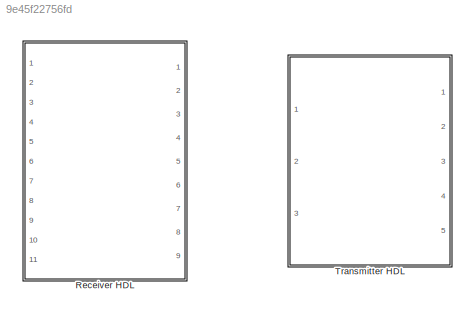
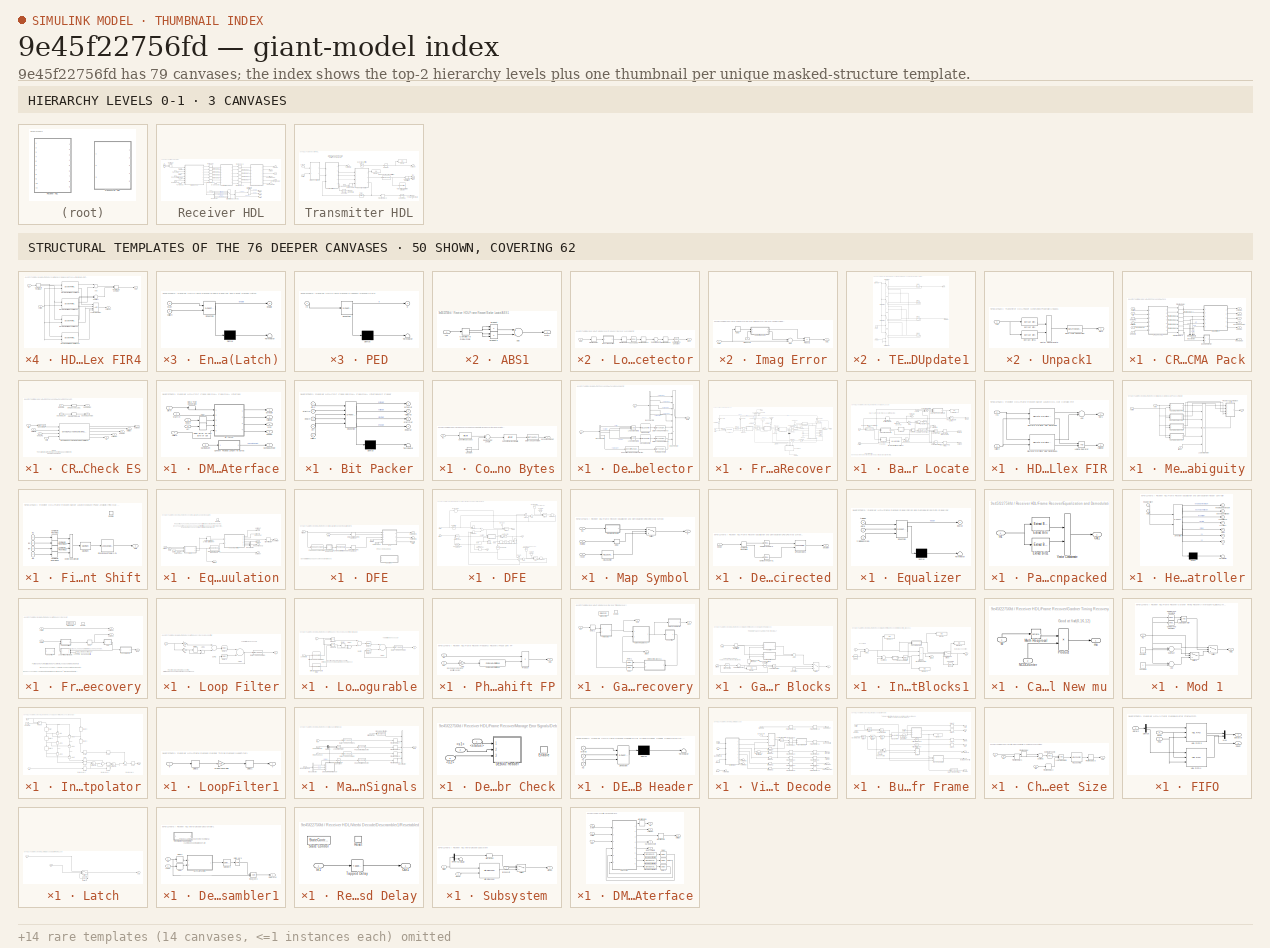
[diagram: thumbnail index - top-2 hierarchy levels (3 canvases) + 50 structural-template representatives of the remaining 76 canvases]
MODEL slx_9e45f22756fd
KIND library
CONFIG AbsTol = auto
CONFIG EnableMultiTasking = off
CONFIG FixedStep = auto
CONFIG MaxStep = auto
CONFIG MinStep = auto
CONFIG RelTol = 1e-3
CONFIG SampleTimeConstraint = Unconstrained
CONFIG Solver = VariableStepAuto
CONFIG SolverName = VariableStepAuto
CONFIG StartTime = 0.0
CONFIG StopTime = 10.0
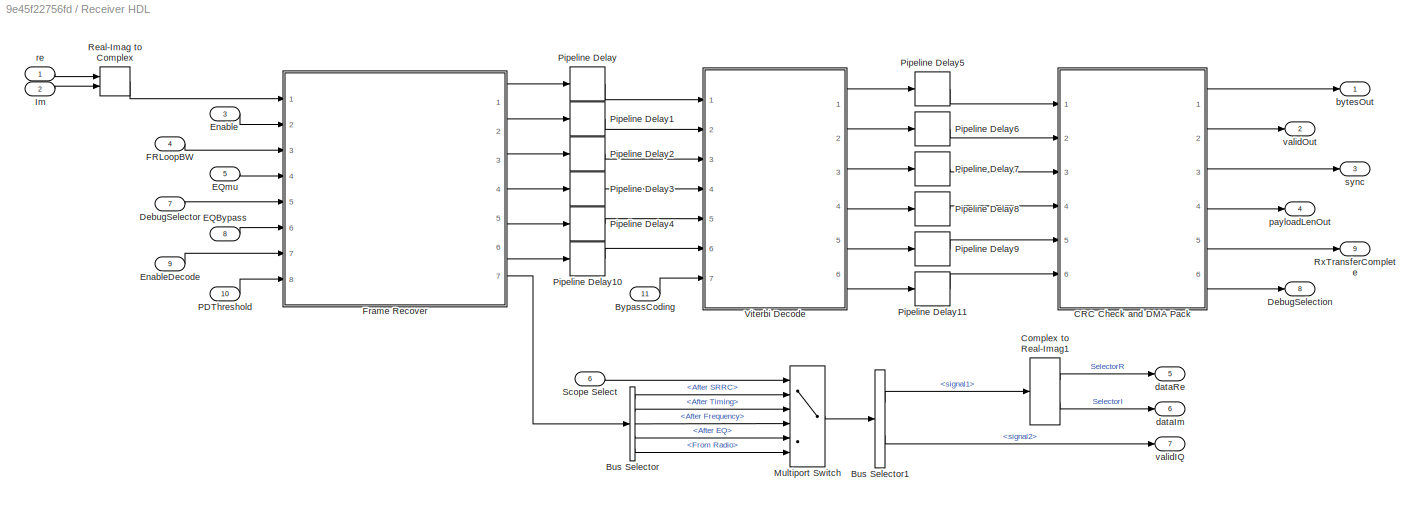
BLOCK [SubSystem] Receiver HDL
  Ports = [11, 9]
  RequestExecContextInheritance = off
  TreatAsAtomicUnit = on
  Variant = off
BLOCK [BusSelector] Receiver HDL/Bus Selector
  OutputAsBus = off
  OutputSignals = After SRRC,After Timing,After Frequency,After EQ,From Radio
  Ports = [1, 5]
BLOCK [BusSelector] Receiver HDL/Bus Selector1
  OutputAsBus = off
  OutputSignals = signal1,signal2
  Ports = [1, 2]
BLOCK [Inport] Receiver HDL/BypassCoding
  IconDisplay = Port number
  Port = 11
BLOCK [SubSystem] Receiver HDL/CRC Check and DMA Pack
  Ports = [6, 6]
  RequestExecContextInheritance = off
  Variant = off
BLOCK [BusCreator] Receiver HDL/CRC Check and DMA Pack/Bus Creator
  DisplayOption = bar
  InheritFromInputs = on
  Inputs = 4
  Ports = [4, 1]
BLOCK [SubSystem] Receiver HDL/CRC Check and DMA Pack/CRC Check ES
  Ports = [6, 7]
  RequestExecContextInheritance = off
  Variant = off
BLOCK [Inport] Receiver HDL/CRC Check and DMA Pack/CRC Check ES/Bits
  IconDisplay = Port number
  Port = 2
  PortDimensions = 1
BLOCK [Delay] Receiver HDL/CRC Check and DMA Pack/CRC Check ES/CRC Decode Lag
  DelayLength = crcDecodeLag
  InputPortMap = u0
  Ports = [1, 1]
BLOCK [Delay] Receiver HDL/CRC Check and DMA Pack/CRC Check ES/CRC Decode Lag1
  DelayLength = crcDecodeLag
  InputPortMap = u0
  Ports = [1, 1]
BLOCK [DataTypeConversion] Receiver HDL/CRC Check and DMA Pack/CRC Check ES/Convert To fi
  OutDataTypeStr = fixdt(0,1,0)
  RndMeth = Floor
BLOCK [Reference] Receiver HDL/CRC Check and DMA Pack/CRC Check ES/General CRC Syndrom Detector HDL Optimized  REF=commcrc2/General CRC
Syndrome
Detector
HDL Optimized
  Ports = [4, 5]
  SourceBlock = commcrc2/General CRC\nSyndrome\nDetector\nHDL Optimized
  SourceProductBaseCode = CM
  SourceProductName = Communications System Toolbox
  SourceType = General CRC Syndrome Detector HDL Optimized
BLOCK [Inport] Receiver HDL/CRC Check and DMA Pack/CRC Check ES/StartData
  IconDisplay = Port number
  Port = 4
  PortDimensions = 1
BLOCK [Inport] Receiver HDL/CRC Check and DMA Pack/CRC Check ES/Valid
  IconDisplay = Port number
BLOCK [Outport] Receiver HDL/CRC Check and DMA Pack/CRC Check ES/dataOut
  IconDisplay = Port number
  InitialOutput = 0
  PortDimensions = 1
BLOCK [Inport] Receiver HDL/CRC Check and DMA Pack/CRC Check ES/debugIn
  IconDisplay = Port number
  Port = 6
BLOCK [Outport] Receiver HDL/CRC Check and DMA Pack/CRC Check ES/debugOut
  IconDisplay = Port number
  InitialOutput = 0
  Port = 7
BLOCK [Inport] Receiver HDL/CRC Check and DMA Pack/CRC Check ES/endCRC
  IconDisplay = Port number
  Port = 3
  PortDimensions = 1
BLOCK [Outport] Receiver HDL/CRC Check and DMA Pack/CRC Check ES/endOut
  IconDisplay = Port number
  InitialOutput = 0
  Port = 3
  PortDimensions = 1
BLOCK [Outport] Receiver HDL/CRC Check and DMA Pack/CRC Check ES/err
  IconDisplay = Port number
  InitialOutput = 0
  Port = 5
  PortDimensions = 1
BLOCK [Inport] Receiver HDL/CRC Check and DMA Pack/CRC Check ES/payloadLen
  IconDisplay = Port number
  Port = 5
BLOCK [Outport] Receiver HDL/CRC Check and DMA Pack/CRC Check ES/payloadLenOut
  IconDisplay = Port number
  InitialOutput = 0
  Port = 6
BLOCK [Outport] Receiver HDL/CRC Check and DMA Pack/CRC Check ES/startOut
  IconDisplay = Port number
  InitialOutput = 0
  Port = 2
  PortDimensions = 1
BLOCK [Outport] Receiver HDL/CRC Check and DMA Pack/CRC Check ES/validOut
  IconDisplay = Port number
  InitialOutput = 0
  Port = 4
  PortDimensions = 1
BLOCK [SubSystem] Receiver HDL/CRC Check and DMA Pack/DMA Interface
  Ports = [6, 5]
  RequestExecContextInheritance = off
  Variant = off
BLOCK [SubSystem] Receiver HDL/CRC Check and DMA Pack/DMA Interface/Bit Packer
  ErrorFcn = Stateflow.Translate.translate
  PermitHierarchicalResolution = ExplicitOnly
  Ports = [5, 4]
  RequestExecContextInheritance = off
  SFBlockType = MATLAB Function
  TreatAsAtomicUnit = on
  Variant = off
BLOCK [Demux] Receiver HDL/CRC Check and DMA Pack/DMA Interface/Bit Packer/ Demux 
  Outputs = 1
  Ports = [1, 1]
BLOCK [S-Function] Receiver HDL/CRC Check and DMA Pack/DMA Interface/Bit Packer/ SFunction 
  EnableBusSupport = on
  FunctionName = sf_sfun
  PortCounts = [5 5]
  Ports = [5, 5]
  SFcnIsStateOwnerBlock = off
  SFunctionDeploymentMode = off
  Tag = Stateflow S-Function RxTxFixedPointLibrary_noscopes 11
BLOCK [Terminator] Receiver HDL/CRC Check and DMA Pack/DMA Interface/Bit Packer/ Terminator 
BLOCK [Inport] Receiver HDL/CRC Check and DMA Pack/DMA Interface/Bit Packer/bitIn
  IconDisplay = Port number
BLOCK [Outport] Receiver HDL/CRC Check and DMA Pack/DMA Interface/Bit Packer/byteOut
  IconDisplay = Port number
BLOCK [Inport] Receiver HDL/CRC Check and DMA Pack/DMA Interface/Bit Packer/endIn
  IconDisplay = Port number
  Port = 3
BLOCK [Outport] Receiver HDL/CRC Check and DMA Pack/DMA Interface/Bit Packer/endOut
  IconDisplay = Port number
  Port = 4
BLOCK [Inport] Receiver HDL/CRC Check and DMA Pack/DMA Interface/Bit Packer/err
  IconDisplay = Port number
  Port = 4
BLOCK [Inport] Receiver HDL/CRC Check and DMA Pack/DMA Interface/Bit Packer/startIn
  IconDisplay = Port number
  Port = 2
BLOCK [Outport] Receiver HDL/CRC Check and DMA Pack/DMA Interface/Bit Packer/startOut
  IconDisplay = Port number
  Port = 3
BLOCK [Inport] Receiver HDL/CRC Check and DMA Pack/DMA Interface/Bit Packer/validIn
  IconDisplay = Port number
  Port = 5
BLOCK [Outport] Receiver HDL/CRC Check and DMA Pack/DMA Interface/Bit Packer/validOut
  IconDisplay = Port number
  Port = 2
BLOCK [SubSystem] Receiver HDL/CRC Check and DMA Pack/DMA Interface/Convert Payload Length To Bytes
  Ports = [1, 1]
  RequestExecContextInheritance = off
  Variant = off
BLOCK [Constant] Receiver HDL/CRC Check and DMA Pack/DMA Interface/Convert Payload Length To Bytes/Constant
  SampleTime = -1
  Value = uint16(32-1)
BLOCK [ArithShift] Receiver HDL/CRC Check and DMA Pack/DMA Interface/Convert Payload Length To Bytes/Convert To Bytes From Bits
  BitShiftDirection = Right
  BitShiftNumber = 3
  InputPortMap = u0
  Ports = [1, 1]
BLOCK [ArithShift] Receiver HDL/CRC Check and DMA Pack/DMA Interface/Convert Payload Length To Bytes/Convert To Uncoded
  BitShiftDirection = Right
  BitShiftNumber = 1
  InputPortMap = u0
  Ports = [1, 1]
BLOCK [DataTypeConversion] Receiver HDL/CRC Check and DMA Pack/DMA Interface/Convert Payload Length To Bytes/Data Type Conversion
  OutDataTypeStr = uint16
  RndMeth = Floor
  SaturateOnIntegerOverflow = off
BLOCK [Inport] Receiver HDL/CRC Check and DMA Pack/DMA Interface/Convert Payload Length To Bytes/In1
  IconDisplay = Port number
BLOCK [Sum] Receiver HDL/CRC Check and DMA Pack/DMA Interface/Convert Payload Length To Bytes/Remove CRC Length
  AccumDataTypeStr = uint16
  InputSameDT = off
  Inputs = +-
  OutDataTypeStr = Inherit: Inherit via internal rule
  Ports = [2, 1]
  SaturateOnIntegerOverflow = off
BLOCK [Outport] Receiver HDL/CRC Check and DMA Pack/DMA Interface/Convert Payload Length To Bytes/packetLengthOut
  IconDisplay = Port number
BLOCK [DataTypeConversion] Receiver HDL/CRC Check and DMA Pack/DMA Interface/Data Type Conversion
  OutDataTypeStr = boolean
  RndMeth = Floor
  SaturateOnIntegerOverflow = off
BLOCK [Delay] Receiver HDL/CRC Check and DMA Pack/DMA Interface/Delay
  DelayLength = 1
  InputPortMap = u0
  Ports = [1, 1]
BLOCK [Delay] Receiver HDL/CRC Check and DMA Pack/DMA Interface/Delay Error To Last Byte of Out
  DelayLength = 1
  InputPortMap = u0
  Ports = [1, 1]
BLOCK [Inport] Receiver HDL/CRC Check and DMA Pack/DMA Interface/bitIn
  IconDisplay = Port number
BLOCK [Outport] Receiver HDL/CRC Check and DMA Pack/DMA Interface/byteOut
  IconDisplay = Port number
BLOCK [Inport] Receiver HDL/CRC Check and DMA Pack/DMA Interface/endIn
  IconDisplay = Port number
  Port = 3
BLOCK [Outport] Receiver HDL/CRC Check and DMA Pack/DMA Interface/endOut
  IconDisplay = Port number
  Port = 5
BLOCK [Inport] Receiver HDL/CRC Check and DMA Pack/DMA Interface/err
  IconDisplay = Port number
  Port = 5
BLOCK [Inport] Receiver HDL/CRC Check and DMA Pack/DMA Interface/payloadLen
  IconDisplay = Port number
  Port = 6
BLOCK [Outport] Receiver HDL/CRC Check and DMA Pack/DMA Interface/payloadLenOut
  IconDisplay = Port number
  Port = 4
BLOCK [Inport] Receiver HDL/CRC Check and DMA Pack/DMA Interface/startIn
  IconDisplay = Port number
  Port = 2
BLOCK [Outport] Receiver HDL/CRC Check and DMA Pack/DMA Interface/sync
  IconDisplay = Port number
  Port = 3
BLOCK [Inport] Receiver HDL/CRC Check and DMA Pack/DMA Interface/validIn
  IconDisplay = Port number
  Port = 4
BLOCK [Outport] Receiver HDL/CRC Check and DMA Pack/DMA Interface/validOut
  IconDisplay = Port number
  Port = 2
BLOCK [SubSystem] Receiver HDL/CRC Check and DMA Pack/Debug Selector
  Ports = [2, 1]
  RequestExecContextInheritance = off
  Variant = off
BLOCK [BusSelector] Receiver HDL/CRC Check and DMA Pack/Debug Selector/Bus Selector1
  OutputAsBus = off
  OutputSignals = signal1,signal2,signal3,signal4,signal5
  Ports = [1, 5]
BLOCK [BusSelector] Receiver HDL/CRC Check and DMA Pack/Debug Selector/Bus Selector2
  OutputAsBus = off
  OutputSignals = err,valid,end,signal4
  Ports = [1, 4]
BLOCK [Reference] Receiver HDL/CRC Check and DMA Pack/Debug Selector/CRC Counter  REF=hdlsllib/Sources/HDL Counter
  Ports = [1, 1]
  SourceBlock = hdlsllib/Sources/HDL Counter
  SourceProductBaseCode = HD
  SourceProductName = HDL Coder
  SourceType = HDL Counter
BLOCK [Reference] Receiver HDL/CRC Check and DMA Pack/Debug Selector/Convert Payload Length To Bytes  REF=RxTxFixedPointLibrary_noscopes/Receiver HDL/CRC Check and
DMA Pack/DMA Interface/Convert Payload Length
To Bytes
  Ports = [1, 1]
  SourceBlock = RxTxFixedPointLibrary_noscopes/Receiver HDL/CRC Check and\nDMA Pack/DMA Interface/Convert Payload Length\nTo Bytes
  SourceType = SubSystem
BLOCK [DataTypeConversion] Receiver HDL/CRC Check and DMA Pack/Debug Selector/Data Type Conversion2
  OutDataTypeStr = uint32
  RndMeth = Floor
  SaturateOnIntegerOverflow = off
BLOCK [DataTypeConversion] Receiver HDL/CRC Check and DMA Pack/Debug Selector/Data Type Conversion3
  OutDataTypeStr = uint32
  RndMeth = Floor
  SaturateOnIntegerOverflow = off
BLOCK [Inport] Receiver HDL/CRC Check and DMA Pack/Debug Selector/In1
  IconDisplay = Port number
BLOCK [Inport] Receiver HDL/CRC Check and DMA Pack/Debug Selector/In2
  IconDisplay = Port number
  Port = 2
BLOCK [MultiPortSwitch] Receiver HDL/CRC Check and DMA Pack/Debug Selector/Index Vector
  DataPortOrder = Zero-based contiguous
  InputSameDT = off
  Inputs = 7
  Ports = [8, 1]
  SaturateOnIntegerOverflow = off
  zeroidx = on
BLOCK [Logic] Receiver HDL/CRC Check and DMA Pack/Debug Selector/Logical Operator1
  AllPortsSameDT = off
  OutDataTypeStr = boolean
  Ports = [2, 1]
BLOCK [Logic] Receiver HDL/CRC Check and DMA Pack/Debug Selector/Logical Operator2
  AllPortsSameDT = off
  Inputs = 3
  OutDataTypeStr = boolean
  Ports = [3, 1]
BLOCK [Outport] Receiver HDL/CRC Check and DMA Pack/Debug Selector/Out1
  IconDisplay = Port number
BLOCK [Reference] Receiver HDL/CRC Check and DMA Pack/Debug Selector/Packet Counter  REF=hdlsllib/Sources/HDL Counter
  Ports = [1, 1]
  SourceBlock = hdlsllib/Sources/HDL Counter
  SourceProductBaseCode = HD
  SourceProductName = HDL Coder
  SourceType = HDL Counter
BLOCK [DataTypeConversion] Receiver HDL/CRC Check and DMA Pack/Debug Selector/PayloadLength
  OutDataTypeStr = uint32
  RndMeth = Floor
  SaturateOnIntegerOverflow = off
BLOCK [Delay] Receiver HDL/CRC Check and DMA Pack/Pipeline Delay
  DelayLength = 1
  InputPortMap = u0
  Ports = [1, 1]
BLOCK [Delay] Receiver HDL/CRC Check and DMA Pack/Pipeline Delay1
  DelayLength = 1
  InputPortMap = u0
  Ports = [1, 1]
BLOCK [Delay] Receiver HDL/CRC Check and DMA Pack/Pipeline Delay2
  DelayLength = 1
  InputPortMap = u0
  Ports = [1, 1]
BLOCK [Delay] Receiver HDL/CRC Check and DMA Pack/Pipeline Delay3
  DelayLength = 1
  InputPortMap = u0
  Ports = [1, 1]
BLOCK [Delay] Receiver HDL/CRC Check and DMA Pack/Pipeline Delay4
  DelayLength = 1
  InputPortMap = u0
  Ports = [1, 1]
BLOCK [Delay] Receiver HDL/CRC Check and DMA Pack/Pipeline Delay5
  DelayLength = 1
  InputPortMap = u0
  Ports = [1, 1]
BLOCK [Delay] Receiver HDL/CRC Check and DMA Pack/Pipeline Delay6
  DelayLength = 1
  InputPortMap = u0
  Ports = [1, 1]
BLOCK [Inport] Receiver HDL/CRC Check and DMA Pack/bits
  IconDisplay = Port number
  Port = 2
BLOCK [Outport] Receiver HDL/CRC Check and DMA Pack/byteOut
  IconDisplay = Port number
BLOCK [Inport] Receiver HDL/CRC Check and DMA Pack/debugIn
  IconDisplay = Port number
  Port = 6
BLOCK [Outport] Receiver HDL/CRC Check and DMA Pack/debugOut
  IconDisplay = Port number
  Port = 6
BLOCK [Inport] Receiver HDL/CRC Check and DMA Pack/endCRC
  IconDisplay = Port number
  Port = 3
BLOCK [Outport] Receiver HDL/CRC Check and DMA Pack/endOut
  IconDisplay = Port number
  Port = 5
BLOCK [Inport] Receiver HDL/CRC Check and DMA Pack/payloadLen
  IconDisplay = Port number
  Port = 5
BLOCK [Outport] Receiver HDL/CRC Check and DMA Pack/payloadLenOut
  IconDisplay = Port number
  Port = 4
BLOCK [Inport] Receiver HDL/CRC Check and DMA Pack/startData
  IconDisplay = Port number
  Port = 4
BLOCK [Outport] Receiver HDL/CRC Check and DMA Pack/sync
  IconDisplay = Port number
  Port = 3
BLOCK [Inport] Receiver HDL/CRC Check and DMA Pack/validIn
  IconDisplay = Port number
BLOCK [Outport] Receiver HDL/CRC Check and DMA Pack/validOut
  IconDisplay = Port number
  Port = 2
BLOCK [ComplexToRealImag] Receiver HDL/Complex to Real-Imag1
  Ports = [1, 2]
BLOCK [Outport] Receiver HDL/DebugSelection
  IconDisplay = Port number
  Port = 8
BLOCK [Inport] Receiver HDL/DebugSelector
  IconDisplay = Port number
  Port = 7
BLOCK [Inport] Receiver HDL/EQBypass
  IconDisplay = Port number
  Port = 8
BLOCK [Inport] Receiver HDL/EQmu
  IconDisplay = Port number
  Port = 5
BLOCK [Inport] Receiver HDL/Enable
  IconDisplay = Port number
  Port = 3
BLOCK [Inport] Receiver HDL/EnableDecode
  IconDisplay = Port number
  Port = 9
BLOCK [Inport] Receiver HDL/FRLoopBW
  IconDisplay = Port number
  Port = 4
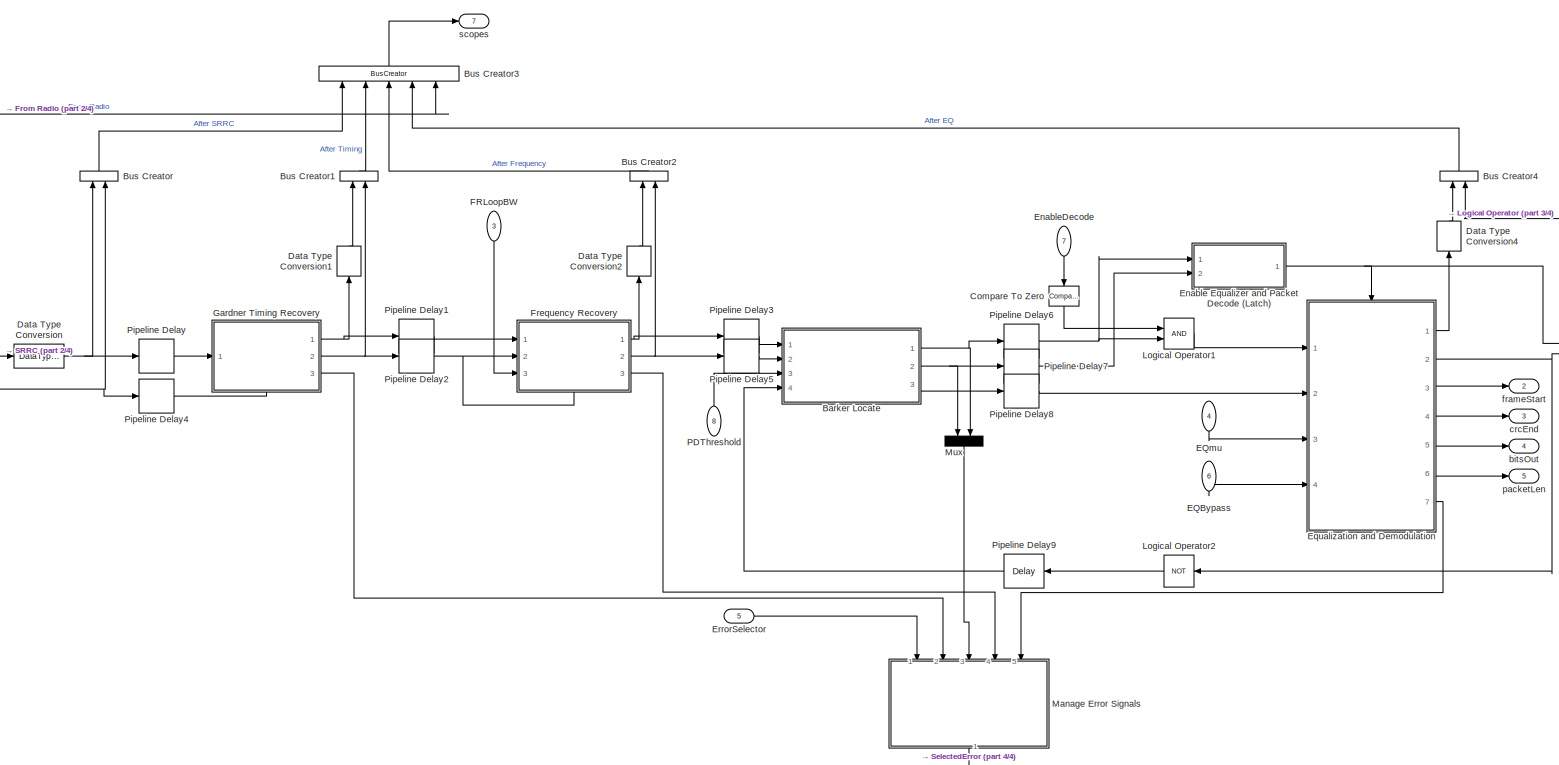
[diagram: Receiver HDL/Frame Recover - part 1/4, most of the canvas]
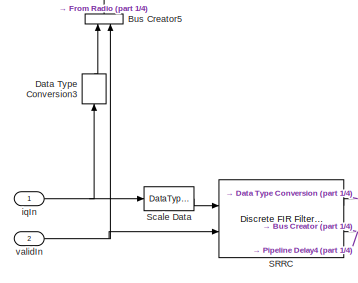
[diagram: Receiver HDL/Frame Recover - part 2/4, middle left region]
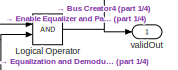
[diagram: Receiver HDL/Frame Recover - part 3/4, middle right region]
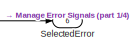
[diagram: Receiver HDL/Frame Recover - part 4/4, bottom right region]
BLOCK [SubSystem] Receiver HDL/Frame Recover
  Ports = [8, 7]
  RequestExecContextInheritance = off
  Variant = off
BLOCK [SubSystem] Receiver HDL/Frame Recover/Barker Locate
  Ports = [4, 3]
  RequestExecContextInheritance = off
  Variant = off
BLOCK [SubSystem] Receiver HDL/Frame Recover/Barker Locate/ABS1
  Ports = [1, 1]
  RequestExecContextInheritance = off
  Variant = off
BLOCK [Sum] Receiver HDL/Frame Recover/Barker Locate/ABS1/Add
  InputSameDT = off
  OutDataTypeStr = Inherit: Inherit via internal rule
  Ports = [2, 1]
  SaturateOnIntegerOverflow = off
BLOCK [ComplexToRealImag] Receiver HDL/Frame Recover/Barker Locate/ABS1/Complex to Real-Imag
  Ports = [1, 2]
BLOCK [Inport] Receiver HDL/Frame Recover/Barker Locate/ABS1/In1
  IconDisplay = Port number
BLOCK [Outport] Receiver HDL/Frame Recover/Barker Locate/ABS1/Out1
  IconDisplay = Port number
BLOCK [Product] Receiver HDL/Frame Recover/Barker Locate/ABS1/Product
  InputSameDT = off
  OutDataTypeStr = int16
  Ports = [2, 1]
  RndMeth = Floor
  SaturateOnIntegerOverflow = off
BLOCK [Product] Receiver HDL/Frame Recover/Barker Locate/ABS1/Product1
  InputSameDT = off
  OutDataTypeStr = int16
  Ports = [2, 1]
  RndMeth = Floor
  SaturateOnIntegerOverflow = off
BLOCK [SubSystem] Receiver HDL/Frame Recover/Barker Locate/ABS2
  Ports = [1, 1]
  RequestExecContextInheritance = off
  Variant = off
BLOCK [Sum] Receiver HDL/Frame Recover/Barker Locate/ABS2/Add
  InputSameDT = off
  OutDataTypeStr = Inherit: Inherit via internal rule
  Ports = [2, 1]
BLOCK [ComplexToRealImag] Receiver HDL/Frame Recover/Barker Locate/ABS2/Complex to Real-Imag
  Ports = [1, 2]
BLOCK [Inport] Receiver HDL/Frame Recover/Barker Locate/ABS2/In1
  IconDisplay = Port number
BLOCK [Outport] Receiver HDL/Frame Recover/Barker Locate/ABS2/Out1
  IconDisplay = Port number
BLOCK [Product] Receiver HDL/Frame Recover/Barker Locate/ABS2/Product
  InputSameDT = off
  OutDataTypeStr = int16
  Ports = [2, 1]
  RndMeth = Floor
  SaturateOnIntegerOverflow = off
BLOCK [Product] Receiver HDL/Frame Recover/Barker Locate/ABS2/Product1
  InputSameDT = off
  OutDataTypeStr = int16
  Ports = [2, 1]
  RndMeth = Floor
  SaturateOnIntegerOverflow = off
BLOCK [Reference] Receiver HDL/Frame Recover/Barker Locate/Compare To Constant  REF=simulink/Logic and Bit
Operations/Compare
To Constant
  Ports = [1, 1]
  SourceBlock = simulink/Logic and Bit\nOperations/Compare\nTo Constant
  SourceProductBaseCode = SL
  SourceProductName = Simulink
  SourceType = Compare To Constant
BLOCK [Reference] Receiver HDL/Frame Recover/Barker Locate/Compare To Zero  REF=simulink/Logic and Bit
Operations/Compare
To Zero
  Ports = [1, 1]
  SourceBlock = simulink/Logic and Bit\nOperations/Compare\nTo Zero
  SourceProductBaseCode = SL
  SourceProductName = Simulink
  SourceType = Compare To Zero
BLOCK [Delay] Receiver HDL/Frame Recover/Barker Locate/Delay to start training sample 
  DelayLength = 1
  InputPortMap = u0
  Ports = [1, 1]
BLOCK [Outport] Receiver HDL/Frame Recover/Barker Locate/Detector
  IconDisplay = Port number
BLOCK [Reference] Receiver HDL/Frame Recover/Barker Locate/Discrete FIR Filter HDL Optimized  REF=dsphdlfiltering/Discrete FIR Filter
HDL Optimized
  Ports = [2, 2]
  SourceBlock = dsphdlfiltering/Discrete FIR Filter\nHDL Optimized
  SourceProductBaseCode = DS
  SourceProductName = DSP System Toolbox
  SourceType = Discrete FIR Filter HDL Optimized
BLOCK [Display] Receiver HDL/Frame Recover/Barker Locate/Display
  Decimation = 1
  Ports = [1]
BLOCK [DataTypeConversion] Receiver HDL/Frame Recover/Barker Locate/Force Scaling To something easy
  OutDataTypeStr = int16
  RndMeth = Floor
BLOCK [Gain] Receiver HDL/Frame Recover/Barker Locate/Gain
  Gain = 14/10
  OutDataTypeStr = int16
  ParamDataTypeStr = Inherit: Inherit via internal rule
  SaturateOnIntegerOverflow = off
BLOCK [Delay] Receiver HDL/Frame Recover/Barker Locate/HDL FIR Has additional Delay
  DelayLength = length(xPreambleSeq(end:-1:1))+4
  InputPortMap = u0
  Ports = [1, 1]
BLOCK [SubSystem] Receiver HDL/Frame Recover/Barker Locate/HDL Opt Complex FIR
  Ports = [2, 2]
  RequestExecContextInheritance = off
  Variant = off
BLOCK [Sum] Receiver HDL/Frame Recover/Barker Locate/HDL Opt Complex FIR/Add
  AccumDataTypeStr = fixdt(1,16,0)
  InputSameDT = off
  OutDataTypeStr = Inherit: Inherit via internal rule
  Ports = [2, 1]
  SaturateOnIntegerOverflow = off
BLOCK [Reference] Receiver HDL/Frame Recover/Barker Locate/HDL Opt Complex FIR/Discrete FIR Filter HDL Optimized  REF=dsphdlfiltering/Discrete FIR Filter
HDL Optimized
  Ports = [2, 2]
  SourceBlock = dsphdlfiltering/Discrete FIR Filter\nHDL Optimized
  SourceProductBaseCode = DS
  SourceProductName = DSP System Toolbox
  SourceType = Discrete FIR Filter HDL Optimized
BLOCK [Reference] Receiver HDL/Frame Recover/Barker Locate/HDL Opt Complex FIR/Discrete FIR Filter HDL Optimized1  REF=dsphdlfiltering/Discrete FIR Filter
HDL Optimized
  Ports = [2, 2]
  SourceBlock = dsphdlfiltering/Discrete FIR Filter\nHDL Optimized
  SourceProductBaseCode = DS
  SourceProductName = DSP System Toolbox
  SourceType = Discrete FIR Filter HDL Optimized
BLOCK [Inport] Receiver HDL/Frame Recover/Barker Locate/HDL Opt Complex FIR/In1
  IconDisplay = Port number
BLOCK [Logic] Receiver HDL/Frame Recover/Barker Locate/HDL Opt Complex FIR/Logical Operator
  AllPortsSameDT = off
  OutDataTypeStr = boolean
  Ports = [2, 1]
BLOCK [Outport] Receiver HDL/Frame Recover/Barker Locate/HDL Opt Complex FIR/Out1
  IconDisplay = Port number
BLOCK [Inport] Receiver HDL/Frame Recover/Barker Locate/HDL Opt Complex FIR/validIn
  IconDisplay = Port number
  Port = 2
BLOCK [Outport] Receiver HDL/Frame Recover/Barker Locate/HDL Opt Complex FIR/validOut
  IconDisplay = Port number
  Port = 2
BLOCK [Inport] Receiver HDL/Frame Recover/Barker Locate/In1
  IconDisplay = Port number
  PortDimensions = 1
BLOCK [Logic] Receiver HDL/Frame Recover/Barker Locate/Logical Operator
  AllPortsSameDT = off
  Inputs = 3
  OutDataTypeStr = boolean
  Ports = [3, 1]
BLOCK [Logic] Receiver HDL/Frame Recover/Barker Locate/Logical Operator1
  AllPortsSameDT = off
  OutDataTypeStr = boolean
  Ports = [2, 1]
BLOCK [Logic] Receiver HDL/Frame Recover/Barker Locate/Logical Operator2
  AllPortsSameDT = off
  OutDataTypeStr = boolean
  Ports = [2, 1]
BLOCK [Delay] Receiver HDL/Frame Recover/Barker Locate/Match Above Flag Timing
  DelayLength = 1
  InputPortMap = u0
  Ports = [1, 1]
BLOCK [SubSystem] Receiver HDL/Frame Recover/Barker Locate/Measure Phase Ambiguity
  Ports = [3, 1]
  RequestExecContextInheritance = off
  Variant = off
BLOCK [SubSystem] Receiver HDL/Frame Recover/Barker Locate/Measure Phase Ambiguity/Find Max and Set Output Shift
  Ports = [4, 1, 1]
  RequestExecContextInheritance = off
  Variant = off
BLOCK [ComplexToRealImag] Receiver HDL/Frame Recover/Barker Locate/Measure Phase Ambiguity/Find Max and Set Output Shift/Complex to Real-Imag
  Output = Imag
  Ports = [1, 1]
BLOCK [ComplexToRealImag] Receiver HDL/Frame Recover/Barker Locate/Measure Phase Ambiguity/Find Max and Set Output Shift/Complex to Real-Imag1
  Output = Imag
  Ports = [1, 1]
BLOCK [ComplexToRealImag] Receiver HDL/Frame Recover/Barker Locate/Measure Phase Ambiguity/Find Max and Set Output Shift/Complex to Real-Imag2
  Output = Imag
  Ports = [1, 1]
BLOCK [ComplexToRealImag] Receiver HDL/Frame Recover/Barker Locate/Measure Phase Ambiguity/Find Max and Set Output Shift/Complex to Real-Imag3
  Output = Imag
  Ports = [1, 1]
BLOCK [LookupNDDirect] Receiver HDL/Frame Recover/Barker Locate/Measure Phase Ambiguity/Find Max and Set Output Shift/Direct Lookup Table (n-D)
  DiagnosticForOutOfRangeInput = Error
  NumberOfTableDimensions = 1
  Ports = [1, 1]
  Table = exp(-(0:pi/2:(pi*3/2)) .* 1i).'
  TableDataTypeStr = fixdt(1,16,13)
BLOCK [EnablePort] Receiver HDL/Frame Recover/Barker Locate/Measure Phase Ambiguity/Find Max and Set Output Shift/Enable
  Ports = []
BLOCK [Inport] Receiver HDL/Frame Recover/Barker Locate/Measure Phase Ambiguity/Find Max and Set Output Shift/In1
  IconDisplay = Port number
BLOCK [Inport] Receiver HDL/Frame Recover/Barker Locate/Measure Phase Ambiguity/Find Max and Set Output Shift/In2
  IconDisplay = Port number
  Port = 2
BLOCK [Inport] Receiver HDL/Frame Recover/Barker Locate/Measure Phase Ambiguity/Find Max and Set Output Shift/In4
  IconDisplay = Port number
  Port = 3
BLOCK [Inport] Receiver HDL/Frame Recover/Barker Locate/Measure Phase Ambiguity/Find Max and Set Output Shift/In5
  IconDisplay = Port number
  Port = 4
BLOCK [Reference] Receiver HDL/Frame Recover/Barker Locate/Measure Phase Ambiguity/Find Max and Set Output Shift/Maximum  REF=dspstat3/Maximum
  Ports = [1, 1]
  SourceBlock = dspstat3/Maximum
  SourceProductBaseCode = DS
  SourceProductName = DSP System Toolbox
  SourceType = Maximum
  UserDataPersistent = on
BLOCK [Outport] Receiver HDL/Frame Recover/Barker Locate/Measure Phase Ambiguity/Find Max and Set Output Shift/Out1
  IconDisplay = Port number
  InitialOutput = 0
BLOCK [Concatenate] Receiver HDL/Frame Recover/Barker Locate/Measure Phase Ambiguity/Find Max and Set Output Shift/Vector Concatenate
  NumInputs = 4
  Ports = [4, 1]
BLOCK [SubSystem] Receiver HDL/Frame Recover/Barker Locate/Measure Phase Ambiguity/HDL Opt Complex FIR4
  Ports = [2, 2]
  RequestExecContextInheritance = off
  Variant = off
BLOCK [Sum] Receiver HDL/Frame Recover/Barker Locate/Measure Phase Ambiguity/HDL Opt Complex FIR4/Add
  AccumDataTypeStr = fixdt(1,16,0)
  InputSameDT = off
  Inputs = +-
  OutDataTypeStr = Inherit: Inherit via internal rule
  Ports = [2, 1]
  SaturateOnIntegerOverflow = off
BLOCK [ComplexToRealImag] Receiver HDL/Frame Recover/Barker Locate/Measure Phase Ambiguity/HDL Opt Complex FIR4/Complex to Real-Imag
  Ports = [1, 2]
BLOCK [Reference] Receiver HDL/Frame Recover/Barker Locate/Measure Phase Ambiguity/HDL Opt Complex FIR4/Discrete FIR Filter HDL Optimized  REF=dsphdlfiltering/Discrete FIR Filter
HDL Optimized
  Ports = [2, 2]
  SourceBlock = dsphdlfiltering/Discrete FIR Filter\nHDL Optimized
  SourceProductBaseCode = DS
  SourceProductName = DSP System Toolbox
  SourceType = Discrete FIR Filter HDL Optimized
BLOCK [Reference] Receiver HDL/Frame Recover/Barker Locate/Measure Phase Ambiguity/HDL Opt Complex FIR4/Discrete FIR Filter HDL Optimized1  REF=dsphdlfiltering/Discrete FIR Filter
HDL Optimized
  Ports = [2, 2]
  SourceBlock = dsphdlfiltering/Discrete FIR Filter\nHDL Optimized
  SourceProductBaseCode = DS
  SourceProductName = DSP System Toolbox
  SourceType = Discrete FIR Filter HDL Optimized
BLOCK [Reference] Receiver HDL/Frame Recover/Barker Locate/Measure Phase Ambiguity/HDL Opt Complex FIR4/Discrete FIR Filter HDL Optimized2  REF=dsphdlfiltering/Discrete FIR Filter
HDL Optimized
  Ports = [2, 2]
  SourceBlock = dsphdlfiltering/Discrete FIR Filter\nHDL Optimized
  SourceProductBaseCode = DS
  SourceProductName = DSP System Toolbox
  SourceType = Discrete FIR Filter HDL Optimized
BLOCK [Reference] Receiver HDL/Frame Recover/Barker Locate/Measure Phase Ambiguity/HDL Opt Complex FIR4/Discrete FIR Filter HDL Optimized3  REF=dsphdlfiltering/Discrete FIR Filter
HDL Optimized
  Ports = [2, 2]
  SourceBlock = dsphdlfiltering/Discrete FIR Filter\nHDL Optimized
  SourceProductBaseCode = DS
  SourceProductName = DSP System Toolbox
  SourceType = Discrete FIR Filter HDL Optimized
BLOCK [Inport] Receiver HDL/Frame Recover/Barker Locate/Measure Phase Ambiguity/HDL Opt Complex FIR4/In1
  IconDisplay = Port number
BLOCK [Logic] Receiver HDL/Frame Recover/Barker Locate/Measure Phase Ambiguity/HDL Opt Complex FIR4/Logical Operator
  AllPortsSameDT = off
  Inputs = 4
  OutDataTypeStr = boolean
  Ports = [4, 1]
BLOCK [Outport] Receiver HDL/Frame Recover/Barker Locate/Measure Phase Ambiguity/HDL Opt Complex FIR4/Out1
  IconDisplay = Port number
BLOCK [RealImagToComplex] Receiver HDL/Frame Recover/Barker Locate/Measure Phase Ambiguity/HDL Opt Complex FIR4/Real-Imag to Complex
  Ports = [2, 1]
BLOCK [Sum] Receiver HDL/Frame Recover/Barker Locate/Measure Phase Ambiguity/HDL Opt Complex FIR4/Subtract
  InputSameDT = off
  OutDataTypeStr = int16
  Ports = [2, 1]
  SaturateOnIntegerOverflow = off
BLOCK [Inport] Receiver HDL/Frame Recover/Barker Locate/Measure Phase Ambiguity/HDL Opt Complex FIR4/validIn
  IconDisplay = Port number
  Port = 2
BLOCK [Outport] Receiver HDL/Frame Recover/Barker Locate/Measure Phase Ambiguity/HDL Opt Complex FIR4/validOut
  IconDisplay = Port number
  Port = 2
BLOCK [SubSystem] Receiver HDL/Frame Recover/Barker Locate/Measure Phase Ambiguity/HDL Opt Complex FIR5
  Ports = [2, 2]
  RequestExecContextInheritance = off
  Variant = off
BLOCK [Sum] Receiver HDL/Frame Recover/Barker Locate/Measure Phase Ambiguity/HDL Opt Complex FIR5/Add
  AccumDataTypeStr = fixdt(1,16,0)
  InputSameDT = off
  Inputs = +-
  OutDataTypeStr = Inherit: Inherit via internal rule
  Ports = [2, 1]
  SaturateOnIntegerOverflow = off
BLOCK [ComplexToRealImag] Receiver HDL/Frame Recover/Barker Locate/Measure Phase Ambiguity/HDL Opt Complex FIR5/Complex to Real-Imag
  Ports = [1, 2]
BLOCK [Reference] Receiver HDL/Frame Recover/Barker Locate/Measure Phase Ambiguity/HDL Opt Complex FIR5/Discrete FIR Filter HDL Optimized  REF=dsphdlfiltering/Discrete FIR Filter
HDL Optimized
  Ports = [2, 2]
  SourceBlock = dsphdlfiltering/Discrete FIR Filter\nHDL Optimized
  SourceProductBaseCode = DS
  SourceProductName = DSP System Toolbox
  SourceType = Discrete FIR Filter HDL Optimized
BLOCK [Reference] Receiver HDL/Frame Recover/Barker Locate/Measure Phase Ambiguity/HDL Opt Complex FIR5/Discrete FIR Filter HDL Optimized1  REF=dsphdlfiltering/Discrete FIR Filter
HDL Optimized
  Ports = [2, 2]
  SourceBlock = dsphdlfiltering/Discrete FIR Filter\nHDL Optimized
  SourceProductBaseCode = DS
  SourceProductName = DSP System Toolbox
  SourceType = Discrete FIR Filter HDL Optimized
BLOCK [Reference] Receiver HDL/Frame Recover/Barker Locate/Measure Phase Ambiguity/HDL Opt Complex FIR5/Discrete FIR Filter HDL Optimized2  REF=dsphdlfiltering/Discrete FIR Filter
HDL Optimized
  Ports = [2, 2]
  SourceBlock = dsphdlfiltering/Discrete FIR Filter\nHDL Optimized
  SourceProductBaseCode = DS
  SourceProductName = DSP System Toolbox
  SourceType = Discrete FIR Filter HDL Optimized
BLOCK [Reference] Receiver HDL/Frame Recover/Barker Locate/Measure Phase Ambiguity/HDL Opt Complex FIR5/Discrete FIR Filter HDL Optimized3  REF=dsphdlfiltering/Discrete FIR Filter
HDL Optimized
  Ports = [2, 2]
  SourceBlock = dsphdlfiltering/Discrete FIR Filter\nHDL Optimized
  SourceProductBaseCode = DS
  SourceProductName = DSP System Toolbox
  SourceType = Discrete FIR Filter HDL Optimized
BLOCK [Inport] Receiver HDL/Frame Recover/Barker Locate/Measure Phase Ambiguity/HDL Opt Complex FIR5/In1
  IconDisplay = Port number
BLOCK [Logic] Receiver HDL/Frame Recover/Barker Locate/Measure Phase Ambiguity/HDL Opt Complex FIR5/Logical Operator
  AllPortsSameDT = off
  Inputs = 4
  OutDataTypeStr = boolean
  Ports = [4, 1]
BLOCK [Outport] Receiver HDL/Frame Recover/Barker Locate/Measure Phase Ambiguity/HDL Opt Complex FIR5/Out1
  IconDisplay = Port number
BLOCK [RealImagToComplex] Receiver HDL/Frame Recover/Barker Locate/Measure Phase Ambiguity/HDL Opt Complex FIR5/Real-Imag to Complex
  Ports = [2, 1]
BLOCK [Sum] Receiver HDL/Frame Recover/Barker Locate/Measure Phase Ambiguity/HDL Opt Complex FIR5/Subtract
  InputSameDT = off
  OutDataTypeStr = int16
  Ports = [2, 1]
  SaturateOnIntegerOverflow = off
BLOCK [Inport] Receiver HDL/Frame Recover/Barker Locate/Measure Phase Ambiguity/HDL Opt Complex FIR5/validIn
  IconDisplay = Port number
  Port = 2
BLOCK [Outport] Receiver HDL/Frame Recover/Barker Locate/Measure Phase Ambiguity/HDL Opt Complex FIR5/validOut
  IconDisplay = Port number
  Port = 2
BLOCK [SubSystem] Receiver HDL/Frame Recover/Barker Locate/Measure Phase Ambiguity/HDL Opt Complex FIR6
  Ports = [2, 2]
  RequestExecContextInheritance = off
  Variant = off
BLOCK [Sum] Receiver HDL/Frame Recover/Barker Locate/Measure Phase Ambiguity/HDL Opt Complex FIR6/Add
  AccumDataTypeStr = fixdt(1,16,0)
  InputSameDT = off
  Inputs = +-
  OutDataTypeStr = Inherit: Inherit via internal rule
  Ports = [2, 1]
  SaturateOnIntegerOverflow = off
BLOCK [ComplexToRealImag] Receiver HDL/Frame Recover/Barker Locate/Measure Phase Ambiguity/HDL Opt Complex FIR6/Complex to Real-Imag
  Ports = [1, 2]
BLOCK [Reference] Receiver HDL/Frame Recover/Barker Locate/Measure Phase Ambiguity/HDL Opt Complex FIR6/Discrete FIR Filter HDL Optimized  REF=dsphdlfiltering/Discrete FIR Filter
HDL Optimized
  Ports = [2, 2]
  SourceBlock = dsphdlfiltering/Discrete FIR Filter\nHDL Optimized
  SourceProductBaseCode = DS
  SourceProductName = DSP System Toolbox
  SourceType = Discrete FIR Filter HDL Optimized
BLOCK [Reference] Receiver HDL/Frame Recover/Barker Locate/Measure Phase Ambiguity/HDL Opt Complex FIR6/Discrete FIR Filter HDL Optimized1  REF=dsphdlfiltering/Discrete FIR Filter
HDL Optimized
  Ports = [2, 2]
  SourceBlock = dsphdlfiltering/Discrete FIR Filter\nHDL Optimized
  SourceProductBaseCode = DS
  SourceProductName = DSP System Toolbox
  SourceType = Discrete FIR Filter HDL Optimized
BLOCK [Reference] Receiver HDL/Frame Recover/Barker Locate/Measure Phase Ambiguity/HDL Opt Complex FIR6/Discrete FIR Filter HDL Optimized2  REF=dsphdlfiltering/Discrete FIR Filter
HDL Optimized
  Ports = [2, 2]
  SourceBlock = dsphdlfiltering/Discrete FIR Filter\nHDL Optimized
  SourceProductBaseCode = DS
  SourceProductName = DSP System Toolbox
  SourceType = Discrete FIR Filter HDL Optimized
BLOCK [Reference] Receiver HDL/Frame Recover/Barker Locate/Measure Phase Ambiguity/HDL Opt Complex FIR6/Discrete FIR Filter HDL Optimized3  REF=dsphdlfiltering/Discrete FIR Filter
HDL Optimized
  Ports = [2, 2]
  SourceBlock = dsphdlfiltering/Discrete FIR Filter\nHDL Optimized
  SourceProductBaseCode = DS
  SourceProductName = DSP System Toolbox
  SourceType = Discrete FIR Filter HDL Optimized
BLOCK [Inport] Receiver HDL/Frame Recover/Barker Locate/Measure Phase Ambiguity/HDL Opt Complex FIR6/In1
  IconDisplay = Port number
BLOCK [Logic] Receiver HDL/Frame Recover/Barker Locate/Measure Phase Ambiguity/HDL Opt Complex FIR6/Logical Operator
  AllPortsSameDT = off
  Inputs = 4
  OutDataTypeStr = boolean
  Ports = [4, 1]
BLOCK [Outport] Receiver HDL/Frame Recover/Barker Locate/Measure Phase Ambiguity/HDL Opt Complex FIR6/Out1
  IconDisplay = Port number
BLOCK [RealImagToComplex] Receiver HDL/Frame Recover/Barker Locate/Measure Phase Ambiguity/HDL Opt Complex FIR6/Real-Imag to Complex
  Ports = [2, 1]
BLOCK [Sum] Receiver HDL/Frame Recover/Barker Locate/Measure Phase Ambiguity/HDL Opt Complex FIR6/Subtract
  InputSameDT = off
  OutDataTypeStr = int16
  Ports = [2, 1]
  SaturateOnIntegerOverflow = off
BLOCK [Inport] Receiver HDL/Frame Recover/Barker Locate/Measure Phase Ambiguity/HDL Opt Complex FIR6/validIn
  IconDisplay = Port number
  Port = 2
BLOCK [Outport] Receiver HDL/Frame Recover/Barker Locate/Measure Phase Ambiguity/HDL Opt Complex FIR6/validOut
  IconDisplay = Port number
  Port = 2
BLOCK [SubSystem] Receiver HDL/Frame Recover/Barker Locate/Measure Phase Ambiguity/HDL Opt Complex FIR7
  Ports = [2, 2]
  RequestExecContextInheritance = off
  Variant = off
BLOCK [Sum] Receiver HDL/Frame Recover/Barker Locate/Measure Phase Ambiguity/HDL Opt Complex FIR7/Add
  AccumDataTypeStr = fixdt(1,16,0)
  InputSameDT = off
  Inputs = +-
  OutDataTypeStr = Inherit: Inherit via internal rule
  Ports = [2, 1]
  SaturateOnIntegerOverflow = off
BLOCK [ComplexToRealImag] Receiver HDL/Frame Recover/Barker Locate/Measure Phase Ambiguity/HDL Opt Complex FIR7/Complex to Real-Imag
  Ports = [1, 2]
BLOCK [Reference] Receiver HDL/Frame Recover/Barker Locate/Measure Phase Ambiguity/HDL Opt Complex FIR7/Discrete FIR Filter HDL Optimized  REF=dsphdlfiltering/Discrete FIR Filter
HDL Optimized
  Ports = [2, 2]
  SourceBlock = dsphdlfiltering/Discrete FIR Filter\nHDL Optimized
  SourceProductBaseCode = DS
  SourceProductName = DSP System Toolbox
  SourceType = Discrete FIR Filter HDL Optimized
BLOCK [Reference] Receiver HDL/Frame Recover/Barker Locate/Measure Phase Ambiguity/HDL Opt Complex FIR7/Discrete FIR Filter HDL Optimized1  REF=dsphdlfiltering/Discrete FIR Filter
HDL Optimized
  Ports = [2, 2]
  SourceBlock = dsphdlfiltering/Discrete FIR Filter\nHDL Optimized
  SourceProductBaseCode = DS
  SourceProductName = DSP System Toolbox
  SourceType = Discrete FIR Filter HDL Optimized
BLOCK [Reference] Receiver HDL/Frame Recover/Barker Locate/Measure Phase Ambiguity/HDL Opt Complex FIR7/Discrete FIR Filter HDL Optimized2  REF=dsphdlfiltering/Discrete FIR Filter
HDL Optimized
  Ports = [2, 2]
  SourceBlock = dsphdlfiltering/Discrete FIR Filter\nHDL Optimized
  SourceProductBaseCode = DS
  SourceProductName = DSP System Toolbox
  SourceType = Discrete FIR Filter HDL Optimized
BLOCK [Reference] Receiver HDL/Frame Recover/Barker Locate/Measure Phase Ambiguity/HDL Opt Complex FIR7/Discrete FIR Filter HDL Optimized3  REF=dsphdlfiltering/Discrete FIR Filter
HDL Optimized
  Ports = [2, 2]
  SourceBlock = dsphdlfiltering/Discrete FIR Filter\nHDL Optimized
  SourceProductBaseCode = DS
  SourceProductName = DSP System Toolbox
  SourceType = Discrete FIR Filter HDL Optimized
BLOCK [Inport] Receiver HDL/Frame Recover/Barker Locate/Measure Phase Ambiguity/HDL Opt Complex FIR7/In1
  IconDisplay = Port number
BLOCK [Logic] Receiver HDL/Frame Recover/Barker Locate/Measure Phase Ambiguity/HDL Opt Complex FIR7/Logical Operator
  AllPortsSameDT = off
  Inputs = 4
  OutDataTypeStr = boolean
  Ports = [4, 1]
BLOCK [Outport] Receiver HDL/Frame Recover/Barker Locate/Measure Phase Ambiguity/HDL Opt Complex FIR7/Out1
  IconDisplay = Port number
BLOCK [RealImagToComplex] Receiver HDL/Frame Recover/Barker Locate/Measure Phase Ambiguity/HDL Opt Complex FIR7/Real-Imag to Complex
  Ports = [2, 1]
BLOCK [Sum] Receiver HDL/Frame Recover/Barker Locate/Measure Phase Ambiguity/HDL Opt Complex FIR7/Subtract
  InputSameDT = off
  OutDataTypeStr = int16
  Ports = [2, 1]
  SaturateOnIntegerOverflow = off
BLOCK [Inport] Receiver HDL/Frame Recover/Barker Locate/Measure Phase Ambiguity/HDL Opt Complex FIR7/validIn
  IconDisplay = Port number
  Port = 2
BLOCK [Outport] Receiver HDL/Frame Recover/Barker Locate/Measure Phase Ambiguity/HDL Opt Complex FIR7/validOut
  IconDisplay = Port number
  Port = 2
BLOCK [Logic] Receiver HDL/Frame Recover/Barker Locate/Measure Phase Ambiguity/Logical Operator
  AllPortsSameDT = off
  Inputs = 5
  OutDataTypeStr = boolean
  Ports = [5, 1]
BLOCK [Outport] Receiver HDL/Frame Recover/Barker Locate/Measure Phase Ambiguity/PA
  IconDisplay = Port number
  InitialOutput = 0
BLOCK [Inport] Receiver HDL/Frame Recover/Barker Locate/Measure Phase Ambiguity/data
  IconDisplay = Port number
  OutDataTypeStr = int16
BLOCK [Inport] Receiver HDL/Frame Recover/Barker Locate/Measure Phase Ambiguity/trigger
  IconDisplay = Port number
  Port = 2
BLOCK [Inport] Receiver HDL/Frame Recover/Barker Locate/Measure Phase Ambiguity/validIn
  IconDisplay = Port number
  Port = 3
BLOCK [Product] Receiver HDL/Frame Recover/Barker Locate/Normalize
  InputSameDT = off
  Inputs = **
  OutDataTypeStr = int16
  Ports = [2, 1]
  RndMeth = Simplest
BLOCK [Product] Receiver HDL/Frame Recover/Barker Locate/Phase Ambiguity Correct
  InputSameDT = off
  OutDataTypeStr = fixdt(1,16,14)
  Ports = [2, 1]
  RndMeth = Floor
  SaturateOnIntegerOverflow = off
BLOCK [Product] Receiver HDL/Frame Recover/Barker Locate/Reciprocal
  InputSameDT = off
  Inputs = /
  OutDataTypeStr = Inherit: Inherit via internal rule
  Ports = [1, 1]
BLOCK [Outport] Receiver HDL/Frame Recover/Barker Locate/Signal
  IconDisplay = Port number
  Port = 3
BLOCK [Sum] Receiver HDL/Frame Recover/Barker Locate/Subtract
  InputSameDT = off
  Inputs = +-
  OutDataTypeStr = Inherit: Inherit via internal rule
  Ports = [2, 1]
  SaturateOnIntegerOverflow = off
BLOCK [Terminator] Receiver HDL/Frame Recover/Barker Locate/Terminator
BLOCK [Terminator] Receiver HDL/Frame Recover/Barker Locate/Terminator1
BLOCK [Inport] Receiver HDL/Frame Recover/Barker Locate/enable
  IconDisplay = Port number
  Port = 4
  PortDimensions = 1
BLOCK [Inport] Receiver HDL/Frame Recover/Barker Locate/threshold
  IconDisplay = Port number
  Port = 3
  PortDimensions = 1
BLOCK [Inport] Receiver HDL/Frame Recover/Barker Locate/validIn
  IconDisplay = Port number
  Port = 2
  PortDimensions = 1
BLOCK [Outport] Receiver HDL/Frame Recover/Barker Locate/validOut
  IconDisplay = Port number
  Port = 2
BLOCK [BusCreator] Receiver HDL/Frame Recover/Bus Creator
  DisplayOption = bar
  InheritFromInputs = on
  Inputs = 2
  Ports = [2, 1]
BLOCK [BusCreator] Receiver HDL/Frame Recover/Bus Creator1
  DisplayOption = bar
  InheritFromInputs = on
  Inputs = 2
  Ports = [2, 1]
BLOCK [BusCreator] Receiver HDL/Frame Recover/Bus Creator2
  DisplayOption = bar
  InheritFromInputs = on
  Inputs = 2
  Ports = [2, 1]
BLOCK [BusCreator] Receiver HDL/Frame Recover/Bus Creator3
  DisplayOption = bar
  InheritFromInputs = on
  Inputs = 5
  Ports = [5, 1]
BLOCK [BusCreator] Receiver HDL/Frame Recover/Bus Creator4
  DisplayOption = bar
  InheritFromInputs = on
  Inputs = 2
  Ports = [2, 1]
BLOCK [BusCreator] Receiver HDL/Frame Recover/Bus Creator5
  DisplayOption = bar
  InheritFromInputs = on
  Inputs = 2
  Ports = [2, 1]
BLOCK [Reference] Receiver HDL/Frame Recover/Compare To Zero  REF=simulink/Logic and Bit
Operations/Compare
To Zero
  Ports = [1, 1]
  SourceBlock = simulink/Logic and Bit\nOperations/Compare\nTo Zero
  SourceProductBaseCode = SL
  SourceProductName = Simulink
  SourceType = Compare To Zero
BLOCK [DataTypeConversion] Receiver HDL/Frame Recover/Data Type Conversion
  OutDataTypeStr = fixdt(1,16,13)
  RndMeth = Floor
  SaturateOnIntegerOverflow = off
BLOCK [DataTypeConversion] Receiver HDL/Frame Recover/Data Type Conversion1
  OutDataTypeStr = fixdt(1,16,13)
  RndMeth = Floor
  SaturateOnIntegerOverflow = off
BLOCK [DataTypeConversion] Receiver HDL/Frame Recover/Data Type Conversion2
  OutDataTypeStr = fixdt(1,16,13)
  RndMeth = Floor
  SaturateOnIntegerOverflow = off
BLOCK [DataTypeConversion] Receiver HDL/Frame Recover/Data Type Conversion3
  OutDataTypeStr = fixdt(1,16,13)
  RndMeth = Floor
  SaturateOnIntegerOverflow = off
BLOCK [DataTypeConversion] Receiver HDL/Frame Recover/Data Type Conversion4
  OutDataTypeStr = fixdt(1,16,13)
  RndMeth = Floor
  SaturateOnIntegerOverflow = off
BLOCK [Inport] Receiver HDL/Frame Recover/EQBypass
  IconDisplay = Port number
  Port = 6
BLOCK [Inport] Receiver HDL/Frame Recover/EQmu
  IconDisplay = Port number
  Port = 4
BLOCK [SubSystem] Receiver HDL/Frame Recover/Enable Equalizer and Packet Decode (Latch)
  ErrorFcn = Stateflow.Translate.translate
  PermitHierarchicalResolution = ExplicitOnly
  Ports = [2, 1]
  RequestExecContextInheritance = off
  SFBlockType = MATLAB Function
  TreatAsAtomicUnit = on
  Variant = off
BLOCK [Demux] Receiver HDL/Frame Recover/Enable Equalizer and Packet Decode (Latch)/ Demux 
  Outputs = 1
  Ports = [1, 1]
BLOCK [S-Function] Receiver HDL/Frame Recover/Enable Equalizer and Packet Decode (Latch)/ SFunction 
  EnableBusSupport = on
  FunctionName = sf_sfun
  PortCounts = [2 2]
  Ports = [2, 2]
  SFcnIsStateOwnerBlock = off
  SFunctionDeploymentMode = off
  Tag = Stateflow S-Function RxTxFixedPointLibrary_noscopes 12
BLOCK [Terminator] Receiver HDL/Frame Recover/Enable Equalizer and Packet Decode (Latch)/ Terminator 
BLOCK [Outport] Receiver HDL/Frame Recover/Enable Equalizer and Packet Decode (Latch)/enable
  IconDisplay = Port number
BLOCK [Inport] Receiver HDL/Frame Recover/Enable Equalizer and Packet Decode (Latch)/start
  IconDisplay = Port number
BLOCK [Inport] Receiver HDL/Frame Recover/Enable Equalizer and Packet Decode (Latch)/validIn
  IconDisplay = Port number
  Port = 2
BLOCK [Inport] Receiver HDL/Frame Recover/EnableDecode
  IconDisplay = Port number
  Port = 7
BLOCK [SubSystem] Receiver HDL/Frame Recover/Equalization and Demodulation
  Ports = [4, 7, 1]
  RequestExecContextInheritance = off
  Variant = off
BLOCK [Outport] Receiver HDL/Frame Recover/Equalization and Demodulation/AfterEQ
  IconDisplay = Port number
  InitialOutput = 0
BLOCK [Delay] Receiver HDL/Frame Recover/Equalization and Demodulation/Align with Start
  DelayLength = 1
  InputPortMap = u0
  Ports = [1, 1]
BLOCK [BusCreator] Receiver HDL/Frame Recover/Equalization and Demodulation/Bus Creator
  DisplayOption = bar
  InheritFromInputs = on
  Inputs = 3
  Ports = [3, 1]
BLOCK [SubSystem] Receiver HDL/Frame Recover/Equalization and Demodulation/DFE
  Ports = [4, 2]
  RequestExecContextInheritance = off
  Variant = off
BLOCK [SubSystem] Receiver HDL/Frame Recover/Equalization and Demodulation/DFE/DFE
  Ports = [5, 3]
  RequestExecContextInheritance = off
  Variant = off
BLOCK [Sum] Receiver HDL/Frame Recover/Equalization and Demodulation/DFE/DFE/Add
  InputSameDT = off
  OutDataTypeStr = fixdt(1,16,14)
  Ports = [2, 1]
  SaturateOnIntegerOverflow = off
BLOCK [Sum] Receiver HDL/Frame Recover/Equalization and Demodulation/DFE/DFE/Add1
  InputSameDT = off
  Inputs = -+
  OutDataTypeStr = fixdt(1,16,19)
  Ports = [2, 1]
  SaturateOnIntegerOverflow = off
BLOCK [Memory] Receiver HDL/Frame Recover/Equalization and Demodulation/DFE/DFE/Backward Taps
  InheritSampleTime = on
  InitialCondition = complex(zeros(numBTaps,1))
BLOCK [Delay] Receiver HDL/Frame Recover/Equalization and Demodulation/DFE/DFE/Bypass Delay
  DelayLength = refTap+1
  InputPortMap = u0
  Ports = [1, 1]
BLOCK [Constant] Receiver HDL/Frame Recover/Equalization and Demodulation/DFE/DFE/Constant2
  OutDataTypeStr = fixdt(1,16,4)
  SampleTime = -1
  Value = complex(zeros(numBTaps,1))
BLOCK [Constant] Receiver HDL/Frame Recover/Equalization and Demodulation/DFE/DFE/Constant3
  OutDataTypeStr = fixdt(1,16,4)
  SampleTime = -1
  Value = [complex(zeros(numFTaps-1-refTap,1));1;complex(zeros(refTap,1))]
BLOCK [Reference] Receiver HDL/Frame Recover/Equalization and Demodulation/DFE/DFE/Decision Buffer  REF=simulink/Discrete/Tapped Delay
  Ports = [1, 1]
  SourceBlock = simulink/Discrete/Tapped Delay
  SourceProductBaseCode = SL
  SourceProductName = Simulink
  SourceType = Tapped Delay Line
BLOCK [Delay] Receiver HDL/Frame Recover/Equalization and Demodulation/DFE/DFE/Delay To Reference Tap
  DelayLength = refTap
  ExternalReset = Level
  InputPortMap = u0,r5
  Ports = [2, 1]
BLOCK [Delay] Receiver HDL/Frame Recover/Equalization and Demodulation/DFE/DFE/Delay To Reference Tap2
  DelayLength = refTap+1
  InputPortMap = u0
  Ports = [1, 1]
BLOCK [Delay] Receiver HDL/Frame Recover/Equalization and Demodulation/DFE/DFE/Delay data so DFE can reset1
  DelayLength = 1
  InputPortMap = u0
  Ports = [1, 1]
BLOCK [DotProduct] Receiver HDL/Frame Recover/Equalization and Demodulation/DFE/DFE/Dot Product
  OutDataTypeStr = fixdt(1,16,14)
  SaturateOnIntegerOverflow = on
BLOCK [DotProduct] Receiver HDL/Frame Recover/Equalization and Demodulation/DFE/DFE/Dot Product1
  OutDataTypeStr = fixdt(1,16,18)
  SaturateOnIntegerOverflow = on
BLOCK [Inport] Receiver HDL/Frame Recover/Equalization and Demodulation/DFE/DFE/EQmu
  IconDisplay = Port number
  Port = 4
BLOCK [Memory] Receiver HDL/Frame Recover/Equalization and Demodulation/DFE/DFE/Forward Taps
  InheritSampleTime = on
  InitialCondition = [complex(zeros(numFTaps-1-refTap,1));1;complex(zeros(refTap,1))]
BLOCK [Reference] Receiver HDL/Frame Recover/Equalization and Demodulation/DFE/DFE/InputBuffer  REF=simulink/Discrete/Tapped Delay
  Ports = [1, 1]
  SourceBlock = simulink/Discrete/Tapped Delay
  SourceProductBaseCode = SL
  SourceProductName = Simulink
  SourceType = Tapped Delay Line
BLOCK [SubSystem] Receiver HDL/Frame Recover/Equalization and Demodulation/DFE/DFE/Map Symbol
  Ports = [3, 1]
  RequestExecContextInheritance = off
  Variant = off
BLOCK [SubSystem] Receiver HDL/Frame Recover/Equalization and Demodulation/DFE/DFE/Map Symbol/Decision Directed
  Ports = [1, 1]
  RequestExecContextInheritance = off
  Variant = off
BLOCK [Reference] Receiver HDL/Frame Recover/Equalization and Demodulation/DFE/DFE/Map Symbol/Decision Directed/Compare To Zero  REF=simulink/Logic and Bit
Operations/Compare
To Zero
  Ports = [1, 1]
  SourceBlock = simulink/Logic and Bit\nOperations/Compare\nTo Zero
  SourceProductBaseCode = SL
  SourceProductName = Simulink
  SourceType = Compare To Zero
BLOCK [Reference] Receiver HDL/Frame Recover/Equalization and Demodulation/DFE/DFE/Map Symbol/Decision Directed/Compare To Zero1  REF=simulink/Logic and Bit
Operations/Compare
To Zero
  Ports = [1, 1]
  SourceBlock = simulink/Logic and Bit\nOperations/Compare\nTo Zero
  SourceProductBaseCode = SL
  SourceProductName = Simulink
  SourceType = Compare To Zero
BLOCK [ComplexToRealImag] Receiver HDL/Frame Recover/Equalization and Demodulation/DFE/DFE/Map Symbol/Decision Directed/Complex to Real-Imag
  Ports = [1, 2]
BLOCK [LookupNDDirect] Receiver HDL/Frame Recover/Equalization and Demodulation/DFE/DFE/Map Symbol/Decision Directed/QPSK Decisions
  DiagnosticForOutOfRangeInput = Error
  Ports = [2, 1]
  Table = [-0.7071 - 0.7071i, -0.7071 + 0.7071i; 0.7071 - 0.7071i, 0.7071 + 0.7071i]
  TableDataTypeStr = fixdt(1,16,15)
BLOCK [Outport] Receiver HDL/Frame Recover/Equalization and Demodulation/DFE/DFE/Map Symbol/Decision Directed/decision
  IconDisplay = Port number
BLOCK [Inport] Receiver HDL/Frame Recover/Equalization and Demodulation/DFE/DFE/Map Symbol/Decision Directed/eqOut
  IconDisplay = Port number
  OutDataTypeStr = fixdt(1,16,14)
BLOCK [Delay] Receiver HDL/Frame Recover/Equalization and Demodulation/DFE/DFE/Map Symbol/Delay
  DelayLength = 1
  InputPortMap = u0
  Ports = [1, 1]
BLOCK [Reference] Receiver HDL/Frame Recover/Equalization and Demodulation/DFE/DFE/Map Symbol/HDL Counter  REF=hdlsllib/Sources/HDL Counter
  Ports = [1, 1]
  SourceBlock = hdlsllib/Sources/HDL Counter
  SourceProductBaseCode = HD
  SourceProductName = HDL Coder
  SourceType = HDL Counter
BLOCK [Inport] Receiver HDL/Frame Recover/Equalization and Demodulation/DFE/DFE/Map Symbol/In1
  IconDisplay = Port number
  OutDataTypeStr = fixdt(1,16,14)
BLOCK [Switch] Receiver HDL/Frame Recover/Equalization and Demodulation/DFE/DFE/Map Symbol/Switch
  Criteria = u2 > Threshold
  InputSameDT = off
  OutDataTypeStr = fixdt(1,16,15)
  SaturateOnIntegerOverflow = off
  Threshold = numTrainingSamples
BLOCK [Outport] Receiver HDL/Frame Recover/Equalization and Demodulation/DFE/DFE/Map Symbol/d
  IconDisplay = Port number
BLOCK [Inport] Receiver HDL/Frame Recover/Equalization and Demodulation/DFE/DFE/Map Symbol/reset
  IconDisplay = Port number
  Port = 3
BLOCK [Inport] Receiver HDL/Frame Recover/Equalization and Demodulation/DFE/DFE/Map Symbol/training
  IconDisplay = Port number
  OutDataTypeStr = fixdt(1,16,15)
  Port = 2
BLOCK [Math] Receiver HDL/Frame Recover/Equalization and Demodulation/DFE/DFE/Math Function
  Operator = conj
  Ports = [1, 1]
  RndMeth = Zero
BLOCK [Delay] Receiver HDL/Frame Recover/Equalization and Demodulation/DFE/DFE/Pipeline Delay1
  DelayLength = 1
  InputPortMap = u0
  Ports = [1, 1]
BLOCK [Delay] Receiver HDL/Frame Recover/Equalization and Demodulation/DFE/DFE/Pipeline Delay2
  DelayLength = 1
  InputPortMap = u0
  Ports = [1, 1]
BLOCK [Product] Receiver HDL/Frame Recover/Equalization and Demodulation/DFE/DFE/Product1
  InputSameDT = off
  OutDataTypeStr = fixdt(1,16,22)
  Ports = [2, 1]
  RndMeth = Floor
  SaturateOnIntegerOverflow = off
BLOCK [Product] Receiver HDL/Frame Recover/Equalization and Demodulation/DFE/DFE/Product2
  InputSameDT = off
  OutDataTypeStr = fixdt(1,16,22)
  Ports = [2, 1]
  RndMeth = Floor
  SaturateOnIntegerOverflow = off
BLOCK [Product] Receiver HDL/Frame Recover/Equalization and Demodulation/DFE/DFE/Product3
  InputSameDT = off
  OutDataTypeStr = fixdt(1,16,21)
  Ports = [2, 1]
  RndMeth = Floor
  SaturateOnIntegerOverflow = off
BLOCK [Product] Receiver HDL/Frame Recover/Equalization and Demodulation/DFE/DFE/Reciprocal
  InputSameDT = off
  Inputs = /
  OutDataTypeStr = fixdt(0,16,22)
  Ports = [1, 1]
BLOCK [Sum] Receiver HDL/Frame Recover/Equalization and Demodulation/DFE/DFE/Subtract
  InputSameDT = off
  Inputs = -+
  OutDataTypeStr = fixdt(1,16,15)
  Ports = [2, 1]
  SaturateOnIntegerOverflow = off
BLOCK [Sum] Receiver HDL/Frame Recover/Equalization and Demodulation/DFE/DFE/Subtract2
  InputSameDT = off
  Inputs = +-
  OutDataTypeStr = fixdt(1,16,14)
  Ports = [2, 1]
  SaturateOnIntegerOverflow = off
BLOCK [Switch] Receiver HDL/Frame Recover/Equalization and Demodulation/DFE/DFE/Switch
  Criteria = u2 > Threshold
  InputSameDT = off
  OutDataTypeStr = fixdt(1,16,15)
  SaturateOnIntegerOverflow = off
BLOCK [Switch] Receiver HDL/Frame Recover/Equalization and Demodulation/DFE/DFE/Switch1
  Criteria = u2 > Threshold
  InputSameDT = off
  SaturateOnIntegerOverflow = off
BLOCK [Switch] Receiver HDL/Frame Recover/Equalization and Demodulation/DFE/DFE/Switch2
  Criteria = u2 > Threshold
  InputSameDT = off
  OutDataTypeStr = fixdt(1,16,14)
  SaturateOnIntegerOverflow = off
BLOCK [Inport] Receiver HDL/Frame Recover/Equalization and Demodulation/DFE/DFE/dataIn
  IconDisplay = Port number
  OutDataTypeStr = fixdt(1,16,14)
  Port = 2
BLOCK [Inport] Receiver HDL/Frame Recover/Equalization and Demodulation/DFE/DFE/eqBypass
  IconDisplay = Port number
  Port = 5
BLOCK [Outport] Receiver HDL/Frame Recover/Equalization and Demodulation/DFE/DFE/eqOut
  IconDisplay = Port number
BLOCK [Outport] Receiver HDL/Frame Recover/Equalization and Demodulation/DFE/DFE/err
  IconDisplay = Port number
  Port = 2
BLOCK [Inport] Receiver HDL/Frame Recover/Equalization and Demodulation/DFE/DFE/reset
  IconDisplay = Port number
BLOCK [Goto] Receiver HDL/Frame Recover/Equalization and Demodulation/DFE/DFE/resetTag
  GotoTag = reset
BLOCK [From] Receiver HDL/Frame Recover/Equalization and Demodulation/DFE/DFE/resetTagFrom
  GotoTag = reset
BLOCK [From] Receiver HDL/Frame Recover/Equalization and Demodulation/DFE/DFE/resetTagFrom1
  GotoTag = reset
BLOCK [Outport] Receiver HDL/Frame Recover/Equalization and Demodulation/DFE/DFE/start
  IconDisplay = Port number
  Port = 3
BLOCK [Inport] Receiver HDL/Frame Recover/Equalization and Demodulation/DFE/DFE/training
  IconDisplay = Port number
  OutDataTypeStr = fixdt(1,16,15)
  Port = 3
BLOCK [Delay] Receiver HDL/Frame Recover/Equalization and Demodulation/DFE/Delay data so DFE can reset
  DelayLength = 1
  InputPortMap = u0
  Ports = [1, 1]
BLOCK [Delay] Receiver HDL/Frame Recover/Equalization and Demodulation/DFE/Delay ref so DFE can reset
  DelayLength = 1
  InputPortMap = u0
  Ports = [1, 1]
BLOCK [Inport] Receiver HDL/Frame Recover/Equalization and Demodulation/DFE/EQmu
  IconDisplay = Port number
  Port = 3
BLOCK [SubSystem] Receiver HDL/Frame Recover/Equalization and Demodulation/DFE/Equalizer
  Commented = on
  ErrorFcn = Stateflow.Translate.translate
  PermitHierarchicalResolution = ExplicitOnly
  Ports = [3, 1]
  RequestExecContextInheritance = off
  SFBlockType = MATLAB Function
  TreatAsAtomicUnit = on
  Variant = off
BLOCK [Demux] Receiver HDL/Frame Recover/Equalization and Demodulation/DFE/Equalizer/ Demux 
  Outputs = 1
  Ports = [1, 1]
BLOCK [S-Function] Receiver HDL/Frame Recover/Equalization and Demodulation/DFE/Equalizer/ SFunction 
  EnableBusSupport = on
  FunctionName = sf_sfun
  PortCounts = [3 2]
  Ports = [3, 2]
  SFcnIsStateOwnerBlock = off
  SFunctionDeploymentMode = off
  Tag = Stateflow S-Function RxTxFixedPointLibrary_noscopes 14
BLOCK [Terminator] Receiver HDL/Frame Recover/Equalization and Demodulation/DFE/Equalizer/ Terminator 
BLOCK [Inport] Receiver HDL/Frame Recover/Equalization and Demodulation/DFE/Equalizer/data
  IconDisplay = Port number
  Port = 2
BLOCK [Outport] Receiver HDL/Frame Recover/Equalization and Demodulation/DFE/Equalizer/eqOut
  IconDisplay = Port number
BLOCK [Inport] Receiver HDL/Frame Recover/Equalization and Demodulation/DFE/Equalizer/trainingSymbol
  IconDisplay = Port number
  Port = 3
BLOCK [Inport] Receiver HDL/Frame Recover/Equalization and Demodulation/DFE/Equalizer/trigger
  IconDisplay = Port number
BLOCK [Reference] Receiver HDL/Frame Recover/Equalization and Demodulation/DFE/PN Sequence Generator  REF=commseqgen3/PN Sequence
Generator
  Ports = [1, 1]
  SourceBlock = commseqgen3/PN Sequence\nGenerator
  SourceProductBaseCode = CM
  SourceProductName = Communications System Toolbox
  SourceType = PN Sequence Generator
BLOCK [SubSystem] Receiver HDL/Frame Recover/Equalization and Demodulation/DFE/Packeted To Unpacked
  Ports = [1, 1]
  RequestExecContextInheritance = off
  Variant = off
BLOCK [Reference] Receiver HDL/Frame Recover/Equalization and Demodulation/DFE/Packeted To Unpacked/Extract Bits  REF=simulink/Logic and Bit
Operations/Extract Bits
  Ports = [1, 1]
  SourceBlock = simulink/Logic and Bit\nOperations/Extract Bits
  SourceProductBaseCode = SL
  SourceProductName = Simulink
  SourceType = Extract Bits
BLOCK [Reference] Receiver HDL/Frame Recover/Equalization and Demodulation/DFE/Packeted To Unpacked/Extract Bits1  REF=simulink/Logic and Bit
Operations/Extract Bits
  Ports = [1, 1]
  SourceBlock = simulink/Logic and Bit\nOperations/Extract Bits
  SourceProductBaseCode = SL
  SourceProductName = Simulink
  SourceType = Extract Bits
BLOCK [Inport] Receiver HDL/Frame Recover/Equalization and Demodulation/DFE/Packeted To Unpacked/In1
  IconDisplay = Port number
BLOCK [Outport] Receiver HDL/Frame Recover/Equalization and Demodulation/DFE/Packeted To Unpacked/Out1
  IconDisplay = Port number
BLOCK [Concatenate] Receiver HDL/Frame Recover/Equalization and Demodulation/DFE/Packeted To Unpacked/Vector Concatenate
  Ports = [2, 1]
BLOCK [Reference] Receiver HDL/Frame Recover/Equalization and Demodulation/DFE/QPSK Modulator Baseband  REF=commdigbbndpm3/QPSK
Modulator
Baseband
  Ports = [1, 1]
  SourceBlock = commdigbbndpm3/QPSK\nModulator\nBaseband
  SourceProductBaseCode = CM
  SourceProductName = Communications System Toolbox
  SourceType = QPSK Modulator Baseband
BLOCK [Terminator] Receiver HDL/Frame Recover/Equalization and Demodulation/DFE/Terminator1
BLOCK [Inport] Receiver HDL/Frame Recover/Equalization and Demodulation/DFE/Trigger
  IconDisplay = Port number
  PortDimensions = 1
BLOCK [Inport] Receiver HDL/Frame Recover/Equalization and Demodulation/DFE/data
  IconDisplay = Port number
  Port = 2
  PortDimensions = 1
  SignalType = complex
BLOCK [Outport] Receiver HDL/Frame Recover/Equalization and Demodulation/DFE/dataEQed
  IconDisplay = Port number
BLOCK [Inport] Receiver HDL/Frame Recover/Equalization and Demodulation/DFE/eqBypass
  IconDisplay = Port number
  Port = 4
BLOCK [Outport] Receiver HDL/Frame Recover/Equalization and Demodulation/DFE/start
  IconDisplay = Port number
  Port = 2
BLOCK [Inport] Receiver HDL/Frame Recover/Equalization and Demodulation/Data
  IconDisplay = Port number
  Port = 2
BLOCK [Inport] Receiver HDL/Frame Recover/Equalization and Demodulation/EQBypass
  IconDisplay = Port number
  Port = 4
BLOCK [Inport] Receiver HDL/Frame Recover/Equalization and Demodulation/EQmu
  IconDisplay = Port number
  Port = 3
BLOCK [EnablePort] Receiver HDL/Frame Recover/Equalization and Demodulation/Enable
  Ports = []
BLOCK [SubSystem] Receiver HDL/Frame Recover/Equalization and Demodulation/Header Controller
  ErrorFcn = Stateflow.Translate.translate
  PermitHierarchicalResolution = ExplicitOnly
  Ports = [2, 7]
  RequestExecContextInheritance = off
  SFBlockType = MATLAB Function
  TreatAsAtomicUnit = on
  Variant = off
BLOCK [Demux] Receiver HDL/Frame Recover/Equalization and Demodulation/Header Controller/ Demux 
  Outputs = 1
  Ports = [1, 1]
BLOCK [S-Function] Receiver HDL/Frame Recover/Equalization and Demodulation/Header Controller/ SFunction 
  EnableBusSupport = on
  FunctionName = sf_sfun
  PortCounts = [2 8]
  Ports = [2, 8]
  SFcnIsStateOwnerBlock = off
  SFunctionDeploymentMode = off
  Tag = Stateflow S-Function RxTxFixedPointLibrary_noscopes 15
BLOCK [Terminator] Receiver HDL/Frame Recover/Equalization and Demodulation/Header Controller/ Terminator 
BLOCK [Outport] Receiver HDL/Frame Recover/Equalization and Demodulation/Header Controller/crcStart
  IconDisplay = Port number
  Port = 4
BLOCK [Inport] Receiver HDL/Frame Recover/Equalization and Demodulation/Header Controller/data
  IconDisplay = Port number
  Port = 2
BLOCK [Outport] Receiver HDL/Frame Recover/Equalization and Demodulation/Header Controller/enableDownstream
  IconDisplay = Port number
BLOCK [Inport] Receiver HDL/Frame Recover/Equalization and Demodulation/Header Controller/headerStart
  IconDisplay = Port number
BLOCK [Outport] Receiver HDL/Frame Recover/Equalization and Demodulation/Header Controller/packetLenBitsOut
  IconDisplay = Port number
  Port = 2
BLOCK [Outport] Receiver HDL/Frame Recover/Equalization and Demodulation/Header Controller/resetViterbi
  IconDisplay = Port number
  Port = 3
BLOCK [Outport] Receiver HDL/Frame Recover/Equalization and Demodulation/Header Controller/s1
  IconDisplay = Port number
  Port = 6
BLOCK [Outport] Receiver HDL/Frame Recover/Equalization and Demodulation/Header Controller/s2
  IconDisplay = Port number
  Port = 7
BLOCK [Outport] Receiver HDL/Frame Recover/Equalization and Demodulation/Header Controller/status
  IconDisplay = Port number
  Port = 5
BLOCK [Outport] Receiver HDL/Frame Recover/Equalization and Demodulation/HeaderDebug
  IconDisplay = Port number
  InitialOutput = 0
  Port = 7
BLOCK [Reference] Receiver HDL/Frame Recover/Equalization and Demodulation/QPSK Demodulator Baseband  REF=commdigbbndpm3/QPSK
Demodulator
Baseband
  Ports = [1, 1]
  SourceBlock = commdigbbndpm3/QPSK\nDemodulator\nBaseband
  SourceProductBaseCode = CM
  SourceProductName = Communications System Toolbox
  SourceType = QPSK Demodulator Baseband
BLOCK [Delay] Receiver HDL/Frame Recover/Equalization and Demodulation/Skip EQ Training Symbols After Barker
  DelayLength = numTrainingSamples
  InputPortMap = u0
  Ports = [1, 1]
BLOCK [Inport] Receiver HDL/Frame Recover/Equalization and Demodulation/Trigger
  IconDisplay = Port number
BLOCK [Outport] Receiver HDL/Frame Recover/Equalization and Demodulation/crcEnd
  IconDisplay = Port number
  InitialOutput = 0
  Port = 4
BLOCK [Outport] Receiver HDL/Frame Recover/Equalization and Demodulation/dataOut
  IconDisplay = Port number
  InitialOutput = 0
  Port = 5
BLOCK [Outport] Receiver HDL/Frame Recover/Equalization and Demodulation/packLen
  IconDisplay = Port number
  InitialOutput = 0
  Port = 6
BLOCK [Outport] Receiver HDL/Frame Recover/Equalization and Demodulation/resetViterbi
  IconDisplay = Port number
  InitialOutput = 0
  Port = 3
BLOCK [Outport] Receiver HDL/Frame Recover/Equalization and Demodulation/validOut
  IconDisplay = Port number
  InitialOutput = 0
  Port = 2
BLOCK [Inport] Receiver HDL/Frame Recover/ErrorSelector
  IconDisplay = Port number
  Port = 5
  PortDimensions = 1
BLOCK [Inport] Receiver HDL/Frame Recover/FRLoopBW
  IconDisplay = Port number
  Port = 3
BLOCK [SubSystem] Receiver HDL/Frame Recover/Frequency Recovery
  Ports = [3, 3, 1]
  RequestExecContextInheritance = off
  Variant = off
BLOCK [Delay] Receiver HDL/Frame Recover/Frequency Recovery/Delay
  DelayLength = 1
  InputPortMap = u0
  Ports = [1, 1]
BLOCK [EnablePort] Receiver HDL/Frame Recover/Frequency Recovery/Enable
  Ports = []
BLOCK [SubSystem] Receiver HDL/Frame Recover/Frequency Recovery/Lock Detector
  Ports = [1, 1]
  RequestExecContextInheritance = off
  Variant = off
BLOCK [Reference] Receiver HDL/Frame Recover/Frequency Recovery/Lock Detector/Compare To Constant  REF=simulink/Logic and Bit
Operations/Compare
To Constant
  Ports = [1, 1]
  SourceBlock = simulink/Logic and Bit\nOperations/Compare\nTo Constant
  SourceProductBaseCode = SL
  SourceProductName = Simulink
  SourceType = Compare To Constant
BLOCK [SubSystem] Receiver HDL/Frame Recover/Frequency Recovery/Lock Detector/MATLAB Function
  ErrorFcn = Stateflow.Translate.translate
  PermitHierarchicalResolution = ExplicitOnly
  Ports = [1, 1]
  RequestExecContextInheritance = off
  SFBlockType = MATLAB Function
  TreatAsAtomicUnit = on
  Variant = off
BLOCK [Demux] Receiver HDL/Frame Recover/Frequency Recovery/Lock Detector/MATLAB Function/ Demux 
  Outputs = 1
  Ports = [1, 1]
BLOCK [S-Function] Receiver HDL/Frame Recover/Frequency Recovery/Lock Detector/MATLAB Function/ SFunction 
  EnableBusSupport = off
  FunctionName = sf_sfun
  PortCounts = [1 2]
  Ports = [1, 2]
  SFcnIsStateOwnerBlock = off
  SFunctionDeploymentMode = off
  Tag = Stateflow S-Function RxTxFixedPointLibrary_noscopes 1
BLOCK [Terminator] Receiver HDL/Frame Recover/Frequency Recovery/Lock Detector/MATLAB Function/ Terminator 
BLOCK [Inport] Receiver HDL/Frame Recover/Frequency Recovery/Lock Detector/MATLAB Function/u
  IconDisplay = Port number
BLOCK [Outport] Receiver HDL/Frame Recover/Frequency Recovery/Lock Detector/MATLAB Function/y
  IconDisplay = Port number
BLOCK [Delay] Receiver HDL/Frame Recover/Frequency Recovery/Lock Detector/Pipeline Delay
  DelayLength = 1
  InputPortMap = u0
  Ports = [1, 1]
BLOCK [Delay] Receiver HDL/Frame Recover/Frequency Recovery/Lock Detector/Pipeline Delay1
  DelayLength = 1
  InputPortMap = u0
  Ports = [1, 1]
BLOCK [Delay] Receiver HDL/Frame Recover/Frequency Recovery/Lock Detector/Pipeline Delay2
  DelayLength = 1
  InputPortMap = u0
  Ports = [1, 1]
BLOCK [Delay] Receiver HDL/Frame Recover/Frequency Recovery/Lock Detector/Pipeline Delay3
  DelayLength = 1
  InputPortMap = u0
  Ports = [1, 1]
BLOCK [Sum] Receiver HDL/Frame Recover/Frequency Recovery/Lock Detector/Sum of Elements
  InputSameDT = off
  Inputs = +
  OutDataTypeStr = Inherit: Inherit via internal rule
  Ports = [1, 1]
  SaturateOnIntegerOverflow = off
BLOCK [Reference] Receiver HDL/Frame Recover/Frequency Recovery/Lock Detector/Tapped Delay  REF=simulink/Discrete/Tapped Delay
  Ports = [1, 1]
  SourceBlock = simulink/Discrete/Tapped Delay
  SourceProductBaseCode = SL
  SourceProductName = Simulink
  SourceType = Tapped Delay Line
BLOCK [Outport] Receiver HDL/Frame Recover/Frequency Recovery/Lock Detector/lock
  IconDisplay = Port number
BLOCK [Inport] Receiver HDL/Frame Recover/Frequency Recovery/Lock Detector/ped
  IconDisplay = Port number
BLOCK [SubSystem] Receiver HDL/Frame Recover/Frequency Recovery/Loop Filter
  Commented = on
  Ports = [1, 1]
  RequestExecContextInheritance = off
  Variant = off
BLOCK [SubSystem] Receiver HDL/Frame Recover/Frequency Recovery/Loop Filter Configurable
  Ports = [2, 1]
  RequestExecContextInheritance = off
  Variant = off
BLOCK [Sum] Receiver HDL/Frame Recover/Frequency Recovery/Loop Filter Configurable/Add1
  InputSameDT = off
  Ports = [2, 1]
  RndMeth = Nearest
  SaturateOnIntegerOverflow = off
BLOCK [Sum] Receiver HDL/Frame Recover/Frequency Recovery/Loop Filter Configurable/Add2
  InputSameDT = off
  Ports = [2, 1]
  SaturateOnIntegerOverflow = off
BLOCK [DataTypeConversion] Receiver HDL/Frame Recover/Frequency Recovery/Loop Filter Configurable/Data Type Conversion
  OutDataTypeStr = fixdt(1,25,20)
  RndMeth = Floor
  SaturateOnIntegerOverflow = off
BLOCK [Delay] Receiver HDL/Frame Recover/Frequency Recovery/Loop Filter Configurable/Delay
  DelayLength = 1
  InputPortMap = u0
  Ports = [1, 1]
BLOCK [Delay] Receiver HDL/Frame Recover/Frequency Recovery/Loop Filter Configurable/Delay3
  DelayLength = 1
  InputPortMap = u0
  Ports = [1, 1]
BLOCK [Delay] Receiver HDL/Frame Recover/Frequency Recovery/Loop Filter Configurable/Delay4
  DelayLength = 1
  InputPortMap = u0
  Ports = [1, 1]
BLOCK [LookupNDDirect] Receiver HDL/Frame Recover/Frequency Recovery/Loop Filter Configurable/Direct Lookup Table (n-D)
  DiagnosticForOutOfRangeInput = Error
  NumberOfTableDimensions = 1
  Ports = [1, 1]
  Table = K1
BLOCK [LookupNDDirect] Receiver HDL/Frame Recover/Frequency Recovery/Loop Filter Configurable/Direct Lookup Table (n-D)1
  DiagnosticForOutOfRangeInput = Error
  NumberOfTableDimensions = 1
  Ports = [1, 1]
  Table = K2
BLOCK [Inport] Receiver HDL/Frame Recover/Frequency Recovery/Loop Filter Configurable/LoopBW
  IconDisplay = Port number
  Port = 2
BLOCK [Product] Receiver HDL/Frame Recover/Frequency Recovery/Loop Filter Configurable/Product
  InputSameDT = off
  Ports = [2, 1]
  RndMeth = Floor
  SaturateOnIntegerOverflow = off
BLOCK [Product] Receiver HDL/Frame Recover/Frequency Recovery/Loop Filter Configurable/Product1
  InputSameDT = off
  Ports = [2, 1]
  RndMeth = Floor
  SaturateOnIntegerOverflow = off
BLOCK [Sum] Receiver HDL/Frame Recover/Frequency Recovery/Loop Filter Configurable/Sum2
  InputSameDT = off
  Ports = [2, 1]
  SaturateOnIntegerOverflow = off
BLOCK [Inport] Receiver HDL/Frame Recover/Frequency Recovery/Loop Filter Configurable/e
  IconDisplay = Port number
BLOCK [Outport] Receiver HDL/Frame Recover/Frequency Recovery/Loop Filter Configurable/v
  IconDisplay = Port number
BLOCK [Sum] Receiver HDL/Frame Recover/Frequency Recovery/Loop Filter/Add1
  InputSameDT = off
  Ports = [2, 1]
  RndMeth = Nearest
  SaturateOnIntegerOverflow = off
BLOCK [Sum] Receiver HDL/Frame Recover/Frequency Recovery/Loop Filter/Add2
  InputSameDT = off
  Ports = [2, 1]
  SaturateOnIntegerOverflow = off
BLOCK [DataTypeConversion] Receiver HDL/Frame Recover/Frequency Recovery/Loop Filter/Data Type Conversion
  OutDataTypeStr = fixdt(1,25,20)
  RndMeth = Floor
  SaturateOnIntegerOverflow = off
BLOCK [Delay] Receiver HDL/Frame Recover/Frequency Recovery/Loop Filter/Delay
  DelayLength = 1
  InputPortMap = u0
  Ports = [1, 1]
BLOCK [Delay] Receiver HDL/Frame Recover/Frequency Recovery/Loop Filter/Delay3
  DelayLength = 1
  InputPortMap = u0
  Ports = [1, 1]
BLOCK [Delay] Receiver HDL/Frame Recover/Frequency Recovery/Loop Filter/Delay4
  DelayLength = 1
  InputPortMap = u0
  Ports = [1, 1]
BLOCK [Gain] Receiver HDL/Frame Recover/Frequency Recovery/Loop Filter/K1
  Gain = K2
  ParamDataTypeStr = Inherit: Inherit via internal rule
  SaturateOnIntegerOverflow = off
BLOCK [Gain] Receiver HDL/Frame Recover/Frequency Recovery/Loop Filter/K2
  Gain = K1
  ParamDataTypeStr = Inherit: Inherit via internal rule
  SaturateOnIntegerOverflow = off
BLOCK [Sum] Receiver HDL/Frame Recover/Frequency Recovery/Loop Filter/Sum2
  InputSameDT = off
  Ports = [2, 1]
  SaturateOnIntegerOverflow = off
BLOCK [Inport] Receiver HDL/Frame Recover/Frequency Recovery/Loop Filter/e
  IconDisplay = Port number
BLOCK [Outport] Receiver HDL/Frame Recover/Frequency Recovery/Loop Filter/v
  IconDisplay = Port number
BLOCK [Inport] Receiver HDL/Frame Recover/Frequency Recovery/LoopBW
  IconDisplay = Port number
  Port = 3
BLOCK [SubSystem] Receiver HDL/Frame Recover/Frequency Recovery/PED
  ErrorFcn = Stateflow.Translate.translate
  PermitHierarchicalResolution = ExplicitOnly
  Ports = [1, 1]
  RequestExecContextInheritance = off
  SFBlockType = MATLAB Function
  TreatAsAtomicUnit = on
  Variant = off
BLOCK [Demux] Receiver HDL/Frame Recover/Frequency Recovery/PED/ Demux 
  Outputs = 1
  Ports = [1, 1]
BLOCK [S-Function] Receiver HDL/Frame Recover/Frequency Recovery/PED/ SFunction 
  EnableBusSupport = on
  FunctionName = sf_sfun
  PortCounts = [1 2]
  Ports = [1, 2]
  SFcnIsStateOwnerBlock = off
  SFunctionDeploymentMode = off
  Tag = Stateflow S-Function RxTxFixedPointLibrary_noscopes 16
BLOCK [Terminator] Receiver HDL/Frame Recover/Frequency Recovery/PED/ Terminator 
BLOCK [Inport] Receiver HDL/Frame Recover/Frequency Recovery/PED/In
  IconDisplay = Port number
BLOCK [Outport] Receiver HDL/Frame Recover/Frequency Recovery/PED/e
  IconDisplay = Port number
BLOCK [SubSystem] Receiver HDL/Frame Recover/Frequency Recovery/Phase Shift FP
  Ports = [2, 1]
  RequestExecContextInheritance = off
  Variant = off
BLOCK [Reference] Receiver HDL/Frame Recover/Frequency Recovery/Phase Shift FP/Cosine HDL Optimized  REF=hdlsllib/Lookup
Tables/Cosine
HDL Optimized
  Ports = [1, 1]
  SourceBlock = hdlsllib/Lookup\nTables/Cosine\nHDL Optimized
  SourceProductBaseCode = HD
  SourceProductName = HDL Coder
  SourceType = Sine and Cosine HDL optimized block
BLOCK [Gain] Receiver HDL/Frame Recover/Frequency Recovery/Phase Shift FP/Gain
  Gain = -1/(2*pi)
  OutDataTypeStr = fixdt(1,16,12)
  ParamDataTypeStr = fixdt(1,25,20)
BLOCK [Inport] Receiver HDL/Frame Recover/Frequency Recovery/Phase Shift FP/In1
  IconDisplay = Port number
BLOCK [Outport] Receiver HDL/Frame Recover/Frequency Recovery/Phase Shift FP/Out1
  IconDisplay = Port number
BLOCK [Inport] Receiver HDL/Frame Recover/Frequency Recovery/Phase Shift FP/Phi
  IconDisplay = Port number
  Port = 2
BLOCK [Product] Receiver HDL/Frame Recover/Frequency Recovery/Phase Shift FP/Product
  InputSameDT = off
  OutDataTypeStr = fixdt(1,16,13)
  Ports = [2, 1]
  RndMeth = Floor
BLOCK [StateControl] Receiver HDL/Frame Recover/Frequency Recovery/State Control
  StateControl = Synchronous
BLOCK [Inport] Receiver HDL/Frame Recover/Frequency Recovery/dataIn
  IconDisplay = Port number
BLOCK [Outport] Receiver HDL/Frame Recover/Frequency Recovery/dataOut
  IconDisplay = Port number
BLOCK [Outport] Receiver HDL/Frame Recover/Frequency Recovery/lock
  IconDisplay = Port number
  Port = 3
BLOCK [Inport] Receiver HDL/Frame Recover/Frequency Recovery/validIn
  IconDisplay = Port number
  Port = 2
BLOCK [Outport] Receiver HDL/Frame Recover/Frequency Recovery/validOut
  IconDisplay = Port number
  Port = 2
BLOCK [SubSystem] Receiver HDL/Frame Recover/Gardner Timing Recovery
  Ports = [1, 3, 1]
  RequestExecContextInheritance = off
  Variant = off
BLOCK [Delay] Receiver HDL/Frame Recover/Gardner Timing Recovery/Delay
  DelayLength = 1
  InputPortMap = u0
  Ports = [1, 1]
BLOCK [Delay] Receiver HDL/Frame Recover/Gardner Timing Recovery/Delay1
  DelayLength = 1
  InputPortMap = u0
  Ports = [1, 1]
BLOCK [Delay] Receiver HDL/Frame Recover/Gardner Timing Recovery/Delay2
  DelayLength = 6
  InputPortMap = u0
  Ports = [1, 1]
BLOCK [EnablePort] Receiver HDL/Frame Recover/Gardner Timing Recovery/Enable
  Ports = []
BLOCK [SubSystem] Receiver HDL/Frame Recover/Gardner Timing Recovery/Gardner TED Blocks
  Ports = [2, 1]
  RequestExecContextInheritance = off
  Variant = off
BLOCK [Sum] Receiver HDL/Frame Recover/Gardner Timing Recovery/Gardner TED Blocks/Add
  InputSameDT = off
  OutDataTypeStr = fixdt(1,16,15)
  Ports = [2, 1]
  SaturateOnIntegerOverflow = off
BLOCK [Reference] Receiver HDL/Frame Recover/Gardner Timing Recovery/Gardner TED Blocks/Check Only Strobe Condition  REF=simulink/Logic and Bit
Operations/Compare
To Constant
  Ports = [1, 1]
  SourceBlock = simulink/Logic and Bit\nOperations/Compare\nTo Constant
  SourceProductBaseCode = SL
  SourceProductName = Simulink
  SourceType = Compare To Constant
BLOCK [ComplexToRealImag] Receiver HDL/Frame Recover/Gardner Timing Recovery/Gardner TED Blocks/Complex to Real-Imag
  Ports = [1, 2]
BLOCK [Constant] Receiver HDL/Frame Recover/Gardner Timing Recovery/Gardner TED Blocks/Constant
  OutDataTypeStr = Inherit: Inherit via back propagation
  SampleTime = -1
  Value = 0
BLOCK [Display] Receiver HDL/Frame Recover/Gardner Timing Recovery/Gardner TED Blocks/Display
  Decimation = 1
  Ports = [1]
BLOCK [SubSystem] Receiver HDL/Frame Recover/Gardner Timing Recovery/Gardner TED Blocks/Imag Error
  Ports = [2, 1]
  RequestExecContextInheritance = off
  Variant = off
BLOCK [Delay] Receiver HDL/Frame Recover/Gardner Timing Recovery/Gardner TED Blocks/Imag Error/Delay
  DelayLength = 1
  InputPortMap = u0
  Ports = [1, 1]
BLOCK [Outport] Receiver HDL/Frame Recover/Gardner Timing Recovery/Gardner TED Blocks/Imag Error/Out1
  IconDisplay = Port number
BLOCK [Product] Receiver HDL/Frame Recover/Gardner Timing Recovery/Gardner TED Blocks/Imag Error/Product1
  InputSameDT = off
  OutDataTypeStr = Inherit: Inherit via internal rule
  Ports = [2, 1]
  RndMeth = Floor
  SaturateOnIntegerOverflow = off
BLOCK [Sum] Receiver HDL/Frame Recover/Gardner Timing Recovery/Gardner TED Blocks/Imag Error/Sub
  AccumDataTypeStr = Inherit: Same as first input
  InputSameDT = off
  Inputs = +-
  OutDataTypeStr = Inherit: Inherit via internal rule
  Ports = [2, 1]
  SaturateOnIntegerOverflow = off
BLOCK [SubSystem] Receiver HDL/Frame Recover/Gardner Timing Recovery/Gardner TED Blocks/Imag Error/TED Buffer Update1
  Ports = [2, 2]
  RequestExecContextInheritance = off
  Variant = off
BLOCK [Delay] Receiver HDL/Frame Recover/Gardner Timing Recovery/Gardner TED Blocks/Imag Error/TED Buffer Update1/Delay
  DelayLength = 1
  InputPortMap = u0
  Ports = [1, 1]
BLOCK [Delay] Receiver HDL/Frame Recover/Gardner Timing Recovery/Gardner TED Blocks/Imag Error/TED Buffer Update1/Delay1
  DelayLength = 1
  InputPortMap = u0
  Ports = [1, 1]
BLOCK [Delay] Receiver HDL/Frame Recover/Gardner Timing Recovery/Gardner TED Blocks/Imag Error/TED Buffer Update1/Delay2
  DelayLength = 1
  InputPortMap = u0
  Ports = [1, 1]
BLOCK [Delay] Receiver HDL/Frame Recover/Gardner Timing Recovery/Gardner TED Blocks/Imag Error/TED Buffer Update1/Delay3
  DelayLength = 1
  InputPortMap = u0
  Ports = [1, 1]
BLOCK [Outport] Receiver HDL/Frame Recover/Gardner Timing Recovery/Gardner TED Blocks/Imag Error/TED Buffer Update1/Middle Indx
  IconDisplay = Port number
BLOCK [MultiPortSwitch] Receiver HDL/Frame Recover/Gardner Timing Recovery/Gardner TED Blocks/Imag Error/TED Buffer Update1/Multiport Switch
  DataPortIndices = {0,1,[2,3]}
  DataPortOrder = Zero-based contiguous
  InputSameDT = off
  Ports = [4, 1]
  SaturateOnIntegerOverflow = off
BLOCK [MultiPortSwitch] Receiver HDL/Frame Recover/Gardner Timing Recovery/Gardner TED Blocks/Imag Error/TED Buffer Update1/Multiport Switch1
  DataPortIndices = {0,1,[2,3]}
  DataPortOrder = Zero-based contiguous
  InputSameDT = off
  Ports = [4, 1]
  SaturateOnIntegerOverflow = off
BLOCK [MultiPortSwitch] Receiver HDL/Frame Recover/Gardner Timing Recovery/Gardner TED Blocks/Imag Error/TED Buffer Update1/Multiport Switch2
  DataPortIndices = {0,1,[2,3]}
  DataPortOrder = Zero-based contiguous
  InputSameDT = off
  Ports = [4, 1]
  SaturateOnIntegerOverflow = off
BLOCK [MultiPortSwitch] Receiver HDL/Frame Recover/Gardner Timing Recovery/Gardner TED Blocks/Imag Error/TED Buffer Update1/Multiport Switch3
  DataPortIndices = {0,1,[2,3]}
  DataPortOrder = Zero-based contiguous
  InputSameDT = off
  Ports = [4, 1]
  SaturateOnIntegerOverflow = off
BLOCK [Constant] Receiver HDL/Frame Recover/Gardner Timing Recovery/Gardner TED Blocks/Imag Error/TED Buffer Update1/Zero bit
  OutDataTypeStr = fixdt(1,16,13)
  SampleTime = 1/RadioSampleRate
  Value = 0
BLOCK [Inport] Receiver HDL/Frame Recover/Gardner Timing Recovery/Gardner TED Blocks/Imag Error/TED Buffer Update1/new data
  IconDisplay = Port number
BLOCK [Outport] Receiver HDL/Frame Recover/Gardner Timing Recovery/Gardner TED Blocks/Imag Error/TED Buffer Update1/oldest
  IconDisplay = Port number
  Port = 2
BLOCK [Inport] Receiver HDL/Frame Recover/Gardner Timing Recovery/Gardner TED Blocks/Imag Error/TED Buffer Update1/strobe sum
  IconDisplay = Port number
  Port = 2
BLOCK [Inport] Receiver HDL/Frame Recover/Gardner Timing Recovery/Gardner TED Blocks/Imag Error/data
  IconDisplay = Port number
BLOCK [Inport] Receiver HDL/Frame Recover/Gardner Timing Recovery/Gardner TED Blocks/Imag Error/strobe sum
  IconDisplay = Port number
  Port = 2
BLOCK [Logic] Receiver HDL/Frame Recover/Gardner Timing Recovery/Gardner TED Blocks/Logical Operator
  AllPortsSameDT = off
  OutDataTypeStr = boolean
  Ports = [2, 1]
BLOCK [LookupNDDirect] Receiver HDL/Frame Recover/Gardner Timing Recovery/Gardner TED Blocks/Map [0,1,2,3,4] to [0,1,2,2,2]
  DiagnosticForOutOfRangeInput = Error
  NumberOfTableDimensions = 1
  Ports = [1, 1]
  Table = [0 1 2 2 2]
  TableDataTypeStr = uint8
BLOCK [SubSystem] Receiver HDL/Frame Recover/Gardner Timing Recovery/Gardner TED Blocks/Real Error
  Ports = [2, 1]
  RequestExecContextInheritance = off
  Variant = off
BLOCK [Delay] Receiver HDL/Frame Recover/Gardner Timing Recovery/Gardner TED Blocks/Real Error/Delay
  DelayLength = 1
  InputPortMap = u0
  Ports = [1, 1]
BLOCK [Outport] Receiver HDL/Frame Recover/Gardner Timing Recovery/Gardner TED Blocks/Real Error/Out1
  IconDisplay = Port number
BLOCK [Product] Receiver HDL/Frame Recover/Gardner Timing Recovery/Gardner TED Blocks/Real Error/Product1
  InputSameDT = off
  OutDataTypeStr = fixdt(1,16,12)
  Ports = [2, 1]
  RndMeth = Floor
  SaturateOnIntegerOverflow = off
BLOCK [Sum] Receiver HDL/Frame Recover/Gardner Timing Recovery/Gardner TED Blocks/Real Error/Sub
  AccumDataTypeStr = Inherit: Same as first input
  InputSameDT = off
  Inputs = +-
  OutDataTypeStr = Inherit: Inherit via internal rule
  Ports = [2, 1]
  SaturateOnIntegerOverflow = off
BLOCK [SubSystem] Receiver HDL/Frame Recover/Gardner Timing Recovery/Gardner TED Blocks/Real Error/TED Buffer Update1
  Ports = [2, 2]
  RequestExecContextInheritance = off
  Variant = off
BLOCK [Delay] Receiver HDL/Frame Recover/Gardner Timing Recovery/Gardner TED Blocks/Real Error/TED Buffer Update1/Delay
  DelayLength = 1
  InputPortMap = u0
  Ports = [1, 1]
BLOCK [Delay] Receiver HDL/Frame Recover/Gardner Timing Recovery/Gardner TED Blocks/Real Error/TED Buffer Update1/Delay1
  DelayLength = 1
  InputPortMap = u0
  Ports = [1, 1]
BLOCK [Delay] Receiver HDL/Frame Recover/Gardner Timing Recovery/Gardner TED Blocks/Real Error/TED Buffer Update1/Delay2
  DelayLength = 1
  InputPortMap = u0
  Ports = [1, 1]
BLOCK [Delay] Receiver HDL/Frame Recover/Gardner Timing Recovery/Gardner TED Blocks/Real Error/TED Buffer Update1/Delay3
  DelayLength = 1
  InputPortMap = u0
  Ports = [1, 1]
BLOCK [Outport] Receiver HDL/Frame Recover/Gardner Timing Recovery/Gardner TED Blocks/Real Error/TED Buffer Update1/Middle Indx
  IconDisplay = Port number
BLOCK [MultiPortSwitch] Receiver HDL/Frame Recover/Gardner Timing Recovery/Gardner TED Blocks/Real Error/TED Buffer Update1/Multiport Switch
  DataPortIndices = {0,1,[2,3]}
  DataPortOrder = Zero-based contiguous
  InputSameDT = off
  Ports = [4, 1]
  SaturateOnIntegerOverflow = off
BLOCK [MultiPortSwitch] Receiver HDL/Frame Recover/Gardner Timing Recovery/Gardner TED Blocks/Real Error/TED Buffer Update1/Multiport Switch1
  DataPortIndices = {0,1,[2,3]}
  DataPortOrder = Zero-based contiguous
  InputSameDT = off
  Ports = [4, 1]
  SaturateOnIntegerOverflow = off
BLOCK [MultiPortSwitch] Receiver HDL/Frame Recover/Gardner Timing Recovery/Gardner TED Blocks/Real Error/TED Buffer Update1/Multiport Switch2
  DataPortIndices = {0,1,[2,3]}
  DataPortOrder = Zero-based contiguous
  InputSameDT = off
  Ports = [4, 1]
  SaturateOnIntegerOverflow = off
BLOCK [MultiPortSwitch] Receiver HDL/Frame Recover/Gardner Timing Recovery/Gardner TED Blocks/Real Error/TED Buffer Update1/Multiport Switch3
  DataPortIndices = {0,1,[2,3]}
  DataPortOrder = Zero-based contiguous
  InputSameDT = off
  Ports = [4, 1]
  SaturateOnIntegerOverflow = off
BLOCK [Constant] Receiver HDL/Frame Recover/Gardner Timing Recovery/Gardner TED Blocks/Real Error/TED Buffer Update1/Zero bit
  OutDataTypeStr = fixdt(1,16,13)
  SampleTime = 1/RadioSampleRate
  Value = 0
BLOCK [Inport] Receiver HDL/Frame Recover/Gardner Timing Recovery/Gardner TED Blocks/Real Error/TED Buffer Update1/new data
  IconDisplay = Port number
BLOCK [Outport] Receiver HDL/Frame Recover/Gardner Timing Recovery/Gardner TED Blocks/Real Error/TED Buffer Update1/oldest
  IconDisplay = Port number
  Port = 2
BLOCK [Inport] Receiver HDL/Frame Recover/Gardner Timing Recovery/Gardner TED Blocks/Real Error/TED Buffer Update1/strobe sum
  IconDisplay = Port number
  Port = 2
BLOCK [Inport] Receiver HDL/Frame Recover/Gardner Timing Recovery/Gardner TED Blocks/Real Error/data
  IconDisplay = Port number
BLOCK [Inport] Receiver HDL/Frame Recover/Gardner Timing Recovery/Gardner TED Blocks/Real Error/strobe sum
  IconDisplay = Port number
  Port = 2
BLOCK [Reference] Receiver HDL/Frame Recover/Gardner Timing Recovery/Gardner TED Blocks/Strobe Buffer1  REF=simulink/Discrete/Tapped Delay
  Ports = [1, 1]
  SourceBlock = simulink/Discrete/Tapped Delay
  SourceProductBaseCode = SL
  SourceProductName = Simulink
  SourceType = Tapped Delay Line
BLOCK [Sum] Receiver HDL/Frame Recover/Gardner Timing Recovery/Gardner TED Blocks/Sum of Elements1
  InputSameDT = off
  Inputs = +
  OutDataTypeStr = int8
  Ports = [1, 1]
  SaturateOnIntegerOverflow = off
BLOCK [Switch] Receiver HDL/Frame Recover/Gardner Timing Recovery/Gardner TED Blocks/Switch
  Criteria = u2 ~= 0
  InputSameDT = off
BLOCK [Inport] Receiver HDL/Frame Recover/Gardner Timing Recovery/Gardner TED Blocks/data
  IconDisplay = Port number
BLOCK [Outport] Receiver HDL/Frame Recover/Gardner Timing Recovery/Gardner TED Blocks/e
  IconDisplay = Port number
BLOCK [Inport] Receiver HDL/Frame Recover/Gardner Timing Recovery/Gardner TED Blocks/strobe
  IconDisplay = Port number
  Port = 2
BLOCK [Inport] Receiver HDL/Frame Recover/Gardner Timing Recovery/In1
  IconDisplay = Port number
BLOCK [SubSystem] Receiver HDL/Frame Recover/Gardner Timing Recovery/InterpControl_Blocks1
  Ports = [1, 2]
  RequestExecContextInheritance = off
  Variant = off
BLOCK [Constant] Receiver HDL/Frame Recover/Gardner Timing Recovery/InterpControl_Blocks1/1//SPS1
  OutDataTypeStr = fixdt(0,2,2)
  SampleTime = -1
  Value = fi(1/samplesPerSymbol,0,2,2)
BLOCK [Sum] Receiver HDL/Frame Recover/Gardner Timing Recovery/InterpControl_Blocks1/Add1
  InputSameDT = off
  OutDataTypeStr = fixdt(0,16,16)
  Ports = [2, 1]
  SaturateOnIntegerOverflow = off
BLOCK [SubSystem] Receiver HDL/Frame Recover/Gardner Timing Recovery/InterpControl_Blocks1/Calculate New mu
  Ports = [2, 1]
  RequestExecContextInheritance = off
  Variant = off
BLOCK [Math] Receiver HDL/Frame Recover/Gardner Timing Recovery/InterpControl_Blocks1/Calculate New mu/Math Reciprocal
  Operator = reciprocal
  OutDataTypeStr = fixdt(1,16,12)
  Ports = [1, 1]
  RndMeth = Zero
BLOCK [Inport] Receiver HDL/Frame Recover/Gardner Timing Recovery/InterpControl_Blocks1/Calculate New mu/NCOCounter
  IconDisplay = Port number
  Port = 2
BLOCK [Product] Receiver HDL/Frame Recover/Gardner Timing Recovery/InterpControl_Blocks1/Calculate New mu/Product
  InputSameDT = off
  OutDataTypeStr = fixdt(0,15,14)
  Ports = [2, 1]
  RndMeth = Floor
  SaturateOnIntegerOverflow = off
BLOCK [Inport] Receiver HDL/Frame Recover/Gardner Timing Recovery/InterpControl_Blocks1/Calculate New mu/W
  IconDisplay = Port number
BLOCK [Outport] Receiver HDL/Frame Recover/Gardner Timing Recovery/InterpControl_Blocks1/Calculate New mu/mu
  IconDisplay = Port number
BLOCK [Display] Receiver HDL/Frame Recover/Gardner Timing Recovery/InterpControl_Blocks1/Display
  Decimation = 1
  Ports = [1]
BLOCK [Display] Receiver HDL/Frame Recover/Gardner Timing Recovery/InterpControl_Blocks1/Display1
  Decimation = 1
  Ports = [1]
BLOCK [Display] Receiver HDL/Frame Recover/Gardner Timing Recovery/InterpControl_Blocks1/Display2
  Decimation = 1
  Format = long
  Ports = [1]
BLOCK [Display] Receiver HDL/Frame Recover/Gardner Timing Recovery/InterpControl_Blocks1/Display3
  Decimation = 1
  Ports = [1]
BLOCK [SubSystem] Receiver HDL/Frame Recover/Gardner Timing Recovery/InterpControl_Blocks1/Mod 1
  Ports = [1, 1]
  RequestExecContextInheritance = off
  Variant = off
BLOCK [Sum] Receiver HDL/Frame Recover/Gardner Timing Recovery/InterpControl_Blocks1/Mod 1/Add
  AccumDataTypeStr = Inherit: Same as first input
  InputSameDT = off
  OutDataTypeStr = Inherit: Inherit via internal rule
  Ports = [2, 1]
  SaturateOnIntegerOverflow = off
BLOCK [Reference] Receiver HDL/Frame Recover/Gardner Timing Recovery/InterpControl_Blocks1/Mod 1/Compare To Constant  REF=simulink/Logic and Bit
Operations/Compare
To Constant
  Ports = [1, 1]
  SourceBlock = simulink/Logic and Bit\nOperations/Compare\nTo Constant
  SourceProductBaseCode = SL
  SourceProductName = Simulink
  SourceType = Compare To Constant
BLOCK [Reference] Receiver HDL/Frame Recover/Gardner Timing Recovery/InterpControl_Blocks1/Mod 1/Compare To Constant1  REF=simulink/Logic and Bit
Operations/Compare
To Constant
  Ports = [1, 1]
  SourceBlock = simulink/Logic and Bit\nOperations/Compare\nTo Constant
  SourceProductBaseCode = SL
  SourceProductName = Simulink
  SourceType = Compare To Constant
BLOCK [Constant] Receiver HDL/Frame Recover/Gardner Timing Recovery/InterpControl_Blocks1/Mod 1/Constant
  OutDataTypeStr = fixdt(0,1,0)
  SampleTime = -1
BLOCK [Constant] Receiver HDL/Frame Recover/Gardner Timing Recovery/InterpControl_Blocks1/Mod 1/Constant1
  OutDataTypeStr = fixdt(0,1,0)
  SampleTime = -1
BLOCK [Inport] Receiver HDL/Frame Recover/Gardner Timing Recovery/InterpControl_Blocks1/Mod 1/In1
  IconDisplay = Port number
BLOCK [Logic] Receiver HDL/Frame Recover/Gardner Timing Recovery/InterpControl_Blocks1/Mod 1/Logical Operator
  AllPortsSameDT = off
  OutDataTypeStr = boolean
  Ports = [2, 1]
BLOCK [Outport] Receiver HDL/Frame Recover/Gardner Timing Recovery/InterpControl_Blocks1/Mod 1/Out1
  IconDisplay = Port number
BLOCK [Sum] Receiver HDL/Frame Recover/Gardner Timing Recovery/InterpControl_Blocks1/Mod 1/Subtract
  AccumDataTypeStr = Inherit: Same as first input
  InputSameDT = off
  Inputs = +-
  OutDataTypeStr = Inherit: Inherit via internal rule
  Ports = [2, 1]
  SaturateOnIntegerOverflow = off
BLOCK [Switch] Receiver HDL/Frame Recover/Gardner Timing Recovery/InterpControl_Blocks1/Mod 1/Switch
  Criteria = u2 > Threshold
  InputSameDT = off
  SaturateOnIntegerOverflow = off
BLOCK [Switch] Receiver HDL/Frame Recover/Gardner Timing Recovery/InterpControl_Blocks1/Mod 1/Switch1
  InputSameDT = off
  SaturateOnIntegerOverflow = off
BLOCK [Delay] Receiver HDL/Frame Recover/Gardner Timing Recovery/InterpControl_Blocks1/NCOCounter State
  DelayLength = 1
  InitialCondition = 0
  InputPortMap = u0
  Ports = [1, 1]
BLOCK [Sum] Receiver HDL/Frame Recover/Gardner Timing Recovery/InterpControl_Blocks1/Subtract1
  InputSameDT = off
  Inputs = -+
  Ports = [2, 1]
  SaturateOnIntegerOverflow = off
BLOCK [Switch] Receiver HDL/Frame Recover/Gardner Timing Recovery/InterpControl_Blocks1/Update mu on strobe
  Criteria = u2 > Threshold
  InputSameDT = off
  SaturateOnIntegerOverflow = off
BLOCK [Inport] Receiver HDL/Frame Recover/Gardner Timing Recovery/InterpControl_Blocks1/e
  IconDisplay = Port number
BLOCK [Outport] Receiver HDL/Frame Recover/Gardner Timing Recovery/InterpControl_Blocks1/mu
  IconDisplay = Port number
  Port = 2
BLOCK [Delay] Receiver HDL/Frame Recover/Gardner Timing Recovery/InterpControl_Blocks1/saved mu
  DelayLength = 1
  InputPortMap = u0
  Ports = [1, 1]
BLOCK [Outport] Receiver HDL/Frame Recover/Gardner Timing Recovery/InterpControl_Blocks1/strobe
  IconDisplay = Port number
BLOCK [RelationalOperator] Receiver HDL/Frame Recover/Gardner Timing Recovery/InterpControl_Blocks1/strobe == W>NCOCounter
  InputSameDT = off
  Operator = >
  OutDataTypeStr = boolean
  Ports = [2, 1]
BLOCK [SubSystem] Receiver HDL/Frame Recover/Gardner Timing Recovery/Interpolator
  Ports = [2, 1]
  RequestExecContextInheritance = off
  Variant = off
BLOCK [Sum] Receiver HDL/Frame Recover/Gardner Timing Recovery/Interpolator/Add
  IconShape = round
  InputSameDT = off
  Inputs = +-
  Ports = [2, 1]
  SaturateOnIntegerOverflow = off
BLOCK [Sum] Receiver HDL/Frame Recover/Gardner Timing Recovery/Interpolator/Add1
  IconShape = round
  InputSameDT = off
  OutDataTypeStr = Inherit: Inherit via internal rule
  Ports = [2, 1]
  SaturateOnIntegerOverflow = off
BLOCK [Sum] Receiver HDL/Frame Recover/Gardner Timing Recovery/Interpolator/Add2
  IconShape = round
  InputSameDT = off
  Inputs = -+
  OutDataTypeStr = Inherit: Inherit via internal rule
  Ports = [2, 1]
  SaturateOnIntegerOverflow = off
BLOCK [Sum] Receiver HDL/Frame Recover/Gardner Timing Recovery/Interpolator/Add3
  IconShape = round
  InputSameDT = off
  Inputs = -++
  OutDataTypeStr = Inherit: Inherit via internal rule
  Ports = [3, 1]
  SaturateOnIntegerOverflow = off
BLOCK [Sum] Receiver HDL/Frame Recover/Gardner Timing Recovery/Interpolator/Add4
  IconShape = round
  InputSameDT = off
  OutDataTypeStr = Inherit: Inherit via internal rule
  Ports = [2, 1]
  SaturateOnIntegerOverflow = off
BLOCK [Sum] Receiver HDL/Frame Recover/Gardner Timing Recovery/Interpolator/Add5
  IconShape = round
  InputSameDT = off
  OutDataTypeStr = Inherit: Inherit via internal rule
  Ports = [2, 1]
  SaturateOnIntegerOverflow = off
BLOCK [Sum] Receiver HDL/Frame Recover/Gardner Timing Recovery/Interpolator/Add7
  IconShape = round
  InputSameDT = off
  OutDataTypeStr = Inherit: Inherit via internal rule
  Ports = [2, 1]
  SaturateOnIntegerOverflow = off
BLOCK [Sum] Receiver HDL/Frame Recover/Gardner Timing Recovery/Interpolator/Add9
  IconShape = round
  InputSameDT = off
  OutDataTypeStr = fixdt(1,16,10)
  Ports = [2, 1]
  SaturateOnIntegerOverflow = off
BLOCK [Constant] Receiver HDL/Frame Recover/Gardner Timing Recovery/Interpolator/Constant1
  OutDataTypeStr = fixdt(1,2,2)
  SampleTime = -1
  Value = -0.5
BLOCK [Delay] Receiver HDL/Frame Recover/Gardner Timing Recovery/Interpolator/Delay
  DelayLength = 1
  InputPortMap = u0
  Ports = [1, 1]
BLOCK [Delay] Receiver HDL/Frame Recover/Gardner Timing Recovery/Interpolator/Delay1
  DelayLength = 1
  InputPortMap = u0
  Ports = [1, 1]
BLOCK [Delay] Receiver HDL/Frame Recover/Gardner Timing Recovery/Interpolator/Delay2
  DelayLength = 1
  InputPortMap = u0
  Ports = [1, 1]
BLOCK [Delay] Receiver HDL/Frame Recover/Gardner Timing Recovery/Interpolator/Delay3
  DelayLength = 1
  InputPortMap = u0
  Ports = [1, 1]
BLOCK [Delay] Receiver HDL/Frame Recover/Gardner Timing Recovery/Interpolator/Delay4
  DelayLength = 1
  InputPortMap = u0
  Ports = [1, 1]
BLOCK [Inport] Receiver HDL/Frame Recover/Gardner Timing Recovery/Interpolator/In1
  IconDisplay = Port number
BLOCK [Outport] Receiver HDL/Frame Recover/Gardner Timing Recovery/Interpolator/Out1
  IconDisplay = Port number
BLOCK [Delay] Receiver HDL/Frame Recover/Gardner Timing Recovery/Interpolator/PLD
  DelayLength = 1
  InputPortMap = u0
  Ports = [1, 1]
BLOCK [Delay] Receiver HDL/Frame Recover/Gardner Timing Recovery/Interpolator/PLD1
  DelayLength = 1
  InputPortMap = u0
  Ports = [1, 1]
BLOCK [Delay] Receiver HDL/Frame Recover/Gardner Timing Recovery/Interpolator/PLD2
  DelayLength = 1
  InputPortMap = u0
  Ports = [1, 1]
BLOCK [Delay] Receiver HDL/Frame Recover/Gardner Timing Recovery/Interpolator/PLD3
  DelayLength = 1
  InputPortMap = u0
  Ports = [1, 1]
BLOCK [Delay] Receiver HDL/Frame Recover/Gardner Timing Recovery/Interpolator/PLD4
  DelayLength = 1
  InputPortMap = u0
  Ports = [1, 1]
BLOCK [Delay] Receiver HDL/Frame Recover/Gardner Timing Recovery/Interpolator/PLD5
  DelayLength = 1
  InputPortMap = u0
  Ports = [1, 1]
BLOCK [Delay] Receiver HDL/Frame Recover/Gardner Timing Recovery/Interpolator/PLD6
  DelayLength = 1
  InputPortMap = u0
  Ports = [1, 1]
BLOCK [Delay] Receiver HDL/Frame Recover/Gardner Timing Recovery/Interpolator/PLD7
  InputPortMap = u0
  Ports = [1, 1]
BLOCK [Product] Receiver HDL/Frame Recover/Gardner Timing Recovery/Interpolator/Product
  InputSameDT = off
  OutDataTypeStr = fixdt(1,16,14)
  Ports = [2, 1]
  RndMeth = Floor
  SaturateOnIntegerOverflow = off
BLOCK [Product] Receiver HDL/Frame Recover/Gardner Timing Recovery/Interpolator/Product1
  InputSameDT = off
  OutDataTypeStr = Inherit: Inherit via internal rule
  Ports = [2, 1]
  RndMeth = Floor
  SaturateOnIntegerOverflow = off
BLOCK [Product] Receiver HDL/Frame Recover/Gardner Timing Recovery/Interpolator/Product2
  InputSameDT = off
  OutDataTypeStr = fixdt(1,16,10)
  Ports = [2, 1]
  RndMeth = Floor
  SaturateOnIntegerOverflow = off
BLOCK [Inport] Receiver HDL/Frame Recover/Gardner Timing Recovery/Interpolator/mu
  IconDisplay = Port number
  Port = 2
BLOCK [SubSystem] Receiver HDL/Frame Recover/Gardner Timing Recovery/LoopFilter1
  Ports = [1, 1]
  RequestExecContextInheritance = off
  Variant = off
BLOCK [Delay] Receiver HDL/Frame Recover/Gardner Timing Recovery/LoopFilter1/Delay1
  DelayLength = 1
  InputPortMap = u0
  Ports = [1, 1]
BLOCK [Delay] Receiver HDL/Frame Recover/Gardner Timing Recovery/LoopFilter1/Delay2
  DelayLength = 1
  InputPortMap = u0
  Ports = [1, 1]
BLOCK [Gain] Receiver HDL/Frame Recover/Gardner Timing Recovery/LoopFilter1/Proportional Gain
  Gain = fi(ProportionalGain,1,16,15)
  OutDataTypeStr = fixdt(1,16,24)
  ParamDataTypeStr = Inherit: Inherit via internal rule
  SaturateOnIntegerOverflow = off
BLOCK [Inport] Receiver HDL/Frame Recover/Gardner Timing Recovery/LoopFilter1/e
  IconDisplay = Port number
BLOCK [Outport] Receiver HDL/Frame Recover/Gardner Timing Recovery/LoopFilter1/v
  IconDisplay = Port number
BLOCK [Outport] Receiver HDL/Frame Recover/Gardner Timing Recovery/Out1
  IconDisplay = Port number
  InitialOutput = 0
BLOCK [StateControl] Receiver HDL/Frame Recover/Gardner Timing Recovery/State Control
  StateControl = Synchronous
BLOCK [SubSystem] Receiver HDL/Frame Recover/Gardner Timing Recovery/TED Lock Detector
  Ports = [1, 1]
  RequestExecContextInheritance = off
  Variant = off
BLOCK [Reference] Receiver HDL/Frame Recover/Gardner Timing Recovery/TED Lock Detector/Compare To Constant  REF=simulink/Logic and Bit
Operations/Compare
To Constant
  Ports = [1, 1]
  SourceBlock = simulink/Logic and Bit\nOperations/Compare\nTo Constant
  SourceProductBaseCode = SL
  SourceProductName = Simulink
  SourceType = Compare To Constant
BLOCK [SubSystem] Receiver HDL/Frame Recover/Gardner Timing Recovery/TED Lock Detector/MATLAB Function
  ErrorFcn = Stateflow.Translate.translate
  PermitHierarchicalResolution = ExplicitOnly
  Ports = [1, 1]
  RequestExecContextInheritance = off
  SFBlockType = MATLAB Function
  TreatAsAtomicUnit = on
  Variant = off
BLOCK [Demux] Receiver HDL/Frame Recover/Gardner Timing Recovery/TED Lock Detector/MATLAB Function/ Demux 
  Outputs = 1
  Ports = [1, 1]
BLOCK [S-Function] Receiver HDL/Frame Recover/Gardner Timing Recovery/TED Lock Detector/MATLAB Function/ SFunction 
  EnableBusSupport = off
  FunctionName = sf_sfun
  PortCounts = [1 2]
  Ports = [1, 2]
  SFcnIsStateOwnerBlock = off
  SFunctionDeploymentMode = off
  Tag = Stateflow S-Function RxTxFixedPointLibrary_noscopes 5
BLOCK [Terminator] Receiver HDL/Frame Recover/Gardner Timing Recovery/TED Lock Detector/MATLAB Function/ Terminator 
BLOCK [Inport] Receiver HDL/Frame Recover/Gardner Timing Recovery/TED Lock Detector/MATLAB Function/u
  IconDisplay = Port number
BLOCK [Outport] Receiver HDL/Frame Recover/Gardner Timing Recovery/TED Lock Detector/MATLAB Function/y
  IconDisplay = Port number
BLOCK [Delay] Receiver HDL/Frame Recover/Gardner Timing Recovery/TED Lock Detector/Pipeline Delay
  DelayLength = 1
  InputPortMap = u0
  Ports = [1, 1]
BLOCK [Delay] Receiver HDL/Frame Recover/Gardner Timing Recovery/TED Lock Detector/Pipeline Delay1
  DelayLength = 1
  InputPortMap = u0
  Ports = [1, 1]
BLOCK [Delay] Receiver HDL/Frame Recover/Gardner Timing Recovery/TED Lock Detector/Pipeline Delay2
  DelayLength = 1
  InputPortMap = u0
  Ports = [1, 1]
BLOCK [Delay] Receiver HDL/Frame Recover/Gardner Timing Recovery/TED Lock Detector/Pipeline Delay3
  DelayLength = 1
  InputPortMap = u0
  Ports = [1, 1]
BLOCK [Sum] Receiver HDL/Frame Recover/Gardner Timing Recovery/TED Lock Detector/Sum of Elements
  InputSameDT = off
  Inputs = +
  OutDataTypeStr = Inherit: Inherit via internal rule
  Ports = [1, 1]
  SaturateOnIntegerOverflow = off
BLOCK [Reference] Receiver HDL/Frame Recover/Gardner Timing Recovery/TED Lock Detector/Tapped Delay  REF=simulink/Discrete/Tapped Delay
  Ports = [1, 1]
  SourceBlock = simulink/Discrete/Tapped Delay
  SourceProductBaseCode = SL
  SourceProductName = Simulink
  SourceType = Tapped Delay Line
BLOCK [Outport] Receiver HDL/Frame Recover/Gardner Timing Recovery/TED Lock Detector/lock
  IconDisplay = Port number
BLOCK [Inport] Receiver HDL/Frame Recover/Gardner Timing Recovery/TED Lock Detector/ted
  IconDisplay = Port number
BLOCK [Outport] Receiver HDL/Frame Recover/Gardner Timing Recovery/lock
  IconDisplay = Port number
  InitialOutput = 0
  Port = 3
BLOCK [Outport] Receiver HDL/Frame Recover/Gardner Timing Recovery/strobe
  IconDisplay = Port number
  InitialOutput = false
  Port = 2
BLOCK [Logic] Receiver HDL/Frame Recover/Logical Operator
  AllPortsSameDT = off
  OutDataTypeStr = boolean
  Ports = [2, 1]
BLOCK [Logic] Receiver HDL/Frame Recover/Logical Operator1
  AllPortsSameDT = off
  OutDataTypeStr = boolean
  Ports = [2, 1]
BLOCK [Logic] Receiver HDL/Frame Recover/Logical Operator2
  AllPortsSameDT = off
  Operator = NOT
  OutDataTypeStr = boolean
  Ports = [1, 1]
BLOCK [SubSystem] Receiver HDL/Frame Recover/Manage Error Signals
  Ports = [5, 1]
  RequestExecContextInheritance = off
  Variant = off
BLOCK [BusCreator] Receiver HDL/Frame Recover/Manage Error Signals/Bus Creator
  DisplayOption = bar
  InheritFromInputs = on
  Inputs = 5
  Ports = [5, 1]
BLOCK [BusSelector] Receiver HDL/Frame Recover/Manage Error Signals/Bus Selector
  OutputAsBus = off
  OutputSignals = status,s1,s2
  Ports = [1, 3]
BLOCK [Reference] Receiver HDL/Frame Recover/Manage Error Signals/Compare To Constant  REF=simulink/Logic and Bit
Operations/Compare
To Constant
  Ports = [1, 1]
  SourceBlock = simulink/Logic and Bit\nOperations/Compare\nTo Constant
  SourceProductBaseCode = SL
  SourceProductName = Simulink
  SourceType = Compare To Constant
BLOCK [DataTypeConversion] Receiver HDL/Frame Recover/Manage Error Signals/Data Type Conversion
  OutDataTypeStr = int32
  RndMeth = Floor
  SaturateOnIntegerOverflow = off
BLOCK [DataTypeConversion] Receiver HDL/Frame Recover/Manage Error Signals/Data Type Conversion1
  OutDataTypeStr = int32
  RndMeth = Floor
  SaturateOnIntegerOverflow = off
BLOCK [SubSystem] Receiver HDL/Frame Recover/Manage Error Signals/Debug: Header Check
  Ports = [3, 0, 1]
  RequestExecContextInheritance = off
  Variant = off
BLOCK [Inport] Receiver HDL/Frame Recover/Manage Error Signals/Debug: Header Check/<s1>
  IconDisplay = Port number
  Port = 2
BLOCK [Inport] Receiver HDL/Frame Recover/Manage Error Signals/Debug: Header Check/<s2>
  IconDisplay = Port number
  Port = 3
BLOCK [Inport] Receiver HDL/Frame Recover/Manage Error Signals/Debug: Header Check/<status>
  IconDisplay = Port number
BLOCK [SubSystem] Receiver HDL/Frame Recover/Manage Error Signals/Debug: Header Check/DEBUG: Header
  ErrorFcn = Stateflow.Translate.translate
  PermitHierarchicalResolution = ExplicitOnly
  Ports = [3]
  RequestExecContextInheritance = off
  SFBlockType = MATLAB Function
  TreatAsAtomicUnit = on
  Variant = off
BLOCK [Demux] Receiver HDL/Frame Recover/Manage Error Signals/Debug: Header Check/DEBUG: Header/ Demux 
  Outputs = 1
  Ports = [1, 1]
BLOCK [S-Function] Receiver HDL/Frame Recover/Manage Error Signals/Debug: Header Check/DEBUG: Header/ SFunction 
  EnableBusSupport = on
  FunctionName = sf_sfun
  PortCounts = [3 1]
  Ports = [3, 1]
  SFcnIsStateOwnerBlock = off
  SFunctionDeploymentMode = off
  Tag = Stateflow S-Function RxTxFixedPointLibrary_noscopes 13
BLOCK [Terminator] Receiver HDL/Frame Recover/Manage Error Signals/Debug: Header Check/DEBUG: Header/ Terminator 
BLOCK [Inport] Receiver HDL/Frame Recover/Manage Error Signals/Debug: Header Check/DEBUG: Header/h1
  IconDisplay = Port number
  Port = 2
BLOCK [Inport] Receiver HDL/Frame Recover/Manage Error Signals/Debug: Header Check/DEBUG: Header/h2
  IconDisplay = Port number
  Port = 3
BLOCK [Inport] Receiver HDL/Frame Recover/Manage Error Signals/Debug: Header Check/DEBUG: Header/status
  IconDisplay = Port number
BLOCK [EnablePort] Receiver HDL/Frame Recover/Manage Error Signals/Debug: Header Check/Enable
  Ports = []
BLOCK [Demux] Receiver HDL/Frame Recover/Manage Error Signals/Demux
  DisplayOption = bar
  Outputs = 2
  Ports = [1, 2]
BLOCK [Inport] Receiver HDL/Frame Recover/Manage Error Signals/ErrorSelector
  IconDisplay = Port number
BLOCK [Inport] Receiver HDL/Frame Recover/Manage Error Signals/FreqPLL Lock
  IconDisplay = Port number
  Port = 4
BLOCK [Inport] Receiver HDL/Frame Recover/Manage Error Signals/Header Debug
  IconDisplay = Port number
  Port = 5
BLOCK [Reference] Receiver HDL/Frame Recover/Manage Error Signals/Header Failure Counter  REF=hdlsllib/Sources/HDL Counter
  Ports = [1, 1]
  SourceBlock = hdlsllib/Sources/HDL Counter
  SourceProductBaseCode = HD
  SourceProductName = HDL Coder
  SourceType = HDL Counter
BLOCK [Inport] Receiver HDL/Frame Recover/Manage Error Signals/In2
  IconDisplay = Port number
  Port = 2
BLOCK [Logic] Receiver HDL/Frame Recover/Manage Error Signals/Logical Operator
  AllPortsSameDT = off
  OutDataTypeStr = boolean
  Ports = [2, 1]
BLOCK [Outport] Receiver HDL/Frame Recover/Manage Error Signals/Out1
  IconDisplay = Port number
BLOCK [Inport] Receiver HDL/Frame Recover/Manage Error Signals/Peak Detector
  IconDisplay = Port number
  Port = 3
BLOCK [Reference] Receiver HDL/Frame Recover/Manage Error Signals/Peak Detector Counter  REF=hdlsllib/Sources/HDL Counter
  Ports = [1, 1]
  SourceBlock = hdlsllib/Sources/HDL Counter
  SourceProductBaseCode = HD
  SourceProductName = HDL Coder
  SourceType = HDL Counter
BLOCK [Delay] Receiver HDL/Frame Recover/Manage Error Signals/Pipeline Delay3
  DelayLength = 1
  InputPortMap = u0
  Ports = [1, 1]
BLOCK [Delay] Receiver HDL/Frame Recover/Manage Error Signals/Pipeline Delay5
  DelayLength = 1
  InputPortMap = u0
  Ports = [1, 1]
BLOCK [Delay] Receiver HDL/Frame Recover/Manage Error Signals/Pipeline Delay6
  DelayLength = 1
  InputPortMap = u0
  Ports = [1, 1]
BLOCK [Delay] Receiver HDL/Frame Recover/Manage Error Signals/Pipeline Delay7
  DelayLength = 1
  InputPortMap = u0
  Ports = [1, 1]
BLOCK [SignalSpecification] Receiver HDL/Frame Recover/Manage Error Signals/Signal Specification
BLOCK [Mux] Receiver HDL/Frame Recover/Mux
  DisplayOption = bar
  Inputs = 2
  Ports = [2, 1]
BLOCK [Inport] Receiver HDL/Frame Recover/PDThreshold
  IconDisplay = Port number
  Port = 8
BLOCK [Delay] Receiver HDL/Frame Recover/Pipeline Delay
  DelayLength = 1
  InputPortMap = u0
  Ports = [1, 1]
BLOCK [Delay] Receiver HDL/Frame Recover/Pipeline Delay1
  DelayLength = 1
  InputPortMap = u0
  Ports = [1, 1]
BLOCK [Delay] Receiver HDL/Frame Recover/Pipeline Delay2
  DelayLength = 1
  InputPortMap = u0
  Ports = [1, 1]
BLOCK [Delay] Receiver HDL/Frame Recover/Pipeline Delay3
  DelayLength = 1
  InputPortMap = u0
  Ports = [1, 1]
BLOCK [Delay] Receiver HDL/Frame Recover/Pipeline Delay4
  DelayLength = 1
  InputPortMap = u0
  Ports = [1, 1]
BLOCK [Delay] Receiver HDL/Frame Recover/Pipeline Delay5
  DelayLength = 1
  InputPortMap = u0
  Ports = [1, 1]
BLOCK [Delay] Receiver HDL/Frame Recover/Pipeline Delay6
  DelayLength = 1
  InputPortMap = u0
  Ports = [1, 1]
BLOCK [Delay] Receiver HDL/Frame Recover/Pipeline Delay7
  DelayLength = 1
  InputPortMap = u0
  Ports = [1, 1]
BLOCK [Delay] Receiver HDL/Frame Recover/Pipeline Delay8
  DelayLength = 1
  InputPortMap = u0
  Ports = [1, 1]
BLOCK [Delay] Receiver HDL/Frame Recover/Pipeline Delay9
  DelayLength = 1
  InputPortMap = u0
  Ports = [1, 1]
BLOCK [Reference] Receiver HDL/Frame Recover/SRRC  REF=dsphdlfiltering/Discrete FIR Filter
HDL Optimized
  Ports = [2, 2]
  SourceBlock = dsphdlfiltering/Discrete FIR Filter\nHDL Optimized
  SourceProductBaseCode = DS
  SourceProductName = DSP System Toolbox
  SourceType = Discrete FIR Filter HDL Optimized
BLOCK [DataTypeConversion] Receiver HDL/Frame Recover/Scale Data
  ConvertRealWorld = Stored Integer (SI)
  OutDataTypeStr = fixdt(1,16,11)
  RndMeth = Floor
BLOCK [Outport] Receiver HDL/Frame Recover/SelectedError
  IconDisplay = Port number
  Port = 6
BLOCK [Outport] Receiver HDL/Frame Recover/bitsOut
  IconDisplay = Port number
  Port = 4
BLOCK [Outport] Receiver HDL/Frame Recover/crcEnd
  IconDisplay = Port number
  Port = 3
BLOCK [Outport] Receiver HDL/Frame Recover/frameStart
  IconDisplay = Port number
  Port = 2
BLOCK [Inport] Receiver HDL/Frame Recover/iqIn
  IconDisplay = Port number
  PortDimensions = 1
BLOCK [Outport] Receiver HDL/Frame Recover/packetLen
  IconDisplay = Port number
  Port = 5
BLOCK [Outport] Receiver HDL/Frame Recover/scopes
  IconDisplay = Port number
  Port = 7
BLOCK [Inport] Receiver HDL/Frame Recover/validIn
  IconDisplay = Port number
  Port = 2
  PortDimensions = 1
BLOCK [Outport] Receiver HDL/Frame Recover/validOut
  IconDisplay = Port number
BLOCK [Inport] Receiver HDL/Im
  IconDisplay = Port number
  OutDataTypeStr = int16
  Port = 2
BLOCK [MultiPortSwitch] Receiver HDL/Multiport Switch
  InputSameDT = off
  Inputs = 5
  Ports = [6, 1]
  SaturateOnIntegerOverflow = off
BLOCK [Inport] Receiver HDL/PDThreshold
  IconDisplay = Port number
  Port = 10
BLOCK [Delay] Receiver HDL/Pipeline Delay
  DelayLength = 1
  InputPortMap = u0
  Ports = [1, 1]
BLOCK [Delay] Receiver HDL/Pipeline Delay1
  DelayLength = 1
  InputPortMap = u0
  Ports = [1, 1]
BLOCK [Delay] Receiver HDL/Pipeline Delay10
  DelayLength = 1
  InputPortMap = u0
  Ports = [1, 1]
BLOCK [Delay] Receiver HDL/Pipeline Delay11
  DelayLength = 1
  InputPortMap = u0
  Ports = [1, 1]
BLOCK [Delay] Receiver HDL/Pipeline Delay2
  DelayLength = 1
  InputPortMap = u0
  Ports = [1, 1]
BLOCK [Delay] Receiver HDL/Pipeline Delay3
  DelayLength = 1
  InputPortMap = u0
  Ports = [1, 1]
BLOCK [Delay] Receiver HDL/Pipeline Delay4
  DelayLength = 1
  InputPortMap = u0
  Ports = [1, 1]
BLOCK [Delay] Receiver HDL/Pipeline Delay5
  DelayLength = 1
  InputPortMap = u0
  Ports = [1, 1]
BLOCK [Delay] Receiver HDL/Pipeline Delay6
  DelayLength = 1
  InputPortMap = u0
  Ports = [1, 1]
BLOCK [Delay] Receiver HDL/Pipeline Delay7
  DelayLength = 1
  InputPortMap = u0
  Ports = [1, 1]
BLOCK [Delay] Receiver HDL/Pipeline Delay8
  DelayLength = 1
  InputPortMap = u0
  Ports = [1, 1]
BLOCK [Delay] Receiver HDL/Pipeline Delay9
  DelayLength = 1
  InputPortMap = u0
  Ports = [1, 1]
BLOCK [RealImagToComplex] Receiver HDL/Real-Imag to Complex
  Ports = [2, 1]
BLOCK [Outport] Receiver HDL/RxTransferComplete
  IconDisplay = Port number
  Port = 9
BLOCK [Inport] Receiver HDL/Scope Select
  IconDisplay = Port number
  Port = 6
BLOCK [SubSystem] Receiver HDL/Viterbi Decode
  Ports = [7, 6]
  RequestExecContextInheritance = off
  TreatAsAtomicUnit = on
  Variant = off
BLOCK [Delay] Receiver HDL/Viterbi Decode/Align with post reset data
  DelayLength = 1
  InputPortMap = u0
  Ports = [1, 1]
BLOCK [Inport] Receiver HDL/Viterbi Decode/Bits
  IconDisplay = Port number
  Port = 4
BLOCK [SubSystem] Receiver HDL/Viterbi Decode/Buffer Frame
  Ports = [4, 7]
  RequestExecContextInheritance = off
  Variant = off
BLOCK [Bias] Receiver HDL/Viterbi Decode/Buffer Frame/Bias
  Bias = uint16(1)
  SaturateOnIntegerOverflow = off
BLOCK [Reference] Receiver HDL/Viterbi Decode/Buffer Frame/Bit Shift  REF=hdlsllib/Logic and Bit
Operations/Bit Shift
  Ports = [1, 1]
  SourceBlock = hdlsllib/Logic and Bit\nOperations/Bit Shift
  SourceProductBaseCode = HD
  SourceProductName = HDL Coder
  SourceType = Bit Shift
BLOCK [SubSystem] Receiver HDL/Viterbi Decode/Buffer Frame/Check Packet Size
  Ports = [3, 1]
  RequestExecContextInheritance = off
  Variant = off
BLOCK [Reference] Receiver HDL/Viterbi Decode/Buffer Frame/Check Packet Size/Compare To Zero  REF=simulink/Logic and Bit
Operations/Compare
To Zero
  Ports = [1, 1]
  SourceBlock = simulink/Logic and Bit\nOperations/Compare\nTo Zero
  SourceProductBaseCode = SL
  SourceProductName = Simulink
  SourceType = Compare To Zero
BLOCK [Reference] Receiver HDL/Viterbi Decode/Buffer Frame/Check Packet Size/HDL Counter1  REF=hdlsllib/Sources/HDL Counter
  Ports = [1, 1]
  SourceBlock = hdlsllib/Sources/HDL Counter
  SourceProductBaseCode = HD
  SourceProductName = HDL Coder
  SourceType = HDL Counter
BLOCK [Inport] Receiver HDL/Viterbi Decode/Buffer Frame/Check Packet Size/In1
  IconDisplay = Port number
BLOCK [Inport] Receiver HDL/Viterbi Decode/Buffer Frame/Check Packet Size/In2
  IconDisplay = Port number
  Port = 2
BLOCK [Inport] Receiver HDL/Viterbi Decode/Buffer Frame/Check Packet Size/In3
  IconDisplay = Port number
  Port = 3
BLOCK [Logic] Receiver HDL/Viterbi Decode/Buffer Frame/Check Packet Size/Logical Operator1
  AllPortsSameDT = off
  OutDataTypeStr = boolean
  Ports = [2, 1]
BLOCK [Outport] Receiver HDL/Viterbi Decode/Buffer Frame/Check Packet Size/Out1
  IconDisplay = Port number
BLOCK [Delay] Receiver HDL/Viterbi Decode/Buffer Frame/Check Packet Size/Pipeline Delay
  DelayLength = 1
  InputPortMap = u0
  Ports = [1, 1]
BLOCK [Delay] Receiver HDL/Viterbi Decode/Buffer Frame/Check Packet Size/Pipeline Delay1
  DelayLength = 1
  InputPortMap = u0
  Ports = [1, 1]
BLOCK [Delay] Receiver HDL/Viterbi Decode/Buffer Frame/Check Packet Size/Pipeline Delay2
  DelayLength = 1
  InputPortMap = u0
  Ports = [1, 1]
BLOCK [Delay] Receiver HDL/Viterbi Decode/Buffer Frame/Check Packet Size/Pipeline Delay3
  DelayLength = 1
  InputPortMap = u0
  Ports = [1, 1]
BLOCK [Sum] Receiver HDL/Viterbi Decode/Buffer Frame/Check Packet Size/Subtract1
  InputSameDT = off
  Inputs = +-
  OutDataTypeStr = Inherit: Inherit via internal rule
  Ports = [2, 1]
  SaturateOnIntegerOverflow = off
BLOCK [Reference] Receiver HDL/Viterbi Decode/Buffer Frame/Compare To Constant  REF=simulink/Logic and Bit
Operations/Compare
To Constant
  Ports = [1, 1]
  SourceBlock = simulink/Logic and Bit\nOperations/Compare\nTo Constant
  SourceProductBaseCode = SL
  SourceProductName = Simulink
  SourceType = Compare To Constant
BLOCK [Constant] Receiver HDL/Viterbi Decode/Buffer Frame/Constant
  SampleTime = 1/RadioSampleRate
  Value = uint16((40+34*2+1)*2)
BLOCK [DataTypeConversion] Receiver HDL/Viterbi Decode/Buffer Frame/Data Type Conversion
  OutDataTypeStr = uint16
  RndMeth = Floor
  SaturateOnIntegerOverflow = off
BLOCK [Delay] Receiver HDL/Viterbi Decode/Buffer Frame/Delay
  DelayLength = 4
  InputPortMap = u0
  Ports = [1, 1]
BLOCK [Delay] Receiver HDL/Viterbi Decode/Buffer Frame/Delay1
  DelayLength = 4
  InputPortMap = u0
  Ports = [1, 1]
BLOCK [Delay] Receiver HDL/Viterbi Decode/Buffer Frame/Delay3
  DelayLength = 1
  InputPortMap = u0
  Ports = [1, 1]
BLOCK [Delay] Receiver HDL/Viterbi Decode/Buffer Frame/Delay4
  InputPortMap = u0
  Ports = [1, 1]
BLOCK [Delay] Receiver HDL/Viterbi Decode/Buffer Frame/Delay5
  InputPortMap = u0
  Ports = [1, 1]
BLOCK [Delay] Receiver HDL/Viterbi Decode/Buffer Frame/Delay6
  InputPortMap = u0
  Ports = [1, 1]
BLOCK [Display] Receiver HDL/Viterbi Decode/Buffer Frame/Display1
  Decimation = 1
  Ports = [1]
BLOCK [SubSystem] Receiver HDL/Viterbi Decode/Buffer Frame/FIFO
  Ports = [3, 2]
  RequestExecContextInheritance = off
  Variant = off
BLOCK [Outport] Receiver HDL/Viterbi Decode/Buffer Frame/FIFO/Count
  IconDisplay = Port number
  Port = 2
BLOCK [Demux] Receiver HDL/Viterbi Decode/Buffer Frame/FIFO/Demux
  DisplayOption = bar
  Outputs = 2
  Ports = [1, 2]
BLOCK [Reference] Receiver HDL/Viterbi Decode/Buffer Frame/FIFO/HDL FIFO3  REF=hdlsllib/HDL RAMs/HDL FIFO
  Ports = [3, 2]
  SourceBlock = hdlsllib/HDL RAMs/HDL FIFO
  SourceProductBaseCode = HD
  SourceProductName = HDL Coder
  SourceType = HDL_FIFO
BLOCK [Reference] Receiver HDL/Viterbi Decode/Buffer Frame/FIFO/HDL FIFO4  REF=hdlsllib/HDL RAMs/HDL FIFO
  Ports = [3, 1]
  SourceBlock = hdlsllib/HDL RAMs/HDL FIFO
  SourceProductBaseCode = HD
  SourceProductName = HDL Coder
  SourceType = HDL_FIFO
BLOCK [Mux] Receiver HDL/Viterbi Decode/Buffer Frame/FIFO/Mux
  DisplayOption = bar
  Inputs = 2
  Ports = [2, 1]
BLOCK [Inport] Receiver HDL/Viterbi Decode/Buffer Frame/FIFO/Pop
  IconDisplay = Port number
  Port = 3
BLOCK [Inport] Receiver HDL/Viterbi Decode/Buffer Frame/FIFO/Push
  IconDisplay = Port number
  Port = 2
BLOCK [Inport] Receiver HDL/Viterbi Decode/Buffer Frame/FIFO/dataIn
  IconDisplay = Port number
BLOCK [Outport] Receiver HDL/Viterbi Decode/Buffer Frame/FIFO/dataOut
  IconDisplay = Port number
BLOCK [Outport] Receiver HDL/Viterbi Decode/Buffer Frame/FIFOSize
  IconDisplay = Port number
  Port = 7
BLOCK [Reference] Receiver HDL/Viterbi Decode/Buffer Frame/HDL Counter  REF=hdlsllib/Sources/HDL Counter
  Ports = [2, 1]
  SourceBlock = hdlsllib/Sources/HDL Counter
  SourceProductBaseCode = HD
  SourceProductName = HDL Coder
  SourceType = HDL Counter
BLOCK [SubSystem] Receiver HDL/Viterbi Decode/Buffer Frame/Latch
  Ports = [2, 1]
  RequestExecContextInheritance = off
  Variant = off
BLOCK [Delay] Receiver HDL/Viterbi Decode/Buffer Frame/Latch/Delay2
  DelayLength = 1
  InputPortMap = u0
  Ports = [1, 1]
BLOCK [Inport] Receiver HDL/Viterbi Decode/Buffer Frame/Latch/In1
  IconDisplay = Port number
BLOCK [Inport] Receiver HDL/Viterbi Decode/Buffer Frame/Latch/In2
  IconDisplay = Port number
  Port = 2
BLOCK [Outport] Receiver HDL/Viterbi Decode/Buffer Frame/Latch/Out1
  IconDisplay = Port number
BLOCK [Switch] Receiver HDL/Viterbi Decode/Buffer Frame/Latch/Switch
  Criteria = u2 > Threshold
  InputSameDT = off
  OutDataTypeStr = fixdt(0,17,0)
  SaturateOnIntegerOverflow = off
BLOCK [Logic] Receiver HDL/Viterbi Decode/Buffer Frame/Logical Operator
  AllPortsSameDT = off
  OutDataTypeStr = boolean
  Ports = [2, 1]
BLOCK [Sum] Receiver HDL/Viterbi Decode/Buffer Frame/Subtract
  InputSameDT = off
  Inputs = +-
  OutDataTypeStr = Inherit: Inherit via internal rule
  Ports = [2, 1]
  SaturateOnIntegerOverflow = off
BLOCK [Reference] Receiver HDL/Viterbi Decode/Buffer Frame/Trigger at CRC end  REF=simulink/Logic and Bit
Operations/Compare
To Constant
  Ports = [1, 1]
  SourceBlock = simulink/Logic and Bit\nOperations/Compare\nTo Constant
  SourceProductBaseCode = SL
  SourceProductName = Simulink
  SourceType = Compare To Constant
BLOCK [Reference] Receiver HDL/Viterbi Decode/Buffer Frame/Trigger at packet start  REF=simulink/Logic and Bit
Operations/Compare
To Constant
  Ports = [1, 1]
  SourceBlock = simulink/Logic and Bit\nOperations/Compare\nTo Constant
  SourceProductBaseCode = SL
  SourceProductName = Simulink
  SourceType = Compare To Constant
BLOCK [Outport] Receiver HDL/Viterbi Decode/Buffer Frame/bits
  IconDisplay = Port number
  OutDataTypeStr = boolean
BLOCK [Outport] Receiver HDL/Viterbi Decode/Buffer Frame/crcEnd
  IconDisplay = Port number
  Port = 4
BLOCK [Inport] Receiver HDL/Viterbi Decode/Buffer Frame/dataIn
  IconDisplay = Port number
  Port = 2
BLOCK [Inport] Receiver HDL/Viterbi Decode/Buffer Frame/endCRC
  IconDisplay = Port number
  Port = 4
BLOCK [Outport] Receiver HDL/Viterbi Decode/Buffer Frame/lengthCheckFails
  IconDisplay = Port number
  Port = 6
BLOCK [Outport] Receiver HDL/Viterbi Decode/Buffer Frame/payloadLen
  IconDisplay = Port number
  Port = 5
BLOCK [Inport] Receiver HDL/Viterbi Decode/Buffer Frame/payloadLenIn
  IconDisplay = Port number
  Port = 3
BLOCK [Outport] Receiver HDL/Viterbi Decode/Buffer Frame/start
  IconDisplay = Port number
  Port = 2
BLOCK [Outport] Receiver HDL/Viterbi Decode/Buffer Frame/valid
  IconDisplay = Port number
  Port = 3
BLOCK [Inport] Receiver HDL/Viterbi Decode/Buffer Frame/validIn
  IconDisplay = Port number
BLOCK [Inport] Receiver HDL/Viterbi Decode/BypassVit
  IconDisplay = Port number
  Port = 7
BLOCK [Inport] Receiver HDL/Viterbi Decode/DebugIn
  IconDisplay = Port number
  Port = 6
BLOCK [Outport] Receiver HDL/Viterbi Decode/DebugOut
  IconDisplay = Port number
  InitialOutput = 0
  Port = 6
BLOCK [Outport] Receiver HDL/Viterbi Decode/Decoded Bits
  IconDisplay = Port number
  InitialOutput = 0
  Port = 2
BLOCK [SubSystem] Receiver HDL/Viterbi Decode/Descrambler1
  Ports = [2, 1]
  RequestExecContextInheritance = off
  Variant = off
BLOCK [Delay] Receiver HDL/Viterbi Decode/Descrambler1/Delay
  DelayLength = 1
  InputPortMap = u0
  Ports = [1, 1]
BLOCK [Delay] Receiver HDL/Viterbi Decode/Descrambler1/Delay1
  DelayLength = 1
  InputPortMap = u0
  Ports = [1, 1]
BLOCK [Outport] Receiver HDL/Viterbi Decode/Descrambler1/DelaySync
  IconDisplay = Port number
  InitialOutput = 0
BLOCK [SubSystem] Receiver HDL/Viterbi Decode/Descrambler1/MATLAB Function
  ErrorFcn = Stateflow.Translate.translate
  PermitHierarchicalResolution = ExplicitOnly
  Ports = [2, 1]
  RequestExecContextInheritance = off
  SFBlockType = MATLAB Function
  TreatAsAtomicUnit = on
  Variant = off
BLOCK [Demux] Receiver HDL/Viterbi Decode/Descrambler1/MATLAB Function/ Demux 
  Outputs = 1
  Ports = [1, 1]
BLOCK [S-Function] Receiver HDL/Viterbi Decode/Descrambler1/MATLAB Function/ SFunction 
  EnableBusSupport = off
  FunctionName = sf_sfun
  PortCounts = [2 2]
  Ports = [2, 2]
  SFcnIsStateOwnerBlock = off
  SFunctionDeploymentMode = off
  Tag = Stateflow S-Function RxTxFixedPointLibrary_noscopes 6
BLOCK [Terminator] Receiver HDL/Viterbi Decode/Descrambler1/MATLAB Function/ Terminator 
BLOCK [Inport] Receiver HDL/Viterbi Decode/Descrambler1/MATLAB Function/data
  IconDisplay = Port number
BLOCK [Inport] Receiver HDL/Viterbi Decode/Descrambler1/MATLAB Function/reset
  IconDisplay = Port number
  Port = 2
BLOCK [Outport] Receiver HDL/Viterbi Decode/Descrambler1/MATLAB Function/vec
  IconDisplay = Port number
BLOCK [SubSystem] Receiver HDL/Viterbi Decode/Descrambler1/Resetabled Tapped Delay
  Commented = on
  Ports = [1, 1, 0, 0, 0, 0, 0, 0, 1]
  RequestExecContextInheritance = off
  TreatAsAtomicUnit = on
  Variant = off
BLOCK [Inport] Receiver HDL/Viterbi Decode/Descrambler1/Resetabled Tapped Delay/In1
  IconDisplay = Port number
BLOCK [Outport] Receiver HDL/Viterbi Decode/Descrambler1/Resetabled Tapped Delay/Out1
  IconDisplay = Port number
BLOCK [ResetPort] Receiver HDL/Viterbi Decode/Descrambler1/Resetabled Tapped Delay/Reset
  DisableCoverage = on
  ResetTriggerType = level hold
BLOCK [StateControl] Receiver HDL/Viterbi Decode/Descrambler1/Resetabled Tapped Delay/State Control
  StateControl = Synchronous
BLOCK [Reference] Receiver HDL/Viterbi Decode/Descrambler1/Resetabled Tapped Delay/Tapped Delay  REF=simulink/Discrete/Tapped Delay
  Ports = [1, 1]
  SourceBlock = simulink/Discrete/Tapped Delay
  SourceProductBaseCode = SL
  SourceProductName = Simulink
  SourceType = Tapped Delay Line
BLOCK [Selector] Receiver HDL/Viterbi Decode/Descrambler1/Selector3
  IndexOptions = Index vector (dialog)
  Indices = find(polynom(2:end))
  OutputSizes = 1
  Ports = [1, 1]
BLOCK [Logic] Receiver HDL/Viterbi Decode/Descrambler1/input_xor3
  AllPortsSameDT = off
  IconShape = distinctive
  Operator = XOR
  OutDataTypeStr = boolean
  Ports = [2, 1]
BLOCK [Inport] Receiver HDL/Viterbi Decode/Descrambler1/reset
  IconDisplay = Port number
  Port = 2
BLOCK [Logic] Receiver HDL/Viterbi Decode/Descrambler1/state_xor3
  AllPortsSameDT = off
  IconShape = distinctive
  Inputs = 1
  Operator = XOR
  OutDataTypeStr = boolean
  Ports = [1, 1]
BLOCK [Inport] Receiver HDL/Viterbi Decode/Descrambler1/u1
  IconDisplay = Port number
BLOCK [Logic] Receiver HDL/Viterbi Decode/Logical Operator
  AllPortsSameDT = off
  OutDataTypeStr = boolean
  Ports = [2, 1]
BLOCK [Delay] Receiver HDL/Viterbi Decode/Pipeline Delay1
  DelayLength = 1
  InputPortMap = u0
  Ports = [1, 1]
BLOCK [Delay] Receiver HDL/Viterbi Decode/Pipeline Delay10
  DelayLength = 1
  InputPortMap = u0
  Ports = [1, 1]
BLOCK [Delay] Receiver HDL/Viterbi Decode/Pipeline Delay11
  DelayLength = 1
  InputPortMap = u0
  Ports = [1, 1]
BLOCK [Delay] Receiver HDL/Viterbi Decode/Pipeline Delay12
  DelayLength = 1
  InputPortMap = u0
  Ports = [1, 1]
BLOCK [Delay] Receiver HDL/Viterbi Decode/Pipeline Delay13
  DelayLength = 1
  InputPortMap = u0
  Ports = [1, 1]
BLOCK [Delay] Receiver HDL/Viterbi Decode/Pipeline Delay2
  DelayLength = 1
  InputPortMap = u0
  Ports = [1, 1]
BLOCK [Delay] Receiver HDL/Viterbi Decode/Pipeline Delay3
  DelayLength = 1
  InputPortMap = u0
  Ports = [1, 1]
BLOCK [Delay] Receiver HDL/Viterbi Decode/Pipeline Delay4
  DelayLength = 1
  InputPortMap = u0
  Ports = [1, 1]
BLOCK [Delay] Receiver HDL/Viterbi Decode/Pipeline Delay5
  DelayLength = 1
  InputPortMap = u0
  Ports = [1, 1]
BLOCK [Delay] Receiver HDL/Viterbi Decode/Pipeline Delay6
  DelayLength = 1
  InputPortMap = u0
  Ports = [1, 1]
BLOCK [Delay] Receiver HDL/Viterbi Decode/Pipeline Delay7
  DelayLength = 1
  InputPortMap = u0
  Ports = [1, 1]
BLOCK [Delay] Receiver HDL/Viterbi Decode/Pipeline Delay8
  DelayLength = 1
  InputPortMap = u0
  Ports = [1, 1]
BLOCK [Delay] Receiver HDL/Viterbi Decode/Pipeline Delay9
  DelayLength = 1
  InputPortMap = u0
  Ports = [1, 1]
BLOCK [SubSystem] Receiver HDL/Viterbi Decode/Subsystem
  Ports = [3, 1]
  RequestExecContextInheritance = off
  Variant = off
BLOCK [Inport] Receiver HDL/Viterbi Decode/Subsystem/BypassVit
  IconDisplay = Port number
BLOCK [Demux] Receiver HDL/Viterbi Decode/Subsystem/Demux
  DisplayOption = bar
  Outputs = 2
  Ports = [1, 2]
BLOCK [Inport] Receiver HDL/Viterbi Decode/Subsystem/Reset
  IconDisplay = Port number
  Port = 3
BLOCK [Switch] Receiver HDL/Viterbi Decode/Subsystem/Switch
  Criteria = u2 > Threshold
  InputSameDT = off
  SaturateOnIntegerOverflow = off
BLOCK [Terminator] Receiver HDL/Viterbi Decode/Subsystem/Terminator
BLOCK [Reference] Receiver HDL/Viterbi Decode/Subsystem/Viterbi Decoder  REF=commcnvcod2/Viterbi Decoder
  Ports = [2, 1]
  SourceBlock = commcnvcod2/Viterbi Decoder
  SourceProductBaseCode = CM
  SourceProductName = Communications System Toolbox
  SourceType = Viterbi Decoder
BLOCK [Delay] Receiver HDL/Viterbi Decode/Subsystem/Viterbi Lag2
  DelayLength = VibertiTracebackLength
  InputPortMap = u0
  Ports = [1, 1]
BLOCK [Inport] Receiver HDL/Viterbi Decode/Subsystem/bitsIn
  IconDisplay = Port number
  Port = 2
BLOCK [Outport] Receiver HDL/Viterbi Decode/Subsystem/bitsOut
  IconDisplay = Port number
BLOCK [Terminator] Receiver HDL/Viterbi Decode/Terminator1
BLOCK [Terminator] Receiver HDL/Viterbi Decode/Terminator2
BLOCK [Terminator] Receiver HDL/Viterbi Decode/Terminator3
BLOCK [Delay] Receiver HDL/Viterbi Decode/Viterbi Lag
  DelayLength = VibertiTracebackLength
  InputPortMap = u0
  Ports = [1, 1]
BLOCK [Delay] Receiver HDL/Viterbi Decode/Viterbi Lag1
  DelayLength = VibertiTracebackLength
  InputPortMap = u0
  Ports = [1, 1]
BLOCK [Delay] Receiver HDL/Viterbi Decode/Viterbi Lag2
  DelayLength = VibertiTracebackLength
  InputPortMap = u0
  Ports = [1, 1]
BLOCK [Delay] Receiver HDL/Viterbi Decode/Viterbi Lag3
  DelayLength = VibertiTracebackLength
  InputPortMap = u0
  Ports = [1, 1]
BLOCK [Delay] Receiver HDL/Viterbi Decode/Viterbi Lag4
  DelayLength = VibertiTracebackLength
  InputPortMap = u0
  Ports = [1, 1]
BLOCK [Inport] Receiver HDL/Viterbi Decode/crcEnd
  IconDisplay = Port number
  Port = 3
BLOCK [Outport] Receiver HDL/Viterbi Decode/crcEndOut
  IconDisplay = Port number
  InitialOutput = 0
  Port = 3
BLOCK [Outport] Receiver HDL/Viterbi Decode/frameStart
  IconDisplay = Port number
  InitialOutput = 0
  Port = 4
BLOCK [Inport] Receiver HDL/Viterbi Decode/packetLenIn
  IconDisplay = Port number
  Port = 5
BLOCK [Outport] Receiver HDL/Viterbi Decode/packetLenOut
  IconDisplay = Port number
  InitialOutput = 0
  Port = 5
BLOCK [Inport] Receiver HDL/Viterbi Decode/reset
  IconDisplay = Port number
  Port = 2
BLOCK [Inport] Receiver HDL/Viterbi Decode/validIn
  IconDisplay = Port number
BLOCK [Outport] Receiver HDL/Viterbi Decode/validOut
  IconDisplay = Port number
  InitialOutput = 0
BLOCK [Outport] Receiver HDL/bytesOut
  IconDisplay = Port number
BLOCK [Outport] Receiver HDL/dataIm
  IconDisplay = Port number
  Port = 6
BLOCK [Outport] Receiver HDL/dataRe
  IconDisplay = Port number
  Port = 5
BLOCK [Outport] Receiver HDL/payloadLenOut
  IconDisplay = Port number
  Port = 4
BLOCK [Inport] Receiver HDL/re
  IconDisplay = Port number
  OutDataTypeStr = int16
BLOCK [Outport] Receiver HDL/sync
  IconDisplay = Port number
  Port = 3
BLOCK [Outport] Receiver HDL/validIQ
  IconDisplay = Port number
  Port = 7
BLOCK [Outport] Receiver HDL/validOut
  IconDisplay = Port number
  Port = 2
BLOCK [SubSystem] Transmitter HDL
  Ports = [3, 5]
  RequestExecContextInheritance = off
  TreatAsAtomicUnit = on
  Variant = off
BLOCK [Inport] Transmitter HDL/BypassEncode
  IconDisplay = Port number
  Port = 3
BLOCK [ComplexToRealImag] Transmitter HDL/Complex to Real-Imag
  Ports = [1, 2]
BLOCK [SubSystem] Transmitter HDL/DMA Interface
  Ports = [3, 5]
  RequestExecContextInheritance = off
  Variant = off
BLOCK [Delay] Transmitter HDL/DMA Interface/Align with data
  DelayLength = 1
  InputPortMap = u0
  Ports = [1, 1]
BLOCK [Delay] Transmitter HDL/DMA Interface/Align with data1
  DelayLength = 1
  InputPortMap = u0
  Ports = [1, 1]
BLOCK [SubSystem] Transmitter HDL/DMA Interface/DMA Control
  ErrorFcn = Stateflow.Translate.translate
  PermitHierarchicalResolution = ExplicitOnly
  Ports = [6, 8]
  RequestExecContextInheritance = off
  SFBlockType = MATLAB Function
  TreatAsAtomicUnit = on
  Variant = off
BLOCK [Demux] Transmitter HDL/DMA Interface/DMA Control/ Demux 
  Outputs = 1
  Ports = [1, 1]
BLOCK [S-Function] Transmitter HDL/DMA Interface/DMA Control/ SFunction 
  EnableBusSupport = off
  FunctionName = sf_sfun
  PortCounts = [6 9]
  Ports = [6, 9]
  SFcnIsStateOwnerBlock = off
  SFunctionDeploymentMode = off
  Tag = Stateflow S-Function RxTxFixedPointLibrary_noscopes 18
BLOCK [Terminator] Transmitter HDL/DMA Interface/DMA Control/ Terminator 
BLOCK [Inport] Transmitter HDL/DMA Interface/DMA Control/EOF
  IconDisplay = Port number
  Port = 3
BLOCK [Inport] Transmitter HDL/DMA Interface/DMA Control/bitCounterIn
  IconDisplay = Port number
  Port = 5
BLOCK [Outport] Transmitter HDL/DMA Interface/DMA Control/bitCounterOut
  IconDisplay = Port number
  Port = 7
BLOCK [Outport] Transmitter HDL/DMA Interface/DMA Control/bitOut
  IconDisplay = Port number
BLOCK [Inport] Transmitter HDL/DMA Interface/DMA Control/byteIn
  IconDisplay = Port number
BLOCK [Inport] Transmitter HDL/DMA Interface/DMA Control/inputByteCounterIn
  IconDisplay = Port number
  Port = 6
BLOCK [Outport] Transmitter HDL/DMA Interface/DMA Control/inputByteCounterOut
  IconDisplay = Port number
  Port = 8
BLOCK [Inport] Transmitter HDL/DMA Interface/DMA Control/modeIn
  IconDisplay = Port number
  Port = 4
BLOCK [Outport] Transmitter HDL/DMA Interface/DMA Control/modeOut
  IconDisplay = Port number
  Port = 6
BLOCK [Outport] Transmitter HDL/DMA Interface/DMA Control/payloadLength
  IconDisplay = Port number
  Port = 4
BLOCK [Outport] Transmitter HDL/DMA Interface/DMA Control/readyForInput
  IconDisplay = Port number
  Port = 5
BLOCK [Outport] Transmitter HDL/DMA Interface/DMA Control/startOut
  IconDisplay = Port number
  Port = 3
BLOCK [Inport] Transmitter HDL/DMA Interface/DMA Control/validIn
  IconDisplay = Port number
  Port = 2
BLOCK [Outport] Transmitter HDL/DMA Interface/DMA Control/validOut
  IconDisplay = Port number
  Port = 2
BLOCK [Delay] Transmitter HDL/DMA Interface/Delay
  DelayLength = 1
  InitialCondition = uint8(0)
  InputPortMap = u0
  Ports = [1, 1]
BLOCK [Delay] Transmitter HDL/DMA Interface/Delay1
  DelayLength = 1
  InitialCondition = uint8(0)
  InputPortMap = u0
  Ports = [1, 1]
BLOCK [Delay] Transmitter HDL/DMA Interface/Delay2
  DelayLength = 1
  InitialCondition = uint16(8)
  InputPortMap = u0
  Ports = [1, 1]
BLOCK [Inport] Transmitter HDL/DMA Interface/EOF
  IconDisplay = Port number
  Port = 3
BLOCK [SignalSpecification] Transmitter HDL/DMA Interface/Signal Specification
  OutDataTypeStr = uint8
BLOCK [SignalSpecification] Transmitter HDL/DMA Interface/Signal Specification1
  OutDataTypeStr = uint8
BLOCK [SignalSpecification] Transmitter HDL/DMA Interface/Signal Specification2
  OutDataTypeStr = uint16
BLOCK [Outport] Transmitter HDL/DMA Interface/bit
  IconDisplay = Port number
  Port = 2
BLOCK [Inport] Transmitter HDL/DMA Interface/byteIn
  IconDisplay = Port number
BLOCK [Outport] Transmitter HDL/DMA Interface/payloadLength
  IconDisplay = Port number
  OutDataTypeStr = uint16
  Port = 3
BLOCK [Outport] Transmitter HDL/DMA Interface/readyForMore
  IconDisplay = Port number
  Port = 5
BLOCK [Outport] Transmitter HDL/DMA Interface/startOut
  IconDisplay = Port number
  Port = 4
BLOCK [Inport] Transmitter HDL/DMA Interface/validIn
  IconDisplay = Port number
  Port = 2
BLOCK [Outport] Transmitter HDL/DMA Interface/validOut
  IconDisplay = Port number
BLOCK [Delay] Transmitter HDL/Delay
  DelayLength = 1
  InputPortMap = u0
  Ports = [1, 1]
BLOCK [Display] Transmitter HDL/Display
  Decimation = 1
  Ports = [1]
BLOCK [Display] Transmitter HDL/Display1
  Decimation = 1
  Ports = [1]
BLOCK [DownSample] Transmitter HDL/Downsample
  InputProcessing = Elements as channels (sample based)
  N = 4
  RateOptions = Allow multirate processing
BLOCK [Constant] Transmitter HDL/Keep Transmitting Always
  SampleTime = -1
  Value = true
BLOCK [Outport] Transmitter HDL/Need Data
  IconDisplay = Port number
  Port = 4
BLOCK [SubSystem] Transmitter HDL/Packet Generation
  Ports = [4, 3]
  RequestExecContextInheritance = off
  Variant = off
BLOCK [Inport] Transmitter HDL/Packet Generation/BypassEncode
  IconDisplay = Port number
  Port = 4
BLOCK [SubSystem] Transmitter HDL/Packet Generation/Create Header
  Ports = [1, 1]
  RequestExecContextInheritance = off
  Variant = off
BLOCK [Concatenate] Transmitter HDL/Packet Generation/Create Header/Duplicate Header Bits
  Ports = [2, 1]
BLOCK [Inport] Transmitter HDL/Packet Generation/Create Header/In1
  IconDisplay = Port number
BLOCK [Logic] Transmitter HDL/Packet Generation/Create Header/Logical Operator
  AllPortsSameDT = off
  Inputs = 1
  Operator = NOT
  OutDataTypeStr = boolean
  Ports = [1, 1]
BLOCK [Outport] Transmitter HDL/Packet Generation/Create Header/Out1
  IconDisplay = Port number
BLOCK [Delay] Transmitter HDL/Packet Generation/Delay For Preamble For Preamble
  DelayLength = EQTrainingSymbols+AGCBarkerSymbols+numHeaderBits-CRCGeneratorLag+1
  InitialCondition = false
  InputPortMap = u0
  Ports = [1, 1]
BLOCK [Delay] Transmitter HDL/Packet Generation/Delay For Reset1
  DelayLength = 1
  InputPortMap = u0
  Ports = [1, 1]
BLOCK [Delay] Transmitter HDL/Packet Generation/Delay For Reset2
  DelayLength = 1
  InitialCondition = false
  InputPortMap = u0
  Ports = [1, 1]
BLOCK [Display] Transmitter HDL/Packet Generation/Display1
  Decimation = 1
  Ports = [1]
BLOCK [Outport] Transmitter HDL/Packet Generation/EOF
  IconDisplay = Port number
  InitialOutput = 0
  OutDataTypeStr = boolean
  Port = 3
BLOCK [Reference] Transmitter HDL/Packet Generation/Enable Mod and Filter  REF=simulink/Logic and Bit
Operations/Compare
To Constant
  Ports = [1, 1]
  SourceBlock = simulink/Logic and Bit\nOperations/Compare\nTo Constant
  SourceProductBaseCode = SL
  SourceProductName = Simulink
  SourceType = Compare To Constant
BLOCK [Reference] Transmitter HDL/Packet Generation/Frame Indexer  REF=hdlsllib/Sources/HDL Counter
  Ports = [1, 1]
  SourceBlock = hdlsllib/Sources/HDL Counter
  SourceProductBaseCode = HD
  SourceProductName = HDL Coder
  SourceType = HDL Counter
BLOCK [MultiPortSwitch] Transmitter HDL/Packet Generation/Multiport Switch
  InputSameDT = off
  Inputs = 4
  Ports = [5, 1]
  SaturateOnIntegerOverflow = off
BLOCK [MultiPortSwitch] Transmitter HDL/Packet Generation/Multiport Switch1
  InputSameDT = off
  Inputs = 4
  Ports = [5, 1]
  SaturateOnIntegerOverflow = off
BLOCK [SubSystem] Transmitter HDL/Packet Generation/Payload
  Ports = [4, 3]
  RequestExecContextInheritance = off
  Variant = off
BLOCK [Delay] Transmitter HDL/Packet Generation/Payload/Allow Reset
  DelayLength = 1
  InputPortMap = u0
  Ports = [1, 1]
BLOCK [Delay] Transmitter HDL/Packet Generation/Payload/Allow Reset1
  DelayLength = 1
  InputPortMap = u0
  Ports = [1, 1]
BLOCK [Inport] Transmitter HDL/Packet Generation/Payload/BypassEncode
  IconDisplay = Port number
  Port = 4
BLOCK [Delay] Transmitter HDL/Packet Generation/Payload/Compensate For Reset
  DelayLength = 1
  InputPortMap = u0
  Ports = [1, 1]
BLOCK [Delay] Transmitter HDL/Packet Generation/Payload/Compensate For Reset1
  DelayLength = 1
  InputPortMap = u0
  Ports = [1, 1]
BLOCK [SubSystem] Transmitter HDL/Packet Generation/Payload/Convolutional Encoder
  Ports = [3, 1]
  RequestExecContextInheritance = off
  Variant = off
BLOCK [Inport] Transmitter HDL/Packet Generation/Payload/Convolutional Encoder/BypassEncode
  IconDisplay = Port number
BLOCK [Reference] Transmitter HDL/Packet Generation/Payload/Convolutional Encoder/Convolutional Encoder  REF=commcnvcod2/Convolutional
Encoder
  Ports = [2, 1]
  SourceBlock = commcnvcod2/Convolutional\nEncoder
  SourceProductBaseCode = CM
  SourceProductName = Communications System Toolbox
  SourceType = Convolutional Encoder
BLOCK [Mux] Transmitter HDL/Packet Generation/Payload/Convolutional Encoder/Mux
  DisplayOption = bar
  Inputs = 2
  Ports = [2, 1]
BLOCK [Inport] Transmitter HDL/Packet Generation/Payload/Convolutional Encoder/Reset
  IconDisplay = Port number
  Port = 3
BLOCK [SignalSpecification] Transmitter HDL/Packet Generation/Payload/Convolutional Encoder/Signal Specification
  Dimensions = 2
BLOCK [Switch] Transmitter HDL/Packet Generation/Payload/Convolutional Encoder/Switch1
  Criteria = u2 > Threshold
  InputSameDT = off
  SaturateOnIntegerOverflow = off
BLOCK [Inport] Transmitter HDL/Packet Generation/Payload/Convolutional Encoder/bitsIn
  IconDisplay = Port number
  Port = 2
BLOCK [Outport] Transmitter HDL/Packet Generation/Payload/Convolutional Encoder/bitsOut
  IconDisplay = Port number
BLOCK [Reference] Transmitter HDL/Packet Generation/Payload/General CRC Generator HDL Optimized  REF=commcrc2/General CRC
Generator
HDL Optimized
  Ports = [4, 4]
  SourceBlock = commcrc2/General CRC\nGenerator\nHDL Optimized
  SourceProductBaseCode = CM
  SourceProductName = Communications System Toolbox
  SourceType = General CRC Generator HDL Optimized
BLOCK [SubSystem] Transmitter HDL/Packet Generation/Payload/HDL Scrambler
  Ports = [2, 1]
  RequestExecContextInheritance = off
  Variant = off
BLOCK [SubSystem] Transmitter HDL/Packet Generation/Payload/HDL Scrambler/Resettable Synchronous Subsystem
  Ports = [1, 1, 0, 0, 0, 0, 0, 0, 1]
  RequestExecContextInheritance = off
  TreatAsAtomicUnit = on
  Variant = off
BLOCK [Delay] Transmitter HDL/Packet Generation/Payload/HDL Scrambler/Resettable Synchronous Subsystem/Delay2
  DelayLength = 1
  InitialCondition = false
  InputPortMap = u0
  Ports = [1, 1]
BLOCK [Inport] Transmitter HDL/Packet Generation/Payload/HDL Scrambler/Resettable Synchronous Subsystem/In1
  IconDisplay = Port number
BLOCK [Outport] Transmitter HDL/Packet Generation/Payload/HDL Scrambler/Resettable Synchronous Subsystem/Out1
  IconDisplay = Port number
BLOCK [ResetPort] Transmitter HDL/Packet Generation/Payload/HDL Scrambler/Resettable Synchronous Subsystem/Reset
  DisableCoverage = on
  ResetTriggerType = level hold
BLOCK [StateControl] Transmitter HDL/Packet Generation/Payload/HDL Scrambler/Resettable Synchronous Subsystem/State Control
  StateControl = Synchronous
BLOCK [Reference] Transmitter HDL/Packet Generation/Payload/HDL Scrambler/Resettable Synchronous Subsystem/Tapped Delay  REF=simulink/Discrete/Tapped Delay
  Ports = [1, 1]
  SourceBlock = simulink/Discrete/Tapped Delay
  SourceProductBaseCode = SL
  SourceProductName = Simulink
  SourceType = Tapped Delay Line
BLOCK [Selector] Transmitter HDL/Packet Generation/Payload/HDL Scrambler/Selector2
  IndexOptions = Index vector (dialog)
  Indices = find(poly(2:end))
  OutputSizes = 1
  Ports = [1, 1]
BLOCK [Inport] Transmitter HDL/Packet Generation/Payload/HDL Scrambler/bitsIn
  IconDisplay = Port number
BLOCK [Outport] Transmitter HDL/Packet Generation/Payload/HDL Scrambler/bitsOut
  IconDisplay = Port number
BLOCK [Inport] Transmitter HDL/Packet Generation/Payload/HDL Scrambler/reset
  IconDisplay = Port number
  Port = 2
BLOCK [Logic] Transmitter HDL/Packet Generation/Payload/HDL Scrambler/state_xor5
  AllPortsSameDT = off
  IconShape = distinctive
  Inputs = 1
  Operator = XOR
  OutDataTypeStr = boolean
  Ports = [1, 1]
BLOCK [Logic] Transmitter HDL/Packet Generation/Payload/HDL Scrambler/state_xor6
  AllPortsSameDT = off
  IconShape = distinctive
  Operator = XOR
  OutDataTypeStr = boolean
  Ports = [2, 1]
BLOCK [SubSystem] Transmitter HDL/Packet Generation/Payload/Latch
  Ports = [2, 1]
  RequestExecContextInheritance = off
  Variant = off
BLOCK [Inport] Transmitter HDL/Packet Generation/Payload/Latch/In1
  IconDisplay = Port number
BLOCK [Inport] Transmitter HDL/Packet Generation/Payload/Latch/In2
  IconDisplay = Port number
  Port = 2
BLOCK [Logic] Transmitter HDL/Packet Generation/Payload/Latch/Logical Operator
  AllPortsSameDT = off
  Inputs = 3
  Operator = OR
  OutDataTypeStr = boolean
  Ports = [3, 1]
BLOCK [SubSystem] Transmitter HDL/Packet Generation/Payload/Latch/MATLAB Function3
  ErrorFcn = Stateflow.Translate.translate
  PermitHierarchicalResolution = ExplicitOnly
  Ports = [2, 1]
  RequestExecContextInheritance = off
  SFBlockType = MATLAB Function
  TreatAsAtomicUnit = on
  Variant = off
BLOCK [Demux] Transmitter HDL/Packet Generation/Payload/Latch/MATLAB Function3/ Demux 
  Outputs = 1
  Ports = [1, 1]
BLOCK [S-Function] Transmitter HDL/Packet Generation/Payload/Latch/MATLAB Function3/ SFunction 
  EnableBusSupport = off
  FunctionName = sf_sfun
  PortCounts = [2 2]
  Ports = [2, 2]
  SFcnIsStateOwnerBlock = off
  SFunctionDeploymentMode = off
  Tag = Stateflow S-Function RxTxFixedPointLibrary_noscopes 9
BLOCK [Terminator] Transmitter HDL/Packet Generation/Payload/Latch/MATLAB Function3/ Terminator 
BLOCK [Inport] Transmitter HDL/Packet Generation/Payload/Latch/MATLAB Function3/done
  IconDisplay = Port number
  Port = 2
BLOCK [Outport] Transmitter HDL/Packet Generation/Payload/Latch/MATLAB Function3/enable
  IconDisplay = Port number
BLOCK [Inport] Transmitter HDL/Packet Generation/Payload/Latch/MATLAB Function3/start
  IconDisplay = Port number
BLOCK [Outport] Transmitter HDL/Packet Generation/Payload/Latch/Out1
  IconDisplay = Port number
BLOCK [Switch] Transmitter HDL/Packet Generation/Payload/Switch
  Criteria = u2 > Threshold
  InputSameDT = off
  SaturateOnIntegerOverflow = off
BLOCK [Delay] Transmitter HDL/Packet Generation/Payload/Trackback Delay
  DelayLength = VibertiTracebackLength*2
  InputPortMap = u0
  Ports = [1, 1]
BLOCK [SubSystem] Transmitter HDL/Packet Generation/Payload/Viterbi Lag Stuffer
  Ports = [1, 2]
  RequestExecContextInheritance = off
  Variant = off
BLOCK [Outport] Transmitter HDL/Packet Generation/Payload/Viterbi Lag Stuffer/Bits
  IconDisplay = Port number
BLOCK [Delay] Transmitter HDL/Packet Generation/Payload/Viterbi Lag Stuffer/Compensate For Data2
  DelayLength = 1
  InputPortMap = u0
  Ports = [1, 1]
BLOCK [Inport] Transmitter HDL/Packet Generation/Payload/Viterbi Lag Stuffer/EOF
  IconDisplay = Port number
BLOCK [SubSystem] Transmitter HDL/Packet Generation/Payload/Viterbi Lag Stuffer/MATLAB Function
  ErrorFcn = Stateflow.Translate.translate
  PermitHierarchicalResolution = ExplicitOnly
  Ports = [1, 2]
  RequestExecContextInheritance = off
  SFBlockType = MATLAB Function
  TreatAsAtomicUnit = on
  Variant = off
BLOCK [Demux] Transmitter HDL/Packet Generation/Payload/Viterbi Lag Stuffer/MATLAB Function/ Demux 
  Outputs = 1
  Ports = [1, 1]
BLOCK [S-Function] Transmitter HDL/Packet Generation/Payload/Viterbi Lag Stuffer/MATLAB Function/ SFunction 
  EnableBusSupport = off
  FunctionName = sf_sfun
  PortCounts = [1 3]
  Ports = [1, 3]
  SFcnIsStateOwnerBlock = off
  SFunctionDeploymentMode = off
  Tag = Stateflow S-Function RxTxFixedPointLibrary_noscopes 4
BLOCK [Terminator] Transmitter HDL/Packet Generation/Payload/Viterbi Lag Stuffer/MATLAB Function/ Terminator 
BLOCK [Inport] Transmitter HDL/Packet Generation/Payload/Viterbi Lag Stuffer/MATLAB Function/enable
  IconDisplay = Port number
BLOCK [Outport] Transmitter HDL/Packet Generation/Payload/Viterbi Lag Stuffer/MATLAB Function/mode
  IconDisplay = Port number
  Port = 2
BLOCK [Outport] Transmitter HDL/Packet Generation/Payload/Viterbi Lag Stuffer/MATLAB Function/reset
  IconDisplay = Port number
BLOCK [Outport] Transmitter HDL/Packet Generation/Payload/Viterbi Lag Stuffer/Mode
  IconDisplay = Port number
  Port = 2
BLOCK [Reference] Transmitter HDL/Packet Generation/Payload/Viterbi Lag Stuffer/Random Data Gen1  REF=commseqgen3/PN Sequence
Generator
  Ports = [1, 1]
  SourceBlock = commseqgen3/PN Sequence\nGenerator
  SourceProductBaseCode = CM
  SourceProductName = Communications System Toolbox
  SourceType = PN Sequence Generator
BLOCK [Outport] Transmitter HDL/Packet Generation/Payload/bits
  IconDisplay = Port number
BLOCK [Inport] Transmitter HDL/Packet Generation/Payload/data
  IconDisplay = Port number
BLOCK [Inport] Transmitter HDL/Packet Generation/Payload/done
  IconDisplay = Port number
  Port = 3
BLOCK [Outport] Transmitter HDL/Packet Generation/Payload/end
  IconDisplay = Port number
  Port = 2
BLOCK [Inport] Transmitter HDL/Packet Generation/Payload/start
  IconDisplay = Port number
  Port = 2
BLOCK [Outport] Transmitter HDL/Packet Generation/Payload/valid
  IconDisplay = Port number
  Port = 3
BLOCK [SubSystem] Transmitter HDL/Packet Generation/Preamble
  Ports = [1, 1]
  RequestExecContextInheritance = off
  Variant = off
BLOCK [LookupNDDirect] Transmitter HDL/Packet Generation/Preamble/Barker Even
  DiagnosticForOutOfRangeInput = Error
  NumberOfTableDimensions = 1
  Ports = [1, 1]
  Table = [PreambleBarkersBits(4:2:end),false(1,400)]
  TableDataTypeStr = boolean
BLOCK [LookupNDDirect] Transmitter HDL/Packet Generation/Preamble/Barker Odd
  DiagnosticForOutOfRangeInput = Error
  NumberOfTableDimensions = 1
  Ports = [1, 1]
  Table = [PreambleBarkersBits(3:2:end-1),false(1,400)]
  TableDataTypeStr = boolean
BLOCK [Delay] Transmitter HDL/Packet Generation/Preamble/Delay
  DelayLength = 1
  InputPortMap = u0
  Ports = [1, 1]
BLOCK [Delay] Transmitter HDL/Packet Generation/Preamble/Delay1
  DelayLength = 1
  InputPortMap = u0
  Ports = [1, 1]
BLOCK [Delay] Transmitter HDL/Packet Generation/Preamble/Delay2
  DelayLength = 1
  InputPortMap = u0
  Ports = [1, 1]
BLOCK [Delay] Transmitter HDL/Packet Generation/Preamble/Delay3
  DelayLength = 1
  InputPortMap = u0
  Ports = [1, 1]
BLOCK [Reference] Transmitter HDL/Packet Generation/Preamble/Enable at end of barker  REF=simulink/Logic and Bit
Operations/Compare
To Constant
  Ports = [1, 1]
  SourceBlock = simulink/Logic and Bit\nOperations/Compare\nTo Constant
  SourceProductBaseCode = SL
  SourceProductName = Simulink
  SourceType = Compare To Constant
BLOCK [Reference] Transmitter HDL/Packet Generation/Preamble/HDL Counter  REF=hdlsllib/Sources/HDL Counter
  Ports = [1, 1]
  SourceBlock = hdlsllib/Sources/HDL Counter
  SourceProductBaseCode = HD
  SourceProductName = HDL Coder
  SourceType = HDL Counter
BLOCK [Outport] Transmitter HDL/Packet Generation/Preamble/Out1
  IconDisplay = Port number
BLOCK [Reference] Transmitter HDL/Packet Generation/Preamble/PN Sequence For EQ  REF=commseqgen3/PN Sequence
Generator
  Ports = [1, 1]
  SourceBlock = commseqgen3/PN Sequence\nGenerator
  SourceProductBaseCode = CM
  SourceProductName = Communications System Toolbox
  SourceType = PN Sequence Generator
BLOCK [Reference] Transmitter HDL/Packet Generation/Preamble/Reset When Barkers Are Done  REF=simulink/Logic and Bit
Operations/Compare
To Constant
  Ports = [1, 1]
  SourceBlock = simulink/Logic and Bit\nOperations/Compare\nTo Constant
  SourceProductBaseCode = SL
  SourceProductName = Simulink
  SourceType = Compare To Constant
BLOCK [Switch] Transmitter HDL/Packet Generation/Preamble/Switch1
  InputSameDT = off
  SaturateOnIntegerOverflow = off
  Threshold = 1
BLOCK [SubSystem] Transmitter HDL/Packet Generation/Preamble/Unpack1
  Ports = [1, 1]
  RequestExecContextInheritance = off
  Variant = off
BLOCK [DataTypeConversion] Transmitter HDL/Packet Generation/Preamble/Unpack1/Data Type Conversion
  OutDataTypeStr = boolean
  RndMeth = Floor
  SaturateOnIntegerOverflow = off
BLOCK [Reference] Transmitter HDL/Packet Generation/Preamble/Unpack1/Extract Bits  REF=simulink/Logic and Bit
Operations/Extract Bits
  Ports = [1, 1]
  SourceBlock = simulink/Logic and Bit\nOperations/Extract Bits
  SourceProductBaseCode = SL
  SourceProductName = Simulink
  SourceType = Extract Bits
BLOCK [Reference] Transmitter HDL/Packet Generation/Preamble/Unpack1/Extract Bits1  REF=simulink/Logic and Bit
Operations/Extract Bits
  Ports = [1, 1]
  SourceBlock = simulink/Logic and Bit\nOperations/Extract Bits
  SourceProductBaseCode = SL
  SourceProductName = Simulink
  SourceType = Extract Bits
BLOCK [Inport] Transmitter HDL/Packet Generation/Preamble/Unpack1/In1
  IconDisplay = Port number
BLOCK [Outport] Transmitter HDL/Packet Generation/Preamble/Unpack1/Out1
  IconDisplay = Port number
BLOCK [Concatenate] Transmitter HDL/Packet Generation/Preamble/Unpack1/Vector Concatenate
  Ports = [2, 1]
BLOCK [Concatenate] Transmitter HDL/Packet Generation/Preamble/Vector Concatenate1
  Ports = [2, 1]
BLOCK [Inport] Transmitter HDL/Packet Generation/Preamble/reset
  IconDisplay = Port number
BLOCK [Reference] Transmitter HDL/Packet Generation/QPSK Modulator Baseband1  REF=commdigbbndpm3/QPSK
Modulator
Baseband
  Ports = [1, 1]
  SourceBlock = commdigbbndpm3/QPSK\nModulator\nBaseband
  SourceProductBaseCode = CM
  SourceProductName = Communications System Toolbox
  SourceType = QPSK Modulator Baseband
BLOCK [SubSystem] Transmitter HDL/Packet Generation/Random Data
  Ports = [1, 1]
  RequestExecContextInheritance = off
  Variant = off
BLOCK [Inport] Transmitter HDL/Packet Generation/Random Data/In1
  IconDisplay = Port number
BLOCK [Outport] Transmitter HDL/Packet Generation/Random Data/Out1
  IconDisplay = Port number
BLOCK [Reference] Transmitter HDL/Packet Generation/Random Data/Random Data Gen1  REF=commseqgen3/PN Sequence
Generator
  Ports = [1, 1]
  SourceBlock = commseqgen3/PN Sequence\nGenerator
  SourceProductBaseCode = CM
  SourceProductName = Communications System Toolbox
  SourceType = PN Sequence Generator
BLOCK [SubSystem] Transmitter HDL/Packet Generation/Random Data/Unpack
  Ports = [1, 1]
  RequestExecContextInheritance = off
  Variant = off
BLOCK [DataTypeConversion] Transmitter HDL/Packet Generation/Random Data/Unpack/Data Type Conversion
  OutDataTypeStr = boolean
  RndMeth = Floor
  SaturateOnIntegerOverflow = off
BLOCK [Reference] Transmitter HDL/Packet Generation/Random Data/Unpack/Extract Bits  REF=simulink/Logic and Bit
Operations/Extract Bits
  Ports = [1, 1]
  SourceBlock = simulink/Logic and Bit\nOperations/Extract Bits
  SourceProductBaseCode = SL
  SourceProductName = Simulink
  SourceType = Extract Bits
BLOCK [Reference] Transmitter HDL/Packet Generation/Random Data/Unpack/Extract Bits1  REF=simulink/Logic and Bit
Operations/Extract Bits
  Ports = [1, 1]
  SourceBlock = simulink/Logic and Bit\nOperations/Extract Bits
  SourceProductBaseCode = SL
  SourceProductName = Simulink
  SourceType = Extract Bits
BLOCK [Inport] Transmitter HDL/Packet Generation/Random Data/Unpack/In1
  IconDisplay = Port number
BLOCK [Outport] Transmitter HDL/Packet Generation/Random Data/Unpack/Out1
  IconDisplay = Port number
BLOCK [Concatenate] Transmitter HDL/Packet Generation/Random Data/Unpack/Vector Concatenate
  Ports = [2, 1]
BLOCK [SubSystem] Transmitter HDL/Packet Generation/Tx Controller
  ErrorFcn = Stateflow.Translate.translate
  PermitHierarchicalResolution = ExplicitOnly
  Ports = [4, 6]
  RequestExecContextInheritance = off
  SFBlockType = MATLAB Function
  TreatAsAtomicUnit = on
  Variant = off
BLOCK [Demux] Transmitter HDL/Packet Generation/Tx Controller/ Demux 
  Outputs = 1
  Ports = [1, 1]
BLOCK [S-Function] Transmitter HDL/Packet Generation/Tx Controller/ SFunction 
  EnableBusSupport = off
  FunctionName = sf_sfun
  PortCounts = [4 7]
  Ports = [4, 7]
  SFcnIsStateOwnerBlock = off
  SFunctionDeploymentMode = off
  Tag = Stateflow S-Function RxTxFixedPointLibrary_noscopes 24
BLOCK [Terminator] Transmitter HDL/Packet Generation/Tx Controller/ Terminator 
BLOCK [Inport] Transmitter HDL/Packet Generation/Tx Controller/count
  IconDisplay = Port number
  Port = 3
BLOCK [Outport] Transmitter HDL/Packet Generation/Tx Controller/data
  IconDisplay = Port number
  Port = 3
BLOCK [Outport] Transmitter HDL/Packet Generation/Tx Controller/dataEnd
  IconDisplay = Port number
  Port = 5
BLOCK [Outport] Transmitter HDL/Packet Generation/Tx Controller/dataStart
  IconDisplay = Port number
  Port = 4
BLOCK [Outport] Transmitter HDL/Packet Generation/Tx Controller/headerData
  IconDisplay = Port number
  Port = 2
BLOCK [Outport] Transmitter HDL/Packet Generation/Tx Controller/modeOut
  IconDisplay = Port number
BLOCK [Inport] Transmitter HDL/Packet Generation/Tx Controller/payloadBit
  IconDisplay = Port number
BLOCK [Inport] Transmitter HDL/Packet Generation/Tx Controller/payloadSize
  IconDisplay = Port number
  Port = 2
BLOCK [Outport] Transmitter HDL/Packet Generation/Tx Controller/preambleReset
  IconDisplay = Port number
  Port = 6
BLOCK [Inport] Transmitter HDL/Packet Generation/Tx Controller/start
  IconDisplay = Port number
  Port = 4
BLOCK [Inport] Transmitter HDL/Packet Generation/bits
  IconDisplay = Port number
  OutDataTypeStr = boolean
BLOCK [Inport] Transmitter HDL/Packet Generation/payloadSize
  IconDisplay = Port number
  Port = 2
BLOCK [Inport] Transmitter HDL/Packet Generation/start
  IconDisplay = Port number
  Port = 3
BLOCK [Outport] Transmitter HDL/Packet Generation/symbols
  IconDisplay = Port number
  InitialOutput = complex(0)
  Port = 2
BLOCK [Outport] Transmitter HDL/Packet Generation/trueData
  IconDisplay = Port number
  InitialOutput = 0
BLOCK [Delay] Transmitter HDL/Pipeline Delay4
  DelayLength = 1
  InputPortMap = u0
  Ports = [1, 1]
BLOCK [Reference] Transmitter HDL/Raised Cosine Transmit Filter1  REF=commfilt2/Raised Cosine
Transmit Filter
  Ports = [1, 1]
  SourceBlock = commfilt2/Raised Cosine\nTransmit Filter
  SourceProductBaseCode = CM
  SourceProductName = Communications System Toolbox
  SourceType = Raised Cosine Transmit Filter
  UserDataPersistent = on
BLOCK [SubSystem] Transmitter HDL/Rate Convert Bytes
  Ports = [2, 2]
  RequestExecContextInheritance = off
  Variant = off
BLOCK [Sum] Transmitter HDL/Rate Convert Bytes/Add
  InputSameDT = off
  Inputs = ++++
  OutDataTypeStr = Inherit: Inherit via internal rule
  Ports = [4, 1]
  SaturateOnIntegerOverflow = off
BLOCK [Reference] Transmitter HDL/Rate Convert Bytes/Compare To Zero  REF=simulink/Logic and Bit
Operations/Compare
To Zero
  Ports = [1, 1]
  SourceBlock = simulink/Logic and Bit\nOperations/Compare\nTo Zero
  SourceProductBaseCode = SL
  SourceProductName = Simulink
  SourceType = Compare To Zero
BLOCK [Delay] Transmitter HDL/Rate Convert Bytes/Delay
  DelayLength = 1
  InputPortMap = u0
  Ports = [1, 1]
BLOCK [Delay] Transmitter HDL/Rate Convert Bytes/Delay1
  DelayLength = 1
  InputPortMap = u0
  Ports = [1, 1]
BLOCK [Delay] Transmitter HDL/Rate Convert Bytes/Delay2
  DelayLength = 1
  InputPortMap = u0
  Ports = [1, 1]
BLOCK [Delay] Transmitter HDL/Rate Convert Bytes/Delay3
  DelayLength = 1
  InputPortMap = u0
  Ports = [1, 1]
BLOCK [Delay] Transmitter HDL/Rate Convert Bytes/Delay4
  DelayLength = 1
  InputPortMap = u0
  Ports = [1, 1]
BLOCK [DownSample] Transmitter HDL/Rate Convert Bytes/Downsample1
  InputProcessing = Elements as channels (sample based)
  N = 4
  RateOptions = Allow multirate processing
BLOCK [DownSample] Transmitter HDL/Rate Convert Bytes/Downsample2
  InputProcessing = Elements as channels (sample based)
  N = 4
  RateOptions = Allow multirate processing
BLOCK [DownSample] Transmitter HDL/Rate Convert Bytes/Downsample3
  InputProcessing = Elements as channels (sample based)
  N = 4
  RateOptions = Allow multirate processing
BLOCK [DownSample] Transmitter HDL/Rate Convert Bytes/Downsample4
  InputProcessing = Elements as channels (sample based)
  N = 4
  RateOptions = Allow multirate processing
BLOCK [DownSample] Transmitter HDL/Rate Convert Bytes/Downsample5
  InputProcessing = Elements as channels (sample based)
  N = 4
  RateOptions = Allow multirate processing
BLOCK [Logic] Transmitter HDL/Rate Convert Bytes/Logical Operator1
  AllPortsSameDT = off
  Commented = on
  Inputs = 1
  Operator = OR
  OutDataTypeStr = boolean
  Ports = [1, 1]
BLOCK [Reference] Transmitter HDL/Rate Convert Bytes/Sample and Hold  REF=dspsigops/Sample
and Hold
  Ports = [1, 1, 0, 1]
  SourceBlock = dspsigops/Sample\nand Hold
  SourceProductBaseCode = DS
  SourceProductName = DSP System Toolbox
  SourceType = Sample and Hold
BLOCK [Reference] Transmitter HDL/Rate Convert Bytes/Tapped Delay1  REF=simulink/Discrete/Tapped Delay
  Commented = on
  Ports = [1, 1]
  SourceBlock = simulink/Discrete/Tapped Delay
  SourceProductBaseCode = SL
  SourceProductName = Simulink
  SourceType = Tapped Delay Line
BLOCK [Inport] Transmitter HDL/Rate Convert Bytes/dataIn
  IconDisplay = Port number
BLOCK [Outport] Transmitter HDL/Rate Convert Bytes/dataOut
  IconDisplay = Port number
BLOCK [Inport] Transmitter HDL/Rate Convert Bytes/validIn
  IconDisplay = Port number
  Port = 2
BLOCK [Outport] Transmitter HDL/Rate Convert Bytes/validOut
  IconDisplay = Port number
  Port = 2
BLOCK [Reference] Transmitter HDL/Repeat  REF=dspsigops/Repeat
  Ports = [1, 1]
  SourceBlock = dspsigops/Repeat
  SourceProductBaseCode = DS
  SourceProductName = DSP System Toolbox
  SourceType = Repeat
  UserDataPersistent = on
BLOCK [Terminator] Transmitter HDL/Terminator1
BLOCK [ConstellationDiagram] Transmitter HDL/Transmit Constellation Diagram
  Ports = [1]
  ScopeSpecificationString = comm.scopes.ConstellationDiagramBlockCfg('CurrentConfiguration', extmgr.ConfigurationSet(extmgr.Configuration('Core','General UI',true),extmgr.Configuration('Core','Source UI',true),extmgr.Configuration('Sources','WiredSimulink',true),extmgr.Configuration('Sources','File',false),extmgr.Configuration('Sources','Workspace',false),extmgr.Configuration('Sources','Streaming',false),extmgr.Configuration...<+2126ch>
BLOCK [Outport] Transmitter HDL/TxTransferComplete
  IconDisplay = Port number
  Port = 5
  PortDimensions = 1
BLOCK [Reference] Transmitter HDL/Upsample  REF=dspsigops/Upsample
  Ports = [1, 1]
  SourceBlock = dspsigops/Upsample
  SourceProductBaseCode = DS
  SourceProductName = DSP System Toolbox
  SourceType = Upsample
  UserDataPersistent = on
BLOCK [Reference] Transmitter HDL/Upsample1  REF=dspsigops/Upsample
  Ports = [1, 1]
  SourceBlock = dspsigops/Upsample
  SourceProductBaseCode = DS
  SourceProductName = DSP System Toolbox
  SourceType = Upsample
  UserDataPersistent = on
BLOCK [Inport] Transmitter HDL/bytesIn
  IconDisplay = Port number
BLOCK [Outport] Transmitter HDL/imag
  IconDisplay = Port number
  Port = 2
  PortDimensions = 1
BLOCK [Outport] Transmitter HDL/real
  IconDisplay = Port number
  PortDimensions = 1
BLOCK [Inport] Transmitter HDL/validIn
  IconDisplay = Port number
  Port = 2
BLOCK [Outport] Transmitter HDL/validOut
  IconDisplay = Port number
  Port = 3
  PortDimensions = 1
ANNOTATION Receiver HDL/CRC Check and DMA Pack/CRC Check ES: NOTE: The Valid signal must be latched during a packet, which is a bug (2018a Fixed).
ANNOTATION Receiver HDL/Frame Recover/Barker Locate: General Notes: This block needs some noise on the input since packet gaps (aka all zeros) will cause false peaks
ANNOTATION Receiver HDL/Frame Recover/Barker Locate: Delay so at high detector we have start of preamble
ANNOTATION Receiver HDL/Frame Recover/Barker Locate: Power Path
ANNOTATION Receiver HDL/Frame Recover/Barker Locate: Signal Path
ANNOTATION Receiver HDL/Frame Recover/Equalization and Demodulation: Header is an uncoded 16 sequence and all bits are duplicated for checking Once header is found and decoded, controller will manage packet length and field aspects, including CRC check control and viterbi/scramber resets
ANNOTATION Receiver HDL/Frame Recover/Equalization and Demodulation/DFE: Generate training sequence when barker is found
ANNOTATION Receiver HDL/Frame Recover/Equalization and Demodulation/DFE: refTap=0 to disableEQ
ANNOTATION Receiver HDL/Frame Recover/Equalization and Demodulation/DFE/DFE: Decision Feedback Taps
ANNOTATION Receiver HDL/Frame Recover/Equalization and Demodulation/DFE/DFE: FeedForward Taps
ANNOTATION Receiver HDL/Frame Recover/Frequency Recovery: Decrease Loop bandwidth to reduce phase noise, but worse pull-in range -0.1 30kHz pull-in -0.01 5kHz pull-in
ANNOTATION Receiver HDL/Frame Recover/Frequency Recovery: Frequency Lock Delay = SampleRate*4*NormalizedPullInRange^2)/ (SampleRate*NormLoopBandwidth)^3;
ANNOTATION Receiver HDL/Frame Recover/Frequency Recovery: Max Phase Lock Delay= 1.3/(NormLoopBandwidth*SampleRate)
ANNOTATION Receiver HDL/Frame Recover/Frequency Recovery: Pull in range (Hz) = 2*pi*sqrt(2)*DampingFactor*NormLoopBandwidth*SampleRate
ANNOTATION Receiver HDL/Frame Recover/Frequency Recovery/Loop Filter: Proportional-plus-Integrator Loop Filter, Infinite DC Response to guarantee convergence
ANNOTATION Receiver HDL/Frame Recover/Frequency Recovery/Loop Filter: This inflation is necessary
ANNOTATION Receiver HDL/Frame Recover/Frequency Recovery/Loop Filter Configurable: Proportional-plus-Integrator Loop Filter, Infinite DC Response to guarantee convergence
ANNOTATION Receiver HDL/Frame Recover/Frequency Recovery/Loop Filter Configurable: This inflation is necessary
ANNOTATION Receiver HDL/Frame Recover/Frequency Recovery/Phase Shift FP: Sign Comes from original loop filter design
ANNOTATION Receiver HDL/Frame Recover/Gardner Timing Recovery/Gardner TED Blocks: An input of 4 should not happen unless the input is all zeros
ANNOTATION Receiver HDL/Frame Recover/Gardner Timing Recovery/Gardner TED Blocks: This is for QPSK and 4 SamplesPerSymbol ONLY
ANNOTATION Receiver HDL/Frame Recover/Gardner Timing Recovery/InterpControl_Blocks1: Mu is always positive
ANNOTATION Receiver HDL/Frame Recover/Gardner Timing Recovery/InterpControl_Blocks1: e<<1/SPS
ANNOTATION Receiver HDL/Frame Recover/Gardner Timing Recovery/InterpControl_Blocks1/Calculate New mu: Good at fixd(0,16,12)
ANNOTATION Receiver HDL/Frame Recover/Gardner Timing Recovery/Interpolator: Pipeline Delays
ANNOTATION Receiver HDL/Viterbi Decode/Buffer Frame: Remove Tail Bits
ANNOTATION Receiver HDL/Viterbi Decode/Buffer Frame: This block will buffer input samples so output is contiguous through Viterbi decoder and CRC Detector blocks
ANNOTATION Receiver HDL/Viterbi Decode/Descrambler1: This descrambler requires the reset signal 1 sample ahead of data to operate
ANNOTATION Transmitter HDL: Valid only goes low on SOF But we will be in mode 4 during that time so output is valid
ANNOTATION Transmitter HDL/Packet Generation: Modes 1: Preamble 2: Header 3: Payload 4: Random Data
LINE Receiver HDL/Bus Selector1:1 -> Receiver HDL/Complex to Real-Imag1:1
LINE Receiver HDL/Bus Selector1:2 -> Receiver HDL/validIQ:1
LINE Receiver HDL/Bus Selector:1 -> Receiver HDL/Multiport Switch:2
LINE Receiver HDL/Bus Selector:2 -> Receiver HDL/Multiport Switch:3
LINE Receiver HDL/Bus Selector:3 -> Receiver HDL/Multiport Switch:4
LINE Receiver HDL/Bus Selector:4 -> Receiver HDL/Multiport Switch:5
LINE Receiver HDL/Bus Selector:5 -> Receiver HDL/Multiport Switch:6
LINE Receiver HDL/BypassCoding:1 -> Receiver HDL/Viterbi Decode:7
LINE Receiver HDL/CRC Check and DMA Pack/Bus Creator:1 -> Receiver HDL/CRC Check and DMA Pack/Debug Selector:1
LINE Receiver HDL/CRC Check and DMA Pack/CRC Check ES/Bits:1 -> Receiver HDL/CRC Check and DMA Pack/CRC Check ES/Convert To fi:1
LINE Receiver HDL/CRC Check and DMA Pack/CRC Check ES/CRC Decode Lag1:1 -> Receiver HDL/CRC Check and DMA Pack/CRC Check ES/debugOut:1
LINE Receiver HDL/CRC Check and DMA Pack/CRC Check ES/CRC Decode Lag:1 -> Receiver HDL/CRC Check and DMA Pack/CRC Check ES/payloadLenOut:1
LINE Receiver HDL/CRC Check and DMA Pack/CRC Check ES/Convert To fi:1 -> Receiver HDL/CRC Check and DMA Pack/CRC Check ES/General CRC Syndrom Detector HDL Optimized:1
LINE Receiver HDL/CRC Check and DMA Pack/CRC Check ES/General CRC Syndrom Detector HDL Optimized:1 -> Receiver HDL/CRC Check and DMA Pack/CRC Check ES/dataOut:1
LINE Receiver HDL/CRC Check and DMA Pack/CRC Check ES/General CRC Syndrom Detector HDL Optimized:2 -> Receiver HDL/CRC Check and DMA Pack/CRC Check ES/startOut:1
LINE Receiver HDL/CRC Check and DMA Pack/CRC Check ES/General CRC Syndrom Detector HDL Optimized:3 -> Receiver HDL/CRC Check and DMA Pack/CRC Check ES/endOut:1
LINE Receiver HDL/CRC Check and DMA Pack/CRC Check ES/General CRC Syndrom Detector HDL Optimized:4 -> Receiver HDL/CRC Check and DMA Pack/CRC Check ES/validOut:1
LINE Receiver HDL/CRC Check and DMA Pack/CRC Check ES/General CRC Syndrom Detector HDL Optimized:5 -> Receiver HDL/CRC Check and DMA Pack/CRC Check ES/err:1
LINE Receiver HDL/CRC Check and DMA Pack/CRC Check ES/StartData:1 -> Receiver HDL/CRC Check and DMA Pack/CRC Check ES/General CRC Syndrom Detector HDL Optimized:2
LINE Receiver HDL/CRC Check and DMA Pack/CRC Check ES/Valid:1 -> Receiver HDL/CRC Check and DMA Pack/CRC Check ES/General CRC Syndrom Detector HDL Optimized:4
LINE Receiver HDL/CRC Check and DMA Pack/CRC Check ES/debugIn:1 -> Receiver HDL/CRC Check and DMA Pack/CRC Check ES/CRC Decode Lag1:1
LINE Receiver HDL/CRC Check and DMA Pack/CRC Check ES/endCRC:1 -> Receiver HDL/CRC Check and DMA Pack/CRC Check ES/General CRC Syndrom Detector HDL Optimized:3
LINE Receiver HDL/CRC Check and DMA Pack/CRC Check ES/payloadLen:1 -> Receiver HDL/CRC Check and DMA Pack/CRC Check ES/CRC Decode Lag:1
LINE Receiver HDL/CRC Check and DMA Pack/CRC Check ES:1 -> Receiver HDL/CRC Check and DMA Pack/Pipeline Delay:1
LINE Receiver HDL/CRC Check and DMA Pack/CRC Check ES:2 -> Receiver HDL/CRC Check and DMA Pack/Pipeline Delay1:1
LINE Receiver HDL/CRC Check and DMA Pack/CRC Check ES:3 -> Receiver HDL/CRC Check and DMA Pack/Pipeline Delay2:1
LINE Receiver HDL/CRC Check and DMA Pack/CRC Check ES:4 -> Receiver HDL/CRC Check and DMA Pack/Pipeline Delay3:1
LINE Receiver HDL/CRC Check and DMA Pack/CRC Check ES:5 -> Receiver HDL/CRC Check and DMA Pack/Pipeline Delay4:1
LINE Receiver HDL/CRC Check and DMA Pack/CRC Check ES:6 -> Receiver HDL/CRC Check and DMA Pack/Pipeline Delay5:1
LINE Receiver HDL/CRC Check and DMA Pack/CRC Check ES:7 -> Receiver HDL/CRC Check and DMA Pack/Pipeline Delay6:1
LINE Receiver HDL/CRC Check and DMA Pack/DMA Interface/Bit Packer:1 -> Receiver HDL/CRC Check and DMA Pack/DMA Interface/byteOut:1
LINE Receiver HDL/CRC Check and DMA Pack/DMA Interface/Bit Packer:2 -> Receiver HDL/CRC Check and DMA Pack/DMA Interface/validOut:1
LINE Receiver HDL/CRC Check and DMA Pack/DMA Interface/Bit Packer:3 -> Receiver HDL/CRC Check and DMA Pack/DMA Interface/sync:1
LINE Receiver HDL/CRC Check and DMA Pack/DMA Interface/Bit Packer:4 -> Receiver HDL/CRC Check and DMA Pack/DMA Interface/endOut:1
LINE Receiver HDL/CRC Check and DMA Pack/DMA Interface/Convert Payload Length To Bytes/Constant:1 -> Receiver HDL/CRC Check and DMA Pack/DMA Interface/Convert Payload Length To Bytes/Remove CRC Length:2
LINE Receiver HDL/CRC Check and DMA Pack/DMA Interface/Convert Payload Length To Bytes/Convert To Bytes From Bits:1 -> Receiver HDL/CRC Check and DMA Pack/DMA Interface/Convert Payload Length To Bytes/Data Type Conversion:1
LINE Receiver HDL/CRC Check and DMA Pack/DMA Interface/Convert Payload Length To Bytes/Convert To Uncoded:1 -> Receiver HDL/CRC Check and DMA Pack/DMA Interface/Convert Payload Length To Bytes/Remove CRC Length:1
LINE Receiver HDL/CRC Check and DMA Pack/DMA Interface/Convert Payload Length To Bytes/Data Type Conversion:1 -> Receiver HDL/CRC Check and DMA Pack/DMA Interface/Convert Payload Length To Bytes/packetLengthOut:1
LINE Receiver HDL/CRC Check and DMA Pack/DMA Interface/Convert Payload Length To Bytes/In1:1 -> Receiver HDL/CRC Check and DMA Pack/DMA Interface/Convert Payload Length To Bytes/Convert To Uncoded:1
LINE Receiver HDL/CRC Check and DMA Pack/DMA Interface/Convert Payload Length To Bytes/Remove CRC Length:1 -> Receiver HDL/CRC Check and DMA Pack/DMA Interface/Convert Payload Length To Bytes/Convert To Bytes From Bits:1
LINE Receiver HDL/CRC Check and DMA Pack/DMA Interface/Convert Payload Length To Bytes:1 -> Receiver HDL/CRC Check and DMA Pack/DMA Interface/payloadLenOut:1
LINE Receiver HDL/CRC Check and DMA Pack/DMA Interface/Data Type Conversion:1 -> Receiver HDL/CRC Check and DMA Pack/DMA Interface/Bit Packer:1
LINE Receiver HDL/CRC Check and DMA Pack/DMA Interface/Delay Error To Last Byte of Out:1 -> Receiver HDL/CRC Check and DMA Pack/DMA Interface/Bit Packer:4
LINE Receiver HDL/CRC Check and DMA Pack/DMA Interface/Delay:1 -> Receiver HDL/CRC Check and DMA Pack/DMA Interface/Bit Packer:3
LINE Receiver HDL/CRC Check and DMA Pack/DMA Interface/bitIn:1 -> Receiver HDL/CRC Check and DMA Pack/DMA Interface/Data Type Conversion:1
LINE Receiver HDL/CRC Check and DMA Pack/DMA Interface/endIn:1 -> Receiver HDL/CRC Check and DMA Pack/DMA Interface/Delay:1
LINE Receiver HDL/CRC Check and DMA Pack/DMA Interface/err:1 -> Receiver HDL/CRC Check and DMA Pack/DMA Interface/Delay Error To Last Byte of Out:1
LINE Receiver HDL/CRC Check and DMA Pack/DMA Interface/payloadLen:1 -> Receiver HDL/CRC Check and DMA Pack/DMA Interface/Convert Payload Length To Bytes:1
LINE Receiver HDL/CRC Check and DMA Pack/DMA Interface/startIn:1 -> Receiver HDL/CRC Check and DMA Pack/DMA Interface/Bit Packer:2
LINE Receiver HDL/CRC Check and DMA Pack/DMA Interface/validIn:1 -> Receiver HDL/CRC Check and DMA Pack/DMA Interface/Bit Packer:5
LINE Receiver HDL/CRC Check and DMA Pack/DMA Interface:1 -> Receiver HDL/CRC Check and DMA Pack/byteOut:1
LINE Receiver HDL/CRC Check and DMA Pack/DMA Interface:2 -> Receiver HDL/CRC Check and DMA Pack/validOut:1
LINE Receiver HDL/CRC Check and DMA Pack/DMA Interface:3 -> Receiver HDL/CRC Check and DMA Pack/sync:1
LINE Receiver HDL/CRC Check and DMA Pack/DMA Interface:4 -> Receiver HDL/CRC Check and DMA Pack/payloadLenOut:1
LINE Receiver HDL/CRC Check and DMA Pack/DMA Interface:5 -> Receiver HDL/CRC Check and DMA Pack/endOut:1
LINE Receiver HDL/CRC Check and DMA Pack/Debug Selector/Bus Selector1:1 -> Receiver HDL/CRC Check and DMA Pack/Debug Selector/Index Vector:1
LINE Receiver HDL/CRC Check and DMA Pack/Debug Selector/Bus Selector1:2 -> Receiver HDL/CRC Check and DMA Pack/Debug Selector/Index Vector:2
LINE Receiver HDL/CRC Check and DMA Pack/Debug Selector/Bus Selector1:3 -> Receiver HDL/CRC Check and DMA Pack/Debug Selector/Index Vector:3
LINE Receiver HDL/CRC Check and DMA Pack/Debug Selector/Bus Selector1:4 -> Receiver HDL/CRC Check and DMA Pack/Debug Selector/Index Vector:4
LINE Receiver HDL/CRC Check and DMA Pack/Debug Selector/Bus Selector1:5 -> Receiver HDL/CRC Check and DMA Pack/Debug Selector/Index Vector:5
LINE Receiver HDL/CRC Check and DMA Pack/Debug Selector/Bus Selector2:1 -> Receiver HDL/CRC Check and DMA Pack/Debug Selector/Logical Operator2:1
NET Receiver HDL/CRC Check and DMA Pack/Debug Selector/Bus Selector2:2 -> Receiver HDL/CRC Check and DMA Pack/Debug Selector/Logical Operator1:1, Receiver HDL/CRC Check and DMA Pack/Debug Selector/Logical Operator2:2
NET Receiver HDL/CRC Check and DMA Pack/Debug Selector/Bus Selector2:3 -> Receiver HDL/CRC Check and DMA Pack/Debug Selector/Logical Operator1:2, Receiver HDL/CRC Check and DMA Pack/Debug Selector/Logical Operator2:3
LINE Receiver HDL/CRC Check and DMA Pack/Debug Selector/Bus Selector2:4 -> Receiver HDL/CRC Check and DMA Pack/Debug Selector/Convert Payload Length To Bytes:1
LINE Receiver HDL/CRC Check and DMA Pack/Debug Selector/CRC Counter:1 -> Receiver HDL/CRC Check and DMA Pack/Debug Selector/Data Type Conversion3:1
LINE Receiver HDL/CRC Check and DMA Pack/Debug Selector/Convert Payload Length To Bytes:1 -> Receiver HDL/CRC Check and DMA Pack/Debug Selector/PayloadLength:1
LINE Receiver HDL/CRC Check and DMA Pack/Debug Selector/Data Type Conversion2:1 -> Receiver HDL/CRC Check and DMA Pack/Debug Selector/Index Vector:7
LINE Receiver HDL/CRC Check and DMA Pack/Debug Selector/Data Type Conversion3:1 -> Receiver HDL/CRC Check and DMA Pack/Debug Selector/Index Vector:6
LINE Receiver HDL/CRC Check and DMA Pack/Debug Selector/In1:1 -> Receiver HDL/CRC Check and DMA Pack/Debug Selector/Bus Selector2:1
LINE Receiver HDL/CRC Check and DMA Pack/Debug Selector/In2:1 -> Receiver HDL/CRC Check and DMA Pack/Debug Selector/Bus Selector1:1
LINE Receiver HDL/CRC Check and DMA Pack/Debug Selector/Index Vector:1 -> Receiver HDL/CRC Check and DMA Pack/Debug Selector/Out1:1
LINE Receiver HDL/CRC Check and DMA Pack/Debug Selector/Logical Operator1:1 -> Receiver HDL/CRC Check and DMA Pack/Debug Selector/Packet Counter:1
LINE Receiver HDL/CRC Check and DMA Pack/Debug Selector/Logical Operator2:1 -> Receiver HDL/CRC Check and DMA Pack/Debug Selector/CRC Counter:1
LINE Receiver HDL/CRC Check and DMA Pack/Debug Selector/Packet Counter:1 -> Receiver HDL/CRC Check and DMA Pack/Debug Selector/Data Type Conversion2:1
LINE Receiver HDL/CRC Check and DMA Pack/Debug Selector/PayloadLength:1 -> Receiver HDL/CRC Check and DMA Pack/Debug Selector/Index Vector:8
LINE Receiver HDL/CRC Check and DMA Pack/Debug Selector:1 -> Receiver HDL/CRC Check and DMA Pack/debugOut:1
LINE Receiver HDL/CRC Check and DMA Pack/Pipeline Delay1:1 -> Receiver HDL/CRC Check and DMA Pack/DMA Interface:2
NET Receiver HDL/CRC Check and DMA Pack/Pipeline Delay2:1 -> Receiver HDL/CRC Check and DMA Pack/Bus Creator:3, Receiver HDL/CRC Check and DMA Pack/DMA Interface:3
NET Receiver HDL/CRC Check and DMA Pack/Pipeline Delay3:1 -> Receiver HDL/CRC Check and DMA Pack/Bus Creator:2, Receiver HDL/CRC Check and DMA Pack/DMA Interface:4
NET Receiver HDL/CRC Check and DMA Pack/Pipeline Delay4:1 -> Receiver HDL/CRC Check and DMA Pack/Bus Creator:1, Receiver HDL/CRC Check and DMA Pack/DMA Interface:5
NET Receiver HDL/CRC Check and DMA Pack/Pipeline Delay5:1 -> Receiver HDL/CRC Check and DMA Pack/Bus Creator:4, Receiver HDL/CRC Check and DMA Pack/DMA Interface:6
LINE Receiver HDL/CRC Check and DMA Pack/Pipeline Delay6:1 -> Receiver HDL/CRC Check and DMA Pack/Debug Selector:2
LINE Receiver HDL/CRC Check and DMA Pack/Pipeline Delay:1 -> Receiver HDL/CRC Check and DMA Pack/DMA Interface:1
LINE Receiver HDL/CRC Check and DMA Pack/bits:1 -> Receiver HDL/CRC Check and DMA Pack/CRC Check ES:2
LINE Receiver HDL/CRC Check and DMA Pack/debugIn:1 -> Receiver HDL/CRC Check and DMA Pack/CRC Check ES:6
LINE Receiver HDL/CRC Check and DMA Pack/endCRC:1 -> Receiver HDL/CRC Check and DMA Pack/CRC Check ES:3
LINE Receiver HDL/CRC Check and DMA Pack/payloadLen:1 -> Receiver HDL/CRC Check and DMA Pack/CRC Check ES:5
LINE Receiver HDL/CRC Check and DMA Pack/startData:1 -> Receiver HDL/CRC Check and DMA Pack/CRC Check ES:4
LINE Receiver HDL/CRC Check and DMA Pack/validIn:1 -> Receiver HDL/CRC Check and DMA Pack/CRC Check ES:1
LINE Receiver HDL/CRC Check and DMA Pack:1 -> Receiver HDL/bytesOut:1
LINE Receiver HDL/CRC Check and DMA Pack:2 -> Receiver HDL/validOut:1
LINE Receiver HDL/CRC Check and DMA Pack:3 -> Receiver HDL/sync:1
LINE Receiver HDL/CRC Check and DMA Pack:4 -> Receiver HDL/payloadLenOut:1
LINE Receiver HDL/CRC Check and DMA Pack:5 -> Receiver HDL/RxTransferComplete:1
LINE Receiver HDL/CRC Check and DMA Pack:6 -> Receiver HDL/DebugSelection:1
LINE Receiver HDL/Complex to Real-Imag1:1 -> Receiver HDL/dataRe:1
LINE Receiver HDL/Complex to Real-Imag1:2 -> Receiver HDL/dataIm:1
LINE Receiver HDL/DebugSelector:1 -> Receiver HDL/Frame Recover:5
LINE Receiver HDL/EQBypass:1 -> Receiver HDL/Frame Recover:6
LINE Receiver HDL/EQmu:1 -> Receiver HDL/Frame Recover:4
LINE Receiver HDL/Enable:1 -> Receiver HDL/Frame Recover:2
LINE Receiver HDL/EnableDecode:1 -> Receiver HDL/Frame Recover:7
LINE Receiver HDL/FRLoopBW:1 -> Receiver HDL/Frame Recover:3
LINE Receiver HDL/Frame Recover/Barker Locate/ABS1/Add:1 -> Receiver HDL/Frame Recover/Barker Locate/ABS1/Out1:1
NET Receiver HDL/Frame Recover/Barker Locate/ABS1/Complex to Real-Imag:1 -> Receiver HDL/Frame Recover/Barker Locate/ABS1/Product:1, Receiver HDL/Frame Recover/Barker Locate/ABS1/Product:2
NET Receiver HDL/Frame Recover/Barker Locate/ABS1/Complex to Real-Imag:2 -> Receiver HDL/Frame Recover/Barker Locate/ABS1/Product1:1, Receiver HDL/Frame Recover/Barker Locate/ABS1/Product1:2
LINE Receiver HDL/Frame Recover/Barker Locate/ABS1/In1:1 -> Receiver HDL/Frame Recover/Barker Locate/ABS1/Complex to Real-Imag:1
LINE Receiver HDL/Frame Recover/Barker Locate/ABS1/Product1:1 -> Receiver HDL/Frame Recover/Barker Locate/ABS1/Add:2
LINE Receiver HDL/Frame Recover/Barker Locate/ABS1/Product:1 -> Receiver HDL/Frame Recover/Barker Locate/ABS1/Add:1
LINE Receiver HDL/Frame Recover/Barker Locate/ABS1:1 -> Receiver HDL/Frame Recover/Barker Locate/Discrete FIR Filter HDL Optimized:1
LINE Receiver HDL/Frame Recover/Barker Locate/ABS2/Add:1 -> Receiver HDL/Frame Recover/Barker Locate/ABS2/Out1:1
NET Receiver HDL/Frame Recover/Barker Locate/ABS2/Complex to Real-Imag:1 -> Receiver HDL/Frame Recover/Barker Locate/ABS2/Product:1, Receiver HDL/Frame Recover/Barker Locate/ABS2/Product:2
NET Receiver HDL/Frame Recover/Barker Locate/ABS2/Complex to Real-Imag:2 -> Receiver HDL/Frame Recover/Barker Locate/ABS2/Product1:1, Receiver HDL/Frame Recover/Barker Locate/ABS2/Product1:2
LINE Receiver HDL/Frame Recover/Barker Locate/ABS2/In1:1 -> Receiver HDL/Frame Recover/Barker Locate/ABS2/Complex to Real-Imag:1
LINE Receiver HDL/Frame Recover/Barker Locate/ABS2/Product1:1 -> Receiver HDL/Frame Recover/Barker Locate/ABS2/Add:2
LINE Receiver HDL/Frame Recover/Barker Locate/ABS2/Product:1 -> Receiver HDL/Frame Recover/Barker Locate/ABS2/Add:1
LINE Receiver HDL/Frame Recover/Barker Locate/ABS2:1 -> Receiver HDL/Frame Recover/Barker Locate/Normalize:1
LINE Receiver HDL/Frame Recover/Barker Locate/Compare To Constant:1 -> Receiver HDL/Frame Recover/Barker Locate/Terminator1:1
NET Receiver HDL/Frame Recover/Barker Locate/Compare To Zero:1 -> Receiver HDL/Frame Recover/Barker Locate/Logical Operator2:2, Receiver HDL/Frame Recover/Barker Locate/Logical Operator:1
LINE Receiver HDL/Frame Recover/Barker Locate/Delay to start training sample :1 -> Receiver HDL/Frame Recover/Barker Locate/Detector:1
LINE Receiver HDL/Frame Recover/Barker Locate/Discrete FIR Filter HDL Optimized:1 -> Receiver HDL/Frame Recover/Barker Locate/Reciprocal:1
NET Receiver HDL/Frame Recover/Barker Locate/Discrete FIR Filter HDL Optimized:2 -> Receiver HDL/Frame Recover/Barker Locate/Logical Operator1:2, Receiver HDL/Frame Recover/Barker Locate/Logical Operator:3
NET Receiver HDL/Frame Recover/Barker Locate/Force Scaling To something easy:1 -> Receiver HDL/Frame Recover/Barker Locate/ABS1:1, Receiver HDL/Frame Recover/Barker Locate/HDL Opt Complex FIR:1, Receiver HDL/Frame Recover/Barker Locate/Measure Phase Ambiguity:1
LINE Receiver HDL/Frame Recover/Barker Locate/Gain:1 -> Receiver HDL/Frame Recover/Barker Locate/Subtract:2
LINE Receiver HDL/Frame Recover/Barker Locate/HDL FIR Has additional Delay:1 -> Receiver HDL/Frame Recover/Barker Locate/Phase Ambiguity Correct:2
LINE Receiver HDL/Frame Recover/Barker Locate/HDL Opt Complex FIR/Add:1 -> Receiver HDL/Frame Recover/Barker Locate/HDL Opt Complex FIR/Out1:1
LINE Receiver HDL/Frame Recover/Barker Locate/HDL Opt Complex FIR/Discrete FIR Filter HDL Optimized1:1 -> Receiver HDL/Frame Recover/Barker Locate/HDL Opt Complex FIR/Add:2
LINE Receiver HDL/Frame Recover/Barker Locate/HDL Opt Complex FIR/Discrete FIR Filter HDL Optimized1:2 -> Receiver HDL/Frame Recover/Barker Locate/HDL Opt Complex FIR/Logical Operator:2
LINE Receiver HDL/Frame Recover/Barker Locate/HDL Opt Complex FIR/Discrete FIR Filter HDL Optimized:1 -> Receiver HDL/Frame Recover/Barker Locate/HDL Opt Complex FIR/Add:1
LINE Receiver HDL/Frame Recover/Barker Locate/HDL Opt Complex FIR/Discrete FIR Filter HDL Optimized:2 -> Receiver HDL/Frame Recover/Barker Locate/HDL Opt Complex FIR/Logical Operator:1
NET Receiver HDL/Frame Recover/Barker Locate/HDL Opt Complex FIR/In1:1 -> Receiver HDL/Frame Recover/Barker Locate/HDL Opt Complex FIR/Discrete FIR Filter HDL Optimized1:1, Receiver HDL/Frame Recover/Barker Locate/HDL Opt Complex FIR/Discrete FIR Filter HDL Optimized:1
LINE Receiver HDL/Frame Recover/Barker Locate/HDL Opt Complex FIR/Logical Operator:1 -> Receiver HDL/Frame Recover/Barker Locate/HDL Opt Complex FIR/validOut:1
NET Receiver HDL/Frame Recover/Barker Locate/HDL Opt Complex FIR/validIn:1 -> Receiver HDL/Frame Recover/Barker Locate/HDL Opt Complex FIR/Discrete FIR Filter HDL Optimized1:2, Receiver HDL/Frame Recover/Barker Locate/HDL Opt Complex FIR/Discrete FIR Filter HDL Optimized:2
LINE Receiver HDL/Frame Recover/Barker Locate/HDL Opt Complex FIR:1 -> Receiver HDL/Frame Recover/Barker Locate/ABS2:1
NET Receiver HDL/Frame Recover/Barker Locate/HDL Opt Complex FIR:2 -> Receiver HDL/Frame Recover/Barker Locate/Logical Operator1:1, Receiver HDL/Frame Recover/Barker Locate/Logical Operator:2, Receiver HDL/Frame Recover/Barker Locate/Measure Phase Ambiguity:3
NET Receiver HDL/Frame Recover/Barker Locate/In1:1 -> Receiver HDL/Frame Recover/Barker Locate/Force Scaling To something easy:1, Receiver HDL/Frame Recover/Barker Locate/HDL FIR Has additional Delay:1
LINE Receiver HDL/Frame Recover/Barker Locate/Logical Operator1:1 -> Receiver HDL/Frame Recover/Barker Locate/Match Above Flag Timing:1
LINE Receiver HDL/Frame Recover/Barker Locate/Logical Operator2:1 -> Receiver HDL/Frame Recover/Barker Locate/Measure Phase Ambiguity:2
LINE Receiver HDL/Frame Recover/Barker Locate/Logical Operator:1 -> Receiver HDL/Frame Recover/Barker Locate/Delay to start training sample :1
LINE Receiver HDL/Frame Recover/Barker Locate/Match Above Flag Timing:1 -> Receiver HDL/Frame Recover/Barker Locate/validOut:1
LINE Receiver HDL/Frame Recover/Barker Locate/Measure Phase Ambiguity/Find Max and Set Output Shift/Complex to Real-Imag1:1 -> Receiver HDL/Frame Recover/Barker Locate/Measure Phase Ambiguity/Find Max and Set Output Shift/Vector Concatenate:2
LINE Receiver HDL/Frame Recover/Barker Locate/Measure Phase Ambiguity/Find Max and Set Output Shift/Complex to Real-Imag2:1 -> Receiver HDL/Frame Recover/Barker Locate/Measure Phase Ambiguity/Find Max and Set Output Shift/Vector Concatenate:3
LINE Receiver HDL/Frame Recover/Barker Locate/Measure Phase Ambiguity/Find Max and Set Output Shift/Complex to Real-Imag3:1 -> Receiver HDL/Frame Recover/Barker Locate/Measure Phase Ambiguity/Find Max and Set Output Shift/Vector Concatenate:4
LINE Receiver HDL/Frame Recover/Barker Locate/Measure Phase Ambiguity/Find Max and Set Output Shift/Complex to Real-Imag:1 -> Receiver HDL/Frame Recover/Barker Locate/Measure Phase Ambiguity/Find Max and Set Output Shift/Vector Concatenate:1
LINE Receiver HDL/Frame Recover/Barker Locate/Measure Phase Ambiguity/Find Max and Set Output Shift/Direct Lookup Table (n-D):1 -> Receiver HDL/Frame Recover/Barker Locate/Measure Phase Ambiguity/Find Max and Set Output Shift/Out1:1
LINE Receiver HDL/Frame Recover/Barker Locate/Measure Phase Ambiguity/Find Max and Set Output Shift/In1:1 -> Receiver HDL/Frame Recover/Barker Locate/Measure Phase Ambiguity/Find Max and Set Output Shift/Complex to Real-Imag:1
LINE Receiver HDL/Frame Recover/Barker Locate/Measure Phase Ambiguity/Find Max and Set Output Shift/In2:1 -> Receiver HDL/Frame Recover/Barker Locate/Measure Phase Ambiguity/Find Max and Set Output Shift/Complex to Real-Imag1:1
LINE Receiver HDL/Frame Recover/Barker Locate/Measure Phase Ambiguity/Find Max and Set Output Shift/In4:1 -> Receiver HDL/Frame Recover/Barker Locate/Measure Phase Ambiguity/Find Max and Set Output Shift/Complex to Real-Imag2:1
LINE Receiver HDL/Frame Recover/Barker Locate/Measure Phase Ambiguity/Find Max and Set Output Shift/In5:1 -> Receiver HDL/Frame Recover/Barker Locate/Measure Phase Ambiguity/Find Max and Set Output Shift/Complex to Real-Imag3:1
LINE Receiver HDL/Frame Recover/Barker Locate/Measure Phase Ambiguity/Find Max and Set Output Shift/Maximum:1 -> Receiver HDL/Frame Recover/Barker Locate/Measure Phase Ambiguity/Find Max and Set Output Shift/Direct Lookup Table (n-D):1
LINE Receiver HDL/Frame Recover/Barker Locate/Measure Phase Ambiguity/Find Max and Set Output Shift/Vector Concatenate:1 -> Receiver HDL/Frame Recover/Barker Locate/Measure Phase Ambiguity/Find Max and Set Output Shift/Maximum:1
LINE Receiver HDL/Frame Recover/Barker Locate/Measure Phase Ambiguity/Find Max and Set Output Shift:1 -> Receiver HDL/Frame Recover/Barker Locate/Measure Phase Ambiguity/PA:1
LINE Receiver HDL/Frame Recover/Barker Locate/Measure Phase Ambiguity/HDL Opt Complex FIR4/Add:1 -> Receiver HDL/Frame Recover/Barker Locate/Measure Phase Ambiguity/HDL Opt Complex FIR4/Real-Imag to Complex:1
NET Receiver HDL/Frame Recover/Barker Locate/Measure Phase Ambiguity/HDL Opt Complex FIR4/Complex to Real-Imag:1 -> Receiver HDL/Frame Recover/Barker Locate/Measure Phase Ambiguity/HDL Opt Complex FIR4/Discrete FIR Filter HDL Optimized3:1, Receiver HDL/Frame Recover/Barker Locate/Measure Phase Ambiguity/HDL Opt Complex FIR4/Discrete FIR Filter HDL Optimized:1
NET Receiver HDL/Frame Recover/Barker Locate/Measure Phase Ambiguity/HDL Opt Complex FIR4/Complex to Real-Imag:2 -> Receiver HDL/Frame Recover/Barker Locate/Measure Phase Ambiguity/HDL Opt Complex FIR4/Discrete FIR Filter HDL Optimized1:1, Receiver HDL/Frame Recover/Barker Locate/Measure Phase Ambiguity/HDL Opt Complex FIR4/Discrete FIR Filter HDL Optimized2:1
LINE Receiver HDL/Frame Recover/Barker Locate/Measure Phase Ambiguity/HDL Opt Complex FIR4/Discrete FIR Filter HDL Optimized1:1 -> Receiver HDL/Frame Recover/Barker Locate/Measure Phase Ambiguity/HDL Opt Complex FIR4/Add:2
LINE Receiver HDL/Frame Recover/Barker Locate/Measure Phase Ambiguity/HDL Opt Complex FIR4/Discrete FIR Filter HDL Optimized1:2 -> Receiver HDL/Frame Recover/Barker Locate/Measure Phase Ambiguity/HDL Opt Complex FIR4/Logical Operator:2
LINE Receiver HDL/Frame Recover/Barker Locate/Measure Phase Ambiguity/HDL Opt Complex FIR4/Discrete FIR Filter HDL Optimized2:1 -> Receiver HDL/Frame Recover/Barker Locate/Measure Phase Ambiguity/HDL Opt Complex FIR4/Subtract:1
LINE Receiver HDL/Frame Recover/Barker Locate/Measure Phase Ambiguity/HDL Opt Complex FIR4/Discrete FIR Filter HDL Optimized2:2 -> Receiver HDL/Frame Recover/Barker Locate/Measure Phase Ambiguity/HDL Opt Complex FIR4/Logical Operator:3
LINE Receiver HDL/Frame Recover/Barker Locate/Measure Phase Ambiguity/HDL Opt Complex FIR4/Discrete FIR Filter HDL Optimized3:1 -> Receiver HDL/Frame Recover/Barker Locate/Measure Phase Ambiguity/HDL Opt Complex FIR4/Subtract:2
LINE Receiver HDL/Frame Recover/Barker Locate/Measure Phase Ambiguity/HDL Opt Complex FIR4/Discrete FIR Filter HDL Optimized3:2 -> Receiver HDL/Frame Recover/Barker Locate/Measure Phase Ambiguity/HDL Opt Complex FIR4/Logical Operator:4
LINE Receiver HDL/Frame Recover/Barker Locate/Measure Phase Ambiguity/HDL Opt Complex FIR4/Discrete FIR Filter HDL Optimized:1 -> Receiver HDL/Frame Recover/Barker Locate/Measure Phase Ambiguity/HDL Opt Complex FIR4/Add:1
LINE Receiver HDL/Frame Recover/Barker Locate/Measure Phase Ambiguity/HDL Opt Complex FIR4/Discrete FIR Filter HDL Optimized:2 -> Receiver HDL/Frame Recover/Barker Locate/Measure Phase Ambiguity/HDL Opt Complex FIR4/Logical Operator:1
LINE Receiver HDL/Frame Recover/Barker Locate/Measure Phase Ambiguity/HDL Opt Complex FIR4/In1:1 -> Receiver HDL/Frame Recover/Barker Locate/Measure Phase Ambiguity/HDL Opt Complex FIR4/Complex to Real-Imag:1
LINE Receiver HDL/Frame Recover/Barker Locate/Measure Phase Ambiguity/HDL Opt Complex FIR4/Logical Operator:1 -> Receiver HDL/Frame Recover/Barker Locate/Measure Phase Ambiguity/HDL Opt Complex FIR4/validOut:1
LINE Receiver HDL/Frame Recover/Barker Locate/Measure Phase Ambiguity/HDL Opt Complex FIR4/Real-Imag to Complex:1 -> Receiver HDL/Frame Recover/Barker Locate/Measure Phase Ambiguity/HDL Opt Complex FIR4/Out1:1
LINE Receiver HDL/Frame Recover/Barker Locate/Measure Phase Ambiguity/HDL Opt Complex FIR4/Subtract:1 -> Receiver HDL/Frame Recover/Barker Locate/Measure Phase Ambiguity/HDL Opt Complex FIR4/Real-Imag to Complex:2
NET Receiver HDL/Frame Recover/Barker Locate/Measure Phase Ambiguity/HDL Opt Complex FIR4/validIn:1 -> Receiver HDL/Frame Recover/Barker Locate/Measure Phase Ambiguity/HDL Opt Complex FIR4/Discrete FIR Filter HDL Optimized1:2, Receiver HDL/Frame Recover/Barker Locate/Measure Phase Ambiguity/HDL Opt Complex FIR4/Discrete FIR Filter HDL Optimized2:2, Receiver HDL/Frame Recover/Barker Locate/Measure Phase Ambiguity/HDL Opt Complex FIR4/Discrete FIR Filter HDL Optimized3:2, Receiver HDL/Frame Recover/Barker Locate/Measure Phase Ambiguity/HDL Opt Complex FIR4/Discrete FIR Filter HDL Optimized:2
LINE Receiver HDL/Frame Recover/Barker Locate/Measure Phase Ambiguity/HDL Opt Complex FIR4:1 -> Receiver HDL/Frame Recover/Barker Locate/Measure Phase Ambiguity/Find Max and Set Output Shift:1
LINE Receiver HDL/Frame Recover/Barker Locate/Measure Phase Ambiguity/HDL Opt Complex FIR4:2 -> Receiver HDL/Frame Recover/Barker Locate/Measure Phase Ambiguity/Logical Operator:1
LINE Receiver HDL/Frame Recover/Barker Locate/Measure Phase Ambiguity/HDL Opt Complex FIR5/Add:1 -> Receiver HDL/Frame Recover/Barker Locate/Measure Phase Ambiguity/HDL Opt Complex FIR5/Real-Imag to Complex:1
NET Receiver HDL/Frame Recover/Barker Locate/Measure Phase Ambiguity/HDL Opt Complex FIR5/Complex to Real-Imag:1 -> Receiver HDL/Frame Recover/Barker Locate/Measure Phase Ambiguity/HDL Opt Complex FIR5/Discrete FIR Filter HDL Optimized3:1, Receiver HDL/Frame Recover/Barker Locate/Measure Phase Ambiguity/HDL Opt Complex FIR5/Discrete FIR Filter HDL Optimized:1
NET Receiver HDL/Frame Recover/Barker Locate/Measure Phase Ambiguity/HDL Opt Complex FIR5/Complex to Real-Imag:2 -> Receiver HDL/Frame Recover/Barker Locate/Measure Phase Ambiguity/HDL Opt Complex FIR5/Discrete FIR Filter HDL Optimized1:1, Receiver HDL/Frame Recover/Barker Locate/Measure Phase Ambiguity/HDL Opt Complex FIR5/Discrete FIR Filter HDL Optimized2:1
LINE Receiver HDL/Frame Recover/Barker Locate/Measure Phase Ambiguity/HDL Opt Complex FIR5/Discrete FIR Filter HDL Optimized1:1 -> Receiver HDL/Frame Recover/Barker Locate/Measure Phase Ambiguity/HDL Opt Complex FIR5/Add:2
LINE Receiver HDL/Frame Recover/Barker Locate/Measure Phase Ambiguity/HDL Opt Complex FIR5/Discrete FIR Filter HDL Optimized1:2 -> Receiver HDL/Frame Recover/Barker Locate/Measure Phase Ambiguity/HDL Opt Complex FIR5/Logical Operator:2
LINE Receiver HDL/Frame Recover/Barker Locate/Measure Phase Ambiguity/HDL Opt Complex FIR5/Discrete FIR Filter HDL Optimized2:1 -> Receiver HDL/Frame Recover/Barker Locate/Measure Phase Ambiguity/HDL Opt Complex FIR5/Subtract:1
LINE Receiver HDL/Frame Recover/Barker Locate/Measure Phase Ambiguity/HDL Opt Complex FIR5/Discrete FIR Filter HDL Optimized2:2 -> Receiver HDL/Frame Recover/Barker Locate/Measure Phase Ambiguity/HDL Opt Complex FIR5/Logical Operator:3
LINE Receiver HDL/Frame Recover/Barker Locate/Measure Phase Ambiguity/HDL Opt Complex FIR5/Discrete FIR Filter HDL Optimized3:1 -> Receiver HDL/Frame Recover/Barker Locate/Measure Phase Ambiguity/HDL Opt Complex FIR5/Subtract:2
LINE Receiver HDL/Frame Recover/Barker Locate/Measure Phase Ambiguity/HDL Opt Complex FIR5/Discrete FIR Filter HDL Optimized3:2 -> Receiver HDL/Frame Recover/Barker Locate/Measure Phase Ambiguity/HDL Opt Complex FIR5/Logical Operator:4
LINE Receiver HDL/Frame Recover/Barker Locate/Measure Phase Ambiguity/HDL Opt Complex FIR5/Discrete FIR Filter HDL Optimized:1 -> Receiver HDL/Frame Recover/Barker Locate/Measure Phase Ambiguity/HDL Opt Complex FIR5/Add:1
LINE Receiver HDL/Frame Recover/Barker Locate/Measure Phase Ambiguity/HDL Opt Complex FIR5/Discrete FIR Filter HDL Optimized:2 -> Receiver HDL/Frame Recover/Barker Locate/Measure Phase Ambiguity/HDL Opt Complex FIR5/Logical Operator:1
LINE Receiver HDL/Frame Recover/Barker Locate/Measure Phase Ambiguity/HDL Opt Complex FIR5/In1:1 -> Receiver HDL/Frame Recover/Barker Locate/Measure Phase Ambiguity/HDL Opt Complex FIR5/Complex to Real-Imag:1
LINE Receiver HDL/Frame Recover/Barker Locate/Measure Phase Ambiguity/HDL Opt Complex FIR5/Logical Operator:1 -> Receiver HDL/Frame Recover/Barker Locate/Measure Phase Ambiguity/HDL Opt Complex FIR5/validOut:1
LINE Receiver HDL/Frame Recover/Barker Locate/Measure Phase Ambiguity/HDL Opt Complex FIR5/Real-Imag to Complex:1 -> Receiver HDL/Frame Recover/Barker Locate/Measure Phase Ambiguity/HDL Opt Complex FIR5/Out1:1
LINE Receiver HDL/Frame Recover/Barker Locate/Measure Phase Ambiguity/HDL Opt Complex FIR5/Subtract:1 -> Receiver HDL/Frame Recover/Barker Locate/Measure Phase Ambiguity/HDL Opt Complex FIR5/Real-Imag to Complex:2
NET Receiver HDL/Frame Recover/Barker Locate/Measure Phase Ambiguity/HDL Opt Complex FIR5/validIn:1 -> Receiver HDL/Frame Recover/Barker Locate/Measure Phase Ambiguity/HDL Opt Complex FIR5/Discrete FIR Filter HDL Optimized1:2, Receiver HDL/Frame Recover/Barker Locate/Measure Phase Ambiguity/HDL Opt Complex FIR5/Discrete FIR Filter HDL Optimized2:2, Receiver HDL/Frame Recover/Barker Locate/Measure Phase Ambiguity/HDL Opt Complex FIR5/Discrete FIR Filter HDL Optimized3:2, Receiver HDL/Frame Recover/Barker Locate/Measure Phase Ambiguity/HDL Opt Complex FIR5/Discrete FIR Filter HDL Optimized:2
LINE Receiver HDL/Frame Recover/Barker Locate/Measure Phase Ambiguity/HDL Opt Complex FIR5:1 -> Receiver HDL/Frame Recover/Barker Locate/Measure Phase Ambiguity/Find Max and Set Output Shift:2
LINE Receiver HDL/Frame Recover/Barker Locate/Measure Phase Ambiguity/HDL Opt Complex FIR5:2 -> Receiver HDL/Frame Recover/Barker Locate/Measure Phase Ambiguity/Logical Operator:2
LINE Receiver HDL/Frame Recover/Barker Locate/Measure Phase Ambiguity/HDL Opt Complex FIR6/Add:1 -> Receiver HDL/Frame Recover/Barker Locate/Measure Phase Ambiguity/HDL Opt Complex FIR6/Real-Imag to Complex:1
NET Receiver HDL/Frame Recover/Barker Locate/Measure Phase Ambiguity/HDL Opt Complex FIR6/Complex to Real-Imag:1 -> Receiver HDL/Frame Recover/Barker Locate/Measure Phase Ambiguity/HDL Opt Complex FIR6/Discrete FIR Filter HDL Optimized3:1, Receiver HDL/Frame Recover/Barker Locate/Measure Phase Ambiguity/HDL Opt Complex FIR6/Discrete FIR Filter HDL Optimized:1
NET Receiver HDL/Frame Recover/Barker Locate/Measure Phase Ambiguity/HDL Opt Complex FIR6/Complex to Real-Imag:2 -> Receiver HDL/Frame Recover/Barker Locate/Measure Phase Ambiguity/HDL Opt Complex FIR6/Discrete FIR Filter HDL Optimized1:1, Receiver HDL/Frame Recover/Barker Locate/Measure Phase Ambiguity/HDL Opt Complex FIR6/Discrete FIR Filter HDL Optimized2:1
LINE Receiver HDL/Frame Recover/Barker Locate/Measure Phase Ambiguity/HDL Opt Complex FIR6/Discrete FIR Filter HDL Optimized1:1 -> Receiver HDL/Frame Recover/Barker Locate/Measure Phase Ambiguity/HDL Opt Complex FIR6/Add:2
LINE Receiver HDL/Frame Recover/Barker Locate/Measure Phase Ambiguity/HDL Opt Complex FIR6/Discrete FIR Filter HDL Optimized1:2 -> Receiver HDL/Frame Recover/Barker Locate/Measure Phase Ambiguity/HDL Opt Complex FIR6/Logical Operator:2
LINE Receiver HDL/Frame Recover/Barker Locate/Measure Phase Ambiguity/HDL Opt Complex FIR6/Discrete FIR Filter HDL Optimized2:1 -> Receiver HDL/Frame Recover/Barker Locate/Measure Phase Ambiguity/HDL Opt Complex FIR6/Subtract:1
LINE Receiver HDL/Frame Recover/Barker Locate/Measure Phase Ambiguity/HDL Opt Complex FIR6/Discrete FIR Filter HDL Optimized2:2 -> Receiver HDL/Frame Recover/Barker Locate/Measure Phase Ambiguity/HDL Opt Complex FIR6/Logical Operator:3
LINE Receiver HDL/Frame Recover/Barker Locate/Measure Phase Ambiguity/HDL Opt Complex FIR6/Discrete FIR Filter HDL Optimized3:1 -> Receiver HDL/Frame Recover/Barker Locate/Measure Phase Ambiguity/HDL Opt Complex FIR6/Subtract:2
LINE Receiver HDL/Frame Recover/Barker Locate/Measure Phase Ambiguity/HDL Opt Complex FIR6/Discrete FIR Filter HDL Optimized3:2 -> Receiver HDL/Frame Recover/Barker Locate/Measure Phase Ambiguity/HDL Opt Complex FIR6/Logical Operator:4
LINE Receiver HDL/Frame Recover/Barker Locate/Measure Phase Ambiguity/HDL Opt Complex FIR6/Discrete FIR Filter HDL Optimized:1 -> Receiver HDL/Frame Recover/Barker Locate/Measure Phase Ambiguity/HDL Opt Complex FIR6/Add:1
LINE Receiver HDL/Frame Recover/Barker Locate/Measure Phase Ambiguity/HDL Opt Complex FIR6/Discrete FIR Filter HDL Optimized:2 -> Receiver HDL/Frame Recover/Barker Locate/Measure Phase Ambiguity/HDL Opt Complex FIR6/Logical Operator:1
LINE Receiver HDL/Frame Recover/Barker Locate/Measure Phase Ambiguity/HDL Opt Complex FIR6/In1:1 -> Receiver HDL/Frame Recover/Barker Locate/Measure Phase Ambiguity/HDL Opt Complex FIR6/Complex to Real-Imag:1
LINE Receiver HDL/Frame Recover/Barker Locate/Measure Phase Ambiguity/HDL Opt Complex FIR6/Logical Operator:1 -> Receiver HDL/Frame Recover/Barker Locate/Measure Phase Ambiguity/HDL Opt Complex FIR6/validOut:1
LINE Receiver HDL/Frame Recover/Barker Locate/Measure Phase Ambiguity/HDL Opt Complex FIR6/Real-Imag to Complex:1 -> Receiver HDL/Frame Recover/Barker Locate/Measure Phase Ambiguity/HDL Opt Complex FIR6/Out1:1
LINE Receiver HDL/Frame Recover/Barker Locate/Measure Phase Ambiguity/HDL Opt Complex FIR6/Subtract:1 -> Receiver HDL/Frame Recover/Barker Locate/Measure Phase Ambiguity/HDL Opt Complex FIR6/Real-Imag to Complex:2
NET Receiver HDL/Frame Recover/Barker Locate/Measure Phase Ambiguity/HDL Opt Complex FIR6/validIn:1 -> Receiver HDL/Frame Recover/Barker Locate/Measure Phase Ambiguity/HDL Opt Complex FIR6/Discrete FIR Filter HDL Optimized1:2, Receiver HDL/Frame Recover/Barker Locate/Measure Phase Ambiguity/HDL Opt Complex FIR6/Discrete FIR Filter HDL Optimized2:2, Receiver HDL/Frame Recover/Barker Locate/Measure Phase Ambiguity/HDL Opt Complex FIR6/Discrete FIR Filter HDL Optimized3:2, Receiver HDL/Frame Recover/Barker Locate/Measure Phase Ambiguity/HDL Opt Complex FIR6/Discrete FIR Filter HDL Optimized:2
LINE Receiver HDL/Frame Recover/Barker Locate/Measure Phase Ambiguity/HDL Opt Complex FIR6:1 -> Receiver HDL/Frame Recover/Barker Locate/Measure Phase Ambiguity/Find Max and Set Output Shift:3
LINE Receiver HDL/Frame Recover/Barker Locate/Measure Phase Ambiguity/HDL Opt Complex FIR6:2 -> Receiver HDL/Frame Recover/Barker Locate/Measure Phase Ambiguity/Logical Operator:3
LINE Receiver HDL/Frame Recover/Barker Locate/Measure Phase Ambiguity/HDL Opt Complex FIR7/Add:1 -> Receiver HDL/Frame Recover/Barker Locate/Measure Phase Ambiguity/HDL Opt Complex FIR7/Real-Imag to Complex:1
NET Receiver HDL/Frame Recover/Barker Locate/Measure Phase Ambiguity/HDL Opt Complex FIR7/Complex to Real-Imag:1 -> Receiver HDL/Frame Recover/Barker Locate/Measure Phase Ambiguity/HDL Opt Complex FIR7/Discrete FIR Filter HDL Optimized3:1, Receiver HDL/Frame Recover/Barker Locate/Measure Phase Ambiguity/HDL Opt Complex FIR7/Discrete FIR Filter HDL Optimized:1
NET Receiver HDL/Frame Recover/Barker Locate/Measure Phase Ambiguity/HDL Opt Complex FIR7/Complex to Real-Imag:2 -> Receiver HDL/Frame Recover/Barker Locate/Measure Phase Ambiguity/HDL Opt Complex FIR7/Discrete FIR Filter HDL Optimized1:1, Receiver HDL/Frame Recover/Barker Locate/Measure Phase Ambiguity/HDL Opt Complex FIR7/Discrete FIR Filter HDL Optimized2:1
LINE Receiver HDL/Frame Recover/Barker Locate/Measure Phase Ambiguity/HDL Opt Complex FIR7/Discrete FIR Filter HDL Optimized1:1 -> Receiver HDL/Frame Recover/Barker Locate/Measure Phase Ambiguity/HDL Opt Complex FIR7/Add:2
LINE Receiver HDL/Frame Recover/Barker Locate/Measure Phase Ambiguity/HDL Opt Complex FIR7/Discrete FIR Filter HDL Optimized1:2 -> Receiver HDL/Frame Recover/Barker Locate/Measure Phase Ambiguity/HDL Opt Complex FIR7/Logical Operator:2
LINE Receiver HDL/Frame Recover/Barker Locate/Measure Phase Ambiguity/HDL Opt Complex FIR7/Discrete FIR Filter HDL Optimized2:1 -> Receiver HDL/Frame Recover/Barker Locate/Measure Phase Ambiguity/HDL Opt Complex FIR7/Subtract:1
LINE Receiver HDL/Frame Recover/Barker Locate/Measure Phase Ambiguity/HDL Opt Complex FIR7/Discrete FIR Filter HDL Optimized2:2 -> Receiver HDL/Frame Recover/Barker Locate/Measure Phase Ambiguity/HDL Opt Complex FIR7/Logical Operator:3
LINE Receiver HDL/Frame Recover/Barker Locate/Measure Phase Ambiguity/HDL Opt Complex FIR7/Discrete FIR Filter HDL Optimized3:1 -> Receiver HDL/Frame Recover/Barker Locate/Measure Phase Ambiguity/HDL Opt Complex FIR7/Subtract:2
LINE Receiver HDL/Frame Recover/Barker Locate/Measure Phase Ambiguity/HDL Opt Complex FIR7/Discrete FIR Filter HDL Optimized3:2 -> Receiver HDL/Frame Recover/Barker Locate/Measure Phase Ambiguity/HDL Opt Complex FIR7/Logical Operator:4
LINE Receiver HDL/Frame Recover/Barker Locate/Measure Phase Ambiguity/HDL Opt Complex FIR7/Discrete FIR Filter HDL Optimized:1 -> Receiver HDL/Frame Recover/Barker Locate/Measure Phase Ambiguity/HDL Opt Complex FIR7/Add:1
LINE Receiver HDL/Frame Recover/Barker Locate/Measure Phase Ambiguity/HDL Opt Complex FIR7/Discrete FIR Filter HDL Optimized:2 -> Receiver HDL/Frame Recover/Barker Locate/Measure Phase Ambiguity/HDL Opt Complex FIR7/Logical Operator:1
LINE Receiver HDL/Frame Recover/Barker Locate/Measure Phase Ambiguity/HDL Opt Complex FIR7/In1:1 -> Receiver HDL/Frame Recover/Barker Locate/Measure Phase Ambiguity/HDL Opt Complex FIR7/Complex to Real-Imag:1
LINE Receiver HDL/Frame Recover/Barker Locate/Measure Phase Ambiguity/HDL Opt Complex FIR7/Logical Operator:1 -> Receiver HDL/Frame Recover/Barker Locate/Measure Phase Ambiguity/HDL Opt Complex FIR7/validOut:1
LINE Receiver HDL/Frame Recover/Barker Locate/Measure Phase Ambiguity/HDL Opt Complex FIR7/Real-Imag to Complex:1 -> Receiver HDL/Frame Recover/Barker Locate/Measure Phase Ambiguity/HDL Opt Complex FIR7/Out1:1
LINE Receiver HDL/Frame Recover/Barker Locate/Measure Phase Ambiguity/HDL Opt Complex FIR7/Subtract:1 -> Receiver HDL/Frame Recover/Barker Locate/Measure Phase Ambiguity/HDL Opt Complex FIR7/Real-Imag to Complex:2
NET Receiver HDL/Frame Recover/Barker Locate/Measure Phase Ambiguity/HDL Opt Complex FIR7/validIn:1 -> Receiver HDL/Frame Recover/Barker Locate/Measure Phase Ambiguity/HDL Opt Complex FIR7/Discrete FIR Filter HDL Optimized1:2, Receiver HDL/Frame Recover/Barker Locate/Measure Phase Ambiguity/HDL Opt Complex FIR7/Discrete FIR Filter HDL Optimized2:2, Receiver HDL/Frame Recover/Barker Locate/Measure Phase Ambiguity/HDL Opt Complex FIR7/Discrete FIR Filter HDL Optimized3:2, Receiver HDL/Frame Recover/Barker Locate/Measure Phase Ambiguity/HDL Opt Complex FIR7/Discrete FIR Filter HDL Optimized:2
LINE Receiver HDL/Frame Recover/Barker Locate/Measure Phase Ambiguity/HDL Opt Complex FIR7:1 -> Receiver HDL/Frame Recover/Barker Locate/Measure Phase Ambiguity/Find Max and Set Output Shift:4
LINE Receiver HDL/Frame Recover/Barker Locate/Measure Phase Ambiguity/HDL Opt Complex FIR7:2 -> Receiver HDL/Frame Recover/Barker Locate/Measure Phase Ambiguity/Logical Operator:4
LINE Receiver HDL/Frame Recover/Barker Locate/Measure Phase Ambiguity/Logical Operator:1 -> Receiver HDL/Frame Recover/Barker Locate/Measure Phase Ambiguity/Find Max and Set Output Shift:enable
NET Receiver HDL/Frame Recover/Barker Locate/Measure Phase Ambiguity/data:1 -> Receiver HDL/Frame Recover/Barker Locate/Measure Phase Ambiguity/HDL Opt Complex FIR4:1, Receiver HDL/Frame Recover/Barker Locate/Measure Phase Ambiguity/HDL Opt Complex FIR5:1, Receiver HDL/Frame Recover/Barker Locate/Measure Phase Ambiguity/HDL Opt Complex FIR6:1, Receiver HDL/Frame Recover/Barker Locate/Measure Phase Ambiguity/HDL Opt Complex FIR7:1
LINE Receiver HDL/Frame Recover/Barker Locate/Measure Phase Ambiguity/trigger:1 -> Receiver HDL/Frame Recover/Barker Locate/Measure Phase Ambiguity/Logical Operator:5
NET Receiver HDL/Frame Recover/Barker Locate/Measure Phase Ambiguity/validIn:1 -> Receiver HDL/Frame Recover/Barker Locate/Measure Phase Ambiguity/HDL Opt Complex FIR4:2, Receiver HDL/Frame Recover/Barker Locate/Measure Phase Ambiguity/HDL Opt Complex FIR5:2, Receiver HDL/Frame Recover/Barker Locate/Measure Phase Ambiguity/HDL Opt Complex FIR6:2, Receiver HDL/Frame Recover/Barker Locate/Measure Phase Ambiguity/HDL Opt Complex FIR7:2
NET Receiver HDL/Frame Recover/Barker Locate/Measure Phase Ambiguity:1 -> Receiver HDL/Frame Recover/Barker Locate/Display:1, Receiver HDL/Frame Recover/Barker Locate/Phase Ambiguity Correct:1
NET Receiver HDL/Frame Recover/Barker Locate/Normalize:1 -> Receiver HDL/Frame Recover/Barker Locate/Compare To Constant:1, Receiver HDL/Frame Recover/Barker Locate/Subtract:1
LINE Receiver HDL/Frame Recover/Barker Locate/Phase Ambiguity Correct:1 -> Receiver HDL/Frame Recover/Barker Locate/Signal:1
LINE Receiver HDL/Frame Recover/Barker Locate/Reciprocal:1 -> Receiver HDL/Frame Recover/Barker Locate/Normalize:2
LINE Receiver HDL/Frame Recover/Barker Locate/Subtract:1 -> Receiver HDL/Frame Recover/Barker Locate/Compare To Zero:1
LINE Receiver HDL/Frame Recover/Barker Locate/enable:1 -> Receiver HDL/Frame Recover/Barker Locate/Logical Operator2:1
NET Receiver HDL/Frame Recover/Barker Locate/threshold:1 -> Receiver HDL/Frame Recover/Barker Locate/Gain:1, Receiver HDL/Frame Recover/Barker Locate/Terminator:1
NET Receiver HDL/Frame Recover/Barker Locate/validIn:1 -> Receiver HDL/Frame Recover/Barker Locate/Discrete FIR Filter HDL Optimized:2, Receiver HDL/Frame Recover/Barker Locate/HDL Opt Complex FIR:2
NET Receiver HDL/Frame Recover/Barker Locate:1 -> Receiver HDL/Frame Recover/Mux:2, Receiver HDL/Frame Recover/Pipeline Delay6:1
NET Receiver HDL/Frame Recover/Barker Locate:2 -> Receiver HDL/Frame Recover/Mux:1, Receiver HDL/Frame Recover/Pipeline Delay7:1
LINE Receiver HDL/Frame Recover/Barker Locate:3 -> Receiver HDL/Frame Recover/Pipeline Delay8:1
LINE Receiver HDL/Frame Recover/Bus Creator1:1 -> Receiver HDL/Frame Recover/Bus Creator3:2
LINE Receiver HDL/Frame Recover/Bus Creator2:1 -> Receiver HDL/Frame Recover/Bus Creator3:3
LINE Receiver HDL/Frame Recover/Bus Creator3:1 -> Receiver HDL/Frame Recover/scopes:1
LINE Receiver HDL/Frame Recover/Bus Creator4:1 -> Receiver HDL/Frame Recover/Bus Creator3:4
LINE Receiver HDL/Frame Recover/Bus Creator5:1 -> Receiver HDL/Frame Recover/Bus Creator3:5
LINE Receiver HDL/Frame Recover/Bus Creator:1 -> Receiver HDL/Frame Recover/Bus Creator3:1
LINE Receiver HDL/Frame Recover/Compare To Zero:1 -> Receiver HDL/Frame Recover/Logical Operator1:1
LINE Receiver HDL/Frame Recover/Data Type Conversion1:1 -> Receiver HDL/Frame Recover/Bus Creator1:1
LINE Receiver HDL/Frame Recover/Data Type Conversion2:1 -> Receiver HDL/Frame Recover/Bus Creator2:1
LINE Receiver HDL/Frame Recover/Data Type Conversion3:1 -> Receiver HDL/Frame Recover/Bus Creator5:1
LINE Receiver HDL/Frame Recover/Data Type Conversion4:1 -> Receiver HDL/Frame Recover/Bus Creator4:1
NET Receiver HDL/Frame Recover/Data Type Conversion:1 -> Receiver HDL/Frame Recover/Bus Creator:1, Receiver HDL/Frame Recover/Pipeline Delay:1
LINE Receiver HDL/Frame Recover/EQBypass:1 -> Receiver HDL/Frame Recover/Equalization and Demodulation:4
LINE Receiver HDL/Frame Recover/EQmu:1 -> Receiver HDL/Frame Recover/Equalization and Demodulation:3
NET Receiver HDL/Frame Recover/Enable Equalizer and Packet Decode (Latch):1 -> Receiver HDL/Frame Recover/Equalization and Demodulation:enable, Receiver HDL/Frame Recover/Logical Operator:1
LINE Receiver HDL/Frame Recover/EnableDecode:1 -> Receiver HDL/Frame Recover/Compare To Zero:1
LINE Receiver HDL/Frame Recover/Equalization and Demodulation/Align with Start:1 -> Receiver HDL/Frame Recover/Equalization and Demodulation/resetViterbi:1
LINE Receiver HDL/Frame Recover/Equalization and Demodulation/Bus Creator:1 -> Receiver HDL/Frame Recover/Equalization and Demodulation/HeaderDebug:1
LINE Receiver HDL/Frame Recover/Equalization and Demodulation/DFE/DFE/Add1:1 -> Receiver HDL/Frame Recover/Equalization and Demodulation/DFE/DFE/Switch:3
LINE Receiver HDL/Frame Recover/Equalization and Demodulation/DFE/DFE/Add:1 -> Receiver HDL/Frame Recover/Equalization and Demodulation/DFE/DFE/Switch2:3
NET Receiver HDL/Frame Recover/Equalization and Demodulation/DFE/DFE/Backward Taps:1 -> Receiver HDL/Frame Recover/Equalization and Demodulation/DFE/DFE/Add1:2, Receiver HDL/Frame Recover/Equalization and Demodulation/DFE/DFE/Dot Product1:1
LINE Receiver HDL/Frame Recover/Equalization and Demodulation/DFE/DFE/Bypass Delay:1 -> Receiver HDL/Frame Recover/Equalization and Demodulation/DFE/DFE/Switch1:1
LINE Receiver HDL/Frame Recover/Equalization and Demodulation/DFE/DFE/Constant2:1 -> Receiver HDL/Frame Recover/Equalization and Demodulation/DFE/DFE/Switch:1
LINE Receiver HDL/Frame Recover/Equalization and Demodulation/DFE/DFE/Constant3:1 -> Receiver HDL/Frame Recover/Equalization and Demodulation/DFE/DFE/Switch2:1
NET Receiver HDL/Frame Recover/Equalization and Demodulation/DFE/DFE/Decision Buffer:1 -> Receiver HDL/Frame Recover/Equalization and Demodulation/DFE/DFE/Dot Product1:2, Receiver HDL/Frame Recover/Equalization and Demodulation/DFE/DFE/Product3:2
LINE Receiver HDL/Frame Recover/Equalization and Demodulation/DFE/DFE/Delay To Reference Tap2:1 -> Receiver HDL/Frame Recover/Equalization and Demodulation/DFE/DFE/start:1
LINE Receiver HDL/Frame Recover/Equalization and Demodulation/DFE/DFE/Delay To Reference Tap:1 -> Receiver HDL/Frame Recover/Equalization and Demodulation/DFE/DFE/Map Symbol:2
LINE Receiver HDL/Frame Recover/Equalization and Demodulation/DFE/DFE/Delay data so DFE can reset1:1 -> Receiver HDL/Frame Recover/Equalization and Demodulation/DFE/DFE/Delay To Reference Tap:2
LINE Receiver HDL/Frame Recover/Equalization and Demodulation/DFE/DFE/Dot Product1:1 -> Receiver HDL/Frame Recover/Equalization and Demodulation/DFE/DFE/Subtract2:2
LINE Receiver HDL/Frame Recover/Equalization and Demodulation/DFE/DFE/Dot Product:1 -> Receiver HDL/Frame Recover/Equalization and Demodulation/DFE/DFE/Subtract2:1
LINE Receiver HDL/Frame Recover/Equalization and Demodulation/DFE/DFE/EQmu:1 -> Receiver HDL/Frame Recover/Equalization and Demodulation/DFE/DFE/Pipeline Delay1:1
NET Receiver HDL/Frame Recover/Equalization and Demodulation/DFE/DFE/Forward Taps:1 -> Receiver HDL/Frame Recover/Equalization and Demodulation/DFE/DFE/Add:2, Receiver HDL/Frame Recover/Equalization and Demodulation/DFE/DFE/Dot Product:1
NET Receiver HDL/Frame Recover/Equalization and Demodulation/DFE/DFE/InputBuffer:1 -> Receiver HDL/Frame Recover/Equalization and Demodulation/DFE/DFE/Dot Product:2, Receiver HDL/Frame Recover/Equalization and Demodulation/DFE/DFE/Product2:2
LINE Receiver HDL/Frame Recover/Equalization and Demodulation/DFE/DFE/Map Symbol/Decision Directed/Compare To Zero1:1 -> Receiver HDL/Frame Recover/Equalization and Demodulation/DFE/DFE/Map Symbol/Decision Directed/QPSK Decisions:2
LINE Receiver HDL/Frame Recover/Equalization and Demodulation/DFE/DFE/Map Symbol/Decision Directed/Compare To Zero:1 -> Receiver HDL/Frame Recover/Equalization and Demodulation/DFE/DFE/Map Symbol/Decision Directed/QPSK Decisions:1
LINE Receiver HDL/Frame Recover/Equalization and Demodulation/DFE/DFE/Map Symbol/Decision Directed/Complex to Real-Imag:1 -> Receiver HDL/Frame Recover/Equalization and Demodulation/DFE/DFE/Map Symbol/Decision Directed/Compare To Zero:1
LINE Receiver HDL/Frame Recover/Equalization and Demodulation/DFE/DFE/Map Symbol/Decision Directed/Complex to Real-Imag:2 -> Receiver HDL/Frame Recover/Equalization and Demodulation/DFE/DFE/Map Symbol/Decision Directed/Compare To Zero1:1
LINE Receiver HDL/Frame Recover/Equalization and Demodulation/DFE/DFE/Map Symbol/Decision Directed/QPSK Decisions:1 -> Receiver HDL/Frame Recover/Equalization and Demodulation/DFE/DFE/Map Symbol/Decision Directed/decision:1
LINE Receiver HDL/Frame Recover/Equalization and Demodulation/DFE/DFE/Map Symbol/Decision Directed/eqOut:1 -> Receiver HDL/Frame Recover/Equalization and Demodulation/DFE/DFE/Map Symbol/Decision Directed/Complex to Real-Imag:1
LINE Receiver HDL/Frame Recover/Equalization and Demodulation/DFE/DFE/Map Symbol/Decision Directed:1 -> Receiver HDL/Frame Recover/Equalization and Demodulation/DFE/DFE/Map Symbol/Switch:1
LINE Receiver HDL/Frame Recover/Equalization and Demodulation/DFE/DFE/Map Symbol/Delay:1 -> Receiver HDL/Frame Recover/Equalization and Demodulation/DFE/DFE/Map Symbol/Switch:3
LINE Receiver HDL/Frame Recover/Equalization and Demodulation/DFE/DFE/Map Symbol/HDL Counter:1 -> Receiver HDL/Frame Recover/Equalization and Demodulation/DFE/DFE/Map Symbol/Switch:2
LINE Receiver HDL/Frame Recover/Equalization and Demodulation/DFE/DFE/Map Symbol/In1:1 -> Receiver HDL/Frame Recover/Equalization and Demodulation/DFE/DFE/Map Symbol/Decision Directed:1
LINE Receiver HDL/Frame Recover/Equalization and Demodulation/DFE/DFE/Map Symbol/Switch:1 -> Receiver HDL/Frame Recover/Equalization and Demodulation/DFE/DFE/Map Symbol/d:1
LINE Receiver HDL/Frame Recover/Equalization and Demodulation/DFE/DFE/Map Symbol/reset:1 -> Receiver HDL/Frame Recover/Equalization and Demodulation/DFE/DFE/Map Symbol/HDL Counter:1
LINE Receiver HDL/Frame Recover/Equalization and Demodulation/DFE/DFE/Map Symbol/training:1 -> Receiver HDL/Frame Recover/Equalization and Demodulation/DFE/DFE/Map Symbol/Delay:1
NET Receiver HDL/Frame Recover/Equalization and Demodulation/DFE/DFE/Map Symbol:1 -> Receiver HDL/Frame Recover/Equalization and Demodulation/DFE/DFE/Decision Buffer:1, Receiver HDL/Frame Recover/Equalization and Demodulation/DFE/DFE/Subtract:2
NET Receiver HDL/Frame Recover/Equalization and Demodulation/DFE/DFE/Math Function:1 -> Receiver HDL/Frame Recover/Equalization and Demodulation/DFE/DFE/Product1:1, Receiver HDL/Frame Recover/Equalization and Demodulation/DFE/DFE/err:1
LINE Receiver HDL/Frame Recover/Equalization and Demodulation/DFE/DFE/Pipeline Delay1:1 -> Receiver HDL/Frame Recover/Equalization and Demodulation/DFE/DFE/Reciprocal:1
LINE Receiver HDL/Frame Recover/Equalization and Demodulation/DFE/DFE/Pipeline Delay2:1 -> Receiver HDL/Frame Recover/Equalization and Demodulation/DFE/DFE/Product1:2
NET Receiver HDL/Frame Recover/Equalization and Demodulation/DFE/DFE/Product1:1 -> Receiver HDL/Frame Recover/Equalization and Demodulation/DFE/DFE/Product2:1, Receiver HDL/Frame Recover/Equalization and Demodulation/DFE/DFE/Product3:1
LINE Receiver HDL/Frame Recover/Equalization and Demodulation/DFE/DFE/Product2:1 -> Receiver HDL/Frame Recover/Equalization and Demodulation/DFE/DFE/Add:1
LINE Receiver HDL/Frame Recover/Equalization and Demodulation/DFE/DFE/Product3:1 -> Receiver HDL/Frame Recover/Equalization and Demodulation/DFE/DFE/Add1:1
LINE Receiver HDL/Frame Recover/Equalization and Demodulation/DFE/DFE/Reciprocal:1 -> Receiver HDL/Frame Recover/Equalization and Demodulation/DFE/DFE/Pipeline Delay2:1
NET Receiver HDL/Frame Recover/Equalization and Demodulation/DFE/DFE/Subtract2:1 -> Receiver HDL/Frame Recover/Equalization and Demodulation/DFE/DFE/Map Symbol:1, Receiver HDL/Frame Recover/Equalization and Demodulation/DFE/DFE/Subtract:1, Receiver HDL/Frame Recover/Equalization and Demodulation/DFE/DFE/Switch1:3
LINE Receiver HDL/Frame Recover/Equalization and Demodulation/DFE/DFE/Subtract:1 -> Receiver HDL/Frame Recover/Equalization and Demodulation/DFE/DFE/Math Function:1
LINE Receiver HDL/Frame Recover/Equalization and Demodulation/DFE/DFE/Switch1:1 -> Receiver HDL/Frame Recover/Equalization and Demodulation/DFE/DFE/eqOut:1
LINE Receiver HDL/Frame Recover/Equalization and Demodulation/DFE/DFE/Switch2:1 -> Receiver HDL/Frame Recover/Equalization and Demodulation/DFE/DFE/Forward Taps:1
LINE Receiver HDL/Frame Recover/Equalization and Demodulation/DFE/DFE/Switch:1 -> Receiver HDL/Frame Recover/Equalization and Demodulation/DFE/DFE/Backward Taps:1
NET Receiver HDL/Frame Recover/Equalization and Demodulation/DFE/DFE/dataIn:1 -> Receiver HDL/Frame Recover/Equalization and Demodulation/DFE/DFE/Bypass Delay:1, Receiver HDL/Frame Recover/Equalization and Demodulation/DFE/DFE/InputBuffer:1
LINE Receiver HDL/Frame Recover/Equalization and Demodulation/DFE/DFE/eqBypass:1 -> Receiver HDL/Frame Recover/Equalization and Demodulation/DFE/DFE/Switch1:2
NET Receiver HDL/Frame Recover/Equalization and Demodulation/DFE/DFE/reset:1 -> Receiver HDL/Frame Recover/Equalization and Demodulation/DFE/DFE/Delay To Reference Tap2:1, Receiver HDL/Frame Recover/Equalization and Demodulation/DFE/DFE/Delay data so DFE can reset1:1, Receiver HDL/Frame Recover/Equalization and Demodulation/DFE/DFE/Map Symbol:3, Receiver HDL/Frame Recover/Equalization and Demodulation/DFE/DFE/resetTag:1
LINE Receiver HDL/Frame Recover/Equalization and Demodulation/DFE/DFE/resetTagFrom1:1 -> Receiver HDL/Frame Recover/Equalization and Demodulation/DFE/DFE/Switch2:2
LINE Receiver HDL/Frame Recover/Equalization and Demodulation/DFE/DFE/resetTagFrom:1 -> Receiver HDL/Frame Recover/Equalization and Demodulation/DFE/DFE/Switch:2
LINE Receiver HDL/Frame Recover/Equalization and Demodulation/DFE/DFE/training:1 -> Receiver HDL/Frame Recover/Equalization and Demodulation/DFE/DFE/Delay To Reference Tap:1
LINE Receiver HDL/Frame Recover/Equalization and Demodulation/DFE/DFE:1 -> Receiver HDL/Frame Recover/Equalization and Demodulation/DFE/dataEQed:1
LINE Receiver HDL/Frame Recover/Equalization and Demodulation/DFE/DFE:2 -> Receiver HDL/Frame Recover/Equalization and Demodulation/DFE/Terminator1:1
LINE Receiver HDL/Frame Recover/Equalization and Demodulation/DFE/DFE:3 -> Receiver HDL/Frame Recover/Equalization and Demodulation/DFE/start:1
LINE Receiver HDL/Frame Recover/Equalization and Demodulation/DFE/Delay data so DFE can reset:1 -> Receiver HDL/Frame Recover/Equalization and Demodulation/DFE/DFE:2
LINE Receiver HDL/Frame Recover/Equalization and Demodulation/DFE/Delay ref so DFE can reset:1 -> Receiver HDL/Frame Recover/Equalization and Demodulation/DFE/DFE:3
LINE Receiver HDL/Frame Recover/Equalization and Demodulation/DFE/EQmu:1 -> Receiver HDL/Frame Recover/Equalization and Demodulation/DFE/DFE:4
LINE Receiver HDL/Frame Recover/Equalization and Demodulation/DFE/PN Sequence Generator:1 -> Receiver HDL/Frame Recover/Equalization and Demodulation/DFE/Packeted To Unpacked:1
LINE Receiver HDL/Frame Recover/Equalization and Demodulation/DFE/Packeted To Unpacked/Extract Bits1:1 -> Receiver HDL/Frame Recover/Equalization and Demodulation/DFE/Packeted To Unpacked/Vector Concatenate:2
LINE Receiver HDL/Frame Recover/Equalization and Demodulation/DFE/Packeted To Unpacked/Extract Bits:1 -> Receiver HDL/Frame Recover/Equalization and Demodulation/DFE/Packeted To Unpacked/Vector Concatenate:1
NET Receiver HDL/Frame Recover/Equalization and Demodulation/DFE/Packeted To Unpacked/In1:1 -> Receiver HDL/Frame Recover/Equalization and Demodulation/DFE/Packeted To Unpacked/Extract Bits1:1, Receiver HDL/Frame Recover/Equalization and Demodulation/DFE/Packeted To Unpacked/Extract Bits:1
LINE Receiver HDL/Frame Recover/Equalization and Demodulation/DFE/Packeted To Unpacked/Vector Concatenate:1 -> Receiver HDL/Frame Recover/Equalization and Demodulation/DFE/Packeted To Unpacked/Out1:1
LINE Receiver HDL/Frame Recover/Equalization and Demodulation/DFE/Packeted To Unpacked:1 -> Receiver HDL/Frame Recover/Equalization and Demodulation/DFE/QPSK Modulator Baseband:1
LINE Receiver HDL/Frame Recover/Equalization and Demodulation/DFE/QPSK Modulator Baseband:1 -> Receiver HDL/Frame Recover/Equalization and Demodulation/DFE/Delay ref so DFE can reset:1
NET Receiver HDL/Frame Recover/Equalization and Demodulation/DFE/Trigger:1 -> Receiver HDL/Frame Recover/Equalization and Demodulation/DFE/DFE:1, Receiver HDL/Frame Recover/Equalization and Demodulation/DFE/PN Sequence Generator:1
LINE Receiver HDL/Frame Recover/Equalization and Demodulation/DFE/data:1 -> Receiver HDL/Frame Recover/Equalization and Demodulation/DFE/Delay data so DFE can reset:1
LINE Receiver HDL/Frame Recover/Equalization and Demodulation/DFE/eqBypass:1 -> Receiver HDL/Frame Recover/Equalization and Demodulation/DFE/DFE:5
NET Receiver HDL/Frame Recover/Equalization and Demodulation/DFE:1 -> Receiver HDL/Frame Recover/Equalization and Demodulation/AfterEQ:1, Receiver HDL/Frame Recover/Equalization and Demodulation/QPSK Demodulator Baseband:1
LINE Receiver HDL/Frame Recover/Equalization and Demodulation/DFE:2 -> Receiver HDL/Frame Recover/Equalization and Demodulation/Skip EQ Training Symbols After Barker:1
LINE Receiver HDL/Frame Recover/Equalization and Demodulation/Data:1 -> Receiver HDL/Frame Recover/Equalization and Demodulation/DFE:2
LINE Receiver HDL/Frame Recover/Equalization and Demodulation/EQBypass:1 -> Receiver HDL/Frame Recover/Equalization and Demodulation/DFE:4
LINE Receiver HDL/Frame Recover/Equalization and Demodulation/EQmu:1 -> Receiver HDL/Frame Recover/Equalization and Demodulation/DFE:3
LINE Receiver HDL/Frame Recover/Equalization and Demodulation/Header Controller:1 -> Receiver HDL/Frame Recover/Equalization and Demodulation/validOut:1
LINE Receiver HDL/Frame Recover/Equalization and Demodulation/Header Controller:2 -> Receiver HDL/Frame Recover/Equalization and Demodulation/packLen:1
LINE Receiver HDL/Frame Recover/Equalization and Demodulation/Header Controller:3 -> Receiver HDL/Frame Recover/Equalization and Demodulation/Align with Start:1
LINE Receiver HDL/Frame Recover/Equalization and Demodulation/Header Controller:4 -> Receiver HDL/Frame Recover/Equalization and Demodulation/crcEnd:1
LINE Receiver HDL/Frame Recover/Equalization and Demodulation/Header Controller:5 -> Receiver HDL/Frame Recover/Equalization and Demodulation/Bus Creator:1
LINE Receiver HDL/Frame Recover/Equalization and Demodulation/Header Controller:6 -> Receiver HDL/Frame Recover/Equalization and Demodulation/Bus Creator:2
LINE Receiver HDL/Frame Recover/Equalization and Demodulation/Header Controller:7 -> Receiver HDL/Frame Recover/Equalization and Demodulation/Bus Creator:3
NET Receiver HDL/Frame Recover/Equalization and Demodulation/QPSK Demodulator Baseband:1 -> Receiver HDL/Frame Recover/Equalization and Demodulation/Header Controller:2, Receiver HDL/Frame Recover/Equalization and Demodulation/dataOut:1
LINE Receiver HDL/Frame Recover/Equalization and Demodulation/Skip EQ Training Symbols After Barker:1 -> Receiver HDL/Frame Recover/Equalization and Demodulation/Header Controller:1
LINE Receiver HDL/Frame Recover/Equalization and Demodulation/Trigger:1 -> Receiver HDL/Frame Recover/Equalization and Demodulation/DFE:1
LINE Receiver HDL/Frame Recover/Equalization and Demodulation:1 -> Receiver HDL/Frame Recover/Data Type Conversion4:1
NET Receiver HDL/Frame Recover/Equalization and Demodulation:2 -> Receiver HDL/Frame Recover/Logical Operator2:1, Receiver HDL/Frame Recover/Logical Operator:2
LINE Receiver HDL/Frame Recover/Equalization and Demodulation:3 -> Receiver HDL/Frame Recover/frameStart:1
LINE Receiver HDL/Frame Recover/Equalization and Demodulation:4 -> Receiver HDL/Frame Recover/crcEnd:1
LINE Receiver HDL/Frame Recover/Equalization and Demodulation:5 -> Receiver HDL/Frame Recover/bitsOut:1
LINE Receiver HDL/Frame Recover/Equalization and Demodulation:6 -> Receiver HDL/Frame Recover/packetLen:1
LINE Receiver HDL/Frame Recover/Equalization and Demodulation:7 -> Receiver HDL/Frame Recover/Manage Error Signals:5
LINE Receiver HDL/Frame Recover/ErrorSelector:1 -> Receiver HDL/Frame Recover/Manage Error Signals:1
LINE Receiver HDL/Frame Recover/FRLoopBW:1 -> Receiver HDL/Frame Recover/Frequency Recovery:3
NET Receiver HDL/Frame Recover/Frequency Recovery/Delay:1 -> Receiver HDL/Frame Recover/Frequency Recovery/PED:1, Receiver HDL/Frame Recover/Frequency Recovery/dataOut:1
LINE Receiver HDL/Frame Recover/Frequency Recovery/Lock Detector/Compare To Constant:1 -> Receiver HDL/Frame Recover/Frequency Recovery/Lock Detector/lock:1
LINE Receiver HDL/Frame Recover/Frequency Recovery/Lock Detector/MATLAB Function:1 -> Receiver HDL/Frame Recover/Frequency Recovery/Lock Detector/Pipeline Delay1:1
LINE Receiver HDL/Frame Recover/Frequency Recovery/Lock Detector/Pipeline Delay1:1 -> Receiver HDL/Frame Recover/Frequency Recovery/Lock Detector/Tapped Delay:1
LINE Receiver HDL/Frame Recover/Frequency Recovery/Lock Detector/Pipeline Delay2:1 -> Receiver HDL/Frame Recover/Frequency Recovery/Lock Detector/Sum of Elements:1
LINE Receiver HDL/Frame Recover/Frequency Recovery/Lock Detector/Pipeline Delay3:1 -> Receiver HDL/Frame Recover/Frequency Recovery/Lock Detector/Compare To Constant:1
LINE Receiver HDL/Frame Recover/Frequency Recovery/Lock Detector/Pipeline Delay:1 -> Receiver HDL/Frame Recover/Frequency Recovery/Lock Detector/MATLAB Function:1
LINE Receiver HDL/Frame Recover/Frequency Recovery/Lock Detector/Sum of Elements:1 -> Receiver HDL/Frame Recover/Frequency Recovery/Lock Detector/Pipeline Delay3:1
LINE Receiver HDL/Frame Recover/Frequency Recovery/Lock Detector/Tapped Delay:1 -> Receiver HDL/Frame Recover/Frequency Recovery/Lock Detector/Pipeline Delay2:1
LINE Receiver HDL/Frame Recover/Frequency Recovery/Lock Detector/ped:1 -> Receiver HDL/Frame Recover/Frequency Recovery/Lock Detector/Pipeline Delay:1
LINE Receiver HDL/Frame Recover/Frequency Recovery/Lock Detector:1 -> Receiver HDL/Frame Recover/Frequency Recovery/lock:1
LINE Receiver HDL/Frame Recover/Frequency Recovery/Loop Filter Configurable/Add1:1 -> Receiver HDL/Frame Recover/Frequency Recovery/Loop Filter Configurable/Sum2:2
NET Receiver HDL/Frame Recover/Frequency Recovery/Loop Filter Configurable/Add2:1 -> Receiver HDL/Frame Recover/Frequency Recovery/Loop Filter Configurable/Data Type Conversion:1, Receiver HDL/Frame Recover/Frequency Recovery/Loop Filter Configurable/Delay4:1
LINE Receiver HDL/Frame Recover/Frequency Recovery/Loop Filter Configurable/Data Type Conversion:1 -> Receiver HDL/Frame Recover/Frequency Recovery/Loop Filter Configurable/v:1
LINE Receiver HDL/Frame Recover/Frequency Recovery/Loop Filter Configurable/Delay3:1 -> Receiver HDL/Frame Recover/Frequency Recovery/Loop Filter Configurable/Add2:1
LINE Receiver HDL/Frame Recover/Frequency Recovery/Loop Filter Configurable/Delay4:1 -> Receiver HDL/Frame Recover/Frequency Recovery/Loop Filter Configurable/Add2:2
LINE Receiver HDL/Frame Recover/Frequency Recovery/Loop Filter Configurable/Delay:1 -> Receiver HDL/Frame Recover/Frequency Recovery/Loop Filter Configurable/Add1:1
LINE Receiver HDL/Frame Recover/Frequency Recovery/Loop Filter Configurable/Direct Lookup Table (n-D)1:1 -> Receiver HDL/Frame Recover/Frequency Recovery/Loop Filter Configurable/Product1:2
LINE Receiver HDL/Frame Recover/Frequency Recovery/Loop Filter Configurable/Direct Lookup Table (n-D):1 -> Receiver HDL/Frame Recover/Frequency Recovery/Loop Filter Configurable/Product:2
NET Receiver HDL/Frame Recover/Frequency Recovery/Loop Filter Configurable/LoopBW:1 -> Receiver HDL/Frame Recover/Frequency Recovery/Loop Filter Configurable/Direct Lookup Table (n-D)1:1, Receiver HDL/Frame Recover/Frequency Recovery/Loop Filter Configurable/Direct Lookup Table (n-D):1
NET Receiver HDL/Frame Recover/Frequency Recovery/Loop Filter Configurable/Product1:1 -> Receiver HDL/Frame Recover/Frequency Recovery/Loop Filter Configurable/Add1:2, Receiver HDL/Frame Recover/Frequency Recovery/Loop Filter Configurable/Delay:1
LINE Receiver HDL/Frame Recover/Frequency Recovery/Loop Filter Configurable/Product:1 -> Receiver HDL/Frame Recover/Frequency Recovery/Loop Filter Configurable/Sum2:1
LINE Receiver HDL/Frame Recover/Frequency Recovery/Loop Filter Configurable/Sum2:1 -> Receiver HDL/Frame Recover/Frequency Recovery/Loop Filter Configurable/Delay3:1
NET Receiver HDL/Frame Recover/Frequency Recovery/Loop Filter Configurable/e:1 -> Receiver HDL/Frame Recover/Frequency Recovery/Loop Filter Configurable/Product1:1, Receiver HDL/Frame Recover/Frequency Recovery/Loop Filter Configurable/Product:1
LINE Receiver HDL/Frame Recover/Frequency Recovery/Loop Filter Configurable:1 -> Receiver HDL/Frame Recover/Frequency Recovery/Phase Shift FP:2
LINE Receiver HDL/Frame Recover/Frequency Recovery/Loop Filter/Add1:1 -> Receiver HDL/Frame Recover/Frequency Recovery/Loop Filter/Sum2:2
NET Receiver HDL/Frame Recover/Frequency Recovery/Loop Filter/Add2:1 -> Receiver HDL/Frame Recover/Frequency Recovery/Loop Filter/Data Type Conversion:1, Receiver HDL/Frame Recover/Frequency Recovery/Loop Filter/Delay4:1
LINE Receiver HDL/Frame Recover/Frequency Recovery/Loop Filter/Data Type Conversion:1 -> Receiver HDL/Frame Recover/Frequency Recovery/Loop Filter/v:1
LINE Receiver HDL/Frame Recover/Frequency Recovery/Loop Filter/Delay3:1 -> Receiver HDL/Frame Recover/Frequency Recovery/Loop Filter/Add2:1
LINE Receiver HDL/Frame Recover/Frequency Recovery/Loop Filter/Delay4:1 -> Receiver HDL/Frame Recover/Frequency Recovery/Loop Filter/Add2:2
LINE Receiver HDL/Frame Recover/Frequency Recovery/Loop Filter/Delay:1 -> Receiver HDL/Frame Recover/Frequency Recovery/Loop Filter/Add1:1
LINE Receiver HDL/Frame Recover/Frequency Recovery/Loop Filter/K1:1 -> Receiver HDL/Frame Recover/Frequency Recovery/Loop Filter/Sum2:1
NET Receiver HDL/Frame Recover/Frequency Recovery/Loop Filter/K2:1 -> Receiver HDL/Frame Recover/Frequency Recovery/Loop Filter/Add1:2, Receiver HDL/Frame Recover/Frequency Recovery/Loop Filter/Delay:1
LINE Receiver HDL/Frame Recover/Frequency Recovery/Loop Filter/Sum2:1 -> Receiver HDL/Frame Recover/Frequency Recovery/Loop Filter/Delay3:1
NET Receiver HDL/Frame Recover/Frequency Recovery/Loop Filter/e:1 -> Receiver HDL/Frame Recover/Frequency Recovery/Loop Filter/K1:1, Receiver HDL/Frame Recover/Frequency Recovery/Loop Filter/K2:1
LINE Receiver HDL/Frame Recover/Frequency Recovery/LoopBW:1 -> Receiver HDL/Frame Recover/Frequency Recovery/Loop Filter Configurable:2
NET Receiver HDL/Frame Recover/Frequency Recovery/PED:1 -> Receiver HDL/Frame Recover/Frequency Recovery/Lock Detector:1, Receiver HDL/Frame Recover/Frequency Recovery/Loop Filter Configurable:1
LINE Receiver HDL/Frame Recover/Frequency Recovery/Phase Shift FP/Cosine HDL Optimized:1 -> Receiver HDL/Frame Recover/Frequency Recovery/Phase Shift FP/Product:2
LINE Receiver HDL/Frame Recover/Frequency Recovery/Phase Shift FP/Gain:1 -> Receiver HDL/Frame Recover/Frequency Recovery/Phase Shift FP/Cosine HDL Optimized:1
LINE Receiver HDL/Frame Recover/Frequency Recovery/Phase Shift FP/In1:1 -> Receiver HDL/Frame Recover/Frequency Recovery/Phase Shift FP/Product:1
LINE Receiver HDL/Frame Recover/Frequency Recovery/Phase Shift FP/Phi:1 -> Receiver HDL/Frame Recover/Frequency Recovery/Phase Shift FP/Gain:1
LINE Receiver HDL/Frame Recover/Frequency Recovery/Phase Shift FP/Product:1 -> Receiver HDL/Frame Recover/Frequency Recovery/Phase Shift FP/Out1:1
LINE Receiver HDL/Frame Recover/Frequency Recovery/Phase Shift FP:1 -> Receiver HDL/Frame Recover/Frequency Recovery/Delay:1
LINE Receiver HDL/Frame Recover/Frequency Recovery/dataIn:1 -> Receiver HDL/Frame Recover/Frequency Recovery/Phase Shift FP:1
LINE Receiver HDL/Frame Recover/Frequency Recovery/validIn:1 -> Receiver HDL/Frame Recover/Frequency Recovery/validOut:1
NET Receiver HDL/Frame Recover/Frequency Recovery:1 -> Receiver HDL/Frame Recover/Data Type Conversion2:1, Receiver HDL/Frame Recover/Pipeline Delay3:1
NET Receiver HDL/Frame Recover/Frequency Recovery:2 -> Receiver HDL/Frame Recover/Bus Creator2:2, Receiver HDL/Frame Recover/Pipeline Delay5:1
LINE Receiver HDL/Frame Recover/Frequency Recovery:3 -> Receiver HDL/Frame Recover/Manage Error Signals:4
NET Receiver HDL/Frame Recover/Gardner Timing Recovery/Delay1:1 -> Receiver HDL/Frame Recover/Gardner Timing Recovery/Gardner TED Blocks:2, Receiver HDL/Frame Recover/Gardner Timing Recovery/strobe:1
LINE Receiver HDL/Frame Recover/Gardner Timing Recovery/Delay2:1 -> Receiver HDL/Frame Recover/Gardner Timing Recovery/Interpolator:1
LINE Receiver HDL/Frame Recover/Gardner Timing Recovery/Delay:1 -> Receiver HDL/Frame Recover/Gardner Timing Recovery/Interpolator:2
LINE Receiver HDL/Frame Recover/Gardner Timing Recovery/Gardner TED Blocks/Add:1 -> Receiver HDL/Frame Recover/Gardner Timing Recovery/Gardner TED Blocks/Switch:1
LINE Receiver HDL/Frame Recover/Gardner Timing Recovery/Gardner TED Blocks/Check Only Strobe Condition:1 -> Receiver HDL/Frame Recover/Gardner Timing Recovery/Gardner TED Blocks/Logical Operator:1
LINE Receiver HDL/Frame Recover/Gardner Timing Recovery/Gardner TED Blocks/Complex to Real-Imag:1 -> Receiver HDL/Frame Recover/Gardner Timing Recovery/Gardner TED Blocks/Real Error:1
LINE Receiver HDL/Frame Recover/Gardner Timing Recovery/Gardner TED Blocks/Complex to Real-Imag:2 -> Receiver HDL/Frame Recover/Gardner Timing Recovery/Gardner TED Blocks/Imag Error:1
LINE Receiver HDL/Frame Recover/Gardner Timing Recovery/Gardner TED Blocks/Constant:1 -> Receiver HDL/Frame Recover/Gardner Timing Recovery/Gardner TED Blocks/Switch:3
LINE Receiver HDL/Frame Recover/Gardner Timing Recovery/Gardner TED Blocks/Imag Error/Delay:1 -> Receiver HDL/Frame Recover/Gardner Timing Recovery/Gardner TED Blocks/Imag Error/TED Buffer Update1:1
LINE Receiver HDL/Frame Recover/Gardner Timing Recovery/Gardner TED Blocks/Imag Error/Product1:1 -> Receiver HDL/Frame Recover/Gardner Timing Recovery/Gardner TED Blocks/Imag Error/Out1:1
LINE Receiver HDL/Frame Recover/Gardner Timing Recovery/Gardner TED Blocks/Imag Error/Sub:1 -> Receiver HDL/Frame Recover/Gardner Timing Recovery/Gardner TED Blocks/Imag Error/Product1:2
NET Receiver HDL/Frame Recover/Gardner Timing Recovery/Gardner TED Blocks/Imag Error/TED Buffer Update1/Delay1:1 -> Receiver HDL/Frame Recover/Gardner Timing Recovery/Gardner TED Blocks/Imag Error/TED Buffer Update1/Multiport Switch1:2, Receiver HDL/Frame Recover/Gardner Timing Recovery/Gardner TED Blocks/Imag Error/TED Buffer Update1/Multiport Switch:3
NET Receiver HDL/Frame Recover/Gardner Timing Recovery/Gardner TED Blocks/Imag Error/TED Buffer Update1/Delay2:1 -> Receiver HDL/Frame Recover/Gardner Timing Recovery/Gardner TED Blocks/Imag Error/TED Buffer Update1/Multiport Switch1:3, Receiver HDL/Frame Recover/Gardner Timing Recovery/Gardner TED Blocks/Imag Error/TED Buffer Update1/Multiport Switch2:2, Receiver HDL/Frame Recover/Gardner Timing Recovery/Gardner TED Blocks/Imag Error/TED Buffer Update1/Multiport Switch:4
NET Receiver HDL/Frame Recover/Gardner Timing Recovery/Gardner TED Blocks/Imag Error/TED Buffer Update1/Delay3:1 -> Receiver HDL/Frame Recover/Gardner Timing Recovery/Gardner TED Blocks/Imag Error/TED Buffer Update1/Multiport Switch1:4, Receiver HDL/Frame Recover/Gardner Timing Recovery/Gardner TED Blocks/Imag Error/TED Buffer Update1/Multiport Switch2:3, Receiver HDL/Frame Recover/Gardner Timing Recovery/Gardner TED Blocks/Imag Error/TED Buffer Update1/Multiport Switch3:2
LINE Receiver HDL/Frame Recover/Gardner Timing Recovery/Gardner TED Blocks/Imag Error/TED Buffer Update1/Delay:1 -> Receiver HDL/Frame Recover/Gardner Timing Recovery/Gardner TED Blocks/Imag Error/TED Buffer Update1/Multiport Switch:2
LINE Receiver HDL/Frame Recover/Gardner Timing Recovery/Gardner TED Blocks/Imag Error/TED Buffer Update1/Multiport Switch1:1 -> Receiver HDL/Frame Recover/Gardner Timing Recovery/Gardner TED Blocks/Imag Error/TED Buffer Update1/Delay1:1
NET Receiver HDL/Frame Recover/Gardner Timing Recovery/Gardner TED Blocks/Imag Error/TED Buffer Update1/Multiport Switch2:1 -> Receiver HDL/Frame Recover/Gardner Timing Recovery/Gardner TED Blocks/Imag Error/TED Buffer Update1/Delay2:1, Receiver HDL/Frame Recover/Gardner Timing Recovery/Gardner TED Blocks/Imag Error/TED Buffer Update1/Middle Indx:1
LINE Receiver HDL/Frame Recover/Gardner Timing Recovery/Gardner TED Blocks/Imag Error/TED Buffer Update1/Multiport Switch3:1 -> Receiver HDL/Frame Recover/Gardner Timing Recovery/Gardner TED Blocks/Imag Error/TED Buffer Update1/Delay3:1
NET Receiver HDL/Frame Recover/Gardner Timing Recovery/Gardner TED Blocks/Imag Error/TED Buffer Update1/Multiport Switch:1 -> Receiver HDL/Frame Recover/Gardner Timing Recovery/Gardner TED Blocks/Imag Error/TED Buffer Update1/Delay:1, Receiver HDL/Frame Recover/Gardner Timing Recovery/Gardner TED Blocks/Imag Error/TED Buffer Update1/oldest:1
LINE Receiver HDL/Frame Recover/Gardner Timing Recovery/Gardner TED Blocks/Imag Error/TED Buffer Update1/Zero bit:1 -> Receiver HDL/Frame Recover/Gardner Timing Recovery/Gardner TED Blocks/Imag Error/TED Buffer Update1/Multiport Switch2:4
NET Receiver HDL/Frame Recover/Gardner Timing Recovery/Gardner TED Blocks/Imag Error/TED Buffer Update1/new data:1 -> Receiver HDL/Frame Recover/Gardner Timing Recovery/Gardner TED Blocks/Imag Error/TED Buffer Update1/Multiport Switch3:3, Receiver HDL/Frame Recover/Gardner Timing Recovery/Gardner TED Blocks/Imag Error/TED Buffer Update1/Multiport Switch3:4
NET Receiver HDL/Frame Recover/Gardner Timing Recovery/Gardner TED Blocks/Imag Error/TED Buffer Update1/strobe sum:1 -> Receiver HDL/Frame Recover/Gardner Timing Recovery/Gardner TED Blocks/Imag Error/TED Buffer Update1/Multiport Switch1:1, Receiver HDL/Frame Recover/Gardner Timing Recovery/Gardner TED Blocks/Imag Error/TED Buffer Update1/Multiport Switch2:1, Receiver HDL/Frame Recover/Gardner Timing Recovery/Gardner TED Blocks/Imag Error/TED Buffer Update1/Multiport Switch3:1, Receiver HDL/Frame Recover/Gardner Timing Recovery/Gardner TED Blocks/Imag Error/TED Buffer Update1/Multiport Switch:1
LINE Receiver HDL/Frame Recover/Gardner Timing Recovery/Gardner TED Blocks/Imag Error/TED Buffer Update1:1 -> Receiver HDL/Frame Recover/Gardner Timing Recovery/Gardner TED Blocks/Imag Error/Product1:1
LINE Receiver HDL/Frame Recover/Gardner Timing Recovery/Gardner TED Blocks/Imag Error/TED Buffer Update1:2 -> Receiver HDL/Frame Recover/Gardner Timing Recovery/Gardner TED Blocks/Imag Error/Sub:1
NET Receiver HDL/Frame Recover/Gardner Timing Recovery/Gardner TED Blocks/Imag Error/data:1 -> Receiver HDL/Frame Recover/Gardner Timing Recovery/Gardner TED Blocks/Imag Error/Delay:1, Receiver HDL/Frame Recover/Gardner Timing Recovery/Gardner TED Blocks/Imag Error/Sub:2
LINE Receiver HDL/Frame Recover/Gardner Timing Recovery/Gardner TED Blocks/Imag Error/strobe sum:1 -> Receiver HDL/Frame Recover/Gardner Timing Recovery/Gardner TED Blocks/Imag Error/TED Buffer Update1:2
LINE Receiver HDL/Frame Recover/Gardner Timing Recovery/Gardner TED Blocks/Imag Error:1 -> Receiver HDL/Frame Recover/Gardner Timing Recovery/Gardner TED Blocks/Add:2
LINE Receiver HDL/Frame Recover/Gardner Timing Recovery/Gardner TED Blocks/Logical Operator:1 -> Receiver HDL/Frame Recover/Gardner Timing Recovery/Gardner TED Blocks/Switch:2
NET Receiver HDL/Frame Recover/Gardner Timing Recovery/Gardner TED Blocks/Map [0,1,2,3,4] to [0,1,2,2,2]:1 -> Receiver HDL/Frame Recover/Gardner Timing Recovery/Gardner TED Blocks/Imag Error:2, Receiver HDL/Frame Recover/Gardner Timing Recovery/Gardner TED Blocks/Real Error:2
LINE Receiver HDL/Frame Recover/Gardner Timing Recovery/Gardner TED Blocks/Real Error/Delay:1 -> Receiver HDL/Frame Recover/Gardner Timing Recovery/Gardner TED Blocks/Real Error/TED Buffer Update1:1
LINE Receiver HDL/Frame Recover/Gardner Timing Recovery/Gardner TED Blocks/Real Error/Product1:1 -> Receiver HDL/Frame Recover/Gardner Timing Recovery/Gardner TED Blocks/Real Error/Out1:1
LINE Receiver HDL/Frame Recover/Gardner Timing Recovery/Gardner TED Blocks/Real Error/Sub:1 -> Receiver HDL/Frame Recover/Gardner Timing Recovery/Gardner TED Blocks/Real Error/Product1:2
NET Receiver HDL/Frame Recover/Gardner Timing Recovery/Gardner TED Blocks/Real Error/TED Buffer Update1/Delay1:1 -> Receiver HDL/Frame Recover/Gardner Timing Recovery/Gardner TED Blocks/Real Error/TED Buffer Update1/Multiport Switch1:2, Receiver HDL/Frame Recover/Gardner Timing Recovery/Gardner TED Blocks/Real Error/TED Buffer Update1/Multiport Switch:3
NET Receiver HDL/Frame Recover/Gardner Timing Recovery/Gardner TED Blocks/Real Error/TED Buffer Update1/Delay2:1 -> Receiver HDL/Frame Recover/Gardner Timing Recovery/Gardner TED Blocks/Real Error/TED Buffer Update1/Multiport Switch1:3, Receiver HDL/Frame Recover/Gardner Timing Recovery/Gardner TED Blocks/Real Error/TED Buffer Update1/Multiport Switch2:2, Receiver HDL/Frame Recover/Gardner Timing Recovery/Gardner TED Blocks/Real Error/TED Buffer Update1/Multiport Switch:4
NET Receiver HDL/Frame Recover/Gardner Timing Recovery/Gardner TED Blocks/Real Error/TED Buffer Update1/Delay3:1 -> Receiver HDL/Frame Recover/Gardner Timing Recovery/Gardner TED Blocks/Real Error/TED Buffer Update1/Multiport Switch1:4, Receiver HDL/Frame Recover/Gardner Timing Recovery/Gardner TED Blocks/Real Error/TED Buffer Update1/Multiport Switch2:3, Receiver HDL/Frame Recover/Gardner Timing Recovery/Gardner TED Blocks/Real Error/TED Buffer Update1/Multiport Switch3:2
LINE Receiver HDL/Frame Recover/Gardner Timing Recovery/Gardner TED Blocks/Real Error/TED Buffer Update1/Delay:1 -> Receiver HDL/Frame Recover/Gardner Timing Recovery/Gardner TED Blocks/Real Error/TED Buffer Update1/Multiport Switch:2
LINE Receiver HDL/Frame Recover/Gardner Timing Recovery/Gardner TED Blocks/Real Error/TED Buffer Update1/Multiport Switch1:1 -> Receiver HDL/Frame Recover/Gardner Timing Recovery/Gardner TED Blocks/Real Error/TED Buffer Update1/Delay1:1
NET Receiver HDL/Frame Recover/Gardner Timing Recovery/Gardner TED Blocks/Real Error/TED Buffer Update1/Multiport Switch2:1 -> Receiver HDL/Frame Recover/Gardner Timing Recovery/Gardner TED Blocks/Real Error/TED Buffer Update1/Delay2:1, Receiver HDL/Frame Recover/Gardner Timing Recovery/Gardner TED Blocks/Real Error/TED Buffer Update1/Middle Indx:1
LINE Receiver HDL/Frame Recover/Gardner Timing Recovery/Gardner TED Blocks/Real Error/TED Buffer Update1/Multiport Switch3:1 -> Receiver HDL/Frame Recover/Gardner Timing Recovery/Gardner TED Blocks/Real Error/TED Buffer Update1/Delay3:1
NET Receiver HDL/Frame Recover/Gardner Timing Recovery/Gardner TED Blocks/Real Error/TED Buffer Update1/Multiport Switch:1 -> Receiver HDL/Frame Recover/Gardner Timing Recovery/Gardner TED Blocks/Real Error/TED Buffer Update1/Delay:1, Receiver HDL/Frame Recover/Gardner Timing Recovery/Gardner TED Blocks/Real Error/TED Buffer Update1/oldest:1
LINE Receiver HDL/Frame Recover/Gardner Timing Recovery/Gardner TED Blocks/Real Error/TED Buffer Update1/Zero bit:1 -> Receiver HDL/Frame Recover/Gardner Timing Recovery/Gardner TED Blocks/Real Error/TED Buffer Update1/Multiport Switch2:4
NET Receiver HDL/Frame Recover/Gardner Timing Recovery/Gardner TED Blocks/Real Error/TED Buffer Update1/new data:1 -> Receiver HDL/Frame Recover/Gardner Timing Recovery/Gardner TED Blocks/Real Error/TED Buffer Update1/Multiport Switch3:3, Receiver HDL/Frame Recover/Gardner Timing Recovery/Gardner TED Blocks/Real Error/TED Buffer Update1/Multiport Switch3:4
NET Receiver HDL/Frame Recover/Gardner Timing Recovery/Gardner TED Blocks/Real Error/TED Buffer Update1/strobe sum:1 -> Receiver HDL/Frame Recover/Gardner Timing Recovery/Gardner TED Blocks/Real Error/TED Buffer Update1/Multiport Switch1:1, Receiver HDL/Frame Recover/Gardner Timing Recovery/Gardner TED Blocks/Real Error/TED Buffer Update1/Multiport Switch2:1, Receiver HDL/Frame Recover/Gardner Timing Recovery/Gardner TED Blocks/Real Error/TED Buffer Update1/Multiport Switch3:1, Receiver HDL/Frame Recover/Gardner Timing Recovery/Gardner TED Blocks/Real Error/TED Buffer Update1/Multiport Switch:1
LINE Receiver HDL/Frame Recover/Gardner Timing Recovery/Gardner TED Blocks/Real Error/TED Buffer Update1:1 -> Receiver HDL/Frame Recover/Gardner Timing Recovery/Gardner TED Blocks/Real Error/Product1:1
LINE Receiver HDL/Frame Recover/Gardner Timing Recovery/Gardner TED Blocks/Real Error/TED Buffer Update1:2 -> Receiver HDL/Frame Recover/Gardner Timing Recovery/Gardner TED Blocks/Real Error/Sub:1
NET Receiver HDL/Frame Recover/Gardner Timing Recovery/Gardner TED Blocks/Real Error/data:1 -> Receiver HDL/Frame Recover/Gardner Timing Recovery/Gardner TED Blocks/Real Error/Delay:1, Receiver HDL/Frame Recover/Gardner Timing Recovery/Gardner TED Blocks/Real Error/Sub:2
LINE Receiver HDL/Frame Recover/Gardner Timing Recovery/Gardner TED Blocks/Real Error/strobe sum:1 -> Receiver HDL/Frame Recover/Gardner Timing Recovery/Gardner TED Blocks/Real Error/TED Buffer Update1:2
LINE Receiver HDL/Frame Recover/Gardner Timing Recovery/Gardner TED Blocks/Real Error:1 -> Receiver HDL/Frame Recover/Gardner Timing Recovery/Gardner TED Blocks/Add:1
LINE Receiver HDL/Frame Recover/Gardner Timing Recovery/Gardner TED Blocks/Strobe Buffer1:1 -> Receiver HDL/Frame Recover/Gardner Timing Recovery/Gardner TED Blocks/Sum of Elements1:1
NET Receiver HDL/Frame Recover/Gardner Timing Recovery/Gardner TED Blocks/Sum of Elements1:1 -> Receiver HDL/Frame Recover/Gardner Timing Recovery/Gardner TED Blocks/Check Only Strobe Condition:1, Receiver HDL/Frame Recover/Gardner Timing Recovery/Gardner TED Blocks/Display:1, Receiver HDL/Frame Recover/Gardner Timing Recovery/Gardner TED Blocks/Map [0,1,2,3,4] to [0,1,2,2,2]:1
LINE Receiver HDL/Frame Recover/Gardner Timing Recovery/Gardner TED Blocks/Switch:1 -> Receiver HDL/Frame Recover/Gardner Timing Recovery/Gardner TED Blocks/e:1
LINE Receiver HDL/Frame Recover/Gardner Timing Recovery/Gardner TED Blocks/data:1 -> Receiver HDL/Frame Recover/Gardner Timing Recovery/Gardner TED Blocks/Complex to Real-Imag:1
NET Receiver HDL/Frame Recover/Gardner Timing Recovery/Gardner TED Blocks/strobe:1 -> Receiver HDL/Frame Recover/Gardner Timing Recovery/Gardner TED Blocks/Logical Operator:2, Receiver HDL/Frame Recover/Gardner Timing Recovery/Gardner TED Blocks/Strobe Buffer1:1
NET Receiver HDL/Frame Recover/Gardner Timing Recovery/Gardner TED Blocks:1 -> Receiver HDL/Frame Recover/Gardner Timing Recovery/LoopFilter1:1, Receiver HDL/Frame Recover/Gardner Timing Recovery/TED Lock Detector:1
LINE Receiver HDL/Frame Recover/Gardner Timing Recovery/In1:1 -> Receiver HDL/Frame Recover/Gardner Timing Recovery/Delay2:1
LINE Receiver HDL/Frame Recover/Gardner Timing Recovery/InterpControl_Blocks1/1//SPS1:1 -> Receiver HDL/Frame Recover/Gardner Timing Recovery/InterpControl_Blocks1/Add1:2
NET Receiver HDL/Frame Recover/Gardner Timing Recovery/InterpControl_Blocks1/Add1:1 -> Receiver HDL/Frame Recover/Gardner Timing Recovery/InterpControl_Blocks1/Calculate New mu:1, Receiver HDL/Frame Recover/Gardner Timing Recovery/InterpControl_Blocks1/Display2:1, Receiver HDL/Frame Recover/Gardner Timing Recovery/InterpControl_Blocks1/Subtract1:1, Receiver HDL/Frame Recover/Gardner Timing Recovery/InterpControl_Blocks1/strobe == W>NCOCounter:1
LINE Receiver HDL/Frame Recover/Gardner Timing Recovery/InterpControl_Blocks1/Calculate New mu/Math Reciprocal:1 -> Receiver HDL/Frame Recover/Gardner Timing Recovery/InterpControl_Blocks1/Calculate New mu/Product:1
LINE Receiver HDL/Frame Recover/Gardner Timing Recovery/InterpControl_Blocks1/Calculate New mu/NCOCounter:1 -> Receiver HDL/Frame Recover/Gardner Timing Recovery/InterpControl_Blocks1/Calculate New mu/Product:2
LINE Receiver HDL/Frame Recover/Gardner Timing Recovery/InterpControl_Blocks1/Calculate New mu/Product:1 -> Receiver HDL/Frame Recover/Gardner Timing Recovery/InterpControl_Blocks1/Calculate New mu/mu:1
LINE Receiver HDL/Frame Recover/Gardner Timing Recovery/InterpControl_Blocks1/Calculate New mu/W:1 -> Receiver HDL/Frame Recover/Gardner Timing Recovery/InterpControl_Blocks1/Calculate New mu/Math Reciprocal:1
NET Receiver HDL/Frame Recover/Gardner Timing Recovery/InterpControl_Blocks1/Calculate New mu:1 -> Receiver HDL/Frame Recover/Gardner Timing Recovery/InterpControl_Blocks1/Display:1, Receiver HDL/Frame Recover/Gardner Timing Recovery/InterpControl_Blocks1/Update mu on strobe:1
LINE Receiver HDL/Frame Recover/Gardner Timing Recovery/InterpControl_Blocks1/Mod 1/Add:1 -> Receiver HDL/Frame Recover/Gardner Timing Recovery/InterpControl_Blocks1/Mod 1/Switch1:3
LINE Receiver HDL/Frame Recover/Gardner Timing Recovery/InterpControl_Blocks1/Mod 1/Compare To Constant1:1 -> Receiver HDL/Frame Recover/Gardner Timing Recovery/InterpControl_Blocks1/Mod 1/Logical Operator:1
LINE Receiver HDL/Frame Recover/Gardner Timing Recovery/InterpControl_Blocks1/Mod 1/Compare To Constant:1 -> Receiver HDL/Frame Recover/Gardner Timing Recovery/InterpControl_Blocks1/Mod 1/Logical Operator:2
LINE Receiver HDL/Frame Recover/Gardner Timing Recovery/InterpControl_Blocks1/Mod 1/Constant1:1 -> Receiver HDL/Frame Recover/Gardner Timing Recovery/InterpControl_Blocks1/Mod 1/Add:2
LINE Receiver HDL/Frame Recover/Gardner Timing Recovery/InterpControl_Blocks1/Mod 1/Constant:1 -> Receiver HDL/Frame Recover/Gardner Timing Recovery/InterpControl_Blocks1/Mod 1/Subtract:2
NET Receiver HDL/Frame Recover/Gardner Timing Recovery/InterpControl_Blocks1/Mod 1/In1:1 -> Receiver HDL/Frame Recover/Gardner Timing Recovery/InterpControl_Blocks1/Mod 1/Add:1, Receiver HDL/Frame Recover/Gardner Timing Recovery/InterpControl_Blocks1/Mod 1/Compare To Constant1:1, Receiver HDL/Frame Recover/Gardner Timing Recovery/InterpControl_Blocks1/Mod 1/Compare To Constant:1, Receiver HDL/Frame Recover/Gardner Timing Recovery/InterpControl_Blocks1/Mod 1/Subtract:1, Receiver HDL/Frame Recover/Gardner Timing Recovery/InterpControl_Blocks1/Mod 1/Switch1:2, Receiver HDL/Frame Recover/Gardner Timing Recovery/InterpControl_Blocks1/Mod 1/Switch:1
LINE Receiver HDL/Frame Recover/Gardner Timing Recovery/InterpControl_Blocks1/Mod 1/Logical Operator:1 -> Receiver HDL/Frame Recover/Gardner Timing Recovery/InterpControl_Blocks1/Mod 1/Switch:2
LINE Receiver HDL/Frame Recover/Gardner Timing Recovery/InterpControl_Blocks1/Mod 1/Subtract:1 -> Receiver HDL/Frame Recover/Gardner Timing Recovery/InterpControl_Blocks1/Mod 1/Switch1:1
LINE Receiver HDL/Frame Recover/Gardner Timing Recovery/InterpControl_Blocks1/Mod 1/Switch1:1 -> Receiver HDL/Frame Recover/Gardner Timing Recovery/InterpControl_Blocks1/Mod 1/Switch:3
LINE Receiver HDL/Frame Recover/Gardner Timing Recovery/InterpControl_Blocks1/Mod 1/Switch:1 -> Receiver HDL/Frame Recover/Gardner Timing Recovery/InterpControl_Blocks1/Mod 1/Out1:1
LINE Receiver HDL/Frame Recover/Gardner Timing Recovery/InterpControl_Blocks1/Mod 1:1 -> Receiver HDL/Frame Recover/Gardner Timing Recovery/InterpControl_Blocks1/NCOCounter State:1
NET Receiver HDL/Frame Recover/Gardner Timing Recovery/InterpControl_Blocks1/NCOCounter State:1 -> Receiver HDL/Frame Recover/Gardner Timing Recovery/InterpControl_Blocks1/Calculate New mu:2, Receiver HDL/Frame Recover/Gardner Timing Recovery/InterpControl_Blocks1/Display1:1, Receiver HDL/Frame Recover/Gardner Timing Recovery/InterpControl_Blocks1/Subtract1:2, Receiver HDL/Frame Recover/Gardner Timing Recovery/InterpControl_Blocks1/strobe == W>NCOCounter:2
LINE Receiver HDL/Frame Recover/Gardner Timing Recovery/InterpControl_Blocks1/Subtract1:1 -> Receiver HDL/Frame Recover/Gardner Timing Recovery/InterpControl_Blocks1/Mod 1:1
NET Receiver HDL/Frame Recover/Gardner Timing Recovery/InterpControl_Blocks1/Update mu on strobe:1 -> Receiver HDL/Frame Recover/Gardner Timing Recovery/InterpControl_Blocks1/Display3:1, Receiver HDL/Frame Recover/Gardner Timing Recovery/InterpControl_Blocks1/mu:1, Receiver HDL/Frame Recover/Gardner Timing Recovery/InterpControl_Blocks1/saved mu:1
LINE Receiver HDL/Frame Recover/Gardner Timing Recovery/InterpControl_Blocks1/e:1 -> Receiver HDL/Frame Recover/Gardner Timing Recovery/InterpControl_Blocks1/Add1:1
LINE Receiver HDL/Frame Recover/Gardner Timing Recovery/InterpControl_Blocks1/saved mu:1 -> Receiver HDL/Frame Recover/Gardner Timing Recovery/InterpControl_Blocks1/Update mu on strobe:3
NET Receiver HDL/Frame Recover/Gardner Timing Recovery/InterpControl_Blocks1/strobe == W>NCOCounter:1 -> Receiver HDL/Frame Recover/Gardner Timing Recovery/InterpControl_Blocks1/Update mu on strobe:2, Receiver HDL/Frame Recover/Gardner Timing Recovery/InterpControl_Blocks1/strobe:1
LINE Receiver HDL/Frame Recover/Gardner Timing Recovery/InterpControl_Blocks1:1 -> Receiver HDL/Frame Recover/Gardner Timing Recovery/Delay1:1
LINE Receiver HDL/Frame Recover/Gardner Timing Recovery/InterpControl_Blocks1:2 -> Receiver HDL/Frame Recover/Gardner Timing Recovery/Delay:1
LINE Receiver HDL/Frame Recover/Gardner Timing Recovery/Interpolator/Add1:1 -> Receiver HDL/Frame Recover/Gardner Timing Recovery/Interpolator/Add2:2
LINE Receiver HDL/Frame Recover/Gardner Timing Recovery/Interpolator/Add2:1 -> Receiver HDL/Frame Recover/Gardner Timing Recovery/Interpolator/PLD1:1
LINE Receiver HDL/Frame Recover/Gardner Timing Recovery/Interpolator/Add3:1 -> Receiver HDL/Frame Recover/Gardner Timing Recovery/Interpolator/Add4:2
LINE Receiver HDL/Frame Recover/Gardner Timing Recovery/Interpolator/Add4:1 -> Receiver HDL/Frame Recover/Gardner Timing Recovery/Interpolator/Add5:2
LINE Receiver HDL/Frame Recover/Gardner Timing Recovery/Interpolator/Add5:1 -> Receiver HDL/Frame Recover/Gardner Timing Recovery/Interpolator/PLD:1
LINE Receiver HDL/Frame Recover/Gardner Timing Recovery/Interpolator/Add7:1 -> Receiver HDL/Frame Recover/Gardner Timing Recovery/Interpolator/PLD5:1
LINE Receiver HDL/Frame Recover/Gardner Timing Recovery/Interpolator/Add9:1 -> Receiver HDL/Frame Recover/Gardner Timing Recovery/Interpolator/PLD7:1
LINE Receiver HDL/Frame Recover/Gardner Timing Recovery/Interpolator/Add:1 -> Receiver HDL/Frame Recover/Gardner Timing Recovery/Interpolator/Add1:2
LINE Receiver HDL/Frame Recover/Gardner Timing Recovery/Interpolator/Constant1:1 -> Receiver HDL/Frame Recover/Gardner Timing Recovery/Interpolator/Product:2
NET Receiver HDL/Frame Recover/Gardner Timing Recovery/Interpolator/Delay1:1 -> Receiver HDL/Frame Recover/Gardner Timing Recovery/Interpolator/Add1:1, Receiver HDL/Frame Recover/Gardner Timing Recovery/Interpolator/Add4:1, Receiver HDL/Frame Recover/Gardner Timing Recovery/Interpolator/Delay2:1
NET Receiver HDL/Frame Recover/Gardner Timing Recovery/Interpolator/Delay2:1 -> Receiver HDL/Frame Recover/Gardner Timing Recovery/Interpolator/Add2:1, Receiver HDL/Frame Recover/Gardner Timing Recovery/Interpolator/Add5:1
NET Receiver HDL/Frame Recover/Gardner Timing Recovery/Interpolator/Delay3:1 -> Receiver HDL/Frame Recover/Gardner Timing Recovery/Interpolator/Add3:3, Receiver HDL/Frame Recover/Gardner Timing Recovery/Interpolator/Delay4:1
LINE Receiver HDL/Frame Recover/Gardner Timing Recovery/Interpolator/Delay4:1 -> Receiver HDL/Frame Recover/Gardner Timing Recovery/Interpolator/PLD3:1
NET Receiver HDL/Frame Recover/Gardner Timing Recovery/Interpolator/Delay:1 -> Receiver HDL/Frame Recover/Gardner Timing Recovery/Interpolator/Add3:1, Receiver HDL/Frame Recover/Gardner Timing Recovery/Interpolator/Add:1, Receiver HDL/Frame Recover/Gardner Timing Recovery/Interpolator/Delay1:1
NET Receiver HDL/Frame Recover/Gardner Timing Recovery/Interpolator/In1:1 -> Receiver HDL/Frame Recover/Gardner Timing Recovery/Interpolator/Delay3:1, Receiver HDL/Frame Recover/Gardner Timing Recovery/Interpolator/Product:1
LINE Receiver HDL/Frame Recover/Gardner Timing Recovery/Interpolator/PLD1:1 -> Receiver HDL/Frame Recover/Gardner Timing Recovery/Interpolator/Product2:1
NET Receiver HDL/Frame Recover/Gardner Timing Recovery/Interpolator/PLD2:1 -> Receiver HDL/Frame Recover/Gardner Timing Recovery/Interpolator/PLD6:1, Receiver HDL/Frame Recover/Gardner Timing Recovery/Interpolator/Product2:2
LINE Receiver HDL/Frame Recover/Gardner Timing Recovery/Interpolator/PLD3:1 -> Receiver HDL/Frame Recover/Gardner Timing Recovery/Interpolator/PLD4:1
LINE Receiver HDL/Frame Recover/Gardner Timing Recovery/Interpolator/PLD4:1 -> Receiver HDL/Frame Recover/Gardner Timing Recovery/Interpolator/Add9:1
LINE Receiver HDL/Frame Recover/Gardner Timing Recovery/Interpolator/PLD5:1 -> Receiver HDL/Frame Recover/Gardner Timing Recovery/Interpolator/Product1:1
LINE Receiver HDL/Frame Recover/Gardner Timing Recovery/Interpolator/PLD6:1 -> Receiver HDL/Frame Recover/Gardner Timing Recovery/Interpolator/Product1:2
LINE Receiver HDL/Frame Recover/Gardner Timing Recovery/Interpolator/PLD7:1 -> Receiver HDL/Frame Recover/Gardner Timing Recovery/Interpolator/Out1:1
LINE Receiver HDL/Frame Recover/Gardner Timing Recovery/Interpolator/PLD:1 -> Receiver HDL/Frame Recover/Gardner Timing Recovery/Interpolator/Add7:1
LINE Receiver HDL/Frame Recover/Gardner Timing Recovery/Interpolator/Product1:1 -> Receiver HDL/Frame Recover/Gardner Timing Recovery/Interpolator/Add9:2
LINE Receiver HDL/Frame Recover/Gardner Timing Recovery/Interpolator/Product2:1 -> Receiver HDL/Frame Recover/Gardner Timing Recovery/Interpolator/Add7:2
NET Receiver HDL/Frame Recover/Gardner Timing Recovery/Interpolator/Product:1 -> Receiver HDL/Frame Recover/Gardner Timing Recovery/Interpolator/Add3:2, Receiver HDL/Frame Recover/Gardner Timing Recovery/Interpolator/Add:2, Receiver HDL/Frame Recover/Gardner Timing Recovery/Interpolator/Delay:1
LINE Receiver HDL/Frame Recover/Gardner Timing Recovery/Interpolator/mu:1 -> Receiver HDL/Frame Recover/Gardner Timing Recovery/Interpolator/PLD2:1
NET Receiver HDL/Frame Recover/Gardner Timing Recovery/Interpolator:1 -> Receiver HDL/Frame Recover/Gardner Timing Recovery/Gardner TED Blocks:1, Receiver HDL/Frame Recover/Gardner Timing Recovery/Out1:1
LINE Receiver HDL/Frame Recover/Gardner Timing Recovery/LoopFilter1/Delay1:1 -> Receiver HDL/Frame Recover/Gardner Timing Recovery/LoopFilter1/v:1
LINE Receiver HDL/Frame Recover/Gardner Timing Recovery/LoopFilter1/Delay2:1 -> Receiver HDL/Frame Recover/Gardner Timing Recovery/LoopFilter1/Proportional Gain:1
LINE Receiver HDL/Frame Recover/Gardner Timing Recovery/LoopFilter1/Proportional Gain:1 -> Receiver HDL/Frame Recover/Gardner Timing Recovery/LoopFilter1/Delay1:1
LINE Receiver HDL/Frame Recover/Gardner Timing Recovery/LoopFilter1/e:1 -> Receiver HDL/Frame Recover/Gardner Timing Recovery/LoopFilter1/Delay2:1
LINE Receiver HDL/Frame Recover/Gardner Timing Recovery/LoopFilter1:1 -> Receiver HDL/Frame Recover/Gardner Timing Recovery/InterpControl_Blocks1:1
LINE Receiver HDL/Frame Recover/Gardner Timing Recovery/TED Lock Detector/Compare To Constant:1 -> Receiver HDL/Frame Recover/Gardner Timing Recovery/TED Lock Detector/lock:1
LINE Receiver HDL/Frame Recover/Gardner Timing Recovery/TED Lock Detector/MATLAB Function:1 -> Receiver HDL/Frame Recover/Gardner Timing Recovery/TED Lock Detector/Pipeline Delay2:1
LINE Receiver HDL/Frame Recover/Gardner Timing Recovery/TED Lock Detector/Pipeline Delay1:1 -> Receiver HDL/Frame Recover/Gardner Timing Recovery/TED Lock Detector/Sum of Elements:1
LINE Receiver HDL/Frame Recover/Gardner Timing Recovery/TED Lock Detector/Pipeline Delay2:1 -> Receiver HDL/Frame Recover/Gardner Timing Recovery/TED Lock Detector/Tapped Delay:1
LINE Receiver HDL/Frame Recover/Gardner Timing Recovery/TED Lock Detector/Pipeline Delay3:1 -> Receiver HDL/Frame Recover/Gardner Timing Recovery/TED Lock Detector/Compare To Constant:1
LINE Receiver HDL/Frame Recover/Gardner Timing Recovery/TED Lock Detector/Pipeline Delay:1 -> Receiver HDL/Frame Recover/Gardner Timing Recovery/TED Lock Detector/MATLAB Function:1
LINE Receiver HDL/Frame Recover/Gardner Timing Recovery/TED Lock Detector/Sum of Elements:1 -> Receiver HDL/Frame Recover/Gardner Timing Recovery/TED Lock Detector/Pipeline Delay3:1
LINE Receiver HDL/Frame Recover/Gardner Timing Recovery/TED Lock Detector/Tapped Delay:1 -> Receiver HDL/Frame Recover/Gardner Timing Recovery/TED Lock Detector/Pipeline Delay1:1
LINE Receiver HDL/Frame Recover/Gardner Timing Recovery/TED Lock Detector/ted:1 -> Receiver HDL/Frame Recover/Gardner Timing Recovery/TED Lock Detector/Pipeline Delay:1
LINE Receiver HDL/Frame Recover/Gardner Timing Recovery/TED Lock Detector:1 -> Receiver HDL/Frame Recover/Gardner Timing Recovery/lock:1
NET Receiver HDL/Frame Recover/Gardner Timing Recovery:1 -> Receiver HDL/Frame Recover/Data Type Conversion1:1, Receiver HDL/Frame Recover/Pipeline Delay1:1
NET Receiver HDL/Frame Recover/Gardner Timing Recovery:2 -> Receiver HDL/Frame Recover/Bus Creator1:2, Receiver HDL/Frame Recover/Pipeline Delay2:1
LINE Receiver HDL/Frame Recover/Gardner Timing Recovery:3 -> Receiver HDL/Frame Recover/Manage Error Signals:2
LINE Receiver HDL/Frame Recover/Logical Operator1:1 -> Receiver HDL/Frame Recover/Equalization and Demodulation:1
LINE Receiver HDL/Frame Recover/Logical Operator2:1 -> Receiver HDL/Frame Recover/Pipeline Delay9:1
NET Receiver HDL/Frame Recover/Logical Operator:1 -> Receiver HDL/Frame Recover/Bus Creator4:2, Receiver HDL/Frame Recover/validOut:1
LINE Receiver HDL/Frame Recover/Manage Error Signals/Bus Creator:1 -> Receiver HDL/Frame Recover/Manage Error Signals/Out1:1
NET Receiver HDL/Frame Recover/Manage Error Signals/Bus Selector:1 -> Receiver HDL/Frame Recover/Manage Error Signals/Compare To Constant:1, Receiver HDL/Frame Recover/Manage Error Signals/Debug: Header Check:1
LINE Receiver HDL/Frame Recover/Manage Error Signals/Bus Selector:2 -> Receiver HDL/Frame Recover/Manage Error Signals/Debug: Header Check:2
LINE Receiver HDL/Frame Recover/Manage Error Signals/Bus Selector:3 -> Receiver HDL/Frame Recover/Manage Error Signals/Debug: Header Check:3
LINE Receiver HDL/Frame Recover/Manage Error Signals/Compare To Constant:1 -> Receiver HDL/Frame Recover/Manage Error Signals/Header Failure Counter:1
LINE Receiver HDL/Frame Recover/Manage Error Signals/Data Type Conversion1:1 -> Receiver HDL/Frame Recover/Manage Error Signals/Pipeline Delay7:1
LINE Receiver HDL/Frame Recover/Manage Error Signals/Data Type Conversion:1 -> Receiver HDL/Frame Recover/Manage Error Signals/Pipeline Delay5:1
LINE Receiver HDL/Frame Recover/Manage Error Signals/Debug: Header Check/<s1>:1 -> Receiver HDL/Frame Recover/Manage Error Signals/Debug: Header Check/DEBUG: Header:2
LINE Receiver HDL/Frame Recover/Manage Error Signals/Debug: Header Check/<s2>:1 -> Receiver HDL/Frame Recover/Manage Error Signals/Debug: Header Check/DEBUG: Header:3
LINE Receiver HDL/Frame Recover/Manage Error Signals/Debug: Header Check/<status>:1 -> Receiver HDL/Frame Recover/Manage Error Signals/Debug: Header Check/DEBUG: Header:1
NET Receiver HDL/Frame Recover/Manage Error Signals/Demux:1 -> Receiver HDL/Frame Recover/Manage Error Signals/Debug: Header Check:enable, Receiver HDL/Frame Recover/Manage Error Signals/Logical Operator:1
LINE Receiver HDL/Frame Recover/Manage Error Signals/Demux:2 -> Receiver HDL/Frame Recover/Manage Error Signals/Logical Operator:2
LINE Receiver HDL/Frame Recover/Manage Error Signals/ErrorSelector:1 -> Receiver HDL/Frame Recover/Manage Error Signals/Signal Specification:1
LINE Receiver HDL/Frame Recover/Manage Error Signals/FreqPLL Lock:1 -> Receiver HDL/Frame Recover/Manage Error Signals/Data Type Conversion:1
LINE Receiver HDL/Frame Recover/Manage Error Signals/Header Debug:1 -> Receiver HDL/Frame Recover/Manage Error Signals/Bus Selector:1
LINE Receiver HDL/Frame Recover/Manage Error Signals/Header Failure Counter:1 -> Receiver HDL/Frame Recover/Manage Error Signals/Pipeline Delay3:1
LINE Receiver HDL/Frame Recover/Manage Error Signals/In2:1 -> Receiver HDL/Frame Recover/Manage Error Signals/Data Type Conversion1:1
LINE Receiver HDL/Frame Recover/Manage Error Signals/Logical Operator:1 -> Receiver HDL/Frame Recover/Manage Error Signals/Peak Detector Counter:1
LINE Receiver HDL/Frame Recover/Manage Error Signals/Peak Detector Counter:1 -> Receiver HDL/Frame Recover/Manage Error Signals/Pipeline Delay6:1
LINE Receiver HDL/Frame Recover/Manage Error Signals/Peak Detector:1 -> Receiver HDL/Frame Recover/Manage Error Signals/Demux:1
LINE Receiver HDL/Frame Recover/Manage Error Signals/Pipeline Delay3:1 -> Receiver HDL/Frame Recover/Manage Error Signals/Bus Creator:5
LINE Receiver HDL/Frame Recover/Manage Error Signals/Pipeline Delay5:1 -> Receiver HDL/Frame Recover/Manage Error Signals/Bus Creator:4
LINE Receiver HDL/Frame Recover/Manage Error Signals/Pipeline Delay6:1 -> Receiver HDL/Frame Recover/Manage Error Signals/Bus Creator:3
LINE Receiver HDL/Frame Recover/Manage Error Signals/Pipeline Delay7:1 -> Receiver HDL/Frame Recover/Manage Error Signals/Bus Creator:2
LINE Receiver HDL/Frame Recover/Manage Error Signals/Signal Specification:1 -> Receiver HDL/Frame Recover/Manage Error Signals/Bus Creator:1
LINE Receiver HDL/Frame Recover/Manage Error Signals:1 -> Receiver HDL/Frame Recover/SelectedError:1
LINE Receiver HDL/Frame Recover/Mux:1 -> Receiver HDL/Frame Recover/Manage Error Signals:3
LINE Receiver HDL/Frame Recover/PDThreshold:1 -> Receiver HDL/Frame Recover/Barker Locate:3
LINE Receiver HDL/Frame Recover/Pipeline Delay1:1 -> Receiver HDL/Frame Recover/Frequency Recovery:1
NET Receiver HDL/Frame Recover/Pipeline Delay2:1 -> Receiver HDL/Frame Recover/Frequency Recovery:2, Receiver HDL/Frame Recover/Frequency Recovery:enable
LINE Receiver HDL/Frame Recover/Pipeline Delay3:1 -> Receiver HDL/Frame Recover/Barker Locate:1
LINE Receiver HDL/Frame Recover/Pipeline Delay4:1 -> Receiver HDL/Frame Recover/Gardner Timing Recovery:enable
LINE Receiver HDL/Frame Recover/Pipeline Delay5:1 -> Receiver HDL/Frame Recover/Barker Locate:2
NET Receiver HDL/Frame Recover/Pipeline Delay6:1 -> Receiver HDL/Frame Recover/Enable Equalizer and Packet Decode (Latch):1, Receiver HDL/Frame Recover/Logical Operator1:2
LINE Receiver HDL/Frame Recover/Pipeline Delay7:1 -> Receiver HDL/Frame Recover/Enable Equalizer and Packet Decode (Latch):2
LINE Receiver HDL/Frame Recover/Pipeline Delay8:1 -> Receiver HDL/Frame Recover/Equalization and Demodulation:2
LINE Receiver HDL/Frame Recover/Pipeline Delay9:1 -> Receiver HDL/Frame Recover/Barker Locate:4
LINE Receiver HDL/Frame Recover/Pipeline Delay:1 -> Receiver HDL/Frame Recover/Gardner Timing Recovery:1
LINE Receiver HDL/Frame Recover/SRRC:1 -> Receiver HDL/Frame Recover/Data Type Conversion:1
NET Receiver HDL/Frame Recover/SRRC:2 -> Receiver HDL/Frame Recover/Bus Creator:2, Receiver HDL/Frame Recover/Pipeline Delay4:1
LINE Receiver HDL/Frame Recover/Scale Data:1 -> Receiver HDL/Frame Recover/SRRC:1
NET Receiver HDL/Frame Recover/iqIn:1 -> Receiver HDL/Frame Recover/Data Type Conversion3:1, Receiver HDL/Frame Recover/Scale Data:1
NET Receiver HDL/Frame Recover/validIn:1 -> Receiver HDL/Frame Recover/Bus Creator5:2, Receiver HDL/Frame Recover/SRRC:2
LINE Receiver HDL/Frame Recover:1 -> Receiver HDL/Pipeline Delay:1
LINE Receiver HDL/Frame Recover:2 -> Receiver HDL/Pipeline Delay1:1
LINE Receiver HDL/Frame Recover:3 -> Receiver HDL/Pipeline Delay2:1
LINE Receiver HDL/Frame Recover:4 -> Receiver HDL/Pipeline Delay3:1
LINE Receiver HDL/Frame Recover:5 -> Receiver HDL/Pipeline Delay4:1
LINE Receiver HDL/Frame Recover:6 -> Receiver HDL/Pipeline Delay10:1
LINE Receiver HDL/Frame Recover:7 -> Receiver HDL/Bus Selector:1
LINE Receiver HDL/Im:1 -> Receiver HDL/Real-Imag to Complex:2
LINE Receiver HDL/Multiport Switch:1 -> Receiver HDL/Bus Selector1:1
LINE Receiver HDL/PDThreshold:1 -> Receiver HDL/Frame Recover:8
LINE Receiver HDL/Pipeline Delay10:1 -> Receiver HDL/Viterbi Decode:6
LINE Receiver HDL/Pipeline Delay11:1 -> Receiver HDL/CRC Check and DMA Pack:6
LINE Receiver HDL/Pipeline Delay1:1 -> Receiver HDL/Viterbi Decode:2
LINE Receiver HDL/Pipeline Delay2:1 -> Receiver HDL/Viterbi Decode:3
LINE Receiver HDL/Pipeline Delay3:1 -> Receiver HDL/Viterbi Decode:4
LINE Receiver HDL/Pipeline Delay4:1 -> Receiver HDL/Viterbi Decode:5
LINE Receiver HDL/Pipeline Delay5:1 -> Receiver HDL/CRC Check and DMA Pack:1
LINE Receiver HDL/Pipeline Delay6:1 -> Receiver HDL/CRC Check and DMA Pack:2
LINE Receiver HDL/Pipeline Delay7:1 -> Receiver HDL/CRC Check and DMA Pack:3
LINE Receiver HDL/Pipeline Delay8:1 -> Receiver HDL/CRC Check and DMA Pack:4
LINE Receiver HDL/Pipeline Delay9:1 -> Receiver HDL/CRC Check and DMA Pack:5
LINE Receiver HDL/Pipeline Delay:1 -> Receiver HDL/Viterbi Decode:1
LINE Receiver HDL/Real-Imag to Complex:1 -> Receiver HDL/Frame Recover:1
LINE Receiver HDL/Scope Select:1 -> Receiver HDL/Multiport Switch:1
LINE Receiver HDL/Viterbi Decode/Align with post reset data:1 -> Receiver HDL/Viterbi Decode/Viterbi Lag2:1
LINE Receiver HDL/Viterbi Decode/Bits:1 -> Receiver HDL/Viterbi Decode/Buffer Frame:2
LINE Receiver HDL/Viterbi Decode/Buffer Frame/Bias:1 -> Receiver HDL/Viterbi Decode/Buffer Frame/HDL Counter:2
NET Receiver HDL/Viterbi Decode/Buffer Frame/Bit Shift:1 -> Receiver HDL/Viterbi Decode/Buffer Frame/Bias:1, Receiver HDL/Viterbi Decode/Buffer Frame/Check Packet Size:2
LINE Receiver HDL/Viterbi Decode/Buffer Frame/Check Packet Size/Compare To Zero:1 -> Receiver HDL/Viterbi Decode/Buffer Frame/Check Packet Size/Logical Operator1:1
LINE Receiver HDL/Viterbi Decode/Buffer Frame/Check Packet Size/HDL Counter1:1 -> Receiver HDL/Viterbi Decode/Buffer Frame/Check Packet Size/Pipeline Delay3:1
LINE Receiver HDL/Viterbi Decode/Buffer Frame/Check Packet Size/In1:1 -> Receiver HDL/Viterbi Decode/Buffer Frame/Check Packet Size/Pipeline Delay:1
LINE Receiver HDL/Viterbi Decode/Buffer Frame/Check Packet Size/In2:1 -> Receiver HDL/Viterbi Decode/Buffer Frame/Check Packet Size/Pipeline Delay1:1
LINE Receiver HDL/Viterbi Decode/Buffer Frame/Check Packet Size/In3:1 -> Receiver HDL/Viterbi Decode/Buffer Frame/Check Packet Size/Pipeline Delay2:1
LINE Receiver HDL/Viterbi Decode/Buffer Frame/Check Packet Size/Logical Operator1:1 -> Receiver HDL/Viterbi Decode/Buffer Frame/Check Packet Size/HDL Counter1:1
LINE Receiver HDL/Viterbi Decode/Buffer Frame/Check Packet Size/Pipeline Delay1:1 -> Receiver HDL/Viterbi Decode/Buffer Frame/Check Packet Size/Subtract1:2
LINE Receiver HDL/Viterbi Decode/Buffer Frame/Check Packet Size/Pipeline Delay2:1 -> Receiver HDL/Viterbi Decode/Buffer Frame/Check Packet Size/Logical Operator1:2
LINE Receiver HDL/Viterbi Decode/Buffer Frame/Check Packet Size/Pipeline Delay3:1 -> Receiver HDL/Viterbi Decode/Buffer Frame/Check Packet Size/Out1:1
LINE Receiver HDL/Viterbi Decode/Buffer Frame/Check Packet Size/Pipeline Delay:1 -> Receiver HDL/Viterbi Decode/Buffer Frame/Check Packet Size/Subtract1:1
LINE Receiver HDL/Viterbi Decode/Buffer Frame/Check Packet Size/Subtract1:1 -> Receiver HDL/Viterbi Decode/Buffer Frame/Check Packet Size/Compare To Zero:1
LINE Receiver HDL/Viterbi Decode/Buffer Frame/Check Packet Size:1 -> Receiver HDL/Viterbi Decode/Buffer Frame/lengthCheckFails:1
NET Receiver HDL/Viterbi Decode/Buffer Frame/Compare To Constant:1 -> Receiver HDL/Viterbi Decode/Buffer Frame/Delay5:1, Receiver HDL/Viterbi Decode/Buffer Frame/FIFO:3
LINE Receiver HDL/Viterbi Decode/Buffer Frame/Constant:1 -> Receiver HDL/Viterbi Decode/Buffer Frame/Subtract:2
LINE Receiver HDL/Viterbi Decode/Buffer Frame/Data Type Conversion:1 -> Receiver HDL/Viterbi Decode/Buffer Frame/FIFOSize:1
LINE Receiver HDL/Viterbi Decode/Buffer Frame/Delay1:1 -> Receiver HDL/Viterbi Decode/Buffer Frame/Logical Operator:1
LINE Receiver HDL/Viterbi Decode/Buffer Frame/Delay3:1 -> Receiver HDL/Viterbi Decode/Buffer Frame/bits:1
LINE Receiver HDL/Viterbi Decode/Buffer Frame/Delay4:1 -> Receiver HDL/Viterbi Decode/Buffer Frame/crcEnd:1
LINE Receiver HDL/Viterbi Decode/Buffer Frame/Delay5:1 -> Receiver HDL/Viterbi Decode/Buffer Frame/valid:1
LINE Receiver HDL/Viterbi Decode/Buffer Frame/Delay6:1 -> Receiver HDL/Viterbi Decode/Buffer Frame/start:1
NET Receiver HDL/Viterbi Decode/Buffer Frame/Delay:1 -> Receiver HDL/Viterbi Decode/Buffer Frame/Bit Shift:1, Receiver HDL/Viterbi Decode/Buffer Frame/Subtract:1
LINE Receiver HDL/Viterbi Decode/Buffer Frame/FIFO/Demux:1 -> Receiver HDL/Viterbi Decode/Buffer Frame/FIFO/HDL FIFO3:1
LINE Receiver HDL/Viterbi Decode/Buffer Frame/FIFO/Demux:2 -> Receiver HDL/Viterbi Decode/Buffer Frame/FIFO/HDL FIFO4:1
LINE Receiver HDL/Viterbi Decode/Buffer Frame/FIFO/HDL FIFO3:1 -> Receiver HDL/Viterbi Decode/Buffer Frame/FIFO/Mux:1
LINE Receiver HDL/Viterbi Decode/Buffer Frame/FIFO/HDL FIFO3:2 -> Receiver HDL/Viterbi Decode/Buffer Frame/FIFO/Count:1
LINE Receiver HDL/Viterbi Decode/Buffer Frame/FIFO/HDL FIFO4:1 -> Receiver HDL/Viterbi Decode/Buffer Frame/FIFO/Mux:2
LINE Receiver HDL/Viterbi Decode/Buffer Frame/FIFO/Mux:1 -> Receiver HDL/Viterbi Decode/Buffer Frame/FIFO/dataOut:1
NET Receiver HDL/Viterbi Decode/Buffer Frame/FIFO/Pop:1 -> Receiver HDL/Viterbi Decode/Buffer Frame/FIFO/HDL FIFO3:3, Receiver HDL/Viterbi Decode/Buffer Frame/FIFO/HDL FIFO4:3
NET Receiver HDL/Viterbi Decode/Buffer Frame/FIFO/Push:1 -> Receiver HDL/Viterbi Decode/Buffer Frame/FIFO/HDL FIFO3:2, Receiver HDL/Viterbi Decode/Buffer Frame/FIFO/HDL FIFO4:2
LINE Receiver HDL/Viterbi Decode/Buffer Frame/FIFO/dataIn:1 -> Receiver HDL/Viterbi Decode/Buffer Frame/FIFO/Demux:1
LINE Receiver HDL/Viterbi Decode/Buffer Frame/FIFO:1 -> Receiver HDL/Viterbi Decode/Buffer Frame/Delay3:1
NET Receiver HDL/Viterbi Decode/Buffer Frame/FIFO:2 -> Receiver HDL/Viterbi Decode/Buffer Frame/Check Packet Size:1, Receiver HDL/Viterbi Decode/Buffer Frame/Data Type Conversion:1, Receiver HDL/Viterbi Decode/Buffer Frame/Display1:1
NET Receiver HDL/Viterbi Decode/Buffer Frame/HDL Counter:1 -> Receiver HDL/Viterbi Decode/Buffer Frame/Compare To Constant:1, Receiver HDL/Viterbi Decode/Buffer Frame/Trigger at CRC end:1
LINE Receiver HDL/Viterbi Decode/Buffer Frame/Latch/Delay2:1 -> Receiver HDL/Viterbi Decode/Buffer Frame/Latch/Switch:3
LINE Receiver HDL/Viterbi Decode/Buffer Frame/Latch/In1:1 -> Receiver HDL/Viterbi Decode/Buffer Frame/Latch/Switch:1
LINE Receiver HDL/Viterbi Decode/Buffer Frame/Latch/In2:1 -> Receiver HDL/Viterbi Decode/Buffer Frame/Latch/Switch:2
NET Receiver HDL/Viterbi Decode/Buffer Frame/Latch/Switch:1 -> Receiver HDL/Viterbi Decode/Buffer Frame/Latch/Delay2:1, Receiver HDL/Viterbi Decode/Buffer Frame/Latch/Out1:1
LINE Receiver HDL/Viterbi Decode/Buffer Frame/Latch:1 -> Receiver HDL/Viterbi Decode/Buffer Frame/payloadLen:1
NET Receiver HDL/Viterbi Decode/Buffer Frame/Logical Operator:1 -> Receiver HDL/Viterbi Decode/Buffer Frame/Check Packet Size:3, Receiver HDL/Viterbi Decode/Buffer Frame/HDL Counter:1, Receiver HDL/Viterbi Decode/Buffer Frame/Latch:2, Receiver HDL/Viterbi Decode/Buffer Frame/Trigger at packet start:1
LINE Receiver HDL/Viterbi Decode/Buffer Frame/Subtract:1 -> Receiver HDL/Viterbi Decode/Buffer Frame/Latch:1
LINE Receiver HDL/Viterbi Decode/Buffer Frame/Trigger at CRC end:1 -> Receiver HDL/Viterbi Decode/Buffer Frame/Delay4:1
LINE Receiver HDL/Viterbi Decode/Buffer Frame/Trigger at packet start:1 -> Receiver HDL/Viterbi Decode/Buffer Frame/Delay6:1
LINE Receiver HDL/Viterbi Decode/Buffer Frame/dataIn:1 -> Receiver HDL/Viterbi Decode/Buffer Frame/FIFO:1
LINE Receiver HDL/Viterbi Decode/Buffer Frame/endCRC:1 -> Receiver HDL/Viterbi Decode/Buffer Frame/Logical Operator:2
LINE Receiver HDL/Viterbi Decode/Buffer Frame/payloadLenIn:1 -> Receiver HDL/Viterbi Decode/Buffer Frame/Delay:1
NET Receiver HDL/Viterbi Decode/Buffer Frame/validIn:1 -> Receiver HDL/Viterbi Decode/Buffer Frame/Delay1:1, Receiver HDL/Viterbi Decode/Buffer Frame/FIFO:2
LINE Receiver HDL/Viterbi Decode/Buffer Frame:1 -> Receiver HDL/Viterbi Decode/Subsystem:2
NET Receiver HDL/Viterbi Decode/Buffer Frame:2 -> Receiver HDL/Viterbi Decode/Align with post reset data:1, Receiver HDL/Viterbi Decode/Subsystem:3, Receiver HDL/Viterbi Decode/Viterbi Lag4:1
LINE Receiver HDL/Viterbi Decode/Buffer Frame:3 -> Receiver HDL/Viterbi Decode/Viterbi Lag:1
LINE Receiver HDL/Viterbi Decode/Buffer Frame:4 -> Receiver HDL/Viterbi Decode/Viterbi Lag1:1
LINE Receiver HDL/Viterbi Decode/Buffer Frame:5 -> Receiver HDL/Viterbi Decode/Viterbi Lag3:1
LINE Receiver HDL/Viterbi Decode/Buffer Frame:6 -> Receiver HDL/Viterbi Decode/Terminator1:1
LINE Receiver HDL/Viterbi Decode/Buffer Frame:7 -> Receiver HDL/Viterbi Decode/Terminator2:1
LINE Receiver HDL/Viterbi Decode/BypassVit:1 -> Receiver HDL/Viterbi Decode/Subsystem:1
LINE Receiver HDL/Viterbi Decode/DebugIn:1 -> Receiver HDL/Viterbi Decode/Pipeline Delay12:1
LINE Receiver HDL/Viterbi Decode/Descrambler1/Delay1:1 -> Receiver HDL/Viterbi Decode/Descrambler1/MATLAB Function:1
LINE Receiver HDL/Viterbi Decode/Descrambler1/Delay:1 -> Receiver HDL/Viterbi Decode/Descrambler1/MATLAB Function:2
LINE Receiver HDL/Viterbi Decode/Descrambler1/MATLAB Function:1 -> Receiver HDL/Viterbi Decode/Descrambler1/Selector3:1
LINE Receiver HDL/Viterbi Decode/Descrambler1/Resetabled Tapped Delay/In1:1 -> Receiver HDL/Viterbi Decode/Descrambler1/Resetabled Tapped Delay/Tapped Delay:1
LINE Receiver HDL/Viterbi Decode/Descrambler1/Resetabled Tapped Delay/Tapped Delay:1 -> Receiver HDL/Viterbi Decode/Descrambler1/Resetabled Tapped Delay/Out1:1
LINE Receiver HDL/Viterbi Decode/Descrambler1/Selector3:1 -> Receiver HDL/Viterbi Decode/Descrambler1/state_xor3:1
LINE Receiver HDL/Viterbi Decode/Descrambler1/input_xor3:1 -> Receiver HDL/Viterbi Decode/Descrambler1/DelaySync:1
LINE Receiver HDL/Viterbi Decode/Descrambler1/reset:1 -> Receiver HDL/Viterbi Decode/Descrambler1/Delay:1
LINE Receiver HDL/Viterbi Decode/Descrambler1/state_xor3:1 -> Receiver HDL/Viterbi Decode/Descrambler1/input_xor3:1
NET Receiver HDL/Viterbi Decode/Descrambler1/u1:1 -> Receiver HDL/Viterbi Decode/Descrambler1/Delay1:1, Receiver HDL/Viterbi Decode/Descrambler1/input_xor3:2
LINE Receiver HDL/Viterbi Decode/Descrambler1:1 -> Receiver HDL/Viterbi Decode/Pipeline Delay11:1
LINE Receiver HDL/Viterbi Decode/Logical Operator:1 -> Receiver HDL/Viterbi Decode/Pipeline Delay6:1
LINE Receiver HDL/Viterbi Decode/Pipeline Delay10:1 -> Receiver HDL/Viterbi Decode/packetLenOut:1
LINE Receiver HDL/Viterbi Decode/Pipeline Delay11:1 -> Receiver HDL/Viterbi Decode/Decoded Bits:1
LINE Receiver HDL/Viterbi Decode/Pipeline Delay12:1 -> Receiver HDL/Viterbi Decode/Pipeline Delay13:1
LINE Receiver HDL/Viterbi Decode/Pipeline Delay13:1 -> Receiver HDL/Viterbi Decode/DebugOut:1
LINE Receiver HDL/Viterbi Decode/Pipeline Delay1:1 -> Receiver HDL/Viterbi Decode/Pipeline Delay7:1
LINE Receiver HDL/Viterbi Decode/Pipeline Delay2:1 -> Receiver HDL/Viterbi Decode/Pipeline Delay8:1
LINE Receiver HDL/Viterbi Decode/Pipeline Delay3:1 -> Receiver HDL/Viterbi Decode/Pipeline Delay9:1
LINE Receiver HDL/Viterbi Decode/Pipeline Delay4:1 -> Receiver HDL/Viterbi Decode/Descrambler1:2
LINE Receiver HDL/Viterbi Decode/Pipeline Delay5:1 -> Receiver HDL/Viterbi Decode/Pipeline Delay10:1
LINE Receiver HDL/Viterbi Decode/Pipeline Delay6:1 -> Receiver HDL/Viterbi Decode/Descrambler1:1
LINE Receiver HDL/Viterbi Decode/Pipeline Delay7:1 -> Receiver HDL/Viterbi Decode/crcEndOut:1
LINE Receiver HDL/Viterbi Decode/Pipeline Delay8:1 -> Receiver HDL/Viterbi Decode/validOut:1
LINE Receiver HDL/Viterbi Decode/Pipeline Delay9:1 -> Receiver HDL/Viterbi Decode/frameStart:1
LINE Receiver HDL/Viterbi Decode/Subsystem/BypassVit:1 -> Receiver HDL/Viterbi Decode/Subsystem/Switch:2
LINE Receiver HDL/Viterbi Decode/Subsystem/Demux:1 -> Receiver HDL/Viterbi Decode/Subsystem/Viterbi Lag2:1
LINE Receiver HDL/Viterbi Decode/Subsystem/Demux:2 -> Receiver HDL/Viterbi Decode/Subsystem/Terminator:1
LINE Receiver HDL/Viterbi Decode/Subsystem/Reset:1 -> Receiver HDL/Viterbi Decode/Subsystem/Viterbi Decoder:2
LINE Receiver HDL/Viterbi Decode/Subsystem/Switch:1 -> Receiver HDL/Viterbi Decode/Subsystem/bitsOut:1
LINE Receiver HDL/Viterbi Decode/Subsystem/Viterbi Decoder:1 -> Receiver HDL/Viterbi Decode/Subsystem/Switch:3
LINE Receiver HDL/Viterbi Decode/Subsystem/Viterbi Lag2:1 -> Receiver HDL/Viterbi Decode/Subsystem/Switch:1
NET Receiver HDL/Viterbi Decode/Subsystem/bitsIn:1 -> Receiver HDL/Viterbi Decode/Subsystem/Demux:1, Receiver HDL/Viterbi Decode/Subsystem/Viterbi Decoder:1
LINE Receiver HDL/Viterbi Decode/Subsystem:1 -> Receiver HDL/Viterbi Decode/Logical Operator:1
LINE Receiver HDL/Viterbi Decode/Viterbi Lag1:1 -> Receiver HDL/Viterbi Decode/Pipeline Delay1:1
LINE Receiver HDL/Viterbi Decode/Viterbi Lag2:1 -> Receiver HDL/Viterbi Decode/Pipeline Delay3:1
LINE Receiver HDL/Viterbi Decode/Viterbi Lag3:1 -> Receiver HDL/Viterbi Decode/Pipeline Delay5:1
LINE Receiver HDL/Viterbi Decode/Viterbi Lag4:1 -> Receiver HDL/Viterbi Decode/Pipeline Delay4:1
NET Receiver HDL/Viterbi Decode/Viterbi Lag:1 -> Receiver HDL/Viterbi Decode/Logical Operator:2, Receiver HDL/Viterbi Decode/Pipeline Delay2:1
LINE Receiver HDL/Viterbi Decode/crcEnd:1 -> Receiver HDL/Viterbi Decode/Buffer Frame:4
LINE Receiver HDL/Viterbi Decode/packetLenIn:1 -> Receiver HDL/Viterbi Decode/Buffer Frame:3
LINE Receiver HDL/Viterbi Decode/reset:1 -> Receiver HDL/Viterbi Decode/Terminator3:1
LINE Receiver HDL/Viterbi Decode/validIn:1 -> Receiver HDL/Viterbi Decode/Buffer Frame:1
LINE Receiver HDL/Viterbi Decode:1 -> Receiver HDL/Pipeline Delay5:1
LINE Receiver HDL/Viterbi Decode:2 -> Receiver HDL/Pipeline Delay6:1
LINE Receiver HDL/Viterbi Decode:3 -> Receiver HDL/Pipeline Delay7:1
LINE Receiver HDL/Viterbi Decode:4 -> Receiver HDL/Pipeline Delay8:1
LINE Receiver HDL/Viterbi Decode:5 -> Receiver HDL/Pipeline Delay9:1
LINE Receiver HDL/Viterbi Decode:6 -> Receiver HDL/Pipeline Delay11:1
LINE Receiver HDL/re:1 -> Receiver HDL/Real-Imag to Complex:1
LINE Transmitter HDL/BypassEncode:1 -> Transmitter HDL/Downsample:1
LINE Transmitter HDL/Complex to Real-Imag:1 -> Transmitter HDL/real:1
LINE Transmitter HDL/Complex to Real-Imag:2 -> Transmitter HDL/imag:1
LINE Transmitter HDL/DMA Interface/Align with data1:1 -> Transmitter HDL/DMA Interface/bit:1
LINE Transmitter HDL/DMA Interface/Align with data:1 -> Transmitter HDL/DMA Interface/startOut:1
LINE Transmitter HDL/DMA Interface/DMA Control:1 -> Transmitter HDL/DMA Interface/Align with data1:1
LINE Transmitter HDL/DMA Interface/DMA Control:2 -> Transmitter HDL/DMA Interface/validOut:1
LINE Transmitter HDL/DMA Interface/DMA Control:3 -> Transmitter HDL/DMA Interface/Align with data:1
LINE Transmitter HDL/DMA Interface/DMA Control:4 -> Transmitter HDL/DMA Interface/payloadLength:1
LINE Transmitter HDL/DMA Interface/DMA Control:5 -> Transmitter HDL/DMA Interface/readyForMore:1
LINE Transmitter HDL/DMA Interface/DMA Control:6 -> Transmitter HDL/DMA Interface/Signal Specification:1
LINE Transmitter HDL/DMA Interface/DMA Control:7 -> Transmitter HDL/DMA Interface/Signal Specification1:1
LINE Transmitter HDL/DMA Interface/DMA Control:8 -> Transmitter HDL/DMA Interface/Signal Specification2:1
LINE Transmitter HDL/DMA Interface/Delay1:1 -> Transmitter HDL/DMA Interface/DMA Control:5
LINE Transmitter HDL/DMA Interface/Delay2:1 -> Transmitter HDL/DMA Interface/DMA Control:6
LINE Transmitter HDL/DMA Interface/Delay:1 -> Transmitter HDL/DMA Interface/DMA Control:4
LINE Transmitter HDL/DMA Interface/EOF:1 -> Transmitter HDL/DMA Interface/DMA Control:3
LINE Transmitter HDL/DMA Interface/Signal Specification1:1 -> Transmitter HDL/DMA Interface/Delay1:1
LINE Transmitter HDL/DMA Interface/Signal Specification2:1 -> Transmitter HDL/DMA Interface/Delay2:1
LINE Transmitter HDL/DMA Interface/Signal Specification:1 -> Transmitter HDL/DMA Interface/Delay:1
LINE Transmitter HDL/DMA Interface/byteIn:1 -> Transmitter HDL/DMA Interface/DMA Control:1
LINE Transmitter HDL/DMA Interface/validIn:1 -> Transmitter HDL/DMA Interface/DMA Control:2
LINE Transmitter HDL/DMA Interface:1 -> Transmitter HDL/Terminator1:1
LINE Transmitter HDL/DMA Interface:2 -> Transmitter HDL/Packet Generation:1
LINE Transmitter HDL/DMA Interface:3 -> Transmitter HDL/Packet Generation:2
LINE Transmitter HDL/DMA Interface:4 -> Transmitter HDL/Packet Generation:3
LINE Transmitter HDL/DMA Interface:5 -> Transmitter HDL/Upsample:1
LINE Transmitter HDL/Delay:1 -> Transmitter HDL/DMA Interface:3
LINE Transmitter HDL/Downsample:1 -> Transmitter HDL/Packet Generation:4
LINE Transmitter HDL/Keep Transmitting Always:1 -> Transmitter HDL/Repeat:1
LINE Transmitter HDL/Packet Generation/BypassEncode:1 -> Transmitter HDL/Packet Generation/Payload:4
LINE Transmitter HDL/Packet Generation/Create Header/Duplicate Header Bits:1 -> Transmitter HDL/Packet Generation/Create Header/Out1:1
NET Transmitter HDL/Packet Generation/Create Header/In1:1 -> Transmitter HDL/Packet Generation/Create Header/Duplicate Header Bits:1, Transmitter HDL/Packet Generation/Create Header/Logical Operator:1
LINE Transmitter HDL/Packet Generation/Create Header/Logical Operator:1 -> Transmitter HDL/Packet Generation/Create Header/Duplicate Header Bits:2
LINE Transmitter HDL/Packet Generation/Create Header:1 -> Transmitter HDL/Packet Generation/Multiport Switch:3
LINE Transmitter HDL/Packet Generation/Delay For Preamble For Preamble:1 -> Transmitter HDL/Packet Generation/Delay For Reset2:1
LINE Transmitter HDL/Packet Generation/Delay For Reset1:1 -> Transmitter HDL/Packet Generation/Tx Controller:3
LINE Transmitter HDL/Packet Generation/Delay For Reset2:1 -> Transmitter HDL/Packet Generation/Tx Controller:1
NET Transmitter HDL/Packet Generation/Enable Mod and Filter:1 -> Transmitter HDL/Packet Generation/Multiport Switch1:2, Transmitter HDL/Packet Generation/Multiport Switch1:3, Transmitter HDL/Packet Generation/Multiport Switch1:5
LINE Transmitter HDL/Packet Generation/Frame Indexer:1 -> Transmitter HDL/Packet Generation/Delay For Reset1:1
LINE Transmitter HDL/Packet Generation/Multiport Switch1:1 -> Transmitter HDL/Packet Generation/trueData:1
LINE Transmitter HDL/Packet Generation/Multiport Switch:1 -> Transmitter HDL/Packet Generation/QPSK Modulator Baseband1:1
NET Transmitter HDL/Packet Generation/Payload/Allow Reset1:1 -> Transmitter HDL/Packet Generation/Payload/General CRC Generator HDL Optimized:2, Transmitter HDL/Packet Generation/Payload/Latch:1
LINE Transmitter HDL/Packet Generation/Payload/Allow Reset:1 -> Transmitter HDL/Packet Generation/Payload/HDL Scrambler:1
LINE Transmitter HDL/Packet Generation/Payload/BypassEncode:1 -> Transmitter HDL/Packet Generation/Payload/Convolutional Encoder:1
LINE Transmitter HDL/Packet Generation/Payload/Compensate For Reset1:1 -> Transmitter HDL/Packet Generation/Payload/valid:1
NET Transmitter HDL/Packet Generation/Payload/Compensate For Reset:1 -> Transmitter HDL/Packet Generation/Payload/Trackback Delay:1, Transmitter HDL/Packet Generation/Payload/Viterbi Lag Stuffer:1
LINE Transmitter HDL/Packet Generation/Payload/Convolutional Encoder/BypassEncode:1 -> Transmitter HDL/Packet Generation/Payload/Convolutional Encoder/Switch1:2
LINE Transmitter HDL/Packet Generation/Payload/Convolutional Encoder/Convolutional Encoder:1 -> Transmitter HDL/Packet Generation/Payload/Convolutional Encoder/Signal Specification:1
LINE Transmitter HDL/Packet Generation/Payload/Convolutional Encoder/Mux:1 -> Transmitter HDL/Packet Generation/Payload/Convolutional Encoder/Switch1:1
LINE Transmitter HDL/Packet Generation/Payload/Convolutional Encoder/Reset:1 -> Transmitter HDL/Packet Generation/Payload/Convolutional Encoder/Convolutional Encoder:2
LINE Transmitter HDL/Packet Generation/Payload/Convolutional Encoder/Signal Specification:1 -> Transmitter HDL/Packet Generation/Payload/Convolutional Encoder/Switch1:3
LINE Transmitter HDL/Packet Generation/Payload/Convolutional Encoder/Switch1:1 -> Transmitter HDL/Packet Generation/Payload/Convolutional Encoder/bitsOut:1
NET Transmitter HDL/Packet Generation/Payload/Convolutional Encoder/bitsIn:1 -> Transmitter HDL/Packet Generation/Payload/Convolutional Encoder/Convolutional Encoder:1, Transmitter HDL/Packet Generation/Payload/Convolutional Encoder/Mux:1, Transmitter HDL/Packet Generation/Payload/Convolutional Encoder/Mux:2
LINE Transmitter HDL/Packet Generation/Payload/Convolutional Encoder:1 -> Transmitter HDL/Packet Generation/Payload/bits:1
LINE Transmitter HDL/Packet Generation/Payload/General CRC Generator HDL Optimized:1 -> Transmitter HDL/Packet Generation/Payload/Allow Reset:1
NET Transmitter HDL/Packet Generation/Payload/General CRC Generator HDL Optimized:2 -> Transmitter HDL/Packet Generation/Payload/Convolutional Encoder:3, Transmitter HDL/Packet Generation/Payload/HDL Scrambler:2
LINE Transmitter HDL/Packet Generation/Payload/General CRC Generator HDL Optimized:3 -> Transmitter HDL/Packet Generation/Payload/Compensate For Reset:1
LINE Transmitter HDL/Packet Generation/Payload/General CRC Generator HDL Optimized:4 -> Transmitter HDL/Packet Generation/Payload/Compensate For Reset1:1
LINE Transmitter HDL/Packet Generation/Payload/HDL Scrambler/Resettable Synchronous Subsystem/Delay2:1 -> Transmitter HDL/Packet Generation/Payload/HDL Scrambler/Resettable Synchronous Subsystem/Tapped Delay:1
LINE Transmitter HDL/Packet Generation/Payload/HDL Scrambler/Resettable Synchronous Subsystem/In1:1 -> Transmitter HDL/Packet Generation/Payload/HDL Scrambler/Resettable Synchronous Subsystem/Delay2:1
LINE Transmitter HDL/Packet Generation/Payload/HDL Scrambler/Resettable Synchronous Subsystem/Tapped Delay:1 -> Transmitter HDL/Packet Generation/Payload/HDL Scrambler/Resettable Synchronous Subsystem/Out1:1
LINE Transmitter HDL/Packet Generation/Payload/HDL Scrambler/Resettable Synchronous Subsystem:1 -> Transmitter HDL/Packet Generation/Payload/HDL Scrambler/Selector2:1
LINE Transmitter HDL/Packet Generation/Payload/HDL Scrambler/Selector2:1 -> Transmitter HDL/Packet Generation/Payload/HDL Scrambler/state_xor5:1
LINE Transmitter HDL/Packet Generation/Payload/HDL Scrambler/bitsIn:1 -> Transmitter HDL/Packet Generation/Payload/HDL Scrambler/state_xor6:2
LINE Transmitter HDL/Packet Generation/Payload/HDL Scrambler/reset:1 -> Transmitter HDL/Packet Generation/Payload/HDL Scrambler/Resettable Synchronous Subsystem:Reset
LINE Transmitter HDL/Packet Generation/Payload/HDL Scrambler/state_xor5:1 -> Transmitter HDL/Packet Generation/Payload/HDL Scrambler/state_xor6:1
NET Transmitter HDL/Packet Generation/Payload/HDL Scrambler/state_xor6:1 -> Transmitter HDL/Packet Generation/Payload/HDL Scrambler/Resettable Synchronous Subsystem:1, Transmitter HDL/Packet Generation/Payload/HDL Scrambler/bitsOut:1
LINE Transmitter HDL/Packet Generation/Payload/HDL Scrambler:1 -> Transmitter HDL/Packet Generation/Payload/Switch:3
NET Transmitter HDL/Packet Generation/Payload/Latch/In1:1 -> Transmitter HDL/Packet Generation/Payload/Latch/Logical Operator:1, Transmitter HDL/Packet Generation/Payload/Latch/MATLAB Function3:1
NET Transmitter HDL/Packet Generation/Payload/Latch/In2:1 -> Transmitter HDL/Packet Generation/Payload/Latch/Logical Operator:3, Transmitter HDL/Packet Generation/Payload/Latch/MATLAB Function3:2
LINE Transmitter HDL/Packet Generation/Payload/Latch/Logical Operator:1 -> Transmitter HDL/Packet Generation/Payload/Latch/Out1:1
LINE Transmitter HDL/Packet Generation/Payload/Latch/MATLAB Function3:1 -> Transmitter HDL/Packet Generation/Payload/Latch/Logical Operator:2
LINE Transmitter HDL/Packet Generation/Payload/Latch:1 -> Transmitter HDL/Packet Generation/Payload/General CRC Generator HDL Optimized:4
LINE Transmitter HDL/Packet Generation/Payload/Switch:1 -> Transmitter HDL/Packet Generation/Payload/Convolutional Encoder:2
LINE Transmitter HDL/Packet Generation/Payload/Trackback Delay:1 -> Transmitter HDL/Packet Generation/Payload/end:1
LINE Transmitter HDL/Packet Generation/Payload/Viterbi Lag Stuffer/Compensate For Data2:1 -> Transmitter HDL/Packet Generation/Payload/Viterbi Lag Stuffer/MATLAB Function:1
LINE Transmitter HDL/Packet Generation/Payload/Viterbi Lag Stuffer/EOF:1 -> Transmitter HDL/Packet Generation/Payload/Viterbi Lag Stuffer/Compensate For Data2:1
LINE Transmitter HDL/Packet Generation/Payload/Viterbi Lag Stuffer/MATLAB Function:1 -> Transmitter HDL/Packet Generation/Payload/Viterbi Lag Stuffer/Random Data Gen1:1
LINE Transmitter HDL/Packet Generation/Payload/Viterbi Lag Stuffer/MATLAB Function:2 -> Transmitter HDL/Packet Generation/Payload/Viterbi Lag Stuffer/Mode:1
LINE Transmitter HDL/Packet Generation/Payload/Viterbi Lag Stuffer/Random Data Gen1:1 -> Transmitter HDL/Packet Generation/Payload/Viterbi Lag Stuffer/Bits:1
LINE Transmitter HDL/Packet Generation/Payload/Viterbi Lag Stuffer:1 -> Transmitter HDL/Packet Generation/Payload/Switch:1
LINE Transmitter HDL/Packet Generation/Payload/Viterbi Lag Stuffer:2 -> Transmitter HDL/Packet Generation/Payload/Switch:2
LINE Transmitter HDL/Packet Generation/Payload/data:1 -> Transmitter HDL/Packet Generation/Payload/General CRC Generator HDL Optimized:1
NET Transmitter HDL/Packet Generation/Payload/done:1 -> Transmitter HDL/Packet Generation/Payload/General CRC Generator HDL Optimized:3, Transmitter HDL/Packet Generation/Payload/Latch:2
LINE Transmitter HDL/Packet Generation/Payload/start:1 -> Transmitter HDL/Packet Generation/Payload/Allow Reset1:1
LINE Transmitter HDL/Packet Generation/Payload:1 -> Transmitter HDL/Packet Generation/Multiport Switch:4
LINE Transmitter HDL/Packet Generation/Payload:2 -> Transmitter HDL/Packet Generation/EOF:1
LINE Transmitter HDL/Packet Generation/Payload:3 -> Transmitter HDL/Packet Generation/Multiport Switch1:4
LINE Transmitter HDL/Packet Generation/Preamble/Barker Even:1 -> Transmitter HDL/Packet Generation/Preamble/Vector Concatenate1:2
LINE Transmitter HDL/Packet Generation/Preamble/Barker Odd:1 -> Transmitter HDL/Packet Generation/Preamble/Vector Concatenate1:1
LINE Transmitter HDL/Packet Generation/Preamble/Delay1:1 -> Transmitter HDL/Packet Generation/Preamble/Switch1:1
LINE Transmitter HDL/Packet Generation/Preamble/Delay2:1 -> Transmitter HDL/Packet Generation/Preamble/Switch1:2
LINE Transmitter HDL/Packet Generation/Preamble/Delay3:1 -> Transmitter HDL/Packet Generation/Preamble/Switch1:3
NET Transmitter HDL/Packet Generation/Preamble/Delay:1 -> Transmitter HDL/Packet Generation/Preamble/Barker Even:1, Transmitter HDL/Packet Generation/Preamble/Barker Odd:1, Transmitter HDL/Packet Generation/Preamble/Enable at end of barker:1, Transmitter HDL/Packet Generation/Preamble/Reset When Barkers Are Done:1
LINE Transmitter HDL/Packet Generation/Preamble/Enable at end of barker:1 -> Transmitter HDL/Packet Generation/Preamble/Delay2:1
LINE Transmitter HDL/Packet Generation/Preamble/HDL Counter:1 -> Transmitter HDL/Packet Generation/Preamble/Delay:1
LINE Transmitter HDL/Packet Generation/Preamble/PN Sequence For EQ:1 -> Transmitter HDL/Packet Generation/Preamble/Unpack1:1
LINE Transmitter HDL/Packet Generation/Preamble/Reset When Barkers Are Done:1 -> Transmitter HDL/Packet Generation/Preamble/PN Sequence For EQ:1
LINE Transmitter HDL/Packet Generation/Preamble/Switch1:1 -> Transmitter HDL/Packet Generation/Preamble/Out1:1
LINE Transmitter HDL/Packet Generation/Preamble/Unpack1/Data Type Conversion:1 -> Transmitter HDL/Packet Generation/Preamble/Unpack1/Out1:1
LINE Transmitter HDL/Packet Generation/Preamble/Unpack1/Extract Bits1:1 -> Transmitter HDL/Packet Generation/Preamble/Unpack1/Vector Concatenate:2
LINE Transmitter HDL/Packet Generation/Preamble/Unpack1/Extract Bits:1 -> Transmitter HDL/Packet Generation/Preamble/Unpack1/Vector Concatenate:1
NET Transmitter HDL/Packet Generation/Preamble/Unpack1/In1:1 -> Transmitter HDL/Packet Generation/Preamble/Unpack1/Extract Bits1:1, Transmitter HDL/Packet Generation/Preamble/Unpack1/Extract Bits:1
LINE Transmitter HDL/Packet Generation/Preamble/Unpack1/Vector Concatenate:1 -> Transmitter HDL/Packet Generation/Preamble/Unpack1/Data Type Conversion:1
LINE Transmitter HDL/Packet Generation/Preamble/Unpack1:1 -> Transmitter HDL/Packet Generation/Preamble/Delay3:1
LINE Transmitter HDL/Packet Generation/Preamble/Vector Concatenate1:1 -> Transmitter HDL/Packet Generation/Preamble/Delay1:1
LINE Transmitter HDL/Packet Generation/Preamble/reset:1 -> Transmitter HDL/Packet Generation/Preamble/HDL Counter:1
LINE Transmitter HDL/Packet Generation/Preamble:1 -> Transmitter HDL/Packet Generation/Multiport Switch:2
LINE Transmitter HDL/Packet Generation/QPSK Modulator Baseband1:1 -> Transmitter HDL/Packet Generation/symbols:1
LINE Transmitter HDL/Packet Generation/Random Data/In1:1 -> Transmitter HDL/Packet Generation/Random Data/Random Data Gen1:1
LINE Transmitter HDL/Packet Generation/Random Data/Random Data Gen1:1 -> Transmitter HDL/Packet Generation/Random Data/Unpack:1
LINE Transmitter HDL/Packet Generation/Random Data/Unpack/Data Type Conversion:1 -> Transmitter HDL/Packet Generation/Random Data/Unpack/Out1:1
LINE Transmitter HDL/Packet Generation/Random Data/Unpack/Extract Bits1:1 -> Transmitter HDL/Packet Generation/Random Data/Unpack/Vector Concatenate:2
LINE Transmitter HDL/Packet Generation/Random Data/Unpack/Extract Bits:1 -> Transmitter HDL/Packet Generation/Random Data/Unpack/Vector Concatenate:1
NET Transmitter HDL/Packet Generation/Random Data/Unpack/In1:1 -> Transmitter HDL/Packet Generation/Random Data/Unpack/Extract Bits1:1, Transmitter HDL/Packet Generation/Random Data/Unpack/Extract Bits:1
LINE Transmitter HDL/Packet Generation/Random Data/Unpack/Vector Concatenate:1 -> Transmitter HDL/Packet Generation/Random Data/Unpack/Data Type Conversion:1
LINE Transmitter HDL/Packet Generation/Random Data/Unpack:1 -> Transmitter HDL/Packet Generation/Random Data/Out1:1
LINE Transmitter HDL/Packet Generation/Random Data:1 -> Transmitter HDL/Packet Generation/Multiport Switch:5
NET Transmitter HDL/Packet Generation/Tx Controller:1 -> Transmitter HDL/Packet Generation/Display1:1, Transmitter HDL/Packet Generation/Enable Mod and Filter:1, Transmitter HDL/Packet Generation/Multiport Switch1:1, Transmitter HDL/Packet Generation/Multiport Switch:1
LINE Transmitter HDL/Packet Generation/Tx Controller:2 -> Transmitter HDL/Packet Generation/Create Header:1
LINE Transmitter HDL/Packet Generation/Tx Controller:3 -> Transmitter HDL/Packet Generation/Payload:1
LINE Transmitter HDL/Packet Generation/Tx Controller:4 -> Transmitter HDL/Packet Generation/Payload:2
NET Transmitter HDL/Packet Generation/Tx Controller:5 -> Transmitter HDL/Packet Generation/Payload:3, Transmitter HDL/Packet Generation/Random Data:1
LINE Transmitter HDL/Packet Generation/Tx Controller:6 -> Transmitter HDL/Packet Generation/Preamble:1
LINE Transmitter HDL/Packet Generation/bits:1 -> Transmitter HDL/Packet Generation/Delay For Preamble For Preamble:1
LINE Transmitter HDL/Packet Generation/payloadSize:1 -> Transmitter HDL/Packet Generation/Tx Controller:2
NET Transmitter HDL/Packet Generation/start:1 -> Transmitter HDL/Packet Generation/Frame Indexer:1, Transmitter HDL/Packet Generation/Tx Controller:4
LINE Transmitter HDL/Packet Generation:1 -> Transmitter HDL/Display1:1
LINE Transmitter HDL/Packet Generation:2 -> Transmitter HDL/Raised Cosine Transmit Filter1:1
NET Transmitter HDL/Packet Generation:3 -> Transmitter HDL/Delay:1, Transmitter HDL/Pipeline Delay4:1
LINE Transmitter HDL/Pipeline Delay4:1 -> Transmitter HDL/Upsample1:1
NET Transmitter HDL/Raised Cosine Transmit Filter1:1 -> Transmitter HDL/Complex to Real-Imag:1, Transmitter HDL/Transmit Constellation Diagram:1
LINE Transmitter HDL/Rate Convert Bytes/Add:1 -> Transmitter HDL/Rate Convert Bytes/Compare To Zero:1
LINE Transmitter HDL/Rate Convert Bytes/Compare To Zero:1 -> Transmitter HDL/Rate Convert Bytes/validOut:1
NET Transmitter HDL/Rate Convert Bytes/Delay1:1 -> Transmitter HDL/Rate Convert Bytes/Delay2:1, Transmitter HDL/Rate Convert Bytes/Downsample3:1
LINE Transmitter HDL/Rate Convert Bytes/Delay2:1 -> Transmitter HDL/Rate Convert Bytes/Downsample5:1
NET Transmitter HDL/Rate Convert Bytes/Delay3:1 -> Transmitter HDL/Rate Convert Bytes/Delay:1, Transmitter HDL/Rate Convert Bytes/Downsample4:1, Transmitter HDL/Rate Convert Bytes/Sample and Hold:trigger
LINE Transmitter HDL/Rate Convert Bytes/Delay4:1 -> Transmitter HDL/Rate Convert Bytes/Sample and Hold:1
NET Transmitter HDL/Rate Convert Bytes/Delay:1 -> Transmitter HDL/Rate Convert Bytes/Delay1:1, Transmitter HDL/Rate Convert Bytes/Downsample2:1
LINE Transmitter HDL/Rate Convert Bytes/Downsample1:1 -> Transmitter HDL/Rate Convert Bytes/dataOut:1
LINE Transmitter HDL/Rate Convert Bytes/Downsample2:1 -> Transmitter HDL/Rate Convert Bytes/Add:3
LINE Transmitter HDL/Rate Convert Bytes/Downsample3:1 -> Transmitter HDL/Rate Convert Bytes/Add:2
LINE Transmitter HDL/Rate Convert Bytes/Downsample4:1 -> Transmitter HDL/Rate Convert Bytes/Add:4
LINE Transmitter HDL/Rate Convert Bytes/Downsample5:1 -> Transmitter HDL/Rate Convert Bytes/Add:1
LINE Transmitter HDL/Rate Convert Bytes/Sample and Hold:1 -> Transmitter HDL/Rate Convert Bytes/Downsample1:1
LINE Transmitter HDL/Rate Convert Bytes/Tapped Delay1:1 -> Transmitter HDL/Rate Convert Bytes/Logical Operator1:1
LINE Transmitter HDL/Rate Convert Bytes/dataIn:1 -> Transmitter HDL/Rate Convert Bytes/Delay4:1
LINE Transmitter HDL/Rate Convert Bytes/validIn:1 -> Transmitter HDL/Rate Convert Bytes/Delay3:1
LINE Transmitter HDL/Rate Convert Bytes:1 -> Transmitter HDL/DMA Interface:1
LINE Transmitter HDL/Rate Convert Bytes:2 -> Transmitter HDL/DMA Interface:2
NET Transmitter HDL/Repeat:1 -> Transmitter HDL/Display:1, Transmitter HDL/validOut:1
LINE Transmitter HDL/Upsample1:1 -> Transmitter HDL/TxTransferComplete:1
LINE Transmitter HDL/Upsample:1 -> Transmitter HDL/Need Data:1
LINE Transmitter HDL/bytesIn:1 -> Transmitter HDL/Rate Convert Bytes:1
LINE Transmitter HDL/validIn:1 -> Transmitter HDL/Rate Convert Bytes:2
note: NET lines group one-source signal fan-out (src -> all destinations, sorted); 1:1 wires keep LINE
CHART Receiver HDL/Frame Recover/Frequency Recovery/Lock Detector/MATLAB Function states=1 transitions=1
  STATE_LABEL 'eML_blk_kernel()'
  STATE_LABEL 'SCRIPT:\nfunction y = abs(u)\n\ny = fi(u,0,16,10);\n'
CHART Transmitter HDL/Packet Generation/Payload/Viterbi Lag Stuffer/MATLAB Function states=1 transitions=1
  STATE_LABEL 'eML_blk_kernel()'
  STATE_LABEL 'SCRIPT:\nfunction [reset,mode] = fcn(enable)\n\npersistent counter\n\nif isempty(counter)\n   counter = uint8(0);\nend\n\nif enable\n    counter = uint8(34*2); % tracebacklength*2\n    mode = uint8(1);\n    reset = true;\nelseif counter>uint8(0)\n    counter = counter - 1;\n    mode = uint8(1);\n    reset = false;\nelse\n    mode = uint8(0);\n    reset = false;\nend\n\n'
CHART Receiver HDL/Frame Recover/Gardner Timing Recovery/TED Lock Detector/MATLAB Function states=1 transitions=1
  STATE_LABEL 'eML_blk_kernel()'
  STATE_LABEL 'SCRIPT:\nfunction y = abs(u)\n\ny = fi(u,0,16,15);\n'
CHART Receiver HDL/Viterbi Decode/Descrambler1/MATLAB Function states=1 transitions=1
  STATE_LABEL 'eML_blk_kernel()'
  STATE_LABEL 'SCRIPT:\nfunction vec = ResetableTapDelay(data,reset)\n\npersistent buffer\n\nif isempty(buffer)\n    buffer = [0 1 0 0 0 1 0]>0;\nend\n    \nif reset\n    vec = [0 1 0 0 0 1 0]>0;\n    buffer = [0 1 0 0 0 1 0]>0;\nelse\n   vec = [buffer(2:end),data];\n   buffer = [buffer(2:end),data];\nend'
CHART Transmitter HDL/Packet Generation/Payload/Latch/MATLAB Function3 states=1 transitions=1
  STATE_LABEL 'eML_blk_kernel()'
  STATE_LABEL 'SCRIPT:\nfunction enable = latch(start,done)\n\npersistent state\n\nif isempty(state)\n   state = false; \nend\n\nif start\n    enable = true;\n    state = true;\nelseif done\n    enable = true;\n    state = false;\nelse\n    enable = state;\nend\n'
CHART Receiver HDL/CRC Check and
DMA Pack/DMA Interface/Bit Packer states=1 transitions=1
  STATE_LABEL 'eML_blk_kernel()'
  STATE_LABEL 'SCRIPT:\nfunction [byteOut,validOut,startOut,endOut] = BitPacker(bitIn, startIn, endIn, err, validIn)\n\n% This block will pack bits into bytes with start boundaries\n\n\n% Constants\nbits2Pack = uint8(64); % byteReg must contain this many bits\nzero64 = fi(0,0,64,0);\n% NOTE: Frames but be a multiple of bits2Pack or bits will be trimmed from\n% end\n\npersistent byteReg byteIndx setStartFlag\n\nif isempty(byte...<+894ch>'
CHART Receiver HDL/Frame Recover/Enable Equalizer
and Packet Decode
(Latch) states=1 transitions=1
  STATE_LABEL 'eML_blk_kernel()'
  STATE_LABEL 'SCRIPT:\nfunction enable = Counter(start,validIn)\n\npersistent count maxCount lastEOF\n\nif isempty(count)\n    count = uint32(0);\n    maxCount = uint32(2^16); % Largest possible packet length\n    lastEOF = false;\nend\n\neof = false;\n\nif validIn\n    % Got a barker preamble start allowing data into equalizer\n    if start\n        count = maxCount;\n    end\n    \n    % Check on change from true to false\n    i...<+302ch>'
CHART Receiver HDL/Frame Recover/Manage
Error Signals/Debug: Header Check/DEBUG: Header states=1 transitions=1
  STATE_LABEL 'eML_blk_kernel()'
  STATE_LABEL "SCRIPT:\nfunction HeaderDebug(status,h1,h2)\n\nif status==uint8(2)\n    fprintf('Header Check failed (possible false detection)\\n');\n    fprintf('sum1: %d\\n',int32(h1));\n    fprintf('sum2: %d\\n',int32(h2));\nelseif status==uint8(1)\n    fprintf('Header Found | Packet is %d bits long\\n',int32(h1));\nend"
CHART Receiver HDL/Frame Recover/Equalization and
Demodulation/DFE/Equalizer states=1 transitions=1
  STATE_LABEL 'eML_blk_kernel()'
  STATE_LABEL "SCRIPT:\nfunction eqOut  = dfe(trigger,data,trainingSymbol)\n\npersistent inputBuffer decisionBuffer forwardTaps backwardTaps processedSamples\n\n\n%% Constants\nWL = uint8(16); FL = uint8(14);\nF = fimath('SumMode','SpecifyPrecision','SumWordLength',WL,...\n    'SumFractionLength',FL);\n% Initial delay guess\nchannelDelay = uint8(0);\n% Equalizer settings\nmu = fi(0.05,0,10,12);\nnFTaps = uint8(11);\nnBTaps = u...<+1973ch>"
CHART Receiver HDL/Frame Recover/Equalization and
Demodulation/Header Controller states=1 transitions=1
  STATE_LABEL 'eML_blk_kernel()'
  STATE_LABEL 'SCRIPT:\nfunction [enableDownstream,packetLenBitsOut,resetViterbi,crcStart,status,s1,s2] = EvalHeader(headerStart, data)\n\npersistent counter sum1 sum2 packetLenBits lastMode savedPacketLenBits\n\n% The header contains 16 bits, but each bit is duplicated to make checking\n% easier\n%\n% Note this block works on symbols (2bits) but 1 symbol -> 1 decoded bit\n%\n% PacketLength = (Data+CRC+40(TB)+68)/CodeRate...<+3455ch>'
CHART Receiver HDL/Frame Recover/Frequency Recovery/PED states=1 transitions=1
  STATE_LABEL 'eML_blk_kernel()'
  STATE_LABEL 'SCRIPT:\nfunction e  = PED(In)\n\nOP2 = real(In);\nOP1 = imag(In);\n\nReal = OP2;\nImag = OP1;\n\nif (bitget(Real,16)==true) % real component is negative\n    OP1 = fi(-Imag,1,16,13);\nend\nif (bitget(Imag,16)==true) % imaginary component is negative\n    OP2 = fi(-Real,1,16,13);\nend\n\ne= fi(OP1-OP2,1,16,10);\n\n%e = sign(real(In)).*imag(In) - sign(imag(In)).*real(In);\n\n\n\n'
CHART Transmitter HDL/DMA Interface/DMA Control states=1 transitions=1
  STATE_LABEL 'eML_blk_kernel()'
  STATE_LABEL 'SCRIPT:\nfunction [bitOut,validOut,startOut,payloadLength,readyForInput,modeOut,bitCounterOut,inputByteCounterOut] = DMA_Control(byteIn,validIn,EOF,modeIn,bitCounterIn,inputByteCounterIn)\n\n% This block converts the byte input pipeline into bits and extract the\n% length the packet into its own signal\n\npersistent wordBuffer payloadLenBuff gapCounter\n\nbitsInInput = uint8(64);\nbytesInInput = uint16(8);...<+3608ch>'
CHART Transmitter HDL/Packet Generation/Tx Controller states=1 transitions=1
  STATE_LABEL 'eML_blk_kernel()'
  STATE_LABEL 'SCRIPT:\nfunction [modeOut, headerData, data, dataStart, dataEnd, preambleReset] = fcn(payloadBit,payloadSize,count, start)\n\n% When we get a start flag buffers are reset and the next cycle with start\n% in mode 0\n\n% Reset: New payload size is passed at an int16\n% \n\n\npersistent  headerBits numPayloadBits mode\n\nnumHeaderBits = uint32(16);\nAGCBarkerSymbols = 160+28;\nEQTrainingSymbols = 250; % 2 bits pe...<+3449ch>'
